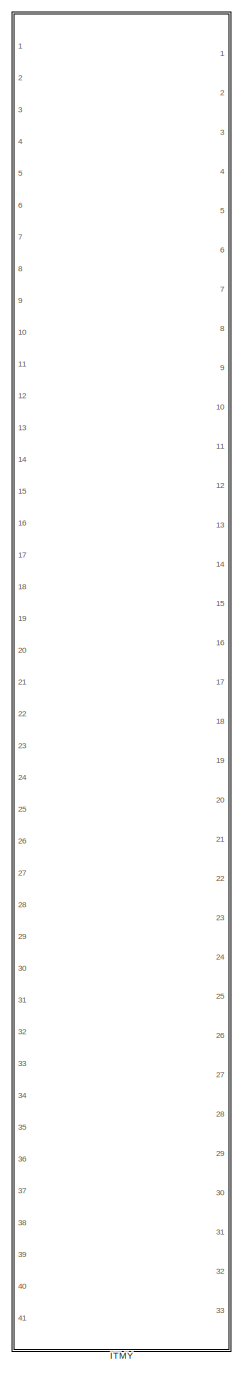
[diagram: root canvas - part 1/2, left side, full height]
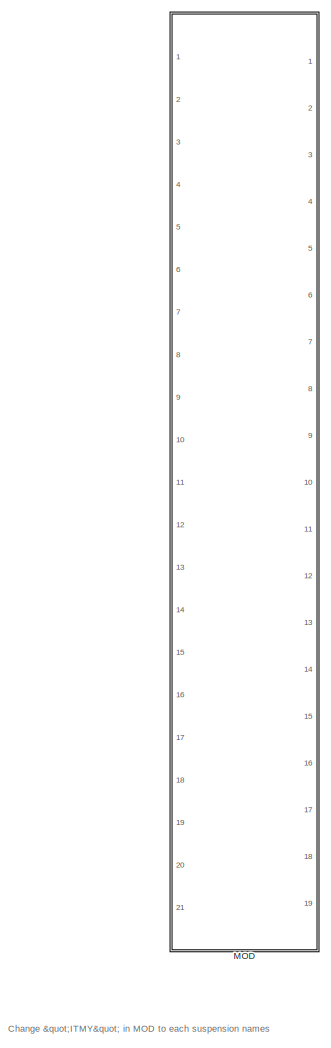
[diagram: root canvas - part 2/2, right side, full height]
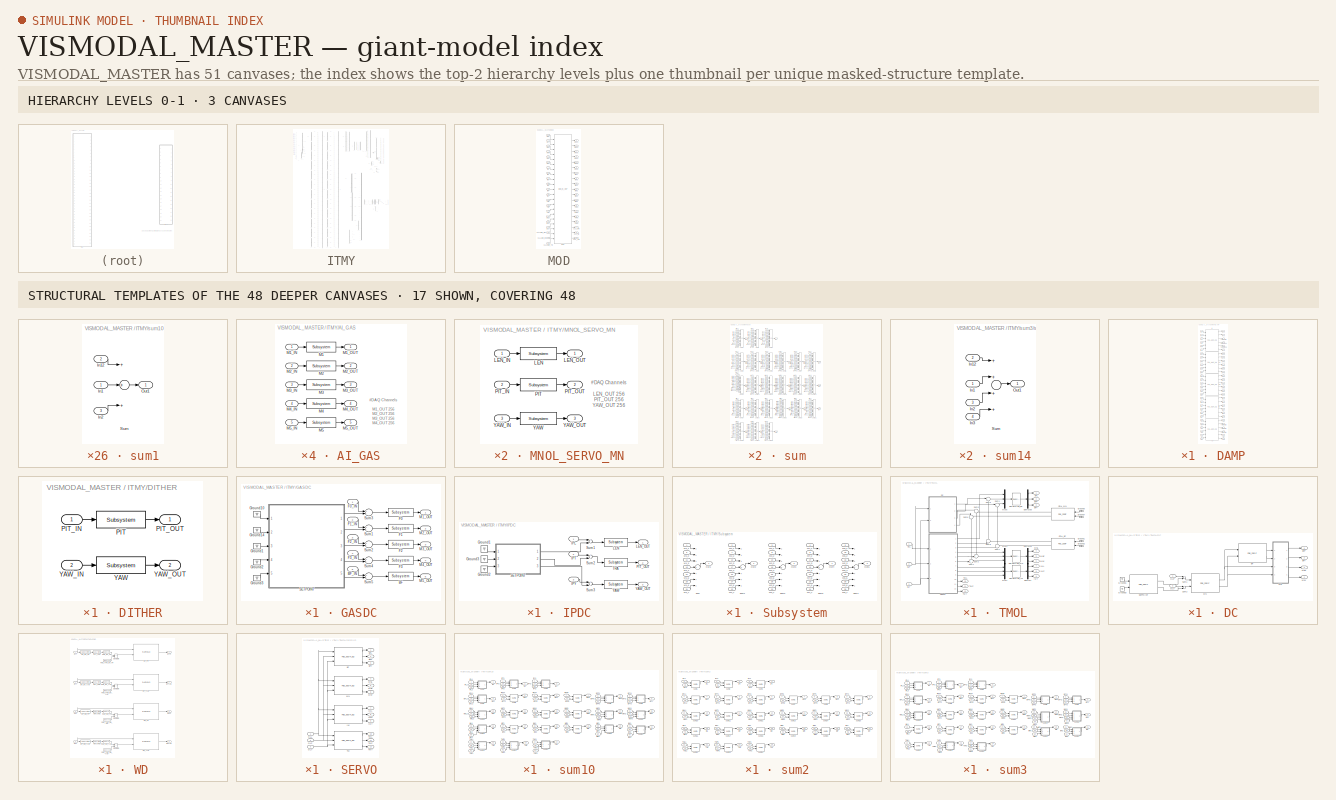
[diagram: thumbnail index - top-2 hierarchy levels (3 canvases) + 17 structural-template representatives of the remaining 48 canvases]
MODEL VISMODAL_MASTER
KIND library
BLOCK [SubSystem] ITMY
  Ports = [41, 33]
  RequestExecContextInheritance = off
  SID = 4130
  Variant = off
BLOCK [SubSystem] ITMY/AI_GAS
  Ports = [5, 5]
  RequestExecContextInheritance = off
  SID = 4170
  Variant = off
BLOCK [Reference] ITMY/AI_GAS/M1  REF=cdsFilt/Subsystem
  AttributesFormatString = %<Tag>
  Description = Purpose:                                                                                                                                                                                                                                  \nStandard CDS IIR filter module.                                                                                                                                     ...<+1302ch>  <repeated x40 — deduplicated; at blocks: M1, M2, M3, M4, M5, BF, F0, F1, F2, F3, PIT, YAW, LEN, TRA, BP_BF_PIT, BP_BF_YAW, +2 more>
  Ports = [1, 1]
  SID = 4176
  SourceBlock = cdsFilt/Subsystem
  SourceType = SubSystem
  Tag = cdsFilt
BLOCK [Inport] ITMY/AI_GAS/M1_IN
  IconDisplay = Port number
  SID = 4171
BLOCK [Outport] ITMY/AI_GAS/M1_OUT
  IconDisplay = Port number
  SID = 4181
BLOCK [Reference] ITMY/AI_GAS/M2  REF=cdsFilt/Subsystem
  AttributesFormatString = %<Tag>
  Ports = [1, 1]
  SID = 4177
  SourceBlock = cdsFilt/Subsystem
  SourceType = SubSystem
  Tag = cdsFilt
BLOCK [Inport] ITMY/AI_GAS/M2_IN
  IconDisplay = Port number
  Port = 2
  SID = 4172
BLOCK [Outport] ITMY/AI_GAS/M2_OUT
  IconDisplay = Port number
  Port = 2
  SID = 4182
BLOCK [Reference] ITMY/AI_GAS/M3  REF=cdsFilt/Subsystem
  AttributesFormatString = %<Tag>
  Ports = [1, 1]
  SID = 4178
  SourceBlock = cdsFilt/Subsystem
  SourceType = SubSystem
  Tag = cdsFilt
BLOCK [Inport] ITMY/AI_GAS/M3_IN
  IconDisplay = Port number
  Port = 3
  SID = 4173
BLOCK [Outport] ITMY/AI_GAS/M3_OUT
  IconDisplay = Port number
  Port = 3
  SID = 4183
BLOCK [Reference] ITMY/AI_GAS/M4  REF=cdsFilt/Subsystem
  AttributesFormatString = %<Tag>
  Ports = [1, 1]
  SID = 4179
  SourceBlock = cdsFilt/Subsystem
  SourceType = SubSystem
  Tag = cdsFilt
BLOCK [Inport] ITMY/AI_GAS/M4_IN
  IconDisplay = Port number
  Port = 4
  SID = 4174
BLOCK [Outport] ITMY/AI_GAS/M4_OUT
  IconDisplay = Port number
  Port = 4
  SID = 4184
BLOCK [Reference] ITMY/AI_GAS/M5  REF=cdsFilt/Subsystem
  AttributesFormatString = %<Tag>
  Ports = [1, 1]
  SID = 4180
  SourceBlock = cdsFilt/Subsystem
  SourceType = SubSystem
  Tag = cdsFilt
BLOCK [Inport] ITMY/AI_GAS/M5_IN
  IconDisplay = Port number
  Port = 5
  SID = 4175
BLOCK [Outport] ITMY/AI_GAS/M5_OUT
  IconDisplay = Port number
  Port = 5
  SID = 4185
BLOCK [Inport] ITMY/BF
  IconDisplay = Port number
  Port = 38
  SID = 4168
BLOCK [Inport] ITMY/BFLVDT_H1
  IconDisplay = Port number
  Port = 24
  SID = 4154
BLOCK [Inport] ITMY/BFLVDT_H2
  IconDisplay = Port number
  Port = 25
  SID = 4155
BLOCK [Inport] ITMY/BFLVDT_H3
  IconDisplay = Port number
  Port = 26
  SID = 4156
BLOCK [Inport] ITMY/BFLVDT_V1
  IconDisplay = Port number
  Port = 21
  SID = 4151
BLOCK [Inport] ITMY/BFLVDT_V2
  IconDisplay = Port number
  Port = 22
  SID = 4152
BLOCK [Inport] ITMY/BFLVDT_V3
  IconDisplay = Port number
  Port = 23
  SID = 4153
BLOCK [Outport] ITMY/BFLo
  IconDisplay = Port number
  Port = 4
  SID = 5616
BLOCK [Outport] ITMY/BFPo
  IconDisplay = Port number
  Port = 8
  SID = 5620
BLOCK [Outport] ITMY/BFRo
  IconDisplay = Port number
  Port = 7
  SID = 5619
BLOCK [Outport] ITMY/BFTo
  IconDisplay = Port number
  Port = 5
  SID = 5617
BLOCK [Outport] ITMY/BFVo
  IconDisplay = Port number
  Port = 6
  SID = 5618
BLOCK [Outport] ITMY/BFYo
  IconDisplay = Port number
  Port = 9
  SID = 5621
BLOCK [Outport] ITMY/BFout
  IconDisplay = Port number
  Port = 29
  SID = 5641
BLOCK [SubSystem] ITMY/COILOUT_GAS
  Ports = [5, 5]
  RequestExecContextInheritance = off
  SID = 4187
  Variant = off
BLOCK [Reference] ITMY/COILOUT_GAS/BF  REF=cdsFilt/Subsystem
  AttributesFormatString = %<Tag>
  Ports = [1, 1]
  SID = 4193
  SourceBlock = cdsFilt/Subsystem
  SourceType = SubSystem
  Tag = cdsFilt
BLOCK [Inport] ITMY/COILOUT_GAS/BF_IN
  IconDisplay = Port number
  Port = 5
  SID = 4192
BLOCK [Outport] ITMY/COILOUT_GAS/BF_OUT
  IconDisplay = Port number
  Port = 5
  SID = 4202
BLOCK [Reference] ITMY/COILOUT_GAS/F0  REF=cdsFilt/Subsystem
  AttributesFormatString = %<Tag>
  Ports = [1, 1]
  SID = 4194
  SourceBlock = cdsFilt/Subsystem
  SourceType = SubSystem
  Tag = cdsFilt
BLOCK [Inport] ITMY/COILOUT_GAS/F0_IN
  IconDisplay = Port number
  SID = 4188
BLOCK [Outport] ITMY/COILOUT_GAS/F0_OUT
  IconDisplay = Port number
  SID = 4198
BLOCK [Reference] ITMY/COILOUT_GAS/F1  REF=cdsFilt/Subsystem
  AttributesFormatString = %<Tag>
  Ports = [1, 1]
  SID = 4195
  SourceBlock = cdsFilt/Subsystem
  SourceType = SubSystem
  Tag = cdsFilt
BLOCK [Inport] ITMY/COILOUT_GAS/F1_IN
  IconDisplay = Port number
  Port = 2
  SID = 4189
BLOCK [Outport] ITMY/COILOUT_GAS/F1_OUT
  IconDisplay = Port number
  Port = 2
  SID = 4199
BLOCK [Reference] ITMY/COILOUT_GAS/F2  REF=cdsFilt/Subsystem
  AttributesFormatString = %<Tag>
  Ports = [1, 1]
  SID = 4196
  SourceBlock = cdsFilt/Subsystem
  SourceType = SubSystem
  Tag = cdsFilt
BLOCK [Inport] ITMY/COILOUT_GAS/F2_IN
  IconDisplay = Port number
  Port = 3
  SID = 4190
BLOCK [Outport] ITMY/COILOUT_GAS/F2_OUT
  IconDisplay = Port number
  Port = 3
  SID = 4200
BLOCK [Reference] ITMY/COILOUT_GAS/F3  REF=cdsFilt/Subsystem
  AttributesFormatString = %<Tag>
  Ports = [1, 1]
  SID = 4197
  SourceBlock = cdsFilt/Subsystem
  SourceType = SubSystem
  Tag = cdsFilt
BLOCK [Inport] ITMY/COILOUT_GAS/F3_IN
  IconDisplay = Port number
  Port = 4
  SID = 4191
BLOCK [Outport] ITMY/COILOUT_GAS/F3_OUT
  IconDisplay = Port number
  Port = 4
  SID = 4201
BLOCK [SubSystem] ITMY/DAMP
  Ports = [30, 24]
  RequestExecContextInheritance = off
  SID = 4204
  Variant = off
BLOCK [Reference] ITMY/DAMP/BF  REF=VIS_LIB/UTILs/FBs_6DOF_DQ
  Ports = [6, 6]
  SID = 4235
  SourceBlock = VIS_LIB/UTILs/FBs_6DOF_DQ
  SourceType = SubSystem
BLOCK [Inport] ITMY/DAMP/BFL
  IconDisplay = Port number
  Port = 7
  SID = 4211
BLOCK [Outport] ITMY/DAMP/BFLo
  IconDisplay = Port number
  Port = 4
  SID = 4249
BLOCK [Inport] ITMY/DAMP/BFP
  IconDisplay = Port number
  Port = 11
  SID = 4215
BLOCK [Outport] ITMY/DAMP/BFPo
  IconDisplay = Port number
  Port = 8
  SID = 4253
BLOCK [Inport] ITMY/DAMP/BFR
  IconDisplay = Port number
  Port = 10
  SID = 4214
BLOCK [Outport] ITMY/DAMP/BFRo
  IconDisplay = Port number
  Port = 7
  SID = 4252
BLOCK [Inport] ITMY/DAMP/BFT
  IconDisplay = Port number
  Port = 8
  SID = 4212
BLOCK [Outport] ITMY/DAMP/BFTo
  IconDisplay = Port number
  Port = 5
  SID = 4250
BLOCK [Inport] ITMY/DAMP/BFV
  IconDisplay = Port number
  Port = 9
  SID = 4213
BLOCK [Outport] ITMY/DAMP/BFVo
  IconDisplay = Port number
  Port = 6
  SID = 4251
BLOCK [Inport] ITMY/DAMP/BFY
  IconDisplay = Port number
  Port = 12
  SID = 4216
BLOCK [Outport] ITMY/DAMP/BFYo
  IconDisplay = Port number
  Port = 9
  SID = 4254
BLOCK [Reference] ITMY/DAMP/IM  REF=VIS_LIB/UTILs/FBs_6DOF_DQ
  Ports = [6, 6]
  SID = 4236
  SourceBlock = VIS_LIB/UTILs/FBs_6DOF_DQ
  SourceType = SubSystem
BLOCK [Inport] ITMY/DAMP/IML
  IconDisplay = Port number
  Port = 19
  SID = 4223
BLOCK [Outport] ITMY/DAMP/IMLo
  IconDisplay = Port number
  Port = 16
  SID = 4261
BLOCK [Inport] ITMY/DAMP/IMP
  IconDisplay = Port number
  Port = 23
  SID = 4227
BLOCK [Outport] ITMY/DAMP/IMPo
  IconDisplay = Port number
  Port = 20
  SID = 4265
BLOCK [Inport] ITMY/DAMP/IMR
  IconDisplay = Port number
  Port = 22
  SID = 4226
BLOCK [Outport] ITMY/DAMP/IMRo
  IconDisplay = Port number
  Port = 19
  SID = 4264
BLOCK [Inport] ITMY/DAMP/IMT
  IconDisplay = Port number
  Port = 20
  SID = 4224
BLOCK [Outport] ITMY/DAMP/IMTo
  IconDisplay = Port number
  Port = 17
  SID = 4262
BLOCK [Inport] ITMY/DAMP/IMV
  IconDisplay = Port number
  Port = 21
  SID = 4225
BLOCK [Outport] ITMY/DAMP/IMVo
  IconDisplay = Port number
  Port = 18
  SID = 4263
BLOCK [Inport] ITMY/DAMP/IMY
  IconDisplay = Port number
  Port = 24
  SID = 4228
BLOCK [Outport] ITMY/DAMP/IMYo
  IconDisplay = Port number
  Port = 21
  SID = 4266
BLOCK [Reference] ITMY/DAMP/IP  REF=VIS_LIB/UTILs/FBs_6DOF_DQ
  Ports = [6, 6]
  SID = 4237
  SourceBlock = VIS_LIB/UTILs/FBs_6DOF_DQ
  SourceType = SubSystem
BLOCK [Inport] ITMY/DAMP/IPL
  IconDisplay = Port number
  SID = 4205
BLOCK [Outport] ITMY/DAMP/IPLo
  IconDisplay = Port number
  SID = 4246
BLOCK [Inport] ITMY/DAMP/IPP
  IconDisplay = Port number
  Port = 5
  SID = 4209
BLOCK [Inport] ITMY/DAMP/IPR
  IconDisplay = Port number
  Port = 4
  SID = 4208
BLOCK [Inport] ITMY/DAMP/IPT
  IconDisplay = Port number
  Port = 2
  SID = 4206
BLOCK [Outport] ITMY/DAMP/IPTo
  IconDisplay = Port number
  Port = 2
  SID = 4247
BLOCK [Inport] ITMY/DAMP/IPV
  IconDisplay = Port number
  Port = 3
  SID = 4207
BLOCK [Inport] ITMY/DAMP/IPY
  IconDisplay = Port number
  Port = 6
  SID = 4210
BLOCK [Outport] ITMY/DAMP/IPYo
  IconDisplay = Port number
  Port = 3
  SID = 4248
BLOCK [Inport] ITMY/DAMP/MLT
  IconDisplay = Port number
  Port = 14
  SID = 4218
BLOCK [Reference] ITMY/DAMP/MN  REF=VIS_LIB/UTILs/FBs_6DOF_DQ
  Ports = [6, 6]
  SID = 4238
  SourceBlock = VIS_LIB/UTILs/FBs_6DOF_DQ
  SourceType = SubSystem
BLOCK [Inport] ITMY/DAMP/MNL
  IconDisplay = Port number
  Port = 13
  SID = 4217
BLOCK [Outport] ITMY/DAMP/MNLo
  IconDisplay = Port number
  Port = 10
  SID = 4255
BLOCK [Inport] ITMY/DAMP/MNP
  IconDisplay = Port number
  Port = 17
  SID = 4221
BLOCK [Outport] ITMY/DAMP/MNPo
  IconDisplay = Port number
  Port = 14
  SID = 4259
BLOCK [Inport] ITMY/DAMP/MNR
  IconDisplay = Port number
  Port = 16
  SID = 4220
BLOCK [Outport] ITMY/DAMP/MNRo
  IconDisplay = Port number
  Port = 13
  SID = 4258
BLOCK [Outport] ITMY/DAMP/MNTo
  IconDisplay = Port number
  Port = 11
  SID = 4256
BLOCK [Inport] ITMY/DAMP/MNV
  IconDisplay = Port number
  Port = 15
  SID = 4219
BLOCK [Outport] ITMY/DAMP/MNVo
  IconDisplay = Port number
  Port = 12
  SID = 4257
BLOCK [Inport] ITMY/DAMP/MNY
  IconDisplay = Port number
  Port = 18
  SID = 4222
BLOCK [Outport] ITMY/DAMP/MNYo
  IconDisplay = Port number
  Port = 15
  SID = 4260
BLOCK [Reference] ITMY/DAMP/TM  REF=VIS_LIB/UTILs/FBs_6DOF_DQ
  Ports = [6, 6]
  SID = 4239
  SourceBlock = VIS_LIB/UTILs/FBs_6DOF_DQ
  SourceType = SubSystem
BLOCK [Inport] ITMY/DAMP/TML
  IconDisplay = Port number
  Port = 25
  SID = 4229
BLOCK [Outport] ITMY/DAMP/TMLo
  IconDisplay = Port number
  Port = 22
  SID = 4267
BLOCK [Inport] ITMY/DAMP/TMP
  IconDisplay = Port number
  Port = 29
  SID = 4233
BLOCK [Outport] ITMY/DAMP/TMPo
  IconDisplay = Port number
  Port = 23
  SID = 4268
BLOCK [Inport] ITMY/DAMP/TMR
  IconDisplay = Port number
  Port = 28
  SID = 4232
BLOCK [Inport] ITMY/DAMP/TMT
  IconDisplay = Port number
  Port = 26
  SID = 4230
BLOCK [Inport] ITMY/DAMP/TMV
  IconDisplay = Port number
  Port = 27
  SID = 4231
BLOCK [Inport] ITMY/DAMP/TMY
  IconDisplay = Port number
  Port = 30
  SID = 4234
BLOCK [Outport] ITMY/DAMP/TMYo
  IconDisplay = Port number
  Port = 24
  SID = 4269
BLOCK [Terminator] ITMY/DAMP/Terminator1
  SID = 4240
BLOCK [Terminator] ITMY/DAMP/Terminator11
  SID = 4241
BLOCK [Terminator] ITMY/DAMP/Terminator15
  SID = 4242
BLOCK [Terminator] ITMY/DAMP/Terminator2
  SID = 4243
BLOCK [Terminator] ITMY/DAMP/Terminator3
  SID = 4244
BLOCK [Terminator] ITMY/DAMP/Terminator6
  SID = 4245
BLOCK [Reference] ITMY/DAMP_GAS  REF=VISMODAL_MASTER/ITMY/AI_GAS
  Ports = [5, 5]
  SID = 5647
  SourceBlock = VISMODAL_MASTER/ITMY/AI_GAS
  SourceType = SubSystem
BLOCK [Reference] ITMY/DIAG  REF=VIS_LIB/MODAL/inputproc
  Ports = [38, 46]
  SID = 4270
  SourceBlock = VIS_LIB/MODAL/inputproc
  SourceType = SubSystem
BLOCK [SubSystem] ITMY/DITHER
  Ports = [2, 2]
  RequestExecContextInheritance = off
  SID = 5799
  Variant = off
BLOCK [Reference] ITMY/DITHER/PIT  REF=cdsFilt/Subsystem
  AttributesFormatString = %<Tag>
  Ports = [1, 1]
  SID = 5842
  SourceBlock = cdsFilt/Subsystem
  SourceType = SubSystem
  Tag = cdsFilt
BLOCK [Inport] ITMY/DITHER/PIT_IN
  IconDisplay = Port number
  SID = 5840
BLOCK [Outport] ITMY/DITHER/PIT_OUT
  IconDisplay = Port number
  SID = 5844
BLOCK [Reference] ITMY/DITHER/YAW  REF=cdsFilt/Subsystem
  AttributesFormatString = %<Tag>
  Ports = [1, 1]
  SID = 5843
  SourceBlock = cdsFilt/Subsystem
  SourceType = SubSystem
  Tag = cdsFilt
BLOCK [Inport] ITMY/DITHER/YAW_IN
  IconDisplay = Port number
  Port = 2
  SID = 5841
BLOCK [Outport] ITMY/DITHER/YAW_OUT
  IconDisplay = Port number
  Port = 2
  SID = 5845
BLOCK [Reference] ITMY/DITHER_SEL_PIT  REF=cdsMuxMatrix/Subsystem
  AttributesFormatString = %<Tag>
  Description = Any size matrix. Inputs and outputs must be connected using Mux and Demux parts.
  Ports = [1, 1]
  SID = 5804
  SourceBlock = cdsMuxMatrix/Subsystem
  SourceType = SubSystem
  Tag = cdsMuxMatrix
BLOCK [Reference] ITMY/DITHER_SEL_YAW  REF=cdsMuxMatrix/Subsystem
  AttributesFormatString = %<Tag>
  Description = Any size matrix. Inputs and outputs must be connected using Mux and Demux parts.
  Ports = [1, 1]
  SID = 5805
  SourceBlock = cdsMuxMatrix/Subsystem
  SourceType = SubSystem
  Tag = cdsMuxMatrix
BLOCK [Reference] ITMY/DRIVEDECPL_GAS  REF=cdsMuxMatrix/Subsystem
  AttributesFormatString = %<Tag>
  Description = Any size matrix. Inputs and outputs must be connected using Mux and Demux parts.
  Ports = [1, 1]
  SID = 4271
  SourceBlock = cdsMuxMatrix/Subsystem
  SourceType = SubSystem
  Tag = cdsMuxMatrix
BLOCK [Demux] ITMY/Demux
  DisplayOption = bar
  Outputs = 30
  Ports = [1, 30]
  SID = 4272
BLOCK [Demux] ITMY/Demux1
  DisplayOption = bar
  Outputs = 24
  Ports = [1, 24]
  SID = 4273
BLOCK [Demux] ITMY/Demux10
  DisplayOption = bar
  Outputs = 30
  Ports = [1, 30]
  SID = 4274
BLOCK [Demux] ITMY/Demux11
  DisplayOption = bar
  Outputs = 30
  Ports = [1, 30]
  SID = 4275
BLOCK [Demux] ITMY/Demux12
  DisplayOption = bar
  Outputs = 30
  Ports = [1, 30]
  SID = 4276
BLOCK [Demux] ITMY/Demux13
  DisplayOption = bar
  Outputs = 30
  Ports = [1, 30]
  SID = 4277
BLOCK [Demux] ITMY/Demux14
  DisplayOption = bar
  Outputs = 30
  Ports = [1, 30]
  SID = 4278
BLOCK [Demux] ITMY/Demux15
  DisplayOption = bar
  Outputs = 30
  Ports = [1, 30]
  SID = 4279
BLOCK [Demux] ITMY/Demux16
  DisplayOption = bar
  Outputs = 30
  Ports = [1, 30]
  SID = 4280
BLOCK [Demux] ITMY/Demux17
  DisplayOption = bar
  Outputs = 30
  Ports = [1, 30]
  SID = 4281
BLOCK [Demux] ITMY/Demux18
  DisplayOption = bar
  Outputs = 30
  Ports = [1, 30]
  SID = 4282
BLOCK [Demux] ITMY/Demux19
  DisplayOption = bar
  Outputs = 30
  Ports = [1, 30]
  SID = 4283
BLOCK [Demux] ITMY/Demux2
  DisplayOption = bar
  Outputs = 30
  Ports = [1, 30]
  SID = 4284
BLOCK [Demux] ITMY/Demux20
  DisplayOption = bar
  Outputs = 30
  Ports = [1, 30]
  SID = 4285
BLOCK [Demux] ITMY/Demux21
  DisplayOption = bar
  Outputs = 30
  Ports = [1, 30]
  SID = 4286
BLOCK [Demux] ITMY/Demux22
  DisplayOption = bar
  Outputs = 30
  Ports = [1, 30]
  SID = 4287
BLOCK [Demux] ITMY/Demux23
  DisplayOption = bar
  Outputs = 30
  Ports = [1, 30]
  SID = 4288
BLOCK [Demux] ITMY/Demux24
  DisplayOption = bar
  Outputs = 30
  Ports = [1, 30]
  SID = 4289
BLOCK [Demux] ITMY/Demux25
  DisplayOption = bar
  Outputs = 24
  Ports = [1, 24]
  SID = 4290
BLOCK [Demux] ITMY/Demux26
  DisplayOption = bar
  Outputs = 24
  Ports = [1, 24]
  SID = 4291
BLOCK [Demux] ITMY/Demux27
  DisplayOption = bar
  Outputs = 30
  Ports = [1, 30]
  SID = 4292
BLOCK [Demux] ITMY/Demux28
  DisplayOption = bar
  Outputs = 7
  Ports = [1, 7]
  SID = 4293
BLOCK [Demux] ITMY/Demux29
  DisplayOption = bar
  Outputs = 24
  Ports = [1, 24]
  SID = 4294
BLOCK [Demux] ITMY/Demux3
  DisplayOption = bar
  Outputs = 30
  Ports = [1, 30]
  SID = 4295
BLOCK [Demux] ITMY/Demux30
  DisplayOption = bar
  Outputs = 7
  Ports = [1, 7]
  SID = 4296
BLOCK [Demux] ITMY/Demux31
  DisplayOption = bar
  Outputs = 7
  Ports = [1, 7]
  SID = 4297
BLOCK [Demux] ITMY/Demux32
  DisplayOption = bar
  Outputs = 7
  Ports = [1, 7]
  SID = 4298
BLOCK [Demux] ITMY/Demux33
  DisplayOption = bar
  Outputs = 7
  Ports = [1, 7]
  SID = 4299
BLOCK [Demux] ITMY/Demux34
  DisplayOption = bar
  Outputs = 5
  Ports = [1, 5]
  SID = 4300
BLOCK [Demux] ITMY/Demux35
  DisplayOption = bar
  Outputs = 5
  Ports = [1, 5]
  SID = 4301
BLOCK [Demux] ITMY/Demux36
  DisplayOption = bar
  Outputs = 5
  Ports = [1, 5]
  SID = 4302
BLOCK [Demux] ITMY/Demux37
  DisplayOption = bar
  Outputs = 5
  Ports = [1, 5]
  SID = 5673
BLOCK [Demux] ITMY/Demux38
  DisplayOption = bar
  Outputs = 5
  Ports = [1, 5]
  SID = 4304
BLOCK [Demux] ITMY/Demux39
  DisplayOption = bar
  Outputs = 24
  Ports = [1, 24]
  SID = 4305
BLOCK [Demux] ITMY/Demux4
  DisplayOption = bar
  Outputs = 30
  Ports = [1, 30]
  SID = 4306
BLOCK [Demux] ITMY/Demux40
  DisplayOption = bar
  Outputs = 29
  Ports = [1, 29]
  SID = 4307
BLOCK [Demux] ITMY/Demux41
  DisplayOption = bar
  Outputs = 7
  Ports = [1, 7]
  SID = 5648
BLOCK [Demux] ITMY/Demux42
  DisplayOption = bar
  Outputs = 6
  Ports = [1, 6]
  SID = 5786
BLOCK [Demux] ITMY/Demux43
  DisplayOption = bar
  Outputs = 3
  Ports = [1, 3]
  SID = 5802
BLOCK [Demux] ITMY/Demux44
  DisplayOption = bar
  Outputs = 3
  Ports = [1, 3]
  SID = 5806
BLOCK [Demux] ITMY/Demux5
  DisplayOption = bar
  Outputs = 30
  Ports = [1, 30]
  SID = 4308
BLOCK [Demux] ITMY/Demux6
  DisplayOption = bar
  Outputs = 30
  Ports = [1, 30]
  SID = 4309
BLOCK [Demux] ITMY/Demux7
  DisplayOption = bar
  Outputs = 30
  Ports = [1, 30]
  SID = 4310
BLOCK [Demux] ITMY/Demux8
  DisplayOption = bar
  Outputs = 30
  Ports = [1, 30]
  SID = 4311
BLOCK [Demux] ITMY/Demux9
  DisplayOption = bar
  Outputs = 30
  Ports = [1, 30]
  SID = 4312
BLOCK [Inport] ITMY/Dither_PIT
  IconDisplay = Port number
  Port = 40
  SID = 5800
BLOCK [Inport] ITMY/Dither_YAW
  IconDisplay = Port number
  Port = 41
  SID = 5801
BLOCK [Reference] ITMY/EUL2COIL_GAS  REF=cdsMuxMatrix/Subsystem
  AttributesFormatString = %<Tag>
  Description = Any size matrix. Inputs and outputs must be connected using Mux and Demux parts.
  Ports = [1, 1]
  SID = 4313
  SourceBlock = cdsMuxMatrix/Subsystem
  SourceType = SubSystem
  Tag = cdsMuxMatrix
BLOCK [Inport] ITMY/F0
  IconDisplay = Port number
  Port = 34
  SID = 4164
BLOCK [Outport] ITMY/F0out
  IconDisplay = Port number
  Port = 25
  SID = 5637
BLOCK [Inport] ITMY/F1
  IconDisplay = Port number
  Port = 35
  SID = 4165
BLOCK [Outport] ITMY/F1out
  IconDisplay = Port number
  Port = 26
  SID = 5638
BLOCK [Inport] ITMY/F2
  IconDisplay = Port number
  Port = 36
  SID = 4166
BLOCK [Outport] ITMY/F2out
  IconDisplay = Port number
  Port = 27
  SID = 5639
BLOCK [Inport] ITMY/F3
  IconDisplay = Port number
  Port = 37
  SID = 4167
BLOCK [Outport] ITMY/F3out
  IconDisplay = Port number
  Port = 28
  SID = 5640
BLOCK [From] ITMY/From1
  GotoTag = Signal
  SID = 4314
BLOCK [From] ITMY/From13
  GotoTag = SUM1
  SID = 4315
BLOCK [From] ITMY/From2
  GotoTag = SUM2
  SID = 4316
BLOCK [From] ITMY/From25
  GotoTag = Signal
  SID = 4317
BLOCK [From] ITMY/From3
  GotoTag = Signal
  SID = 4318
BLOCK [From] ITMY/From4
  GotoTag = Signal_GAS_M
  SID = 4319
BLOCK [From] ITMY/From5
  GotoTag = GASDC
  SID = 5674
BLOCK [From] ITMY/From6
  GotoTag = GASEXC
  SID = 4321
BLOCK [From] ITMY/From7
  GotoTag = Signal_MNOL
  SID = 5787
BLOCK [SubSystem] ITMY/GASDC
  Ports = [5, 5]
  RequestExecContextInheritance = off
  SID = 4322
  Variant = off
BLOCK [Reference] ITMY/GASDC/BF  REF=cdsFilt/Subsystem
  AttributesFormatString = %<Tag>
  Ports = [1, 1]
  SID = 4328
  SourceBlock = cdsFilt/Subsystem
  SourceType = SubSystem
  Tag = cdsFilt
BLOCK [Inport] ITMY/GASDC/BF_IN
  IconDisplay = Port number
  Port = 5
  SID = 4327
BLOCK [Reference] ITMY/GASDC/F0  REF=cdsFilt/Subsystem
  AttributesFormatString = %<Tag>
  Ports = [1, 1]
  SID = 4329
  SourceBlock = cdsFilt/Subsystem
  SourceType = SubSystem
  Tag = cdsFilt
BLOCK [Inport] ITMY/GASDC/F0_IN
  IconDisplay = Port number
  SID = 4323
BLOCK [Reference] ITMY/GASDC/F1  REF=cdsFilt/Subsystem
  AttributesFormatString = %<Tag>
  Ports = [1, 1]
  SID = 4330
  SourceBlock = cdsFilt/Subsystem
  SourceType = SubSystem
  Tag = cdsFilt
BLOCK [Inport] ITMY/GASDC/F1_IN
  IconDisplay = Port number
  Port = 2
  SID = 4324
BLOCK [Reference] ITMY/GASDC/F2  REF=cdsFilt/Subsystem
  AttributesFormatString = %<Tag>
  Ports = [1, 1]
  SID = 4331
  SourceBlock = cdsFilt/Subsystem
  SourceType = SubSystem
  Tag = cdsFilt
BLOCK [Inport] ITMY/GASDC/F2_IN
  IconDisplay = Port number
  Port = 3
  SID = 4325
BLOCK [Reference] ITMY/GASDC/F3  REF=cdsFilt/Subsystem
  AttributesFormatString = %<Tag>
  Ports = [1, 1]
  SID = 4332
  SourceBlock = cdsFilt/Subsystem
  SourceType = SubSystem
  Tag = cdsFilt
BLOCK [Inport] ITMY/GASDC/F3_IN
  IconDisplay = Port number
  Port = 4
  SID = 4326
BLOCK [Ground] ITMY/GASDC/Ground1
  SID = 4333
BLOCK [Ground] ITMY/GASDC/Ground10
  SID = 4334
BLOCK [Ground] ITMY/GASDC/Ground14
  SID = 4335
BLOCK [Ground] ITMY/GASDC/Ground2
  SID = 4336
BLOCK [Ground] ITMY/GASDC/Ground3
  SID = 4337
BLOCK [Outport] ITMY/GASDC/M1_OUT
  IconDisplay = Port number
  SID = 4359
BLOCK [Outport] ITMY/GASDC/M2_OUT
  IconDisplay = Port number
  Port = 2
  SID = 4360
BLOCK [Outport] ITMY/GASDC/M3_OUT
  IconDisplay = Port number
  Port = 3
  SID = 4361
BLOCK [Outport] ITMY/GASDC/M4_OUT
  IconDisplay = Port number
  Port = 4
  SID = 4362
BLOCK [Outport] ITMY/GASDC/M5_OUT
  IconDisplay = Port number
  Port = 5
  SID = 4363
BLOCK [SubSystem] ITMY/GASDC/SETPOINT
  Ports = [5, 5]
  RequestExecContextInheritance = off
  SID = 4338
  Variant = off
BLOCK [Reference] ITMY/GASDC/SETPOINT/BF  REF=cdsFilt/Subsystem
  AttributesFormatString = %<Tag>
  Ports = [1, 1]
  SID = 4344
  SourceBlock = cdsFilt/Subsystem
  SourceType = SubSystem
  Tag = cdsFilt
BLOCK [Reference] ITMY/GASDC/SETPOINT/F0  REF=cdsFilt/Subsystem
  AttributesFormatString = %<Tag>
  Ports = [1, 1]
  SID = 4345
  SourceBlock = cdsFilt/Subsystem
  SourceType = SubSystem
  Tag = cdsFilt
BLOCK [Reference] ITMY/GASDC/SETPOINT/F1  REF=cdsFilt/Subsystem
  AttributesFormatString = %<Tag>
  Ports = [1, 1]
  SID = 4346
  SourceBlock = cdsFilt/Subsystem
  SourceType = SubSystem
  Tag = cdsFilt
BLOCK [Reference] ITMY/GASDC/SETPOINT/F2  REF=cdsFilt/Subsystem
  AttributesFormatString = %<Tag>
  Ports = [1, 1]
  SID = 4347
  SourceBlock = cdsFilt/Subsystem
  SourceType = SubSystem
  Tag = cdsFilt
BLOCK [Reference] ITMY/GASDC/SETPOINT/F3  REF=cdsFilt/Subsystem
  AttributesFormatString = %<Tag>
  Ports = [1, 1]
  SID = 4348
  SourceBlock = cdsFilt/Subsystem
  SourceType = SubSystem
  Tag = cdsFilt
BLOCK [Inport] ITMY/GASDC/SETPOINT/LEN_IN
  IconDisplay = Port number
  SID = 4339
BLOCK [Outport] ITMY/GASDC/SETPOINT/LEN_OUT
  IconDisplay = Port number
  SID = 4349
BLOCK [Inport] ITMY/GASDC/SETPOINT/PIT_IN
  IconDisplay = Port number
  Port = 5
  SID = 4343
BLOCK [Outport] ITMY/GASDC/SETPOINT/PIT_OUT
  IconDisplay = Port number
  Port = 5
  SID = 4353
BLOCK [Inport] ITMY/GASDC/SETPOINT/ROL_IN
  IconDisplay = Port number
  Port = 4
  SID = 4342
BLOCK [Outport] ITMY/GASDC/SETPOINT/ROL_OUT
  IconDisplay = Port number
  Port = 4
  SID = 4352
BLOCK [Inport] ITMY/GASDC/SETPOINT/TRA_IN
  IconDisplay = Port number
  Port = 2
  SID = 4340
BLOCK [Outport] ITMY/GASDC/SETPOINT/TRA_OUT
  IconDisplay = Port number
  Port = 2
  SID = 4350
BLOCK [Inport] ITMY/GASDC/SETPOINT/VER_IN
  IconDisplay = Port number
  Port = 3
  SID = 4341
BLOCK [Outport] ITMY/GASDC/SETPOINT/VER_OUT
  IconDisplay = Port number
  Port = 3
  SID = 4351
BLOCK [Sum] ITMY/GASDC/Sum1
  InputSameDT = off
  Inputs = +-
  OutDataTypeStr = Inherit: Inherit via internal rule
  Ports = [2, 1]
  SID = 4354
  SaturateOnIntegerOverflow = off
BLOCK [Sum] ITMY/GASDC/Sum2
  InputSameDT = off
  Inputs = +-
  OutDataTypeStr = Inherit: Inherit via internal rule
  Ports = [2, 1]
  SID = 4355
  SaturateOnIntegerOverflow = off
BLOCK [Sum] ITMY/GASDC/Sum3
  InputSameDT = off
  Inputs = +-
  OutDataTypeStr = Inherit: Inherit via internal rule
  Ports = [2, 1]
  SID = 4356
  SaturateOnIntegerOverflow = off
BLOCK [Sum] ITMY/GASDC/Sum4
  InputSameDT = off
  Inputs = +-
  OutDataTypeStr = Inherit: Inherit via internal rule
  Ports = [2, 1]
  SID = 4357
  SaturateOnIntegerOverflow = off
BLOCK [Sum] ITMY/GASDC/Sum5
  InputSameDT = off
  Inputs = +-
  OutDataTypeStr = Inherit: Inherit via internal rule
  Ports = [2, 1]
  SID = 4358
  SaturateOnIntegerOverflow = off
BLOCK [Reference] ITMY/GAS_MODE1  REF=VIS_LIB/MODAL/GAS_MODE1
  Ports = [7, 5]
  SID = 4364
  SourceBlock = VIS_LIB/MODAL/GAS_MODE1
  SourceType = SubSystem
BLOCK [Reference] ITMY/GAS_MODE2  REF=VIS_LIB/MODAL/GAS_MODE1
  Ports = [7, 5]
  SID = 4365
  SourceBlock = VIS_LIB/MODAL/GAS_MODE1
  SourceType = SubSystem
BLOCK [Reference] ITMY/GAS_MODE3  REF=VIS_LIB/MODAL/GAS_MODE1
  Ports = [7, 5]
  SID = 4366
  SourceBlock = VIS_LIB/MODAL/GAS_MODE1
  SourceType = SubSystem
BLOCK [Reference] ITMY/GAS_MODE4  REF=VIS_LIB/MODAL/GAS_MODE1
  Ports = [7, 5]
  SID = 4367
  SourceBlock = VIS_LIB/MODAL/GAS_MODE1
  SourceType = SubSystem
BLOCK [Reference] ITMY/GAS_MODE5  REF=VIS_LIB/MODAL/GAS_MODE1
  Ports = [7, 5]
  SID = 4368
  SourceBlock = VIS_LIB/MODAL/GAS_MODE1
  SourceType = SubSystem
BLOCK [Goto] ITMY/Goto1
  GotoTag = SUM2
  SID = 4369
BLOCK [Goto] ITMY/Goto12
  GotoTag = Signal
  SID = 4370
BLOCK [Goto] ITMY/Goto2
  GotoTag = Signal_GAS_M
  SID = 4371
BLOCK [Goto] ITMY/Goto3
  GotoTag = GASDC
  SID = 5676
BLOCK [Goto] ITMY/Goto4
  GotoTag = SUM1
  SID = 4373
BLOCK [Goto] ITMY/Goto5
  GotoTag = GASEXC
  SID = 4374
BLOCK [Goto] ITMY/Goto6
  GotoTag = Signal_MNOL
  SID = 5774
BLOCK [Ground] ITMY/Ground11
  SID = 4376
BLOCK [Ground] ITMY/Ground13
  SID = 4378
BLOCK [Ground] ITMY/Ground15
  SID = 4379
BLOCK [Ground] ITMY/Ground18
  SID = 4382
BLOCK [Ground] ITMY/Ground8
  SID = 4386
BLOCK [Ground] ITMY/Ground9
  SID = 4387
BLOCK [Outport] ITMY/IMLo
  IconDisplay = Port number
  Port = 16
  SID = 5628
BLOCK [Inport] ITMY/IMPS_H1
  IconDisplay = Port number
  Port = 10
  SID = 4140
BLOCK [Inport] ITMY/IMPS_H2
  IconDisplay = Port number
  Port = 11
  SID = 4141
BLOCK [Inport] ITMY/IMPS_H3
  IconDisplay = Port number
  Port = 12
  SID = 4142
BLOCK [Inport] ITMY/IMPS_V1
  IconDisplay = Port number
  Port = 7
  SID = 4137
BLOCK [Inport] ITMY/IMPS_V2
  IconDisplay = Port number
  Port = 8
  SID = 4138
BLOCK [Inport] ITMY/IMPS_V3
  IconDisplay = Port number
  Port = 9
  SID = 4139
BLOCK [Outport] ITMY/IMPo
  IconDisplay = Port number
  Port = 20
  SID = 5632
BLOCK [Outport] ITMY/IMRo
  IconDisplay = Port number
  Port = 19
  SID = 5631
BLOCK [Outport] ITMY/IMTo
  IconDisplay = Port number
  Port = 17
  SID = 5629
BLOCK [Outport] ITMY/IMVo
  IconDisplay = Port number
  Port = 18
  SID = 5630
BLOCK [Outport] ITMY/IMYo
  IconDisplay = Port number
  Port = 21
  SID = 5633
BLOCK [SubSystem] ITMY/IPDC
  Ports = [3, 3]
  RequestExecContextInheritance = off
  SID = 4388
  Variant = off
BLOCK [Ground] ITMY/IPDC/Ground1
  SID = 4392
BLOCK [Ground] ITMY/IPDC/Ground2
  SID = 4393
BLOCK [Ground] ITMY/IPDC/Ground3
  SID = 4394
BLOCK [Inport] ITMY/IPDC/IPL
  IconDisplay = Port number
  SID = 4389
BLOCK [Inport] ITMY/IPDC/IPT
  IconDisplay = Port number
  Port = 2
  SID = 4390
BLOCK [Inport] ITMY/IPDC/IPY
  IconDisplay = Port number
  Port = 3
  SID = 4391
BLOCK [Reference] ITMY/IPDC/LEN  REF=cdsFilt/Subsystem
  AttributesFormatString = %<Tag>
  Ports = [1, 1]
  SID = 4395
  SourceBlock = cdsFilt/Subsystem
  SourceType = SubSystem
  Tag = cdsFilt
BLOCK [Outport] ITMY/IPDC/LEN_OUT
  IconDisplay = Port number
  SID = 4411
BLOCK [Outport] ITMY/IPDC/PIT_OUT
  IconDisplay = Port number
  Port = 2
  SID = 4412
BLOCK [SubSystem] ITMY/IPDC/SETPOINT
  Ports = [3, 3]
  RequestExecContextInheritance = off
  SID = 4396
  Variant = off
BLOCK [Reference] ITMY/IPDC/SETPOINT/LEN  REF=cdsFilt/Subsystem
  AttributesFormatString = %<Tag>
  Ports = [1, 1]
  SID = 4400
  SourceBlock = cdsFilt/Subsystem
  SourceType = SubSystem
  Tag = cdsFilt
BLOCK [Inport] ITMY/IPDC/SETPOINT/LEN_IN
  IconDisplay = Port number
  SID = 4397
BLOCK [Outport] ITMY/IPDC/SETPOINT/LEN_OUT
  IconDisplay = Port number
  SID = 4403
BLOCK [Inport] ITMY/IPDC/SETPOINT/PIT_IN
  IconDisplay = Port number
  Port = 2
  SID = 4398
BLOCK [Outport] ITMY/IPDC/SETPOINT/PIT_OUT
  IconDisplay = Port number
  Port = 2
  SID = 4404
BLOCK [Reference] ITMY/IPDC/SETPOINT/TRA  REF=cdsFilt/Subsystem
  AttributesFormatString = %<Tag>
  Ports = [1, 1]
  SID = 4401
  SourceBlock = cdsFilt/Subsystem
  SourceType = SubSystem
  Tag = cdsFilt
BLOCK [Reference] ITMY/IPDC/SETPOINT/YAW  REF=cdsFilt/Subsystem
  AttributesFormatString = %<Tag>
  Ports = [1, 1]
  SID = 4402
  SourceBlock = cdsFilt/Subsystem
  SourceType = SubSystem
  Tag = cdsFilt
BLOCK [Inport] ITMY/IPDC/SETPOINT/YAW_IN
  IconDisplay = Port number
  Port = 3
  SID = 4399
BLOCK [Outport] ITMY/IPDC/SETPOINT/YAW_OUT
  IconDisplay = Port number
  Port = 3
  SID = 4405
BLOCK [Sum] ITMY/IPDC/Sum1
  InputSameDT = off
  Inputs = +-
  OutDataTypeStr = Inherit: Inherit via internal rule
  Ports = [2, 1]
  SID = 4406
  SaturateOnIntegerOverflow = off
BLOCK [Sum] ITMY/IPDC/Sum2
  InputSameDT = off
  Inputs = +-
  OutDataTypeStr = Inherit: Inherit via internal rule
  Ports = [2, 1]
  SID = 4407
  SaturateOnIntegerOverflow = off
BLOCK [Sum] ITMY/IPDC/Sum3
  InputSameDT = off
  Inputs = +-
  OutDataTypeStr = Inherit: Inherit via internal rule
  Ports = [2, 1]
  SID = 4408
  SaturateOnIntegerOverflow = off
BLOCK [Reference] ITMY/IPDC/TRA  REF=cdsFilt/Subsystem
  AttributesFormatString = %<Tag>
  Ports = [1, 1]
  SID = 4409
  SourceBlock = cdsFilt/Subsystem
  SourceType = SubSystem
  Tag = cdsFilt
BLOCK [Reference] ITMY/IPDC/YAW  REF=cdsFilt/Subsystem
  AttributesFormatString = %<Tag>
  Ports = [1, 1]
  SID = 4410
  SourceBlock = cdsFilt/Subsystem
  SourceType = SubSystem
  Tag = cdsFilt
BLOCK [Outport] ITMY/IPDC/YAW_OUT
  IconDisplay = Port number
  Port = 3
  SID = 4413
BLOCK [Inport] ITMY/IPLVDT_H1
  IconDisplay = Port number
  Port = 27
  SID = 4157
BLOCK [Inport] ITMY/IPLVDT_H2
  IconDisplay = Port number
  Port = 28
  SID = 4158
BLOCK [Inport] ITMY/IPLVDT_H3
  IconDisplay = Port number
  Port = 29
  SID = 4159
BLOCK [Outport] ITMY/IPLo
  IconDisplay = Port number
  SID = 5613
BLOCK [Outport] ITMY/IPTo
  IconDisplay = Port number
  Port = 2
  SID = 5614
BLOCK [Outport] ITMY/IPYo
  IconDisplay = Port number
  Port = 3
  SID = 5615
BLOCK [Inport] ITMY/LEN_SEG1
  IconDisplay = Port number
  Port = 17
  SID = 4147
BLOCK [Inport] ITMY/LEN_SEG2
  IconDisplay = Port number
  Port = 18
  SID = 4148
BLOCK [Inport] ITMY/LEN_SEG3
  IconDisplay = Port number
  Port = 19
  SID = 4149
BLOCK [Inport] ITMY/LEN_SEG4
  IconDisplay = Port number
  Port = 20
  SID = 4150
BLOCK [Inport] ITMY/MCPS_H1
  IconDisplay = Port number
  Port = 4
  SID = 4134
BLOCK [Inport] ITMY/MCPS_H2
  IconDisplay = Port number
  Port = 5
  SID = 4135
BLOCK [Inport] ITMY/MCPS_H3
  IconDisplay = Port number
  Port = 6
  SID = 4136
BLOCK [Inport] ITMY/MCPS_V1
  IconDisplay = Port number
  SID = 4131
BLOCK [Inport] ITMY/MCPS_V2
  IconDisplay = Port number
  Port = 2
  SID = 4132
BLOCK [Inport] ITMY/MCPS_V3
  IconDisplay = Port number
  Port = 3
  SID = 4133
BLOCK [Outport] ITMY/MNLo
  IconDisplay = Port number
  Port = 10
  SID = 5622
BLOCK [SubSystem] ITMY/MNOL_SERVO_MN
  Ports = [3, 3]
  RequestExecContextInheritance = off
  SID = 5773
  Variant = off
BLOCK [Reference] ITMY/MNOL_SERVO_MN/LEN  REF=cdsFilt/Subsystem
  AttributesFormatString = %<Tag>
  Ports = [1, 1]
  SID = 5779
  SourceBlock = cdsFilt/Subsystem
  SourceType = SubSystem
  Tag = cdsFilt
BLOCK [Inport] ITMY/MNOL_SERVO_MN/LEN_IN
  IconDisplay = Port number
  SID = 5776
BLOCK [Outport] ITMY/MNOL_SERVO_MN/LEN_OUT
  IconDisplay = Port number
  SID = 5782
BLOCK [Reference] ITMY/MNOL_SERVO_MN/PIT  REF=cdsFilt/Subsystem
  AttributesFormatString = %<Tag>
  Ports = [1, 1]
  SID = 5780
  SourceBlock = cdsFilt/Subsystem
  SourceType = SubSystem
  Tag = cdsFilt
BLOCK [Inport] ITMY/MNOL_SERVO_MN/PIT_IN
  IconDisplay = Port number
  Port = 2
  SID = 5777
BLOCK [Outport] ITMY/MNOL_SERVO_MN/PIT_OUT
  IconDisplay = Port number
  Port = 2
  SID = 5783
BLOCK [Reference] ITMY/MNOL_SERVO_MN/YAW  REF=cdsFilt/Subsystem
  AttributesFormatString = %<Tag>
  Ports = [1, 1]
  SID = 5781
  SourceBlock = cdsFilt/Subsystem
  SourceType = SubSystem
  Tag = cdsFilt
BLOCK [Inport] ITMY/MNOL_SERVO_MN/YAW_IN
  IconDisplay = Port number
  Port = 3
  SID = 5778
BLOCK [Outport] ITMY/MNOL_SERVO_MN/YAW_OUT
  IconDisplay = Port number
  Port = 3
  SID = 5784
BLOCK [Outport] ITMY/MNPo
  IconDisplay = Port number
  Port = 14
  SID = 5626
BLOCK [Outport] ITMY/MNRo
  IconDisplay = Port number
  Port = 13
  SID = 5625
BLOCK [Inport] ITMY/MNSEG1
  IconDisplay = Port number
  Port = 30
  SID = 4160
BLOCK [Inport] ITMY/MNSEG2
  IconDisplay = Port number
  Port = 31
  SID = 4161
BLOCK [Inport] ITMY/MNSEG3
  IconDisplay = Port number
  Port = 32
  SID = 4162
BLOCK [Inport] ITMY/MNSEG4
  IconDisplay = Port number
  Port = 33
  SID = 4163
BLOCK [Outport] ITMY/MNTo
  IconDisplay = Port number
  Port = 11
  SID = 5623
BLOCK [Outport] ITMY/MNVo
  IconDisplay = Port number
  Port = 12
  SID = 5624
BLOCK [Outport] ITMY/MNYo
  IconDisplay = Port number
  Port = 15
  SID = 5627
BLOCK [Outport] ITMY/MN_oplev_Y
  IconDisplay = Port number
  Port = 33
  SID = 5870
BLOCK [Reference] ITMY/MODE1  REF=VIS_LIB/MODAL/MODE1
  Ports = [30, 24]
  SID = 4414
  SourceBlock = VIS_LIB/MODAL/MODE1
  SourceType = SubSystem
BLOCK [Reference] ITMY/MODE10  REF=VIS_LIB/MODAL/MODE1
  Ports = [30, 24]
  SID = 4415
  SourceBlock = VIS_LIB/MODAL/MODE1
  SourceType = SubSystem
BLOCK [Reference] ITMY/MODE11  REF=VIS_LIB/MODAL/MODE1
  Ports = [30, 24]
  SID = 4416
  SourceBlock = VIS_LIB/MODAL/MODE1
  SourceType = SubSystem
BLOCK [Reference] ITMY/MODE12  REF=VIS_LIB/MODAL/MODE1
  Ports = [30, 24]
  SID = 4417
  SourceBlock = VIS_LIB/MODAL/MODE1
  SourceType = SubSystem
BLOCK [Reference] ITMY/MODE13  REF=VIS_LIB/MODAL/MODE1
  Ports = [30, 24]
  SID = 4418
  SourceBlock = VIS_LIB/MODAL/MODE1
  SourceType = SubSystem
BLOCK [Reference] ITMY/MODE14  REF=VIS_LIB/MODAL/MODE1
  Ports = [30, 24]
  SID = 4419
  SourceBlock = VIS_LIB/MODAL/MODE1
  SourceType = SubSystem
BLOCK [Reference] ITMY/MODE15  REF=VIS_LIB/MODAL/MODE1
  Ports = [30, 24]
  SID = 4420
  SourceBlock = VIS_LIB/MODAL/MODE1
  SourceType = SubSystem
BLOCK [Reference] ITMY/MODE16  REF=VIS_LIB/MODAL/MODE1
  Ports = [30, 24]
  SID = 4421
  SourceBlock = VIS_LIB/MODAL/MODE1
  SourceType = SubSystem
BLOCK [Reference] ITMY/MODE17  REF=VIS_LIB/MODAL/MODE1
  Ports = [30, 24]
  SID = 4422
  SourceBlock = VIS_LIB/MODAL/MODE1
  SourceType = SubSystem
BLOCK [Reference] ITMY/MODE18  REF=VIS_LIB/MODAL/MODE1
  Ports = [30, 24]
  SID = 4423
  SourceBlock = VIS_LIB/MODAL/MODE1
  SourceType = SubSystem
BLOCK [Reference] ITMY/MODE19  REF=VIS_LIB/MODAL/MODE1
  Ports = [30, 24]
  SID = 4424
  SourceBlock = VIS_LIB/MODAL/MODE1
  SourceType = SubSystem
BLOCK [Reference] ITMY/MODE2  REF=VIS_LIB/MODAL/MODE1
  Ports = [30, 24]
  SID = 4425
  SourceBlock = VIS_LIB/MODAL/MODE1
  SourceType = SubSystem
BLOCK [Reference] ITMY/MODE20  REF=VIS_LIB/MODAL/MODE1
  Ports = [30, 24]
  SID = 4426
  SourceBlock = VIS_LIB/MODAL/MODE1
  SourceType = SubSystem
BLOCK [Reference] ITMY/MODE21  REF=VIS_LIB/MODAL/MODE1
  Ports = [30, 24]
  SID = 4427
  SourceBlock = VIS_LIB/MODAL/MODE1
  SourceType = SubSystem
BLOCK [Reference] ITMY/MODE22  REF=VIS_LIB/MODAL/MODE1
  Ports = [30, 24]
  SID = 4428
  SourceBlock = VIS_LIB/MODAL/MODE1
  SourceType = SubSystem
BLOCK [Reference] ITMY/MODE23  REF=VIS_LIB/MODAL/MODE1
  Ports = [30, 24]
  SID = 4429
  SourceBlock = VIS_LIB/MODAL/MODE1
  SourceType = SubSystem
BLOCK [Reference] ITMY/MODE24  REF=VIS_LIB/MODAL/MODE1
  Ports = [30, 24]
  SID = 4430
  SourceBlock = VIS_LIB/MODAL/MODE1
  SourceType = SubSystem
BLOCK [Reference] ITMY/MODE3  REF=VIS_LIB/MODAL/MODE1
  Ports = [30, 24]
  SID = 4431
  SourceBlock = VIS_LIB/MODAL/MODE1
  SourceType = SubSystem
BLOCK [Reference] ITMY/MODE4  REF=VIS_LIB/MODAL/MODE1
  Ports = [30, 24]
  SID = 4432
  SourceBlock = VIS_LIB/MODAL/MODE1
  SourceType = SubSystem
BLOCK [Reference] ITMY/MODE5  REF=VIS_LIB/MODAL/MODE1
  Ports = [30, 24]
  SID = 4433
  SourceBlock = VIS_LIB/MODAL/MODE1
  SourceType = SubSystem
BLOCK [Reference] ITMY/MODE6  REF=VIS_LIB/MODAL/MODE1
  Ports = [30, 24]
  SID = 4434
  SourceBlock = VIS_LIB/MODAL/MODE1
  SourceType = SubSystem
BLOCK [Reference] ITMY/MODE7  REF=VIS_LIB/MODAL/MODE1
  Ports = [30, 24]
  SID = 4435
  SourceBlock = VIS_LIB/MODAL/MODE1
  SourceType = SubSystem
BLOCK [Reference] ITMY/MODE8  REF=VIS_LIB/MODAL/MODE1
  Ports = [30, 24]
  SID = 4436
  SourceBlock = VIS_LIB/MODAL/MODE1
  SourceType = SubSystem
BLOCK [Reference] ITMY/MODE9  REF=VIS_LIB/MODAL/MODE1
  Ports = [30, 24]
  SID = 4437
  SourceBlock = VIS_LIB/MODAL/MODE1
  SourceType = SubSystem
BLOCK [Mux] ITMY/Mux
  DisplayOption = bar
  Inputs = 30
  Ports = [30, 1]
  SID = 4438
BLOCK [Mux] ITMY/Mux1
  DisplayOption = bar
  Inputs = 24
  Ports = [24, 1]
  SID = 4439
BLOCK [Mux] ITMY/Mux10
  DisplayOption = bar
  Inputs = 1
  Ports = [1, 1]
  SID = 4440
BLOCK [Mux] ITMY/Mux11
  DisplayOption = bar
  Inputs = 5
  Ports = [5, 1]
  SID = 4441
BLOCK [Mux] ITMY/Mux12
  DisplayOption = bar
  Inputs = 6
  Ports = [6, 1]
  SID = 5775
BLOCK [Mux] ITMY/Mux13
  DisplayOption = bar
  Inputs = 5
  Ports = [5, 1]
  SID = 4442
BLOCK [Mux] ITMY/Mux14
  DisplayOption = bar
  Inputs = 1
  Ports = [1, 1]
  SID = 5803
BLOCK [Mux] ITMY/Mux15
  DisplayOption = bar
  Inputs = 1
  Ports = [1, 1]
  SID = 5807
BLOCK [Mux] ITMY/Mux2
  DisplayOption = bar
  Inputs = 24
  Ports = [24, 1]
  SID = 4443
BLOCK [Mux] ITMY/Mux3
  DisplayOption = bar
  Inputs = 7
  Ports = [7, 1]
  SID = 4444
BLOCK [Mux] ITMY/Mux4
  DisplayOption = bar
  Inputs = 24
  Ports = [24, 1]
  SID = 4445
BLOCK [Mux] ITMY/Mux5
  DisplayOption = bar
  Inputs = 24
  Ports = [24, 1]
  SID = 4446
BLOCK [Mux] ITMY/Mux6
  DisplayOption = bar
  Inputs = 5
  Ports = [5, 1]
  SID = 4447
BLOCK [Mux] ITMY/Mux7
  DisplayOption = bar
  Inputs = 5
  Ports = [5, 1]
  SID = 4448
BLOCK [Mux] ITMY/Mux8
  DisplayOption = bar
  Inputs = 5
  Ports = [5, 1]
  SID = 5675
BLOCK [Mux] ITMY/Mux9
  DisplayOption = bar
  Inputs = 24
  Ports = [24, 1]
  SID = 4450
BLOCK [Inport] ITMY/QUAEXC
  IconDisplay = Port number
  Port = 39
  SID = 4169
BLOCK [Reference] ITMY/QUAEXC_SEL  REF=cdsMuxMatrix/Subsystem
  AttributesFormatString = %<Tag>
  Description = Any size matrix. Inputs and outputs must be connected using Mux and Demux parts.
  Ports = [1, 1]
  SID = 4476
  SourceBlock = cdsMuxMatrix/Subsystem
  SourceType = SubSystem
  Tag = cdsMuxMatrix
BLOCK [SubSystem] ITMY/SUM_GAS
  Ports = [5, 5]
  RequestExecContextInheritance = off
  SID = 4477
  Variant = off
BLOCK [Reference] ITMY/SUM_GAS/M1  REF=cdsFilt/Subsystem
  AttributesFormatString = %<Tag>
  Ports = [1, 1]
  SID = 4483
  SourceBlock = cdsFilt/Subsystem
  SourceType = SubSystem
  Tag = cdsFilt
BLOCK [Inport] ITMY/SUM_GAS/M1_IN
  IconDisplay = Port number
  SID = 4478
BLOCK [Outport] ITMY/SUM_GAS/M1_OUT
  IconDisplay = Port number
  SID = 4488
BLOCK [Reference] ITMY/SUM_GAS/M2  REF=cdsFilt/Subsystem
  AttributesFormatString = %<Tag>
  Ports = [1, 1]
  SID = 4484
  SourceBlock = cdsFilt/Subsystem
  SourceType = SubSystem
  Tag = cdsFilt
BLOCK [Inport] ITMY/SUM_GAS/M2_IN
  IconDisplay = Port number
  Port = 2
  SID = 4479
BLOCK [Outport] ITMY/SUM_GAS/M2_OUT
  IconDisplay = Port number
  Port = 2
  SID = 4489
BLOCK [Reference] ITMY/SUM_GAS/M3  REF=cdsFilt/Subsystem
  AttributesFormatString = %<Tag>
  Ports = [1, 1]
  SID = 4485
  SourceBlock = cdsFilt/Subsystem
  SourceType = SubSystem
  Tag = cdsFilt
BLOCK [Inport] ITMY/SUM_GAS/M3_IN
  IconDisplay = Port number
  Port = 3
  SID = 4480
BLOCK [Outport] ITMY/SUM_GAS/M3_OUT
  IconDisplay = Port number
  Port = 3
  SID = 4490
BLOCK [Reference] ITMY/SUM_GAS/M4  REF=cdsFilt/Subsystem
  AttributesFormatString = %<Tag>
  Ports = [1, 1]
  SID = 4486
  SourceBlock = cdsFilt/Subsystem
  SourceType = SubSystem
  Tag = cdsFilt
BLOCK [Inport] ITMY/SUM_GAS/M4_IN
  IconDisplay = Port number
  Port = 4
  SID = 4481
BLOCK [Outport] ITMY/SUM_GAS/M4_OUT
  IconDisplay = Port number
  Port = 4
  SID = 4491
BLOCK [Reference] ITMY/SUM_GAS/M5  REF=cdsFilt/Subsystem
  AttributesFormatString = %<Tag>
  Ports = [1, 1]
  SID = 4487
  SourceBlock = cdsFilt/Subsystem
  SourceType = SubSystem
  Tag = cdsFilt
BLOCK [Inport] ITMY/SUM_GAS/M5_IN
  IconDisplay = Port number
  Port = 5
  SID = 4482
BLOCK [Outport] ITMY/SUM_GAS/M5_OUT
  IconDisplay = Port number
  Port = 5
  SID = 4492
BLOCK [SubSystem] ITMY/Subsystem
  Ports = [35, 5]
  RequestExecContextInheritance = off
  SID = 4494
  Variant = off
BLOCK [Inport] ITMY/Subsystem/M1_1
  IconDisplay = Port number
  SID = 4495
BLOCK [Inport] ITMY/Subsystem/M1_2
  IconDisplay = Port number
  Port = 6
  SID = 4500
BLOCK [Inport] ITMY/Subsystem/M1_3
  IconDisplay = Port number
  Port = 11
  SID = 4505
BLOCK [Inport] ITMY/Subsystem/M1_4
  IconDisplay = Port number
  Port = 16
  SID = 4510
BLOCK [Inport] ITMY/Subsystem/M1_5
  IconDisplay = Port number
  Port = 21
  SID = 4515
BLOCK [Inport] ITMY/Subsystem/M1_6
  IconDisplay = Port number
  Port = 26
  SID = 4520
BLOCK [Inport] ITMY/Subsystem/M1_7
  IconDisplay = Port number
  Port = 31
  SID = 5642
BLOCK [Inport] ITMY/Subsystem/M2_1
  IconDisplay = Port number
  Port = 2
  SID = 4496
BLOCK [Inport] ITMY/Subsystem/M2_2
  IconDisplay = Port number
  Port = 7
  SID = 4501
BLOCK [Inport] ITMY/Subsystem/M2_3
  IconDisplay = Port number
  Port = 12
  SID = 4506
BLOCK [Inport] ITMY/Subsystem/M2_4
  IconDisplay = Port number
  Port = 17
  SID = 4511
BLOCK [Inport] ITMY/Subsystem/M2_5
  IconDisplay = Port number
  Port = 22
  SID = 4516
BLOCK [Inport] ITMY/Subsystem/M2_6
  IconDisplay = Port number
  Port = 27
  SID = 4521
BLOCK [Inport] ITMY/Subsystem/M2_7
  IconDisplay = Port number
  Port = 32
  SID = 5643
BLOCK [Inport] ITMY/Subsystem/M3_1
  IconDisplay = Port number
  Port = 3
  SID = 4497
BLOCK [Inport] ITMY/Subsystem/M3_2
  IconDisplay = Port number
  Port = 8
  SID = 4502
BLOCK [Inport] ITMY/Subsystem/M3_3
  IconDisplay = Port number
  Port = 13
  SID = 4507
BLOCK [Inport] ITMY/Subsystem/M3_4
  IconDisplay = Port number
  Port = 18
  SID = 4512
BLOCK [Inport] ITMY/Subsystem/M3_5
  IconDisplay = Port number
  Port = 23
  SID = 4517
BLOCK [Inport] ITMY/Subsystem/M3_6
  IconDisplay = Port number
  Port = 28
  SID = 4522
BLOCK [Inport] ITMY/Subsystem/M3_7
  IconDisplay = Port number
  Port = 33
  SID = 5644
BLOCK [Inport] ITMY/Subsystem/M4_1
  IconDisplay = Port number
  Port = 4
  SID = 4498
BLOCK [Inport] ITMY/Subsystem/M4_2
  IconDisplay = Port number
  Port = 9
  SID = 4503
BLOCK [Inport] ITMY/Subsystem/M4_3
  IconDisplay = Port number
  Port = 14
  SID = 4508
BLOCK [Inport] ITMY/Subsystem/M4_4
  IconDisplay = Port number
  Port = 19
  SID = 4513
BLOCK [Inport] ITMY/Subsystem/M4_5
  IconDisplay = Port number
  Port = 24
  SID = 4518
BLOCK [Inport] ITMY/Subsystem/M4_6
  IconDisplay = Port number
  Port = 29
  SID = 4523
BLOCK [Inport] ITMY/Subsystem/M4_7
  IconDisplay = Port number
  Port = 34
  SID = 5645
BLOCK [Inport] ITMY/Subsystem/M5_1
  IconDisplay = Port number
  Port = 5
  SID = 4499
BLOCK [Inport] ITMY/Subsystem/M5_2
  IconDisplay = Port number
  Port = 10
  SID = 4504
BLOCK [Inport] ITMY/Subsystem/M5_3
  IconDisplay = Port number
  Port = 15
  SID = 4509
BLOCK [Inport] ITMY/Subsystem/M5_4
  IconDisplay = Port number
  Port = 20
  SID = 4514
BLOCK [Inport] ITMY/Subsystem/M5_5
  IconDisplay = Port number
  Port = 25
  SID = 4519
BLOCK [Inport] ITMY/Subsystem/M5_6
  IconDisplay = Port number
  Port = 30
  SID = 4524
BLOCK [Inport] ITMY/Subsystem/M5_7
  IconDisplay = Port number
  Port = 35
  SID = 5646
BLOCK [Outport] ITMY/Subsystem/Out1
  IconDisplay = Port number
  SID = 4530
BLOCK [Outport] ITMY/Subsystem/Out2
  IconDisplay = Port number
  Port = 2
  SID = 4531
BLOCK [Outport] ITMY/Subsystem/Out3
  IconDisplay = Port number
  Port = 3
  SID = 4532
BLOCK [Outport] ITMY/Subsystem/Out4
  IconDisplay = Port number
  Port = 4
  SID = 4533
BLOCK [Outport] ITMY/Subsystem/Out5
  IconDisplay = Port number
  Port = 5
  SID = 4534
BLOCK [Sum] ITMY/Subsystem/Sum
  InputSameDT = off
  Inputs = +++++++
  OutDataTypeStr = Inherit: Inherit via internal rule
  Ports = [7, 1]
  SID = 4525
  SaturateOnIntegerOverflow = off
BLOCK [Sum] ITMY/Subsystem/Sum1
  InputSameDT = off
  Inputs = +++++++
  OutDataTypeStr = Inherit: Inherit via internal rule
  Ports = [7, 1]
  SID = 4526
  SaturateOnIntegerOverflow = off
BLOCK [Sum] ITMY/Subsystem/Sum2
  InputSameDT = off
  Inputs = +++++++
  OutDataTypeStr = Inherit: Inherit via internal rule
  Ports = [7, 1]
  SID = 4527
  SaturateOnIntegerOverflow = off
BLOCK [Sum] ITMY/Subsystem/Sum3
  InputSameDT = off
  Inputs = +++++++
  OutDataTypeStr = Inherit: Inherit via internal rule
  Ports = [7, 1]
  SID = 4528
  SaturateOnIntegerOverflow = off
BLOCK [Sum] ITMY/Subsystem/Sum4
  InputSameDT = off
  Inputs = +++++++
  OutDataTypeStr = Inherit: Inherit via internal rule
  Ports = [7, 1]
  SID = 4529
  SaturateOnIntegerOverflow = off
BLOCK [Sum] ITMY/Sum5
  IconShape = round
  InputSameDT = off
  Inputs = |++
  OutDataTypeStr = Inherit: Inherit via internal rule
  Ports = [2, 1]
  SID = 5651
  SaturateOnIntegerOverflow = off
BLOCK [Sum] ITMY/Sum6
  IconShape = round
  InputSameDT = off
  Inputs = |++
  OutDataTypeStr = Inherit: Inherit via internal rule
  Ports = [2, 1]
  SID = 5652
  SaturateOnIntegerOverflow = off
BLOCK [Sum] ITMY/Sum7
  IconShape = round
  InputSameDT = off
  Inputs = |++
  OutDataTypeStr = Inherit: Inherit via internal rule
  Ports = [2, 1]
  SID = 5653
  SaturateOnIntegerOverflow = off
BLOCK [Sum] ITMY/Sum8
  IconShape = round
  InputSameDT = off
  Inputs = |++
  OutDataTypeStr = Inherit: Inherit via internal rule
  Ports = [2, 1]
  SID = 5654
  SaturateOnIntegerOverflow = off
BLOCK [Sum] ITMY/Sum9
  IconShape = round
  InputSameDT = off
  Inputs = |++
  OutDataTypeStr = Inherit: Inherit via internal rule
  Ports = [2, 1]
  SID = 5655
  SaturateOnIntegerOverflow = off
BLOCK [Inport] ITMY/TILT_SEG1
  IconDisplay = Port number
  Port = 13
  SID = 4143
BLOCK [Inport] ITMY/TILT_SEG2
  IconDisplay = Port number
  Port = 14
  SID = 4144
BLOCK [Inport] ITMY/TILT_SEG3
  IconDisplay = Port number
  Port = 15
  SID = 4145
BLOCK [Inport] ITMY/TILT_SEG4
  IconDisplay = Port number
  Port = 16
  SID = 4146
BLOCK [Outport] ITMY/TMLo
  IconDisplay = Port number
  Port = 22
  SID = 5634
BLOCK [SubSystem] ITMY/TMOL
  Ports = [3, 12]
  RequestExecContextInheritance = off
  SID = 4451
  Variant = off
BLOCK [Outport] ITMY/TMOL/BFL
  IconDisplay = Port number
  SID = 4471
BLOCK [Outport] ITMY/TMOL/BFP
  IconDisplay = Port number
  Port = 2
  SID = 4472
BLOCK [Outport] ITMY/TMOL/BFY
  IconDisplay = Port number
  Port = 3
  SID = 5718
BLOCK [SubSystem] ITMY/TMOL/DC
  Ports = [2, 4]
  RequestExecContextInheritance = off
  SID = 5677
  Variant = off
BLOCK [Reference] ITMY/TMOL/DC/BF  REF=VIS_LIB/UTILs/FBs_2DOF
  Ports = [2, 2]
  SID = 4456
  SourceBlock = VIS_LIB/UTILs/FBs_2DOF
  SourceType = SubSystem
BLOCK [Outport] ITMY/TMOL/DC/BFP
  IconDisplay = Port number
  SID = 5682
BLOCK [Outport] ITMY/TMOL/DC/BFY
  IconDisplay = Port number
  Port = 2
  SID = 5683
BLOCK [Ground] ITMY/TMOL/DC/Ground1
  SID = 4461
BLOCK [Ground] ITMY/TMOL/DC/Ground3
  SID = 4462
BLOCK [Reference] ITMY/TMOL/DC/MN  REF=VIS_LIB/UTILs/FBs_2DOF
  Ports = [2, 2]
  SID = 5877
  SourceBlock = VIS_LIB/UTILs/FBs_2DOF
  SourceType = SubSystem
BLOCK [Outport] ITMY/TMOL/DC/MNP
  IconDisplay = Port number
  Port = 3
  SID = 5684
BLOCK [Outport] ITMY/TMOL/DC/MNY
  IconDisplay = Port number
  Port = 4
  SID = 5685
BLOCK [Inport] ITMY/TMOL/DC/OLP
  IconDisplay = Port number
  SID = 5678
BLOCK [Inport] ITMY/TMOL/DC/OLY
  IconDisplay = Port number
  Port = 2
  SID = 5679
BLOCK [Reference] ITMY/TMOL/DC/SETPOINT  REF=VIS_LIB/UTILs/FBs_2DOF
  Ports = [2, 2]
  SID = 4466
  SourceBlock = VIS_LIB/UTILs/FBs_2DOF
  SourceType = SubSystem
BLOCK [Sum] ITMY/TMOL/DC/Sum1
  InputSameDT = off
  Inputs = +-
  OutDataTypeStr = Inherit: Inherit via internal rule
  Ports = [2, 1]
  SID = 4468
  SaturateOnIntegerOverflow = off
BLOCK [Sum] ITMY/TMOL/DC/Sum2
  InputSameDT = off
  Inputs = +-
  OutDataTypeStr = Inherit: Inherit via internal rule
  Ports = [2, 1]
  SID = 4469
  SaturateOnIntegerOverflow = off
BLOCK [SubSystem] ITMY/TMOL/DC/WD
  Ports = [4, 4]
  RequestExecContextInheritance = off
  SID = 5880
  Variant = off
BLOCK [Inport] ITMY/TMOL/DC/WD/BFP
  IconDisplay = Port number
  SID = 5885
BLOCK [Outport] ITMY/TMOL/DC/WD/BFPIT
  IconDisplay = Port number
  SID = 5948
BLOCK [Reference] ITMY/TMOL/DC/WD/BFP_RMS  REF=cdsRms/Subsystem
  AttributesFormatString = %<Tag>
  Description = Purpose:                                   \nCalculate an RMS based on the input signal.
  Ports = [1, 1]
  SID = 5900
  SourceBlock = cdsRms/Subsystem
  SourceType = SubSystem
  Tag = cdsRms
BLOCK [Inport] ITMY/TMOL/DC/WD/BFY
  IconDisplay = Port number
  Port = 2
  SID = 5886
BLOCK [Outport] ITMY/TMOL/DC/WD/BFYAW
  IconDisplay = Port number
  Port = 2
  SID = 5949
BLOCK [Reference] ITMY/TMOL/DC/WD/BFY_RMS  REF=cdsRms/Subsystem
  AttributesFormatString = %<Tag>
  Description = Purpose:                                   \nCalculate an RMS based on the input signal.
  Ports = [1, 1]
  SID = 5901
  SourceBlock = cdsRms/Subsystem
  SourceType = SubSystem
  Tag = cdsRms
BLOCK [Reference] ITMY/TMOL/DC/WD/BF_PIT  REF=KAGRA_UTIL/RAMPHOLD
  Ports = [2, 1]
  SID = 5903
  SourceBlock = KAGRA_UTIL/RAMPHOLD
  SourceType = SubSystem
BLOCK [Reference] ITMY/TMOL/DC/WD/BF_YAW  REF=KAGRA_UTIL/RAMPHOLD
  Ports = [2, 1]
  SID = 5904
  SourceBlock = KAGRA_UTIL/RAMPHOLD
  SourceType = SubSystem
BLOCK [Reference] ITMY/TMOL/DC/WD/BP_BF_PIT  REF=cdsFilt/Subsystem
  AttributesFormatString = %<Tag>
  Ports = [1, 1]
  SID = 5891
  SourceBlock = cdsFilt/Subsystem
  SourceType = SubSystem
  Tag = cdsFilt
BLOCK [Reference] ITMY/TMOL/DC/WD/BP_BF_YAW  REF=cdsFilt/Subsystem
  AttributesFormatString = %<Tag>
  Ports = [1, 1]
  SID = 5892
  SourceBlock = cdsFilt/Subsystem
  SourceType = SubSystem
  Tag = cdsFilt
BLOCK [Reference] ITMY/TMOL/DC/WD/BP_MN_PIT  REF=cdsFilt/Subsystem
  AttributesFormatString = %<Tag>
  Ports = [1, 1]
  SID = 5894
  SourceBlock = cdsFilt/Subsystem
  SourceType = SubSystem
  Tag = cdsFilt
BLOCK [Reference] ITMY/TMOL/DC/WD/BP_MN_YAW  REF=cdsFilt/Subsystem
  AttributesFormatString = %<Tag>
  Ports = [1, 1]
  SID = 5895
  SourceBlock = cdsFilt/Subsystem
  SourceType = SubSystem
  Tag = cdsFilt
BLOCK [Inport] ITMY/TMOL/DC/WD/MNP
  IconDisplay = Port number
  Port = 3
  SID = 5882
BLOCK [Outport] ITMY/TMOL/DC/WD/MNPIT
  IconDisplay = Port number
  Port = 3
  SID = 5945
BLOCK [Reference] ITMY/TMOL/DC/WD/MNP_RMS  REF=cdsRms/Subsystem
  AttributesFormatString = %<Tag>
  Description = Purpose:                                   \nCalculate an RMS based on the input signal.
  Ports = [1, 1]
  SID = 5906
  SourceBlock = cdsRms/Subsystem
  SourceType = SubSystem
  Tag = cdsRms
BLOCK [Inport] ITMY/TMOL/DC/WD/MNY
  IconDisplay = Port number
  Port = 4
  SID = 5883
BLOCK [Outport] ITMY/TMOL/DC/WD/MNYAW
  IconDisplay = Port number
  Port = 4
  SID = 5946
BLOCK [Reference] ITMY/TMOL/DC/WD/MNY_RMS  REF=cdsRms/Subsystem
  AttributesFormatString = %<Tag>
  Description = Purpose:                                   \nCalculate an RMS based on the input signal.
  Ports = [1, 1]
  SID = 5907
  SourceBlock = cdsRms/Subsystem
  SourceType = SubSystem
  Tag = cdsRms
BLOCK [Reference] ITMY/TMOL/DC/WD/MN_PIT  REF=KAGRA_UTIL/RAMPHOLD
  Ports = [2, 1]
  SID = 5909
  SourceBlock = KAGRA_UTIL/RAMPHOLD
  SourceType = SubSystem
BLOCK [Reference] ITMY/TMOL/DC/WD/MN_YAW  REF=KAGRA_UTIL/RAMPHOLD
  Ports = [2, 1]
  SID = 5910
  SourceBlock = KAGRA_UTIL/RAMPHOLD
  SourceType = SubSystem
BLOCK [RelationalOperator] ITMY/TMOL/DC/WD/Operator2
  InputSameDT = off
  Operator = >
  OutDataTypeStr = boolean
  Ports = [2, 1]
  SID = 5912
BLOCK [RelationalOperator] ITMY/TMOL/DC/WD/Operator3
  InputSameDT = off
  Operator = >
  OutDataTypeStr = boolean
  Ports = [2, 1]
  SID = 5913
BLOCK [RelationalOperator] ITMY/TMOL/DC/WD/Operator5
  InputSameDT = off
  Operator = >
  OutDataTypeStr = boolean
  Ports = [2, 1]
  SID = 5915
BLOCK [RelationalOperator] ITMY/TMOL/DC/WD/Operator6
  InputSameDT = off
  Operator = >
  OutDataTypeStr = boolean
  Ports = [2, 1]
  SID = 5916
BLOCK [Reference] ITMY/TMOL/DC/WD/RMS_BF_PIT  REF=cdsEpicsOut/Subsystem
  AttributesFormatString = %<Tag>
  Description = Purpose:                                          \nOutput a FE signal to an EPICS channel.           \n                                                  \nOperation:                                        \nTakes input value and passes it to EPICS record.  \n                                                  \nUsage:                                            \nName the part with the desired EPICS...<+14ch>  <repeated x4 — deduplicated; at blocks: RMS_BF_PIT, RMS_BF_YAW, RMS_MN_PIT, RMS_MN_YAW>
  Ports = [1, 1]
  SID = 5921
  SourceBlock = cdsEpicsOut/Subsystem
  SourceType = SubSystem
  Tag = cdsEpicsOutput
BLOCK [Reference] ITMY/TMOL/DC/WD/RMS_BF_YAW  REF=cdsEpicsOut/Subsystem
  AttributesFormatString = %<Tag>
  Ports = [1, 1]
  SID = 5922
  SourceBlock = cdsEpicsOut/Subsystem
  SourceType = SubSystem
  Tag = cdsEpicsOutput
BLOCK [Reference] ITMY/TMOL/DC/WD/RMS_MN_PIT  REF=cdsEpicsOut/Subsystem
  AttributesFormatString = %<Tag>
  Ports = [1, 1]
  SID = 5924
  SourceBlock = cdsEpicsOut/Subsystem
  SourceType = SubSystem
  Tag = cdsEpicsOutput
BLOCK [Reference] ITMY/TMOL/DC/WD/RMS_MN_YAW  REF=cdsEpicsOut/Subsystem
  AttributesFormatString = %<Tag>
  Ports = [1, 1]
  SID = 5925
  SourceBlock = cdsEpicsOut/Subsystem
  SourceType = SubSystem
  Tag = cdsEpicsOutput
BLOCK [Reference] ITMY/TMOL/DC/WD/RMS_THR_BF_PIT  REF=cdsEpicsIn/Subsystem
  AttributesFormatString = %<Tag>
  Description = Purpose:                                                                              \nCreate an EPICS input channel connection to the FE realtime controls.                 \n                                                                                      \nOperation:                                                                            \nOutputs value from an EPICS ai record. Value is ...<+266ch>  <repeated x4 — deduplicated; at blocks: RMS_THR_BF_PIT, RMS_THR_BF_YAW, RMS_THR_MN_PIT, RMS_THR_MN_YAW>
  Ports = [0, 1]
  SID = 5927
  SourceBlock = cdsEpicsIn/Subsystem
  SourceType = SubSystem
  Tag = cdsEpicsIn
BLOCK [Reference] ITMY/TMOL/DC/WD/RMS_THR_BF_YAW  REF=cdsEpicsIn/Subsystem
  AttributesFormatString = %<Tag>
  Ports = [0, 1]
  SID = 5928
  SourceBlock = cdsEpicsIn/Subsystem
  SourceType = SubSystem
  Tag = cdsEpicsIn
BLOCK [Reference] ITMY/TMOL/DC/WD/RMS_THR_MN_PIT  REF=cdsEpicsIn/Subsystem
  AttributesFormatString = %<Tag>
  Ports = [0, 1]
  SID = 5930
  SourceBlock = cdsEpicsIn/Subsystem
  SourceType = SubSystem
  Tag = cdsEpicsIn
BLOCK [Reference] ITMY/TMOL/DC/WD/RMS_THR_MN_YAW  REF=cdsEpicsIn/Subsystem
  AttributesFormatString = %<Tag>
  Ports = [0, 1]
  SID = 5931
  SourceBlock = cdsEpicsIn/Subsystem
  SourceType = SubSystem
  Tag = cdsEpicsIn
BLOCK [Reference] ITMY/TMOL/DRIVEALIGN_BF  REF=cdsMuxMatrix/Subsystem
  AttributesFormatString = %<Tag>
  Description = Any size matrix. Inputs and outputs must be connected using Mux and Demux parts.
  Ports = [1, 1]
  SID = 4457
  SourceBlock = cdsMuxMatrix/Subsystem
  SourceType = SubSystem
  Tag = cdsMuxMatrix
BLOCK [Reference] ITMY/TMOL/DRIVEALIGN_IM  REF=cdsMuxMatrix/Subsystem
  AttributesFormatString = %<Tag>
  Description = Any size matrix. Inputs and outputs must be connected using Mux and Demux parts.
  Ports = [1, 1]
  SID = 5720
  SourceBlock = cdsMuxMatrix/Subsystem
  SourceType = SubSystem
  Tag = cdsMuxMatrix
BLOCK [Reference] ITMY/TMOL/DRIVEALIGN_MN  REF=cdsMuxMatrix/Subsystem
  AttributesFormatString = %<Tag>
  Description = Any size matrix. Inputs and outputs must be connected using Mux and Demux parts.
  Ports = [1, 1]
  SID = 4458
  SourceBlock = cdsMuxMatrix/Subsystem
  SourceType = SubSystem
  Tag = cdsMuxMatrix
BLOCK [Demux] ITMY/TMOL/Demux1
  DisplayOption = bar
  Outputs = 3
  Ports = [1, 3]
  SID = 5721
BLOCK [Demux] ITMY/TMOL/Demux26
  DisplayOption = bar
  Outputs = 3
  Ports = [1, 3]
  SID = 4459
BLOCK [Demux] ITMY/TMOL/Demux30
  DisplayOption = bar
  Outputs = 3
  Ports = [1, 3]
  SID = 4460
BLOCK [Ground] ITMY/TMOL/Ground1
  SID = 5794
BLOCK [Ground] ITMY/TMOL/Ground2
  SID = 5795
BLOCK [Ground] ITMY/TMOL/Ground6
  SID = 4384
BLOCK [Ground] ITMY/TMOL/Ground7
  SID = 4385
BLOCK [Outport] ITMY/TMOL/IML
  IconDisplay = Port number
  Port = 7
  SID = 5723
BLOCK [Outport] ITMY/TMOL/IMP
  IconDisplay = Port number
  Port = 8
  SID = 5724
BLOCK [Outport] ITMY/TMOL/IMY
  IconDisplay = Port number
  Port = 9
  SID = 5725
BLOCK [Outport] ITMY/TMOL/MNL
  IconDisplay = Port number
  Port = 4
  SID = 4473
BLOCK [Outport] ITMY/TMOL/MNP
  IconDisplay = Port number
  Port = 5
  SID = 4474
BLOCK [Outport] ITMY/TMOL/MNY
  IconDisplay = Port number
  Port = 6
  SID = 5719
BLOCK [Mux] ITMY/TMOL/Mux1
  DisplayOption = bar
  Inputs = 3
  Ports = [3, 1]
  SID = 5722
BLOCK [Mux] ITMY/TMOL/Mux3
  DisplayOption = bar
  Inputs = 3
  Ports = [3, 1]
  SID = 4464
BLOCK [Mux] ITMY/TMOL/Mux6
  DisplayOption = bar
  Inputs = 3
  Ports = [3, 1]
  SID = 4465
BLOCK [Inport] ITMY/TMOL/OLL
  IconDisplay = Port number
  SID = 5686
BLOCK [Inport] ITMY/TMOL/OLP
  IconDisplay = Port number
  Port = 2
  SID = 4452
BLOCK [Inport] ITMY/TMOL/OLY
  IconDisplay = Port number
  Port = 3
  SID = 4453
BLOCK [Reference] ITMY/TMOL/OPAL_BF  REF=VIS_LIB/UTILs/FBs_2DOF
  Ports = [2, 2]
  SID = 5796
  SourceBlock = VIS_LIB/UTILs/FBs_2DOF
  SourceType = SubSystem
BLOCK [Reference] ITMY/TMOL/OPAL_MN  REF=VIS_LIB/UTILs/FBs_2DOF
  Ports = [2, 2]
  SID = 4475
  SourceBlock = VIS_LIB/UTILs/FBs_2DOF
  SourceType = SubSystem
BLOCK [SubSystem] ITMY/TMOL/SERVO
  Ports = [3, 12]
  RequestExecContextInheritance = off
  SID = 5687
  Variant = off
BLOCK [Reference] ITMY/TMOL/SERVO/BF  REF=VIS_LIB/UTILs/FBs_3DOF_DQ
  Ports = [3, 3]
  SID = 5711
  SourceBlock = VIS_LIB/UTILs/FBs_3DOF_DQ
  SourceType = SubSystem
BLOCK [Outport] ITMY/TMOL/SERVO/BFL
  IconDisplay = Port number
  SID = 5712
BLOCK [Outport] ITMY/TMOL/SERVO/BFP
  IconDisplay = Port number
  Port = 2
  SID = 5713
BLOCK [Outport] ITMY/TMOL/SERVO/BFY
  IconDisplay = Port number
  Port = 3
  SID = 5714
BLOCK [Reference] ITMY/TMOL/SERVO/IM  REF=VIS_LIB/UTILs/FBs_3DOF_DQ
  Ports = [3, 3]
  SID = 5703
  SourceBlock = VIS_LIB/UTILs/FBs_3DOF_DQ
  SourceType = SubSystem
BLOCK [Outport] ITMY/TMOL/SERVO/IML
  IconDisplay = Port number
  Port = 7
  SID = 5705
BLOCK [Outport] ITMY/TMOL/SERVO/IMP
  IconDisplay = Port number
  Port = 8
  SID = 5706
BLOCK [Outport] ITMY/TMOL/SERVO/IMY
  IconDisplay = Port number
  Port = 9
  SID = 5707
BLOCK [Reference] ITMY/TMOL/SERVO/MN  REF=VIS_LIB/UTILs/FBs_3DOF_DQ
  Ports = [3, 3]
  SID = 5704
  SourceBlock = VIS_LIB/UTILs/FBs_3DOF_DQ
  SourceType = SubSystem
BLOCK [Outport] ITMY/TMOL/SERVO/MNL
  IconDisplay = Port number
  Port = 4
  SID = 5697
BLOCK [Outport] ITMY/TMOL/SERVO/MNP
  IconDisplay = Port number
  Port = 5
  SID = 5699
BLOCK [Outport] ITMY/TMOL/SERVO/MNY
  IconDisplay = Port number
  Port = 6
  SID = 5700
BLOCK [Inport] ITMY/TMOL/SERVO/OLL
  IconDisplay = Port number
  SID = 5688
BLOCK [Inport] ITMY/TMOL/SERVO/OLP
  IconDisplay = Port number
  Port = 2
  SID = 5689
BLOCK [Inport] ITMY/TMOL/SERVO/OLY
  IconDisplay = Port number
  Port = 3
  SID = 5702
BLOCK [Reference] ITMY/TMOL/SERVO/TM  REF=VIS_LIB/UTILs/FBs_3DOF_DQ
  Ports = [3, 3]
  SID = 5701
  SourceBlock = VIS_LIB/UTILs/FBs_3DOF_DQ
  SourceType = SubSystem
BLOCK [Outport] ITMY/TMOL/SERVO/TML
  IconDisplay = Port number
  Port = 10
  SID = 5708
BLOCK [Outport] ITMY/TMOL/SERVO/TMP
  IconDisplay = Port number
  Port = 11
  SID = 5709
BLOCK [Outport] ITMY/TMOL/SERVO/TMY
  IconDisplay = Port number
  Port = 12
  SID = 5710
BLOCK [Sum] ITMY/TMOL/Sum1
  IconShape = round
  InputSameDT = off
  Inputs = |++
  OutDataTypeStr = Inherit: Inherit via internal rule
  Ports = [2, 1]
  SID = 5715
  SaturateOnIntegerOverflow = off
BLOCK [Sum] ITMY/TMOL/Sum2
  IconShape = round
  InputSameDT = off
  Inputs = ++|
  OutDataTypeStr = Inherit: Inherit via internal rule
  Ports = [2, 1]
  SID = 5716
  SaturateOnIntegerOverflow = off
BLOCK [Sum] ITMY/TMOL/Sum3
  IconShape = round
  InputSameDT = off
  Inputs = |++
  OutDataTypeStr = Inherit: Inherit via internal rule
  Ports = [2, 1]
  SID = 4470
  SaturateOnIntegerOverflow = off
BLOCK [Sum] ITMY/TMOL/Sum4
  IconShape = round
  InputSameDT = off
  Inputs = ++|
  OutDataTypeStr = Inherit: Inherit via internal rule
  Ports = [2, 1]
  SID = 5717
  SaturateOnIntegerOverflow = off
BLOCK [Sum] ITMY/TMOL/Sum5
  IconShape = round
  InputSameDT = off
  OutDataTypeStr = Inherit: Inherit via internal rule
  Ports = [2, 1]
  SID = 5729
  SaturateOnIntegerOverflow = off
BLOCK [Sum] ITMY/TMOL/Sum6
  IconShape = round
  InputSameDT = off
  OutDataTypeStr = Inherit: Inherit via internal rule
  Ports = [2, 1]
  SID = 5730
  SaturateOnIntegerOverflow = off
BLOCK [Sum] ITMY/TMOL/Sum7
  IconShape = round
  InputSameDT = off
  OutDataTypeStr = Inherit: Inherit via internal rule
  Ports = [2, 1]
  SID = 5797
  SaturateOnIntegerOverflow = off
BLOCK [Sum] ITMY/TMOL/Sum8
  IconShape = round
  InputSameDT = off
  OutDataTypeStr = Inherit: Inherit via internal rule
  Ports = [2, 1]
  SID = 5798
  SaturateOnIntegerOverflow = off
BLOCK [Outport] ITMY/TMOL/TML
  IconDisplay = Port number
  Port = 10
  SID = 5726
BLOCK [Outport] ITMY/TMOL/TMP
  IconDisplay = Port number
  Port = 11
  SID = 5727
BLOCK [Outport] ITMY/TMOL/TMY
  IconDisplay = Port number
  Port = 12
  SID = 5728
BLOCK [Outport] ITMY/TMPo
  IconDisplay = Port number
  Port = 23
  SID = 5635
BLOCK [Outport] ITMY/TMYo
  IconDisplay = Port number
  Port = 24
  SID = 5636
BLOCK [Outport] ITMY/TM_oplev_L
  IconDisplay = Port number
  Port = 30
  SID = 5868
BLOCK [Outport] ITMY/TM_oplev_P
  IconDisplay = Port number
  Port = 31
  SID = 5869
BLOCK [Outport] ITMY/TM_oplev_Y
  IconDisplay = Port number
  Port = 32
  SID = 5953
BLOCK [Terminator] ITMY/Terminator
  SID = 5649
BLOCK [Terminator] ITMY/Terminator1
  SID = 5788
BLOCK [Terminator] ITMY/Terminator2
  SID = 5789
BLOCK [Terminator] ITMY/Terminator3
  SID = 5790
BLOCK [Terminator] ITMY/Terminator4
  SID = 5867
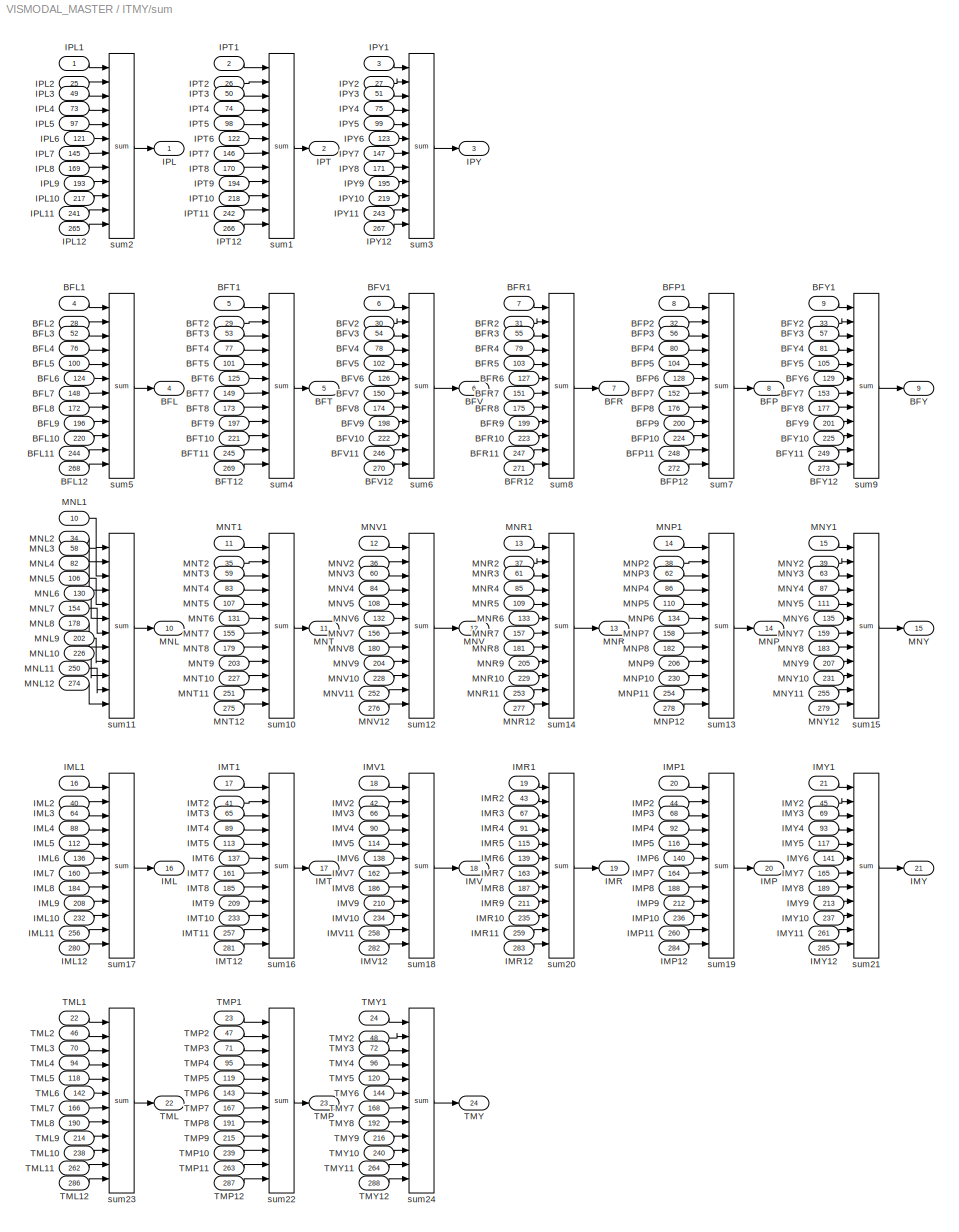
BLOCK [SubSystem] ITMY/sum
  Ports = [288, 24]
  RequestExecContextInheritance = off
  SID = 4540
  Variant = off
BLOCK [Outport] ITMY/sum/BFL
  IconDisplay = Port number
  Port = 4
  SID = 4856
BLOCK [Inport] ITMY/sum/BFL1
  IconDisplay = Port number
  Port = 4
  SID = 4544
BLOCK [Inport] ITMY/sum/BFL10
  IconDisplay = Port number
  Port = 220
  SID = 4760
BLOCK [Inport] ITMY/sum/BFL11
  IconDisplay = Port number
  Port = 244
  SID = 4784
BLOCK [Inport] ITMY/sum/BFL12
  IconDisplay = Port number
  Port = 268
  SID = 4808
BLOCK [Inport] ITMY/sum/BFL2
  IconDisplay = Port number
  Port = 28
  SID = 4568
BLOCK [Inport] ITMY/sum/BFL3
  IconDisplay = Port number
  Port = 52
  SID = 4592
BLOCK [Inport] ITMY/sum/BFL4
  IconDisplay = Port number
  Port = 76
  SID = 4616
BLOCK [Inport] ITMY/sum/BFL5
  IconDisplay = Port number
  Port = 100
  SID = 4640
BLOCK [Inport] ITMY/sum/BFL6
  IconDisplay = Port number
  Port = 124
  SID = 4664
BLOCK [Inport] ITMY/sum/BFL7
  IconDisplay = Port number
  Port = 148
  SID = 4688
BLOCK [Inport] ITMY/sum/BFL8
  IconDisplay = Port number
  Port = 172
  SID = 4712
BLOCK [Inport] ITMY/sum/BFL9
  IconDisplay = Port number
  Port = 196
  SID = 4736
BLOCK [Outport] ITMY/sum/BFP
  IconDisplay = Port number
  Port = 8
  SID = 4860
BLOCK [Inport] ITMY/sum/BFP1
  IconDisplay = Port number
  Port = 8
  SID = 4548
BLOCK [Inport] ITMY/sum/BFP10
  IconDisplay = Port number
  Port = 224
  SID = 4764
BLOCK [Inport] ITMY/sum/BFP11
  IconDisplay = Port number
  Port = 248
  SID = 4788
BLOCK [Inport] ITMY/sum/BFP12
  IconDisplay = Port number
  Port = 272
  SID = 4812
BLOCK [Inport] ITMY/sum/BFP2
  IconDisplay = Port number
  Port = 32
  SID = 4572
BLOCK [Inport] ITMY/sum/BFP3
  IconDisplay = Port number
  Port = 56
  SID = 4596
BLOCK [Inport] ITMY/sum/BFP4
  IconDisplay = Port number
  Port = 80
  SID = 4620
BLOCK [Inport] ITMY/sum/BFP5
  IconDisplay = Port number
  Port = 104
  SID = 4644
BLOCK [Inport] ITMY/sum/BFP6
  IconDisplay = Port number
  Port = 128
  SID = 4668
BLOCK [Inport] ITMY/sum/BFP7
  IconDisplay = Port number
  Port = 152
  SID = 4692
BLOCK [Inport] ITMY/sum/BFP8
  IconDisplay = Port number
  Port = 176
  SID = 4716
BLOCK [Inport] ITMY/sum/BFP9
  IconDisplay = Port number
  Port = 200
  SID = 4740
BLOCK [Outport] ITMY/sum/BFR
  IconDisplay = Port number
  Port = 7
  SID = 4859
BLOCK [Inport] ITMY/sum/BFR1
  IconDisplay = Port number
  Port = 7
  SID = 4547
BLOCK [Inport] ITMY/sum/BFR10
  IconDisplay = Port number
  Port = 223
  SID = 4763
BLOCK [Inport] ITMY/sum/BFR11
  IconDisplay = Port number
  Port = 247
  SID = 4787
BLOCK [Inport] ITMY/sum/BFR12
  IconDisplay = Port number
  Port = 271
  SID = 4811
BLOCK [Inport] ITMY/sum/BFR2
  IconDisplay = Port number
  Port = 31
  SID = 4571
BLOCK [Inport] ITMY/sum/BFR3
  IconDisplay = Port number
  Port = 55
  SID = 4595
BLOCK [Inport] ITMY/sum/BFR4
  IconDisplay = Port number
  Port = 79
  SID = 4619
BLOCK [Inport] ITMY/sum/BFR5
  IconDisplay = Port number
  Port = 103
  SID = 4643
BLOCK [Inport] ITMY/sum/BFR6
  IconDisplay = Port number
  Port = 127
  SID = 4667
BLOCK [Inport] ITMY/sum/BFR7
  IconDisplay = Port number
  Port = 151
  SID = 4691
BLOCK [Inport] ITMY/sum/BFR8
  IconDisplay = Port number
  Port = 175
  SID = 4715
BLOCK [Inport] ITMY/sum/BFR9
  IconDisplay = Port number
  Port = 199
  SID = 4739
BLOCK [Outport] ITMY/sum/BFT
  IconDisplay = Port number
  Port = 5
  SID = 4857
BLOCK [Inport] ITMY/sum/BFT1
  IconDisplay = Port number
  Port = 5
  SID = 4545
BLOCK [Inport] ITMY/sum/BFT10
  IconDisplay = Port number
  Port = 221
  SID = 4761
BLOCK [Inport] ITMY/sum/BFT11
  IconDisplay = Port number
  Port = 245
  SID = 4785
BLOCK [Inport] ITMY/sum/BFT12
  IconDisplay = Port number
  Port = 269
  SID = 4809
BLOCK [Inport] ITMY/sum/BFT2
  IconDisplay = Port number
  Port = 29
  SID = 4569
BLOCK [Inport] ITMY/sum/BFT3
  IconDisplay = Port number
  Port = 53
  SID = 4593
BLOCK [Inport] ITMY/sum/BFT4
  IconDisplay = Port number
  Port = 77
  SID = 4617
BLOCK [Inport] ITMY/sum/BFT5
  IconDisplay = Port number
  Port = 101
  SID = 4641
BLOCK [Inport] ITMY/sum/BFT6
  IconDisplay = Port number
  Port = 125
  SID = 4665
BLOCK [Inport] ITMY/sum/BFT7
  IconDisplay = Port number
  Port = 149
  SID = 4689
BLOCK [Inport] ITMY/sum/BFT8
  IconDisplay = Port number
  Port = 173
  SID = 4713
BLOCK [Inport] ITMY/sum/BFT9
  IconDisplay = Port number
  Port = 197
  SID = 4737
BLOCK [Outport] ITMY/sum/BFV
  IconDisplay = Port number
  Port = 6
  SID = 4858
BLOCK [Inport] ITMY/sum/BFV1
  IconDisplay = Port number
  Port = 6
  SID = 4546
BLOCK [Inport] ITMY/sum/BFV10
  IconDisplay = Port number
  Port = 222
  SID = 4762
BLOCK [Inport] ITMY/sum/BFV11
  IconDisplay = Port number
  Port = 246
  SID = 4786
BLOCK [Inport] ITMY/sum/BFV12
  IconDisplay = Port number
  Port = 270
  SID = 4810
BLOCK [Inport] ITMY/sum/BFV2
  IconDisplay = Port number
  Port = 30
  SID = 4570
BLOCK [Inport] ITMY/sum/BFV3
  IconDisplay = Port number
  Port = 54
  SID = 4594
BLOCK [Inport] ITMY/sum/BFV4
  IconDisplay = Port number
  Port = 78
  SID = 4618
BLOCK [Inport] ITMY/sum/BFV5
  IconDisplay = Port number
  Port = 102
  SID = 4642
BLOCK [Inport] ITMY/sum/BFV6
  IconDisplay = Port number
  Port = 126
  SID = 4666
BLOCK [Inport] ITMY/sum/BFV7
  IconDisplay = Port number
  Port = 150
  SID = 4690
BLOCK [Inport] ITMY/sum/BFV8
  IconDisplay = Port number
  Port = 174
  SID = 4714
BLOCK [Inport] ITMY/sum/BFV9
  IconDisplay = Port number
  Port = 198
  SID = 4738
BLOCK [Outport] ITMY/sum/BFY
  IconDisplay = Port number
  Port = 9
  SID = 4861
BLOCK [Inport] ITMY/sum/BFY1
  IconDisplay = Port number
  Port = 9
  SID = 4549
BLOCK [Inport] ITMY/sum/BFY10
  IconDisplay = Port number
  Port = 225
  SID = 4765
BLOCK [Inport] ITMY/sum/BFY11
  IconDisplay = Port number
  Port = 249
  SID = 4789
BLOCK [Inport] ITMY/sum/BFY12
  IconDisplay = Port number
  Port = 273
  SID = 4813
BLOCK [Inport] ITMY/sum/BFY2
  IconDisplay = Port number
  Port = 33
  SID = 4573
BLOCK [Inport] ITMY/sum/BFY3
  IconDisplay = Port number
  Port = 57
  SID = 4597
BLOCK [Inport] ITMY/sum/BFY4
  IconDisplay = Port number
  Port = 81
  SID = 4621
BLOCK [Inport] ITMY/sum/BFY5
  IconDisplay = Port number
  Port = 105
  SID = 4645
BLOCK [Inport] ITMY/sum/BFY6
  IconDisplay = Port number
  Port = 129
  SID = 4669
BLOCK [Inport] ITMY/sum/BFY7
  IconDisplay = Port number
  Port = 153
  SID = 4693
BLOCK [Inport] ITMY/sum/BFY8
  IconDisplay = Port number
  Port = 177
  SID = 4717
BLOCK [Inport] ITMY/sum/BFY9
  IconDisplay = Port number
  Port = 201
  SID = 4741
BLOCK [Outport] ITMY/sum/IML
  IconDisplay = Port number
  Port = 16
  SID = 4868
BLOCK [Inport] ITMY/sum/IML1
  IconDisplay = Port number
  Port = 16
  SID = 4556
BLOCK [Inport] ITMY/sum/IML10
  IconDisplay = Port number
  Port = 232
  SID = 4772
BLOCK [Inport] ITMY/sum/IML11
  IconDisplay = Port number
  Port = 256
  SID = 4796
BLOCK [Inport] ITMY/sum/IML12
  IconDisplay = Port number
  Port = 280
  SID = 4820
BLOCK [Inport] ITMY/sum/IML2
  IconDisplay = Port number
  Port = 40
  SID = 4580
BLOCK [Inport] ITMY/sum/IML3
  IconDisplay = Port number
  Port = 64
  SID = 4604
BLOCK [Inport] ITMY/sum/IML4
  IconDisplay = Port number
  Port = 88
  SID = 4628
BLOCK [Inport] ITMY/sum/IML5
  IconDisplay = Port number
  Port = 112
  SID = 4652
BLOCK [Inport] ITMY/sum/IML6
  IconDisplay = Port number
  Port = 136
  SID = 4676
BLOCK [Inport] ITMY/sum/IML7
  IconDisplay = Port number
  Port = 160
  SID = 4700
BLOCK [Inport] ITMY/sum/IML8
  IconDisplay = Port number
  Port = 184
  SID = 4724
BLOCK [Inport] ITMY/sum/IML9
  IconDisplay = Port number
  Port = 208
  SID = 4748
BLOCK [Outport] ITMY/sum/IMP
  IconDisplay = Port number
  Port = 20
  SID = 4872
BLOCK [Inport] ITMY/sum/IMP1
  IconDisplay = Port number
  Port = 20
  SID = 4560
BLOCK [Inport] ITMY/sum/IMP10
  IconDisplay = Port number
  Port = 236
  SID = 4776
BLOCK [Inport] ITMY/sum/IMP11
  IconDisplay = Port number
  Port = 260
  SID = 4800
BLOCK [Inport] ITMY/sum/IMP12
  IconDisplay = Port number
  Port = 284
  SID = 4824
BLOCK [Inport] ITMY/sum/IMP2
  IconDisplay = Port number
  Port = 44
  SID = 4584
BLOCK [Inport] ITMY/sum/IMP3
  IconDisplay = Port number
  Port = 68
  SID = 4608
BLOCK [Inport] ITMY/sum/IMP4
  IconDisplay = Port number
  Port = 92
  SID = 4632
BLOCK [Inport] ITMY/sum/IMP5
  IconDisplay = Port number
  Port = 116
  SID = 4656
BLOCK [Inport] ITMY/sum/IMP6
  IconDisplay = Port number
  Port = 140
  SID = 4680
BLOCK [Inport] ITMY/sum/IMP7
  IconDisplay = Port number
  Port = 164
  SID = 4704
BLOCK [Inport] ITMY/sum/IMP8
  IconDisplay = Port number
  Port = 188
  SID = 4728
BLOCK [Inport] ITMY/sum/IMP9
  IconDisplay = Port number
  Port = 212
  SID = 4752
BLOCK [Outport] ITMY/sum/IMR
  IconDisplay = Port number
  Port = 19
  SID = 4871
BLOCK [Inport] ITMY/sum/IMR1
  IconDisplay = Port number
  Port = 19
  SID = 4559
BLOCK [Inport] ITMY/sum/IMR10
  IconDisplay = Port number
  Port = 235
  SID = 4775
BLOCK [Inport] ITMY/sum/IMR11
  IconDisplay = Port number
  Port = 259
  SID = 4799
BLOCK [Inport] ITMY/sum/IMR12
  IconDisplay = Port number
  Port = 283
  SID = 4823
BLOCK [Inport] ITMY/sum/IMR2
  IconDisplay = Port number
  Port = 43
  SID = 4583
BLOCK [Inport] ITMY/sum/IMR3
  IconDisplay = Port number
  Port = 67
  SID = 4607
BLOCK [Inport] ITMY/sum/IMR4
  IconDisplay = Port number
  Port = 91
  SID = 4631
BLOCK [Inport] ITMY/sum/IMR5
  IconDisplay = Port number
  Port = 115
  SID = 4655
BLOCK [Inport] ITMY/sum/IMR6
  IconDisplay = Port number
  Port = 139
  SID = 4679
BLOCK [Inport] ITMY/sum/IMR7
  IconDisplay = Port number
  Port = 163
  SID = 4703
BLOCK [Inport] ITMY/sum/IMR8
  IconDisplay = Port number
  Port = 187
  SID = 4727
BLOCK [Inport] ITMY/sum/IMR9
  IconDisplay = Port number
  Port = 211
  SID = 4751
BLOCK [Outport] ITMY/sum/IMT
  IconDisplay = Port number
  Port = 17
  SID = 4869
BLOCK [Inport] ITMY/sum/IMT1
  IconDisplay = Port number
  Port = 17
  SID = 4557
BLOCK [Inport] ITMY/sum/IMT10
  IconDisplay = Port number
  Port = 233
  SID = 4773
BLOCK [Inport] ITMY/sum/IMT11
  IconDisplay = Port number
  Port = 257
  SID = 4797
BLOCK [Inport] ITMY/sum/IMT12
  IconDisplay = Port number
  Port = 281
  SID = 4821
BLOCK [Inport] ITMY/sum/IMT2
  IconDisplay = Port number
  Port = 41
  SID = 4581
BLOCK [Inport] ITMY/sum/IMT3
  IconDisplay = Port number
  Port = 65
  SID = 4605
BLOCK [Inport] ITMY/sum/IMT4
  IconDisplay = Port number
  Port = 89
  SID = 4629
BLOCK [Inport] ITMY/sum/IMT5
  IconDisplay = Port number
  Port = 113
  SID = 4653
BLOCK [Inport] ITMY/sum/IMT6
  IconDisplay = Port number
  Port = 137
  SID = 4677
BLOCK [Inport] ITMY/sum/IMT7
  IconDisplay = Port number
  Port = 161
  SID = 4701
BLOCK [Inport] ITMY/sum/IMT8
  IconDisplay = Port number
  Port = 185
  SID = 4725
BLOCK [Inport] ITMY/sum/IMT9
  IconDisplay = Port number
  Port = 209
  SID = 4749
BLOCK [Outport] ITMY/sum/IMV
  IconDisplay = Port number
  Port = 18
  SID = 4870
BLOCK [Inport] ITMY/sum/IMV1
  IconDisplay = Port number
  Port = 18
  SID = 4558
BLOCK [Inport] ITMY/sum/IMV10
  IconDisplay = Port number
  Port = 234
  SID = 4774
BLOCK [Inport] ITMY/sum/IMV11
  IconDisplay = Port number
  Port = 258
  SID = 4798
BLOCK [Inport] ITMY/sum/IMV12
  IconDisplay = Port number
  Port = 282
  SID = 4822
BLOCK [Inport] ITMY/sum/IMV2
  IconDisplay = Port number
  Port = 42
  SID = 4582
BLOCK [Inport] ITMY/sum/IMV3
  IconDisplay = Port number
  Port = 66
  SID = 4606
BLOCK [Inport] ITMY/sum/IMV4
  IconDisplay = Port number
  Port = 90
  SID = 4630
BLOCK [Inport] ITMY/sum/IMV5
  IconDisplay = Port number
  Port = 114
  SID = 4654
BLOCK [Inport] ITMY/sum/IMV6
  IconDisplay = Port number
  Port = 138
  SID = 4678
BLOCK [Inport] ITMY/sum/IMV7
  IconDisplay = Port number
  Port = 162
  SID = 4702
BLOCK [Inport] ITMY/sum/IMV8
  IconDisplay = Port number
  Port = 186
  SID = 4726
BLOCK [Inport] ITMY/sum/IMV9
  IconDisplay = Port number
  Port = 210
  SID = 4750
BLOCK [Outport] ITMY/sum/IMY
  IconDisplay = Port number
  Port = 21
  SID = 4873
BLOCK [Inport] ITMY/sum/IMY1
  IconDisplay = Port number
  Port = 21
  SID = 4561
BLOCK [Inport] ITMY/sum/IMY10
  IconDisplay = Port number
  Port = 237
  SID = 4777
BLOCK [Inport] ITMY/sum/IMY11
  IconDisplay = Port number
  Port = 261
  SID = 4801
BLOCK [Inport] ITMY/sum/IMY12
  IconDisplay = Port number
  Port = 285
  SID = 4825
BLOCK [Inport] ITMY/sum/IMY2
  IconDisplay = Port number
  Port = 45
  SID = 4585
BLOCK [Inport] ITMY/sum/IMY3
  IconDisplay = Port number
  Port = 69
  SID = 4609
BLOCK [Inport] ITMY/sum/IMY4
  IconDisplay = Port number
  Port = 93
  SID = 4633
BLOCK [Inport] ITMY/sum/IMY5
  IconDisplay = Port number
  Port = 117
  SID = 4657
BLOCK [Inport] ITMY/sum/IMY6
  IconDisplay = Port number
  Port = 141
  SID = 4681
BLOCK [Inport] ITMY/sum/IMY7
  IconDisplay = Port number
  Port = 165
  SID = 4705
BLOCK [Inport] ITMY/sum/IMY8
  IconDisplay = Port number
  Port = 189
  SID = 4729
BLOCK [Inport] ITMY/sum/IMY9
  IconDisplay = Port number
  Port = 213
  SID = 4753
BLOCK [Outport] ITMY/sum/IPL
  IconDisplay = Port number
  SID = 4853
BLOCK [Inport] ITMY/sum/IPL1
  IconDisplay = Port number
  SID = 4541
BLOCK [Inport] ITMY/sum/IPL10
  IconDisplay = Port number
  Port = 217
  SID = 4757
BLOCK [Inport] ITMY/sum/IPL11
  IconDisplay = Port number
  Port = 241
  SID = 4781
BLOCK [Inport] ITMY/sum/IPL12
  IconDisplay = Port number
  Port = 265
  SID = 4805
BLOCK [Inport] ITMY/sum/IPL2
  IconDisplay = Port number
  Port = 25
  SID = 4565
BLOCK [Inport] ITMY/sum/IPL3
  IconDisplay = Port number
  Port = 49
  SID = 4589
BLOCK [Inport] ITMY/sum/IPL4
  IconDisplay = Port number
  Port = 73
  SID = 4613
BLOCK [Inport] ITMY/sum/IPL5
  IconDisplay = Port number
  Port = 97
  SID = 4637
BLOCK [Inport] ITMY/sum/IPL6
  IconDisplay = Port number
  Port = 121
  SID = 4661
BLOCK [Inport] ITMY/sum/IPL7
  IconDisplay = Port number
  Port = 145
  SID = 4685
BLOCK [Inport] ITMY/sum/IPL8
  IconDisplay = Port number
  Port = 169
  SID = 4709
BLOCK [Inport] ITMY/sum/IPL9
  IconDisplay = Port number
  Port = 193
  SID = 4733
BLOCK [Outport] ITMY/sum/IPT
  IconDisplay = Port number
  Port = 2
  SID = 4854
BLOCK [Inport] ITMY/sum/IPT1
  IconDisplay = Port number
  Port = 2
  SID = 4542
BLOCK [Inport] ITMY/sum/IPT10
  IconDisplay = Port number
  Port = 218
  SID = 4758
BLOCK [Inport] ITMY/sum/IPT11
  IconDisplay = Port number
  Port = 242
  SID = 4782
BLOCK [Inport] ITMY/sum/IPT12
  IconDisplay = Port number
  Port = 266
  SID = 4806
BLOCK [Inport] ITMY/sum/IPT2
  IconDisplay = Port number
  Port = 26
  SID = 4566
BLOCK [Inport] ITMY/sum/IPT3
  IconDisplay = Port number
  Port = 50
  SID = 4590
BLOCK [Inport] ITMY/sum/IPT4
  IconDisplay = Port number
  Port = 74
  SID = 4614
BLOCK [Inport] ITMY/sum/IPT5
  IconDisplay = Port number
  Port = 98
  SID = 4638
BLOCK [Inport] ITMY/sum/IPT6
  IconDisplay = Port number
  Port = 122
  SID = 4662
BLOCK [Inport] ITMY/sum/IPT7
  IconDisplay = Port number
  Port = 146
  SID = 4686
BLOCK [Inport] ITMY/sum/IPT8
  IconDisplay = Port number
  Port = 170
  SID = 4710
BLOCK [Inport] ITMY/sum/IPT9
  IconDisplay = Port number
  Port = 194
  SID = 4734
BLOCK [Outport] ITMY/sum/IPY
  IconDisplay = Port number
  Port = 3
  SID = 4855
BLOCK [Inport] ITMY/sum/IPY1
  IconDisplay = Port number
  Port = 3
  SID = 4543
BLOCK [Inport] ITMY/sum/IPY10
  IconDisplay = Port number
  Port = 219
  SID = 4759
BLOCK [Inport] ITMY/sum/IPY11
  IconDisplay = Port number
  Port = 243
  SID = 4783
BLOCK [Inport] ITMY/sum/IPY12
  IconDisplay = Port number
  Port = 267
  SID = 4807
BLOCK [Inport] ITMY/sum/IPY2
  IconDisplay = Port number
  Port = 27
  SID = 4567
BLOCK [Inport] ITMY/sum/IPY3
  IconDisplay = Port number
  Port = 51
  SID = 4591
BLOCK [Inport] ITMY/sum/IPY4
  IconDisplay = Port number
  Port = 75
  SID = 4615
BLOCK [Inport] ITMY/sum/IPY5
  IconDisplay = Port number
  Port = 99
  SID = 4639
BLOCK [Inport] ITMY/sum/IPY6
  IconDisplay = Port number
  Port = 123
  SID = 4663
BLOCK [Inport] ITMY/sum/IPY7
  IconDisplay = Port number
  Port = 147
  SID = 4687
BLOCK [Inport] ITMY/sum/IPY8
  IconDisplay = Port number
  Port = 171
  SID = 4711
BLOCK [Inport] ITMY/sum/IPY9
  IconDisplay = Port number
  Port = 195
  SID = 4735
BLOCK [Outport] ITMY/sum/MNL
  IconDisplay = Port number
  Port = 10
  SID = 4862
BLOCK [Inport] ITMY/sum/MNL1
  IconDisplay = Port number
  Port = 10
  SID = 4550
BLOCK [Inport] ITMY/sum/MNL10
  IconDisplay = Port number
  Port = 226
  SID = 4766
BLOCK [Inport] ITMY/sum/MNL11
  IconDisplay = Port number
  Port = 250
  SID = 4790
BLOCK [Inport] ITMY/sum/MNL12
  IconDisplay = Port number
  Port = 274
  SID = 4814
BLOCK [Inport] ITMY/sum/MNL2
  IconDisplay = Port number
  Port = 34
  SID = 4574
BLOCK [Inport] ITMY/sum/MNL3
  IconDisplay = Port number
  Port = 58
  SID = 4598
BLOCK [Inport] ITMY/sum/MNL4
  IconDisplay = Port number
  Port = 82
  SID = 4622
BLOCK [Inport] ITMY/sum/MNL5
  IconDisplay = Port number
  Port = 106
  SID = 4646
BLOCK [Inport] ITMY/sum/MNL6
  IconDisplay = Port number
  Port = 130
  SID = 4670
BLOCK [Inport] ITMY/sum/MNL7
  IconDisplay = Port number
  Port = 154
  SID = 4694
BLOCK [Inport] ITMY/sum/MNL8
  IconDisplay = Port number
  Port = 178
  SID = 4718
BLOCK [Inport] ITMY/sum/MNL9
  IconDisplay = Port number
  Port = 202
  SID = 4742
BLOCK [Outport] ITMY/sum/MNP
  IconDisplay = Port number
  Port = 14
  SID = 4866
BLOCK [Inport] ITMY/sum/MNP1
  IconDisplay = Port number
  Port = 14
  SID = 4554
BLOCK [Inport] ITMY/sum/MNP10
  IconDisplay = Port number
  Port = 230
  SID = 4770
BLOCK [Inport] ITMY/sum/MNP11
  IconDisplay = Port number
  Port = 254
  SID = 4794
BLOCK [Inport] ITMY/sum/MNP12
  IconDisplay = Port number
  Port = 278
  SID = 4818
BLOCK [Inport] ITMY/sum/MNP2
  IconDisplay = Port number
  Port = 38
  SID = 4578
BLOCK [Inport] ITMY/sum/MNP3
  IconDisplay = Port number
  Port = 62
  SID = 4602
BLOCK [Inport] ITMY/sum/MNP4
  IconDisplay = Port number
  Port = 86
  SID = 4626
BLOCK [Inport] ITMY/sum/MNP5
  IconDisplay = Port number
  Port = 110
  SID = 4650
BLOCK [Inport] ITMY/sum/MNP6
  IconDisplay = Port number
  Port = 134
  SID = 4674
BLOCK [Inport] ITMY/sum/MNP7
  IconDisplay = Port number
  Port = 158
  SID = 4698
BLOCK [Inport] ITMY/sum/MNP8
  IconDisplay = Port number
  Port = 182
  SID = 4722
BLOCK [Inport] ITMY/sum/MNP9
  IconDisplay = Port number
  Port = 206
  SID = 4746
BLOCK [Outport] ITMY/sum/MNR
  IconDisplay = Port number
  Port = 13
  SID = 4865
BLOCK [Inport] ITMY/sum/MNR1
  IconDisplay = Port number
  Port = 13
  SID = 4553
BLOCK [Inport] ITMY/sum/MNR10
  IconDisplay = Port number
  Port = 229
  SID = 4769
BLOCK [Inport] ITMY/sum/MNR11
  IconDisplay = Port number
  Port = 253
  SID = 4793
BLOCK [Inport] ITMY/sum/MNR12
  IconDisplay = Port number
  Port = 277
  SID = 4817
BLOCK [Inport] ITMY/sum/MNR2
  IconDisplay = Port number
  Port = 37
  SID = 4577
BLOCK [Inport] ITMY/sum/MNR3
  IconDisplay = Port number
  Port = 61
  SID = 4601
BLOCK [Inport] ITMY/sum/MNR4
  IconDisplay = Port number
  Port = 85
  SID = 4625
BLOCK [Inport] ITMY/sum/MNR5
  IconDisplay = Port number
  Port = 109
  SID = 4649
BLOCK [Inport] ITMY/sum/MNR6
  IconDisplay = Port number
  Port = 133
  SID = 4673
BLOCK [Inport] ITMY/sum/MNR7
  IconDisplay = Port number
  Port = 157
  SID = 4697
BLOCK [Inport] ITMY/sum/MNR8
  IconDisplay = Port number
  Port = 181
  SID = 4721
BLOCK [Inport] ITMY/sum/MNR9
  IconDisplay = Port number
  Port = 205
  SID = 4745
BLOCK [Outport] ITMY/sum/MNT
  IconDisplay = Port number
  Port = 11
  SID = 4863
BLOCK [Inport] ITMY/sum/MNT1
  IconDisplay = Port number
  Port = 11
  SID = 4551
BLOCK [Inport] ITMY/sum/MNT10
  IconDisplay = Port number
  Port = 227
  SID = 4767
BLOCK [Inport] ITMY/sum/MNT11
  IconDisplay = Port number
  Port = 251
  SID = 4791
BLOCK [Inport] ITMY/sum/MNT12
  IconDisplay = Port number
  Port = 275
  SID = 4815
BLOCK [Inport] ITMY/sum/MNT2
  IconDisplay = Port number
  Port = 35
  SID = 4575
BLOCK [Inport] ITMY/sum/MNT3
  IconDisplay = Port number
  Port = 59
  SID = 4599
BLOCK [Inport] ITMY/sum/MNT4
  IconDisplay = Port number
  Port = 83
  SID = 4623
BLOCK [Inport] ITMY/sum/MNT5
  IconDisplay = Port number
  Port = 107
  SID = 4647
BLOCK [Inport] ITMY/sum/MNT6
  IconDisplay = Port number
  Port = 131
  SID = 4671
BLOCK [Inport] ITMY/sum/MNT7
  IconDisplay = Port number
  Port = 155
  SID = 4695
BLOCK [Inport] ITMY/sum/MNT8
  IconDisplay = Port number
  Port = 179
  SID = 4719
BLOCK [Inport] ITMY/sum/MNT9
  IconDisplay = Port number
  Port = 203
  SID = 4743
BLOCK [Outport] ITMY/sum/MNV
  IconDisplay = Port number
  Port = 12
  SID = 4864
BLOCK [Inport] ITMY/sum/MNV1
  IconDisplay = Port number
  Port = 12
  SID = 4552
BLOCK [Inport] ITMY/sum/MNV10
  IconDisplay = Port number
  Port = 228
  SID = 4768
BLOCK [Inport] ITMY/sum/MNV11
  IconDisplay = Port number
  Port = 252
  SID = 4792
BLOCK [Inport] ITMY/sum/MNV12
  IconDisplay = Port number
  Port = 276
  SID = 4816
BLOCK [Inport] ITMY/sum/MNV2
  IconDisplay = Port number
  Port = 36
  SID = 4576
BLOCK [Inport] ITMY/sum/MNV3
  IconDisplay = Port number
  Port = 60
  SID = 4600
BLOCK [Inport] ITMY/sum/MNV4
  IconDisplay = Port number
  Port = 84
  SID = 4624
BLOCK [Inport] ITMY/sum/MNV5
  IconDisplay = Port number
  Port = 108
  SID = 4648
BLOCK [Inport] ITMY/sum/MNV6
  IconDisplay = Port number
  Port = 132
  SID = 4672
BLOCK [Inport] ITMY/sum/MNV7
  IconDisplay = Port number
  Port = 156
  SID = 4696
BLOCK [Inport] ITMY/sum/MNV8
  IconDisplay = Port number
  Port = 180
  SID = 4720
BLOCK [Inport] ITMY/sum/MNV9
  IconDisplay = Port number
  Port = 204
  SID = 4744
BLOCK [Outport] ITMY/sum/MNY
  IconDisplay = Port number
  Port = 15
  SID = 4867
BLOCK [Inport] ITMY/sum/MNY1
  IconDisplay = Port number
  Port = 15
  SID = 4555
BLOCK [Inport] ITMY/sum/MNY10
  IconDisplay = Port number
  Port = 231
  SID = 4771
BLOCK [Inport] ITMY/sum/MNY11
  IconDisplay = Port number
  Port = 255
  SID = 4795
BLOCK [Inport] ITMY/sum/MNY12
  IconDisplay = Port number
  Port = 279
  SID = 4819
BLOCK [Inport] ITMY/sum/MNY2
  IconDisplay = Port number
  Port = 39
  SID = 4579
BLOCK [Inport] ITMY/sum/MNY3
  IconDisplay = Port number
  Port = 63
  SID = 4603
BLOCK [Inport] ITMY/sum/MNY4
  IconDisplay = Port number
  Port = 87
  SID = 4627
BLOCK [Inport] ITMY/sum/MNY5
  IconDisplay = Port number
  Port = 111
  SID = 4651
BLOCK [Inport] ITMY/sum/MNY6
  IconDisplay = Port number
  Port = 135
  SID = 4675
BLOCK [Inport] ITMY/sum/MNY7
  IconDisplay = Port number
  Port = 159
  SID = 4699
BLOCK [Inport] ITMY/sum/MNY8
  IconDisplay = Port number
  Port = 183
  SID = 4723
BLOCK [Inport] ITMY/sum/MNY9
  IconDisplay = Port number
  Port = 207
  SID = 4747
BLOCK [Outport] ITMY/sum/TML
  IconDisplay = Port number
  Port = 22
  SID = 4874
BLOCK [Inport] ITMY/sum/TML1
  IconDisplay = Port number
  Port = 22
  SID = 4562
BLOCK [Inport] ITMY/sum/TML10
  IconDisplay = Port number
  Port = 238
  SID = 4778
BLOCK [Inport] ITMY/sum/TML11
  IconDisplay = Port number
  Port = 262
  SID = 4802
BLOCK [Inport] ITMY/sum/TML12
  IconDisplay = Port number
  Port = 286
  SID = 4826
BLOCK [Inport] ITMY/sum/TML2
  IconDisplay = Port number
  Port = 46
  SID = 4586
BLOCK [Inport] ITMY/sum/TML3
  IconDisplay = Port number
  Port = 70
  SID = 4610
BLOCK [Inport] ITMY/sum/TML4
  IconDisplay = Port number
  Port = 94
  SID = 4634
BLOCK [Inport] ITMY/sum/TML5
  IconDisplay = Port number
  Port = 118
  SID = 4658
BLOCK [Inport] ITMY/sum/TML6
  IconDisplay = Port number
  Port = 142
  SID = 4682
BLOCK [Inport] ITMY/sum/TML7
  IconDisplay = Port number
  Port = 166
  SID = 4706
BLOCK [Inport] ITMY/sum/TML8
  IconDisplay = Port number
  Port = 190
  SID = 4730
BLOCK [Inport] ITMY/sum/TML9
  IconDisplay = Port number
  Port = 214
  SID = 4754
BLOCK [Outport] ITMY/sum/TMP
  IconDisplay = Port number
  Port = 23
  SID = 4875
BLOCK [Inport] ITMY/sum/TMP1
  IconDisplay = Port number
  Port = 23
  SID = 4563
BLOCK [Inport] ITMY/sum/TMP10
  IconDisplay = Port number
  Port = 239
  SID = 4779
BLOCK [Inport] ITMY/sum/TMP11
  IconDisplay = Port number
  Port = 263
  SID = 4803
BLOCK [Inport] ITMY/sum/TMP12
  IconDisplay = Port number
  Port = 287
  SID = 4827
BLOCK [Inport] ITMY/sum/TMP2
  IconDisplay = Port number
  Port = 47
  SID = 4587
BLOCK [Inport] ITMY/sum/TMP3
  IconDisplay = Port number
  Port = 71
  SID = 4611
BLOCK [Inport] ITMY/sum/TMP4
  IconDisplay = Port number
  Port = 95
  SID = 4635
BLOCK [Inport] ITMY/sum/TMP5
  IconDisplay = Port number
  Port = 119
  SID = 4659
BLOCK [Inport] ITMY/sum/TMP6
  IconDisplay = Port number
  Port = 143
  SID = 4683
BLOCK [Inport] ITMY/sum/TMP7
  IconDisplay = Port number
  Port = 167
  SID = 4707
BLOCK [Inport] ITMY/sum/TMP8
  IconDisplay = Port number
  Port = 191
  SID = 4731
BLOCK [Inport] ITMY/sum/TMP9
  IconDisplay = Port number
  Port = 215
  SID = 4755
BLOCK [Outport] ITMY/sum/TMY
  IconDisplay = Port number
  Port = 24
  SID = 4876
BLOCK [Inport] ITMY/sum/TMY1
  IconDisplay = Port number
  Port = 24
  SID = 4564
BLOCK [Inport] ITMY/sum/TMY10
  IconDisplay = Port number
  Port = 240
  SID = 4780
BLOCK [Inport] ITMY/sum/TMY11
  IconDisplay = Port number
  Port = 264
  SID = 4804
BLOCK [Inport] ITMY/sum/TMY12
  IconDisplay = Port number
  Port = 288
  SID = 4828
BLOCK [Inport] ITMY/sum/TMY2
  IconDisplay = Port number
  Port = 48
  SID = 4588
BLOCK [Inport] ITMY/sum/TMY3
  IconDisplay = Port number
  Port = 72
  SID = 4612
BLOCK [Inport] ITMY/sum/TMY4
  IconDisplay = Port number
  Port = 96
  SID = 4636
BLOCK [Inport] ITMY/sum/TMY5
  IconDisplay = Port number
  Port = 120
  SID = 4660
BLOCK [Inport] ITMY/sum/TMY6
  IconDisplay = Port number
  Port = 144
  SID = 4684
BLOCK [Inport] ITMY/sum/TMY7
  IconDisplay = Port number
  Port = 168
  SID = 4708
BLOCK [Inport] ITMY/sum/TMY8
  IconDisplay = Port number
  Port = 192
  SID = 4732
BLOCK [Inport] ITMY/sum/TMY9
  IconDisplay = Port number
  Port = 216
  SID = 4756
BLOCK [Reference] ITMY/sum/sum1  REF=VIS_LIB/MODAL/sum
  Ports = [12, 1]
  SID = 4829
  SourceBlock = VIS_LIB/MODAL/sum
  SourceType = SubSystem
BLOCK [Reference] ITMY/sum/sum10  REF=VIS_LIB/MODAL/sum
  Ports = [12, 1]
  SID = 4830
  SourceBlock = VIS_LIB/MODAL/sum
  SourceType = SubSystem
BLOCK [Reference] ITMY/sum/sum11  REF=VIS_LIB/MODAL/sum
  Ports = [12, 1]
  SID = 4831
  SourceBlock = VIS_LIB/MODAL/sum
  SourceType = SubSystem
BLOCK [Reference] ITMY/sum/sum12  REF=VIS_LIB/MODAL/sum
  Ports = [12, 1]
  SID = 4832
  SourceBlock = VIS_LIB/MODAL/sum
  SourceType = SubSystem
BLOCK [Reference] ITMY/sum/sum13  REF=VIS_LIB/MODAL/sum
  Ports = [12, 1]
  SID = 4833
  SourceBlock = VIS_LIB/MODAL/sum
  SourceType = SubSystem
BLOCK [Reference] ITMY/sum/sum14  REF=VIS_LIB/MODAL/sum
  Ports = [12, 1]
  SID = 4834
  SourceBlock = VIS_LIB/MODAL/sum
  SourceType = SubSystem
BLOCK [Reference] ITMY/sum/sum15  REF=VIS_LIB/MODAL/sum
  Ports = [12, 1]
  SID = 4835
  SourceBlock = VIS_LIB/MODAL/sum
  SourceType = SubSystem
BLOCK [Reference] ITMY/sum/sum16  REF=VIS_LIB/MODAL/sum
  Ports = [12, 1]
  SID = 4836
  SourceBlock = VIS_LIB/MODAL/sum
  SourceType = SubSystem
BLOCK [Reference] ITMY/sum/sum17  REF=VIS_LIB/MODAL/sum
  Ports = [12, 1]
  SID = 4837
  SourceBlock = VIS_LIB/MODAL/sum
  SourceType = SubSystem
BLOCK [Reference] ITMY/sum/sum18  REF=VIS_LIB/MODAL/sum
  Ports = [12, 1]
  SID = 4838
  SourceBlock = VIS_LIB/MODAL/sum
  SourceType = SubSystem
BLOCK [Reference] ITMY/sum/sum19  REF=VIS_LIB/MODAL/sum
  Ports = [12, 1]
  SID = 4839
  SourceBlock = VIS_LIB/MODAL/sum
  SourceType = SubSystem
BLOCK [Reference] ITMY/sum/sum2  REF=VIS_LIB/MODAL/sum
  Ports = [12, 1]
  SID = 4840
  SourceBlock = VIS_LIB/MODAL/sum
  SourceType = SubSystem
BLOCK [Reference] ITMY/sum/sum20  REF=VIS_LIB/MODAL/sum
  Ports = [12, 1]
  SID = 4841
  SourceBlock = VIS_LIB/MODAL/sum
  SourceType = SubSystem
BLOCK [Reference] ITMY/sum/sum21  REF=VIS_LIB/MODAL/sum
  Ports = [12, 1]
  SID = 4842
  SourceBlock = VIS_LIB/MODAL/sum
  SourceType = SubSystem
BLOCK [Reference] ITMY/sum/sum22  REF=VIS_LIB/MODAL/sum
  Ports = [12, 1]
  SID = 4843
  SourceBlock = VIS_LIB/MODAL/sum
  SourceType = SubSystem
BLOCK [Reference] ITMY/sum/sum23  REF=VIS_LIB/MODAL/sum
  Ports = [12, 1]
  SID = 4844
  SourceBlock = VIS_LIB/MODAL/sum
  SourceType = SubSystem
BLOCK [Reference] ITMY/sum/sum24  REF=VIS_LIB/MODAL/sum
  Ports = [12, 1]
  SID = 4845
  SourceBlock = VIS_LIB/MODAL/sum
  SourceType = SubSystem
BLOCK [Reference] ITMY/sum/sum3  REF=VIS_LIB/MODAL/sum
  Ports = [12, 1]
  SID = 4846
  SourceBlock = VIS_LIB/MODAL/sum
  SourceType = SubSystem
BLOCK [Reference] ITMY/sum/sum4  REF=VIS_LIB/MODAL/sum
  Ports = [12, 1]
  SID = 4847
  SourceBlock = VIS_LIB/MODAL/sum
  SourceType = SubSystem
BLOCK [Reference] ITMY/sum/sum5  REF=VIS_LIB/MODAL/sum
  Ports = [12, 1]
  SID = 4848
  SourceBlock = VIS_LIB/MODAL/sum
  SourceType = SubSystem
BLOCK [Reference] ITMY/sum/sum6  REF=VIS_LIB/MODAL/sum
  Ports = [12, 1]
  SID = 4849
  SourceBlock = VIS_LIB/MODAL/sum
  SourceType = SubSystem
BLOCK [Reference] ITMY/sum/sum7  REF=VIS_LIB/MODAL/sum
  Ports = [12, 1]
  SID = 4850
  SourceBlock = VIS_LIB/MODAL/sum
  SourceType = SubSystem
BLOCK [Reference] ITMY/sum/sum8  REF=VIS_LIB/MODAL/sum
  Ports = [12, 1]
  SID = 4851
  SourceBlock = VIS_LIB/MODAL/sum
  SourceType = SubSystem
BLOCK [Reference] ITMY/sum/sum9  REF=VIS_LIB/MODAL/sum
  Ports = [12, 1]
  SID = 4852
  SourceBlock = VIS_LIB/MODAL/sum
  SourceType = SubSystem
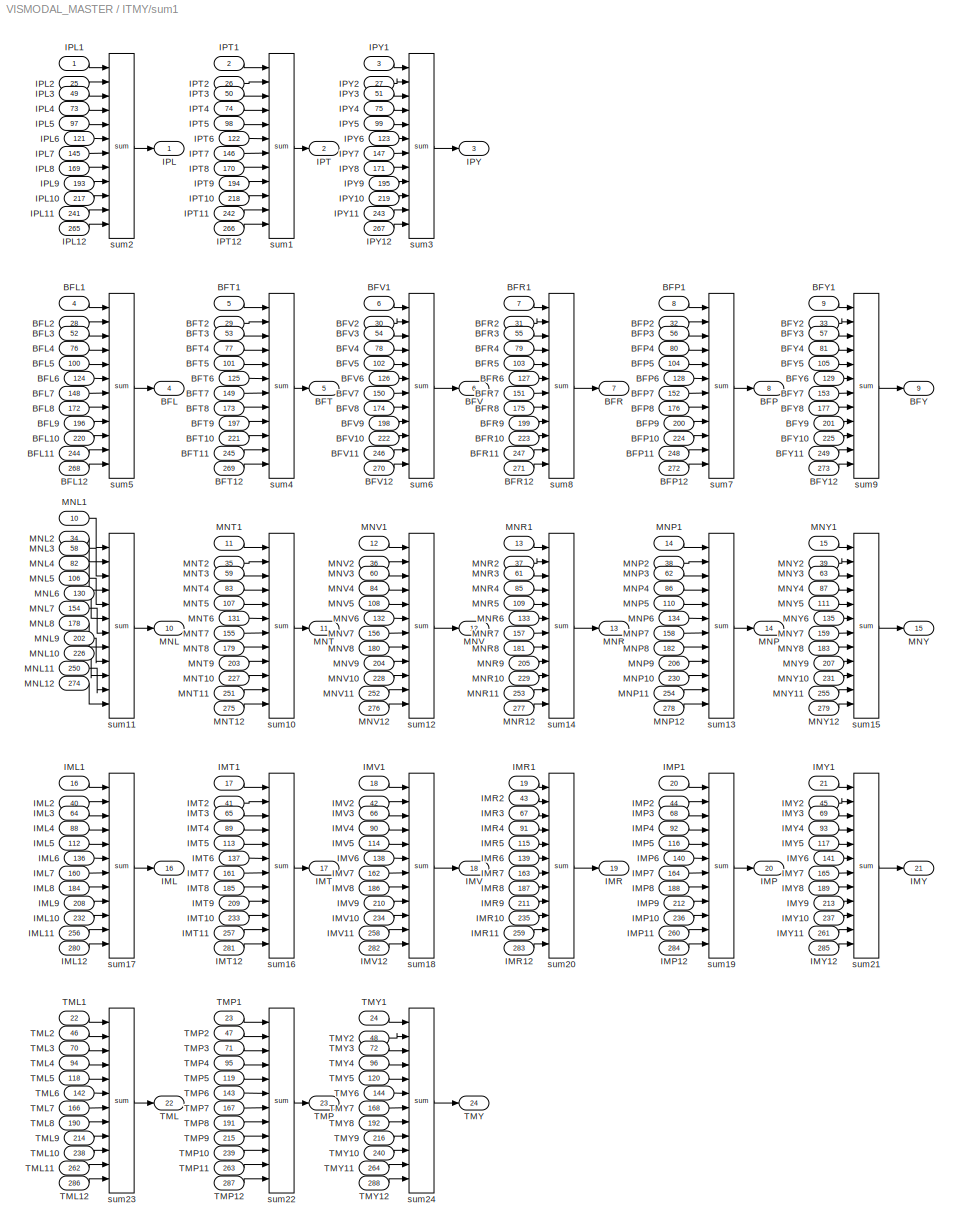
BLOCK [SubSystem] ITMY/sum1
  Ports = [288, 24]
  RequestExecContextInheritance = off
  SID = 4877
  Variant = off
BLOCK [Outport] ITMY/sum1/BFL
  IconDisplay = Port number
  Port = 4
  SID = 5193
BLOCK [Inport] ITMY/sum1/BFL1
  IconDisplay = Port number
  Port = 4
  SID = 4881
BLOCK [Inport] ITMY/sum1/BFL10
  IconDisplay = Port number
  Port = 220
  SID = 5097
BLOCK [Inport] ITMY/sum1/BFL11
  IconDisplay = Port number
  Port = 244
  SID = 5121
BLOCK [Inport] ITMY/sum1/BFL12
  IconDisplay = Port number
  Port = 268
  SID = 5145
BLOCK [Inport] ITMY/sum1/BFL2
  IconDisplay = Port number
  Port = 28
  SID = 4905
BLOCK [Inport] ITMY/sum1/BFL3
  IconDisplay = Port number
  Port = 52
  SID = 4929
BLOCK [Inport] ITMY/sum1/BFL4
  IconDisplay = Port number
  Port = 76
  SID = 4953
BLOCK [Inport] ITMY/sum1/BFL5
  IconDisplay = Port number
  Port = 100
  SID = 4977
BLOCK [Inport] ITMY/sum1/BFL6
  IconDisplay = Port number
  Port = 124
  SID = 5001
BLOCK [Inport] ITMY/sum1/BFL7
  IconDisplay = Port number
  Port = 148
  SID = 5025
BLOCK [Inport] ITMY/sum1/BFL8
  IconDisplay = Port number
  Port = 172
  SID = 5049
BLOCK [Inport] ITMY/sum1/BFL9
  IconDisplay = Port number
  Port = 196
  SID = 5073
BLOCK [Outport] ITMY/sum1/BFP
  IconDisplay = Port number
  Port = 8
  SID = 5197
BLOCK [Inport] ITMY/sum1/BFP1
  IconDisplay = Port number
  Port = 8
  SID = 4885
BLOCK [Inport] ITMY/sum1/BFP10
  IconDisplay = Port number
  Port = 224
  SID = 5101
BLOCK [Inport] ITMY/sum1/BFP11
  IconDisplay = Port number
  Port = 248
  SID = 5125
BLOCK [Inport] ITMY/sum1/BFP12
  IconDisplay = Port number
  Port = 272
  SID = 5149
BLOCK [Inport] ITMY/sum1/BFP2
  IconDisplay = Port number
  Port = 32
  SID = 4909
BLOCK [Inport] ITMY/sum1/BFP3
  IconDisplay = Port number
  Port = 56
  SID = 4933
BLOCK [Inport] ITMY/sum1/BFP4
  IconDisplay = Port number
  Port = 80
  SID = 4957
BLOCK [Inport] ITMY/sum1/BFP5
  IconDisplay = Port number
  Port = 104
  SID = 4981
BLOCK [Inport] ITMY/sum1/BFP6
  IconDisplay = Port number
  Port = 128
  SID = 5005
BLOCK [Inport] ITMY/sum1/BFP7
  IconDisplay = Port number
  Port = 152
  SID = 5029
BLOCK [Inport] ITMY/sum1/BFP8
  IconDisplay = Port number
  Port = 176
  SID = 5053
BLOCK [Inport] ITMY/sum1/BFP9
  IconDisplay = Port number
  Port = 200
  SID = 5077
BLOCK [Outport] ITMY/sum1/BFR
  IconDisplay = Port number
  Port = 7
  SID = 5196
BLOCK [Inport] ITMY/sum1/BFR1
  IconDisplay = Port number
  Port = 7
  SID = 4884
BLOCK [Inport] ITMY/sum1/BFR10
  IconDisplay = Port number
  Port = 223
  SID = 5100
BLOCK [Inport] ITMY/sum1/BFR11
  IconDisplay = Port number
  Port = 247
  SID = 5124
BLOCK [Inport] ITMY/sum1/BFR12
  IconDisplay = Port number
  Port = 271
  SID = 5148
BLOCK [Inport] ITMY/sum1/BFR2
  IconDisplay = Port number
  Port = 31
  SID = 4908
BLOCK [Inport] ITMY/sum1/BFR3
  IconDisplay = Port number
  Port = 55
  SID = 4932
BLOCK [Inport] ITMY/sum1/BFR4
  IconDisplay = Port number
  Port = 79
  SID = 4956
BLOCK [Inport] ITMY/sum1/BFR5
  IconDisplay = Port number
  Port = 103
  SID = 4980
BLOCK [Inport] ITMY/sum1/BFR6
  IconDisplay = Port number
  Port = 127
  SID = 5004
BLOCK [Inport] ITMY/sum1/BFR7
  IconDisplay = Port number
  Port = 151
  SID = 5028
BLOCK [Inport] ITMY/sum1/BFR8
  IconDisplay = Port number
  Port = 175
  SID = 5052
BLOCK [Inport] ITMY/sum1/BFR9
  IconDisplay = Port number
  Port = 199
  SID = 5076
BLOCK [Outport] ITMY/sum1/BFT
  IconDisplay = Port number
  Port = 5
  SID = 5194
BLOCK [Inport] ITMY/sum1/BFT1
  IconDisplay = Port number
  Port = 5
  SID = 4882
BLOCK [Inport] ITMY/sum1/BFT10
  IconDisplay = Port number
  Port = 221
  SID = 5098
BLOCK [Inport] ITMY/sum1/BFT11
  IconDisplay = Port number
  Port = 245
  SID = 5122
BLOCK [Inport] ITMY/sum1/BFT12
  IconDisplay = Port number
  Port = 269
  SID = 5146
BLOCK [Inport] ITMY/sum1/BFT2
  IconDisplay = Port number
  Port = 29
  SID = 4906
BLOCK [Inport] ITMY/sum1/BFT3
  IconDisplay = Port number
  Port = 53
  SID = 4930
BLOCK [Inport] ITMY/sum1/BFT4
  IconDisplay = Port number
  Port = 77
  SID = 4954
BLOCK [Inport] ITMY/sum1/BFT5
  IconDisplay = Port number
  Port = 101
  SID = 4978
BLOCK [Inport] ITMY/sum1/BFT6
  IconDisplay = Port number
  Port = 125
  SID = 5002
BLOCK [Inport] ITMY/sum1/BFT7
  IconDisplay = Port number
  Port = 149
  SID = 5026
BLOCK [Inport] ITMY/sum1/BFT8
  IconDisplay = Port number
  Port = 173
  SID = 5050
BLOCK [Inport] ITMY/sum1/BFT9
  IconDisplay = Port number
  Port = 197
  SID = 5074
BLOCK [Outport] ITMY/sum1/BFV
  IconDisplay = Port number
  Port = 6
  SID = 5195
BLOCK [Inport] ITMY/sum1/BFV1
  IconDisplay = Port number
  Port = 6
  SID = 4883
BLOCK [Inport] ITMY/sum1/BFV10
  IconDisplay = Port number
  Port = 222
  SID = 5099
BLOCK [Inport] ITMY/sum1/BFV11
  IconDisplay = Port number
  Port = 246
  SID = 5123
BLOCK [Inport] ITMY/sum1/BFV12
  IconDisplay = Port number
  Port = 270
  SID = 5147
BLOCK [Inport] ITMY/sum1/BFV2
  IconDisplay = Port number
  Port = 30
  SID = 4907
BLOCK [Inport] ITMY/sum1/BFV3
  IconDisplay = Port number
  Port = 54
  SID = 4931
BLOCK [Inport] ITMY/sum1/BFV4
  IconDisplay = Port number
  Port = 78
  SID = 4955
BLOCK [Inport] ITMY/sum1/BFV5
  IconDisplay = Port number
  Port = 102
  SID = 4979
BLOCK [Inport] ITMY/sum1/BFV6
  IconDisplay = Port number
  Port = 126
  SID = 5003
BLOCK [Inport] ITMY/sum1/BFV7
  IconDisplay = Port number
  Port = 150
  SID = 5027
BLOCK [Inport] ITMY/sum1/BFV8
  IconDisplay = Port number
  Port = 174
  SID = 5051
BLOCK [Inport] ITMY/sum1/BFV9
  IconDisplay = Port number
  Port = 198
  SID = 5075
BLOCK [Outport] ITMY/sum1/BFY
  IconDisplay = Port number
  Port = 9
  SID = 5198
BLOCK [Inport] ITMY/sum1/BFY1
  IconDisplay = Port number
  Port = 9
  SID = 4886
BLOCK [Inport] ITMY/sum1/BFY10
  IconDisplay = Port number
  Port = 225
  SID = 5102
BLOCK [Inport] ITMY/sum1/BFY11
  IconDisplay = Port number
  Port = 249
  SID = 5126
BLOCK [Inport] ITMY/sum1/BFY12
  IconDisplay = Port number
  Port = 273
  SID = 5150
BLOCK [Inport] ITMY/sum1/BFY2
  IconDisplay = Port number
  Port = 33
  SID = 4910
BLOCK [Inport] ITMY/sum1/BFY3
  IconDisplay = Port number
  Port = 57
  SID = 4934
BLOCK [Inport] ITMY/sum1/BFY4
  IconDisplay = Port number
  Port = 81
  SID = 4958
BLOCK [Inport] ITMY/sum1/BFY5
  IconDisplay = Port number
  Port = 105
  SID = 4982
BLOCK [Inport] ITMY/sum1/BFY6
  IconDisplay = Port number
  Port = 129
  SID = 5006
BLOCK [Inport] ITMY/sum1/BFY7
  IconDisplay = Port number
  Port = 153
  SID = 5030
BLOCK [Inport] ITMY/sum1/BFY8
  IconDisplay = Port number
  Port = 177
  SID = 5054
BLOCK [Inport] ITMY/sum1/BFY9
  IconDisplay = Port number
  Port = 201
  SID = 5078
BLOCK [Outport] ITMY/sum1/IML
  IconDisplay = Port number
  Port = 16
  SID = 5205
BLOCK [Inport] ITMY/sum1/IML1
  IconDisplay = Port number
  Port = 16
  SID = 4893
BLOCK [Inport] ITMY/sum1/IML10
  IconDisplay = Port number
  Port = 232
  SID = 5109
BLOCK [Inport] ITMY/sum1/IML11
  IconDisplay = Port number
  Port = 256
  SID = 5133
BLOCK [Inport] ITMY/sum1/IML12
  IconDisplay = Port number
  Port = 280
  SID = 5157
BLOCK [Inport] ITMY/sum1/IML2
  IconDisplay = Port number
  Port = 40
  SID = 4917
BLOCK [Inport] ITMY/sum1/IML3
  IconDisplay = Port number
  Port = 64
  SID = 4941
BLOCK [Inport] ITMY/sum1/IML4
  IconDisplay = Port number
  Port = 88
  SID = 4965
BLOCK [Inport] ITMY/sum1/IML5
  IconDisplay = Port number
  Port = 112
  SID = 4989
BLOCK [Inport] ITMY/sum1/IML6
  IconDisplay = Port number
  Port = 136
  SID = 5013
BLOCK [Inport] ITMY/sum1/IML7
  IconDisplay = Port number
  Port = 160
  SID = 5037
BLOCK [Inport] ITMY/sum1/IML8
  IconDisplay = Port number
  Port = 184
  SID = 5061
BLOCK [Inport] ITMY/sum1/IML9
  IconDisplay = Port number
  Port = 208
  SID = 5085
BLOCK [Outport] ITMY/sum1/IMP
  IconDisplay = Port number
  Port = 20
  SID = 5209
BLOCK [Inport] ITMY/sum1/IMP1
  IconDisplay = Port number
  Port = 20
  SID = 4897
BLOCK [Inport] ITMY/sum1/IMP10
  IconDisplay = Port number
  Port = 236
  SID = 5113
BLOCK [Inport] ITMY/sum1/IMP11
  IconDisplay = Port number
  Port = 260
  SID = 5137
BLOCK [Inport] ITMY/sum1/IMP12
  IconDisplay = Port number
  Port = 284
  SID = 5161
BLOCK [Inport] ITMY/sum1/IMP2
  IconDisplay = Port number
  Port = 44
  SID = 4921
BLOCK [Inport] ITMY/sum1/IMP3
  IconDisplay = Port number
  Port = 68
  SID = 4945
BLOCK [Inport] ITMY/sum1/IMP4
  IconDisplay = Port number
  Port = 92
  SID = 4969
BLOCK [Inport] ITMY/sum1/IMP5
  IconDisplay = Port number
  Port = 116
  SID = 4993
BLOCK [Inport] ITMY/sum1/IMP6
  IconDisplay = Port number
  Port = 140
  SID = 5017
BLOCK [Inport] ITMY/sum1/IMP7
  IconDisplay = Port number
  Port = 164
  SID = 5041
BLOCK [Inport] ITMY/sum1/IMP8
  IconDisplay = Port number
  Port = 188
  SID = 5065
BLOCK [Inport] ITMY/sum1/IMP9
  IconDisplay = Port number
  Port = 212
  SID = 5089
BLOCK [Outport] ITMY/sum1/IMR
  IconDisplay = Port number
  Port = 19
  SID = 5208
BLOCK [Inport] ITMY/sum1/IMR1
  IconDisplay = Port number
  Port = 19
  SID = 4896
BLOCK [Inport] ITMY/sum1/IMR10
  IconDisplay = Port number
  Port = 235
  SID = 5112
BLOCK [Inport] ITMY/sum1/IMR11
  IconDisplay = Port number
  Port = 259
  SID = 5136
BLOCK [Inport] ITMY/sum1/IMR12
  IconDisplay = Port number
  Port = 283
  SID = 5160
BLOCK [Inport] ITMY/sum1/IMR2
  IconDisplay = Port number
  Port = 43
  SID = 4920
BLOCK [Inport] ITMY/sum1/IMR3
  IconDisplay = Port number
  Port = 67
  SID = 4944
BLOCK [Inport] ITMY/sum1/IMR4
  IconDisplay = Port number
  Port = 91
  SID = 4968
BLOCK [Inport] ITMY/sum1/IMR5
  IconDisplay = Port number
  Port = 115
  SID = 4992
BLOCK [Inport] ITMY/sum1/IMR6
  IconDisplay = Port number
  Port = 139
  SID = 5016
BLOCK [Inport] ITMY/sum1/IMR7
  IconDisplay = Port number
  Port = 163
  SID = 5040
BLOCK [Inport] ITMY/sum1/IMR8
  IconDisplay = Port number
  Port = 187
  SID = 5064
BLOCK [Inport] ITMY/sum1/IMR9
  IconDisplay = Port number
  Port = 211
  SID = 5088
BLOCK [Outport] ITMY/sum1/IMT
  IconDisplay = Port number
  Port = 17
  SID = 5206
BLOCK [Inport] ITMY/sum1/IMT1
  IconDisplay = Port number
  Port = 17
  SID = 4894
BLOCK [Inport] ITMY/sum1/IMT10
  IconDisplay = Port number
  Port = 233
  SID = 5110
BLOCK [Inport] ITMY/sum1/IMT11
  IconDisplay = Port number
  Port = 257
  SID = 5134
BLOCK [Inport] ITMY/sum1/IMT12
  IconDisplay = Port number
  Port = 281
  SID = 5158
BLOCK [Inport] ITMY/sum1/IMT2
  IconDisplay = Port number
  Port = 41
  SID = 4918
BLOCK [Inport] ITMY/sum1/IMT3
  IconDisplay = Port number
  Port = 65
  SID = 4942
BLOCK [Inport] ITMY/sum1/IMT4
  IconDisplay = Port number
  Port = 89
  SID = 4966
BLOCK [Inport] ITMY/sum1/IMT5
  IconDisplay = Port number
  Port = 113
  SID = 4990
BLOCK [Inport] ITMY/sum1/IMT6
  IconDisplay = Port number
  Port = 137
  SID = 5014
BLOCK [Inport] ITMY/sum1/IMT7
  IconDisplay = Port number
  Port = 161
  SID = 5038
BLOCK [Inport] ITMY/sum1/IMT8
  IconDisplay = Port number
  Port = 185
  SID = 5062
BLOCK [Inport] ITMY/sum1/IMT9
  IconDisplay = Port number
  Port = 209
  SID = 5086
BLOCK [Outport] ITMY/sum1/IMV
  IconDisplay = Port number
  Port = 18
  SID = 5207
BLOCK [Inport] ITMY/sum1/IMV1
  IconDisplay = Port number
  Port = 18
  SID = 4895
BLOCK [Inport] ITMY/sum1/IMV10
  IconDisplay = Port number
  Port = 234
  SID = 5111
BLOCK [Inport] ITMY/sum1/IMV11
  IconDisplay = Port number
  Port = 258
  SID = 5135
BLOCK [Inport] ITMY/sum1/IMV12
  IconDisplay = Port number
  Port = 282
  SID = 5159
BLOCK [Inport] ITMY/sum1/IMV2
  IconDisplay = Port number
  Port = 42
  SID = 4919
BLOCK [Inport] ITMY/sum1/IMV3
  IconDisplay = Port number
  Port = 66
  SID = 4943
BLOCK [Inport] ITMY/sum1/IMV4
  IconDisplay = Port number
  Port = 90
  SID = 4967
BLOCK [Inport] ITMY/sum1/IMV5
  IconDisplay = Port number
  Port = 114
  SID = 4991
BLOCK [Inport] ITMY/sum1/IMV6
  IconDisplay = Port number
  Port = 138
  SID = 5015
BLOCK [Inport] ITMY/sum1/IMV7
  IconDisplay = Port number
  Port = 162
  SID = 5039
BLOCK [Inport] ITMY/sum1/IMV8
  IconDisplay = Port number
  Port = 186
  SID = 5063
BLOCK [Inport] ITMY/sum1/IMV9
  IconDisplay = Port number
  Port = 210
  SID = 5087
BLOCK [Outport] ITMY/sum1/IMY
  IconDisplay = Port number
  Port = 21
  SID = 5210
BLOCK [Inport] ITMY/sum1/IMY1
  IconDisplay = Port number
  Port = 21
  SID = 4898
BLOCK [Inport] ITMY/sum1/IMY10
  IconDisplay = Port number
  Port = 237
  SID = 5114
BLOCK [Inport] ITMY/sum1/IMY11
  IconDisplay = Port number
  Port = 261
  SID = 5138
BLOCK [Inport] ITMY/sum1/IMY12
  IconDisplay = Port number
  Port = 285
  SID = 5162
BLOCK [Inport] ITMY/sum1/IMY2
  IconDisplay = Port number
  Port = 45
  SID = 4922
BLOCK [Inport] ITMY/sum1/IMY3
  IconDisplay = Port number
  Port = 69
  SID = 4946
BLOCK [Inport] ITMY/sum1/IMY4
  IconDisplay = Port number
  Port = 93
  SID = 4970
BLOCK [Inport] ITMY/sum1/IMY5
  IconDisplay = Port number
  Port = 117
  SID = 4994
BLOCK [Inport] ITMY/sum1/IMY6
  IconDisplay = Port number
  Port = 141
  SID = 5018
BLOCK [Inport] ITMY/sum1/IMY7
  IconDisplay = Port number
  Port = 165
  SID = 5042
BLOCK [Inport] ITMY/sum1/IMY8
  IconDisplay = Port number
  Port = 189
  SID = 5066
BLOCK [Inport] ITMY/sum1/IMY9
  IconDisplay = Port number
  Port = 213
  SID = 5090
BLOCK [Outport] ITMY/sum1/IPL
  IconDisplay = Port number
  SID = 5190
BLOCK [Inport] ITMY/sum1/IPL1
  IconDisplay = Port number
  SID = 4878
BLOCK [Inport] ITMY/sum1/IPL10
  IconDisplay = Port number
  Port = 217
  SID = 5094
BLOCK [Inport] ITMY/sum1/IPL11
  IconDisplay = Port number
  Port = 241
  SID = 5118
BLOCK [Inport] ITMY/sum1/IPL12
  IconDisplay = Port number
  Port = 265
  SID = 5142
BLOCK [Inport] ITMY/sum1/IPL2
  IconDisplay = Port number
  Port = 25
  SID = 4902
BLOCK [Inport] ITMY/sum1/IPL3
  IconDisplay = Port number
  Port = 49
  SID = 4926
BLOCK [Inport] ITMY/sum1/IPL4
  IconDisplay = Port number
  Port = 73
  SID = 4950
BLOCK [Inport] ITMY/sum1/IPL5
  IconDisplay = Port number
  Port = 97
  SID = 4974
BLOCK [Inport] ITMY/sum1/IPL6
  IconDisplay = Port number
  Port = 121
  SID = 4998
BLOCK [Inport] ITMY/sum1/IPL7
  IconDisplay = Port number
  Port = 145
  SID = 5022
BLOCK [Inport] ITMY/sum1/IPL8
  IconDisplay = Port number
  Port = 169
  SID = 5046
BLOCK [Inport] ITMY/sum1/IPL9
  IconDisplay = Port number
  Port = 193
  SID = 5070
BLOCK [Outport] ITMY/sum1/IPT
  IconDisplay = Port number
  Port = 2
  SID = 5191
BLOCK [Inport] ITMY/sum1/IPT1
  IconDisplay = Port number
  Port = 2
  SID = 4879
BLOCK [Inport] ITMY/sum1/IPT10
  IconDisplay = Port number
  Port = 218
  SID = 5095
BLOCK [Inport] ITMY/sum1/IPT11
  IconDisplay = Port number
  Port = 242
  SID = 5119
BLOCK [Inport] ITMY/sum1/IPT12
  IconDisplay = Port number
  Port = 266
  SID = 5143
BLOCK [Inport] ITMY/sum1/IPT2
  IconDisplay = Port number
  Port = 26
  SID = 4903
BLOCK [Inport] ITMY/sum1/IPT3
  IconDisplay = Port number
  Port = 50
  SID = 4927
BLOCK [Inport] ITMY/sum1/IPT4
  IconDisplay = Port number
  Port = 74
  SID = 4951
BLOCK [Inport] ITMY/sum1/IPT5
  IconDisplay = Port number
  Port = 98
  SID = 4975
BLOCK [Inport] ITMY/sum1/IPT6
  IconDisplay = Port number
  Port = 122
  SID = 4999
BLOCK [Inport] ITMY/sum1/IPT7
  IconDisplay = Port number
  Port = 146
  SID = 5023
BLOCK [Inport] ITMY/sum1/IPT8
  IconDisplay = Port number
  Port = 170
  SID = 5047
BLOCK [Inport] ITMY/sum1/IPT9
  IconDisplay = Port number
  Port = 194
  SID = 5071
BLOCK [Outport] ITMY/sum1/IPY
  IconDisplay = Port number
  Port = 3
  SID = 5192
BLOCK [Inport] ITMY/sum1/IPY1
  IconDisplay = Port number
  Port = 3
  SID = 4880
BLOCK [Inport] ITMY/sum1/IPY10
  IconDisplay = Port number
  Port = 219
  SID = 5096
BLOCK [Inport] ITMY/sum1/IPY11
  IconDisplay = Port number
  Port = 243
  SID = 5120
BLOCK [Inport] ITMY/sum1/IPY12
  IconDisplay = Port number
  Port = 267
  SID = 5144
BLOCK [Inport] ITMY/sum1/IPY2
  IconDisplay = Port number
  Port = 27
  SID = 4904
BLOCK [Inport] ITMY/sum1/IPY3
  IconDisplay = Port number
  Port = 51
  SID = 4928
BLOCK [Inport] ITMY/sum1/IPY4
  IconDisplay = Port number
  Port = 75
  SID = 4952
BLOCK [Inport] ITMY/sum1/IPY5
  IconDisplay = Port number
  Port = 99
  SID = 4976
BLOCK [Inport] ITMY/sum1/IPY6
  IconDisplay = Port number
  Port = 123
  SID = 5000
BLOCK [Inport] ITMY/sum1/IPY7
  IconDisplay = Port number
  Port = 147
  SID = 5024
BLOCK [Inport] ITMY/sum1/IPY8
  IconDisplay = Port number
  Port = 171
  SID = 5048
BLOCK [Inport] ITMY/sum1/IPY9
  IconDisplay = Port number
  Port = 195
  SID = 5072
BLOCK [Outport] ITMY/sum1/MNL
  IconDisplay = Port number
  Port = 10
  SID = 5199
BLOCK [Inport] ITMY/sum1/MNL1
  IconDisplay = Port number
  Port = 10
  SID = 4887
BLOCK [Inport] ITMY/sum1/MNL10
  IconDisplay = Port number
  Port = 226
  SID = 5103
BLOCK [Inport] ITMY/sum1/MNL11
  IconDisplay = Port number
  Port = 250
  SID = 5127
BLOCK [Inport] ITMY/sum1/MNL12
  IconDisplay = Port number
  Port = 274
  SID = 5151
BLOCK [Inport] ITMY/sum1/MNL2
  IconDisplay = Port number
  Port = 34
  SID = 4911
BLOCK [Inport] ITMY/sum1/MNL3
  IconDisplay = Port number
  Port = 58
  SID = 4935
BLOCK [Inport] ITMY/sum1/MNL4
  IconDisplay = Port number
  Port = 82
  SID = 4959
BLOCK [Inport] ITMY/sum1/MNL5
  IconDisplay = Port number
  Port = 106
  SID = 4983
BLOCK [Inport] ITMY/sum1/MNL6
  IconDisplay = Port number
  Port = 130
  SID = 5007
BLOCK [Inport] ITMY/sum1/MNL7
  IconDisplay = Port number
  Port = 154
  SID = 5031
BLOCK [Inport] ITMY/sum1/MNL8
  IconDisplay = Port number
  Port = 178
  SID = 5055
BLOCK [Inport] ITMY/sum1/MNL9
  IconDisplay = Port number
  Port = 202
  SID = 5079
BLOCK [Outport] ITMY/sum1/MNP
  IconDisplay = Port number
  Port = 14
  SID = 5203
BLOCK [Inport] ITMY/sum1/MNP1
  IconDisplay = Port number
  Port = 14
  SID = 4891
BLOCK [Inport] ITMY/sum1/MNP10
  IconDisplay = Port number
  Port = 230
  SID = 5107
BLOCK [Inport] ITMY/sum1/MNP11
  IconDisplay = Port number
  Port = 254
  SID = 5131
BLOCK [Inport] ITMY/sum1/MNP12
  IconDisplay = Port number
  Port = 278
  SID = 5155
BLOCK [Inport] ITMY/sum1/MNP2
  IconDisplay = Port number
  Port = 38
  SID = 4915
BLOCK [Inport] ITMY/sum1/MNP3
  IconDisplay = Port number
  Port = 62
  SID = 4939
BLOCK [Inport] ITMY/sum1/MNP4
  IconDisplay = Port number
  Port = 86
  SID = 4963
BLOCK [Inport] ITMY/sum1/MNP5
  IconDisplay = Port number
  Port = 110
  SID = 4987
BLOCK [Inport] ITMY/sum1/MNP6
  IconDisplay = Port number
  Port = 134
  SID = 5011
BLOCK [Inport] ITMY/sum1/MNP7
  IconDisplay = Port number
  Port = 158
  SID = 5035
BLOCK [Inport] ITMY/sum1/MNP8
  IconDisplay = Port number
  Port = 182
  SID = 5059
BLOCK [Inport] ITMY/sum1/MNP9
  IconDisplay = Port number
  Port = 206
  SID = 5083
BLOCK [Outport] ITMY/sum1/MNR
  IconDisplay = Port number
  Port = 13
  SID = 5202
BLOCK [Inport] ITMY/sum1/MNR1
  IconDisplay = Port number
  Port = 13
  SID = 4890
BLOCK [Inport] ITMY/sum1/MNR10
  IconDisplay = Port number
  Port = 229
  SID = 5106
BLOCK [Inport] ITMY/sum1/MNR11
  IconDisplay = Port number
  Port = 253
  SID = 5130
BLOCK [Inport] ITMY/sum1/MNR12
  IconDisplay = Port number
  Port = 277
  SID = 5154
BLOCK [Inport] ITMY/sum1/MNR2
  IconDisplay = Port number
  Port = 37
  SID = 4914
BLOCK [Inport] ITMY/sum1/MNR3
  IconDisplay = Port number
  Port = 61
  SID = 4938
BLOCK [Inport] ITMY/sum1/MNR4
  IconDisplay = Port number
  Port = 85
  SID = 4962
BLOCK [Inport] ITMY/sum1/MNR5
  IconDisplay = Port number
  Port = 109
  SID = 4986
BLOCK [Inport] ITMY/sum1/MNR6
  IconDisplay = Port number
  Port = 133
  SID = 5010
BLOCK [Inport] ITMY/sum1/MNR7
  IconDisplay = Port number
  Port = 157
  SID = 5034
BLOCK [Inport] ITMY/sum1/MNR8
  IconDisplay = Port number
  Port = 181
  SID = 5058
BLOCK [Inport] ITMY/sum1/MNR9
  IconDisplay = Port number
  Port = 205
  SID = 5082
BLOCK [Outport] ITMY/sum1/MNT
  IconDisplay = Port number
  Port = 11
  SID = 5200
BLOCK [Inport] ITMY/sum1/MNT1
  IconDisplay = Port number
  Port = 11
  SID = 4888
BLOCK [Inport] ITMY/sum1/MNT10
  IconDisplay = Port number
  Port = 227
  SID = 5104
BLOCK [Inport] ITMY/sum1/MNT11
  IconDisplay = Port number
  Port = 251
  SID = 5128
BLOCK [Inport] ITMY/sum1/MNT12
  IconDisplay = Port number
  Port = 275
  SID = 5152
BLOCK [Inport] ITMY/sum1/MNT2
  IconDisplay = Port number
  Port = 35
  SID = 4912
BLOCK [Inport] ITMY/sum1/MNT3
  IconDisplay = Port number
  Port = 59
  SID = 4936
BLOCK [Inport] ITMY/sum1/MNT4
  IconDisplay = Port number
  Port = 83
  SID = 4960
BLOCK [Inport] ITMY/sum1/MNT5
  IconDisplay = Port number
  Port = 107
  SID = 4984
BLOCK [Inport] ITMY/sum1/MNT6
  IconDisplay = Port number
  Port = 131
  SID = 5008
BLOCK [Inport] ITMY/sum1/MNT7
  IconDisplay = Port number
  Port = 155
  SID = 5032
BLOCK [Inport] ITMY/sum1/MNT8
  IconDisplay = Port number
  Port = 179
  SID = 5056
BLOCK [Inport] ITMY/sum1/MNT9
  IconDisplay = Port number
  Port = 203
  SID = 5080
BLOCK [Outport] ITMY/sum1/MNV
  IconDisplay = Port number
  Port = 12
  SID = 5201
BLOCK [Inport] ITMY/sum1/MNV1
  IconDisplay = Port number
  Port = 12
  SID = 4889
BLOCK [Inport] ITMY/sum1/MNV10
  IconDisplay = Port number
  Port = 228
  SID = 5105
BLOCK [Inport] ITMY/sum1/MNV11
  IconDisplay = Port number
  Port = 252
  SID = 5129
BLOCK [Inport] ITMY/sum1/MNV12
  IconDisplay = Port number
  Port = 276
  SID = 5153
BLOCK [Inport] ITMY/sum1/MNV2
  IconDisplay = Port number
  Port = 36
  SID = 4913
BLOCK [Inport] ITMY/sum1/MNV3
  IconDisplay = Port number
  Port = 60
  SID = 4937
BLOCK [Inport] ITMY/sum1/MNV4
  IconDisplay = Port number
  Port = 84
  SID = 4961
BLOCK [Inport] ITMY/sum1/MNV5
  IconDisplay = Port number
  Port = 108
  SID = 4985
BLOCK [Inport] ITMY/sum1/MNV6
  IconDisplay = Port number
  Port = 132
  SID = 5009
BLOCK [Inport] ITMY/sum1/MNV7
  IconDisplay = Port number
  Port = 156
  SID = 5033
BLOCK [Inport] ITMY/sum1/MNV8
  IconDisplay = Port number
  Port = 180
  SID = 5057
BLOCK [Inport] ITMY/sum1/MNV9
  IconDisplay = Port number
  Port = 204
  SID = 5081
BLOCK [Outport] ITMY/sum1/MNY
  IconDisplay = Port number
  Port = 15
  SID = 5204
BLOCK [Inport] ITMY/sum1/MNY1
  IconDisplay = Port number
  Port = 15
  SID = 4892
BLOCK [Inport] ITMY/sum1/MNY10
  IconDisplay = Port number
  Port = 231
  SID = 5108
BLOCK [Inport] ITMY/sum1/MNY11
  IconDisplay = Port number
  Port = 255
  SID = 5132
BLOCK [Inport] ITMY/sum1/MNY12
  IconDisplay = Port number
  Port = 279
  SID = 5156
BLOCK [Inport] ITMY/sum1/MNY2
  IconDisplay = Port number
  Port = 39
  SID = 4916
BLOCK [Inport] ITMY/sum1/MNY3
  IconDisplay = Port number
  Port = 63
  SID = 4940
BLOCK [Inport] ITMY/sum1/MNY4
  IconDisplay = Port number
  Port = 87
  SID = 4964
BLOCK [Inport] ITMY/sum1/MNY5
  IconDisplay = Port number
  Port = 111
  SID = 4988
BLOCK [Inport] ITMY/sum1/MNY6
  IconDisplay = Port number
  Port = 135
  SID = 5012
BLOCK [Inport] ITMY/sum1/MNY7
  IconDisplay = Port number
  Port = 159
  SID = 5036
BLOCK [Inport] ITMY/sum1/MNY8
  IconDisplay = Port number
  Port = 183
  SID = 5060
BLOCK [Inport] ITMY/sum1/MNY9
  IconDisplay = Port number
  Port = 207
  SID = 5084
BLOCK [Outport] ITMY/sum1/TML
  IconDisplay = Port number
  Port = 22
  SID = 5211
BLOCK [Inport] ITMY/sum1/TML1
  IconDisplay = Port number
  Port = 22
  SID = 4899
BLOCK [Inport] ITMY/sum1/TML10
  IconDisplay = Port number
  Port = 238
  SID = 5115
BLOCK [Inport] ITMY/sum1/TML11
  IconDisplay = Port number
  Port = 262
  SID = 5139
BLOCK [Inport] ITMY/sum1/TML12
  IconDisplay = Port number
  Port = 286
  SID = 5163
BLOCK [Inport] ITMY/sum1/TML2
  IconDisplay = Port number
  Port = 46
  SID = 4923
BLOCK [Inport] ITMY/sum1/TML3
  IconDisplay = Port number
  Port = 70
  SID = 4947
BLOCK [Inport] ITMY/sum1/TML4
  IconDisplay = Port number
  Port = 94
  SID = 4971
BLOCK [Inport] ITMY/sum1/TML5
  IconDisplay = Port number
  Port = 118
  SID = 4995
BLOCK [Inport] ITMY/sum1/TML6
  IconDisplay = Port number
  Port = 142
  SID = 5019
BLOCK [Inport] ITMY/sum1/TML7
  IconDisplay = Port number
  Port = 166
  SID = 5043
BLOCK [Inport] ITMY/sum1/TML8
  IconDisplay = Port number
  Port = 190
  SID = 5067
BLOCK [Inport] ITMY/sum1/TML9
  IconDisplay = Port number
  Port = 214
  SID = 5091
BLOCK [Outport] ITMY/sum1/TMP
  IconDisplay = Port number
  Port = 23
  SID = 5212
BLOCK [Inport] ITMY/sum1/TMP1
  IconDisplay = Port number
  Port = 23
  SID = 4900
BLOCK [Inport] ITMY/sum1/TMP10
  IconDisplay = Port number
  Port = 239
  SID = 5116
BLOCK [Inport] ITMY/sum1/TMP11
  IconDisplay = Port number
  Port = 263
  SID = 5140
BLOCK [Inport] ITMY/sum1/TMP12
  IconDisplay = Port number
  Port = 287
  SID = 5164
BLOCK [Inport] ITMY/sum1/TMP2
  IconDisplay = Port number
  Port = 47
  SID = 4924
BLOCK [Inport] ITMY/sum1/TMP3
  IconDisplay = Port number
  Port = 71
  SID = 4948
BLOCK [Inport] ITMY/sum1/TMP4
  IconDisplay = Port number
  Port = 95
  SID = 4972
BLOCK [Inport] ITMY/sum1/TMP5
  IconDisplay = Port number
  Port = 119
  SID = 4996
BLOCK [Inport] ITMY/sum1/TMP6
  IconDisplay = Port number
  Port = 143
  SID = 5020
BLOCK [Inport] ITMY/sum1/TMP7
  IconDisplay = Port number
  Port = 167
  SID = 5044
BLOCK [Inport] ITMY/sum1/TMP8
  IconDisplay = Port number
  Port = 191
  SID = 5068
BLOCK [Inport] ITMY/sum1/TMP9
  IconDisplay = Port number
  Port = 215
  SID = 5092
BLOCK [Outport] ITMY/sum1/TMY
  IconDisplay = Port number
  Port = 24
  SID = 5213
BLOCK [Inport] ITMY/sum1/TMY1
  IconDisplay = Port number
  Port = 24
  SID = 4901
BLOCK [Inport] ITMY/sum1/TMY10
  IconDisplay = Port number
  Port = 240
  SID = 5117
BLOCK [Inport] ITMY/sum1/TMY11
  IconDisplay = Port number
  Port = 264
  SID = 5141
BLOCK [Inport] ITMY/sum1/TMY12
  IconDisplay = Port number
  Port = 288
  SID = 5165
BLOCK [Inport] ITMY/sum1/TMY2
  IconDisplay = Port number
  Port = 48
  SID = 4925
BLOCK [Inport] ITMY/sum1/TMY3
  IconDisplay = Port number
  Port = 72
  SID = 4949
BLOCK [Inport] ITMY/sum1/TMY4
  IconDisplay = Port number
  Port = 96
  SID = 4973
BLOCK [Inport] ITMY/sum1/TMY5
  IconDisplay = Port number
  Port = 120
  SID = 4997
BLOCK [Inport] ITMY/sum1/TMY6
  IconDisplay = Port number
  Port = 144
  SID = 5021
BLOCK [Inport] ITMY/sum1/TMY7
  IconDisplay = Port number
  Port = 168
  SID = 5045
BLOCK [Inport] ITMY/sum1/TMY8
  IconDisplay = Port number
  Port = 192
  SID = 5069
BLOCK [Inport] ITMY/sum1/TMY9
  IconDisplay = Port number
  Port = 216
  SID = 5093
BLOCK [Reference] ITMY/sum1/sum1  REF=VIS_LIB/MODAL/sum
  Ports = [12, 1]
  SID = 5166
  SourceBlock = VIS_LIB/MODAL/sum
  SourceType = SubSystem
BLOCK [Reference] ITMY/sum1/sum10  REF=VIS_LIB/MODAL/sum
  Ports = [12, 1]
  SID = 5167
  SourceBlock = VIS_LIB/MODAL/sum
  SourceType = SubSystem
BLOCK [Reference] ITMY/sum1/sum11  REF=VIS_LIB/MODAL/sum
  Ports = [12, 1]
  SID = 5168
  SourceBlock = VIS_LIB/MODAL/sum
  SourceType = SubSystem
BLOCK [Reference] ITMY/sum1/sum12  REF=VIS_LIB/MODAL/sum
  Ports = [12, 1]
  SID = 5169
  SourceBlock = VIS_LIB/MODAL/sum
  SourceType = SubSystem
BLOCK [Reference] ITMY/sum1/sum13  REF=VIS_LIB/MODAL/sum
  Ports = [12, 1]
  SID = 5170
  SourceBlock = VIS_LIB/MODAL/sum
  SourceType = SubSystem
BLOCK [Reference] ITMY/sum1/sum14  REF=VIS_LIB/MODAL/sum
  Ports = [12, 1]
  SID = 5171
  SourceBlock = VIS_LIB/MODAL/sum
  SourceType = SubSystem
BLOCK [Reference] ITMY/sum1/sum15  REF=VIS_LIB/MODAL/sum
  Ports = [12, 1]
  SID = 5172
  SourceBlock = VIS_LIB/MODAL/sum
  SourceType = SubSystem
BLOCK [Reference] ITMY/sum1/sum16  REF=VIS_LIB/MODAL/sum
  Ports = [12, 1]
  SID = 5173
  SourceBlock = VIS_LIB/MODAL/sum
  SourceType = SubSystem
BLOCK [Reference] ITMY/sum1/sum17  REF=VIS_LIB/MODAL/sum
  Ports = [12, 1]
  SID = 5174
  SourceBlock = VIS_LIB/MODAL/sum
  SourceType = SubSystem
BLOCK [Reference] ITMY/sum1/sum18  REF=VIS_LIB/MODAL/sum
  Ports = [12, 1]
  SID = 5175
  SourceBlock = VIS_LIB/MODAL/sum
  SourceType = SubSystem
BLOCK [Reference] ITMY/sum1/sum19  REF=VIS_LIB/MODAL/sum
  Ports = [12, 1]
  SID = 5176
  SourceBlock = VIS_LIB/MODAL/sum
  SourceType = SubSystem
BLOCK [Reference] ITMY/sum1/sum2  REF=VIS_LIB/MODAL/sum
  Ports = [12, 1]
  SID = 5177
  SourceBlock = VIS_LIB/MODAL/sum
  SourceType = SubSystem
BLOCK [Reference] ITMY/sum1/sum20  REF=VIS_LIB/MODAL/sum
  Ports = [12, 1]
  SID = 5178
  SourceBlock = VIS_LIB/MODAL/sum
  SourceType = SubSystem
BLOCK [Reference] ITMY/sum1/sum21  REF=VIS_LIB/MODAL/sum
  Ports = [12, 1]
  SID = 5179
  SourceBlock = VIS_LIB/MODAL/sum
  SourceType = SubSystem
BLOCK [Reference] ITMY/sum1/sum22  REF=VIS_LIB/MODAL/sum
  Ports = [12, 1]
  SID = 5180
  SourceBlock = VIS_LIB/MODAL/sum
  SourceType = SubSystem
BLOCK [Reference] ITMY/sum1/sum23  REF=VIS_LIB/MODAL/sum
  Ports = [12, 1]
  SID = 5181
  SourceBlock = VIS_LIB/MODAL/sum
  SourceType = SubSystem
BLOCK [Reference] ITMY/sum1/sum24  REF=VIS_LIB/MODAL/sum
  Ports = [12, 1]
  SID = 5182
  SourceBlock = VIS_LIB/MODAL/sum
  SourceType = SubSystem
BLOCK [Reference] ITMY/sum1/sum3  REF=VIS_LIB/MODAL/sum
  Ports = [12, 1]
  SID = 5183
  SourceBlock = VIS_LIB/MODAL/sum
  SourceType = SubSystem
BLOCK [Reference] ITMY/sum1/sum4  REF=VIS_LIB/MODAL/sum
  Ports = [12, 1]
  SID = 5184
  SourceBlock = VIS_LIB/MODAL/sum
  SourceType = SubSystem
BLOCK [Reference] ITMY/sum1/sum5  REF=VIS_LIB/MODAL/sum
  Ports = [12, 1]
  SID = 5185
  SourceBlock = VIS_LIB/MODAL/sum
  SourceType = SubSystem
BLOCK [Reference] ITMY/sum1/sum6  REF=VIS_LIB/MODAL/sum
  Ports = [12, 1]
  SID = 5186
  SourceBlock = VIS_LIB/MODAL/sum
  SourceType = SubSystem
BLOCK [Reference] ITMY/sum1/sum7  REF=VIS_LIB/MODAL/sum
  Ports = [12, 1]
  SID = 5187
  SourceBlock = VIS_LIB/MODAL/sum
  SourceType = SubSystem
BLOCK [Reference] ITMY/sum1/sum8  REF=VIS_LIB/MODAL/sum
  Ports = [12, 1]
  SID = 5188
  SourceBlock = VIS_LIB/MODAL/sum
  SourceType = SubSystem
BLOCK [Reference] ITMY/sum1/sum9  REF=VIS_LIB/MODAL/sum
  Ports = [12, 1]
  SID = 5189
  SourceBlock = VIS_LIB/MODAL/sum
  SourceType = SubSystem
BLOCK [SubSystem] ITMY/sum10
  Ports = [63, 24]
  RequestExecContextInheritance = off
  SID = 5214
  Variant = off
BLOCK [Outport] ITMY/sum10/BFL
  IconDisplay = Port number
  Port = 4
  SID = 5344
BLOCK [Inport] ITMY/sum10/BFL1
  IconDisplay = Port number
  Port = 4
  SID = 5218
BLOCK [Inport] ITMY/sum10/BFL2
  IconDisplay = Port number
  Port = 28
  SID = 5242
BLOCK [Inport] ITMY/sum10/BFL3
  IconDisplay = Port number
  Port = 52
  SID = 5263
BLOCK [Outport] ITMY/sum10/BFP
  IconDisplay = Port number
  Port = 8
  SID = 5348
BLOCK [Inport] ITMY/sum10/BFP1
  IconDisplay = Port number
  Port = 8
  SID = 5222
BLOCK [Inport] ITMY/sum10/BFP2
  IconDisplay = Port number
  Port = 32
  SID = 5246
BLOCK [Inport] ITMY/sum10/BFP3
  IconDisplay = Port number
  Port = 53
  SID = 5264
BLOCK [Outport] ITMY/sum10/BFR
  IconDisplay = Port number
  Port = 7
  SID = 5347
BLOCK [Inport] ITMY/sum10/BFR1
  IconDisplay = Port number
  Port = 7
  SID = 5221
BLOCK [Inport] ITMY/sum10/BFR2
  IconDisplay = Port number
  Port = 31
  SID = 5245
BLOCK [Outport] ITMY/sum10/BFT
  IconDisplay = Port number
  Port = 5
  SID = 5345
BLOCK [Inport] ITMY/sum10/BFT1
  IconDisplay = Port number
  Port = 5
  SID = 5219
BLOCK [Inport] ITMY/sum10/BFT2
  IconDisplay = Port number
  Port = 29
  SID = 5243
BLOCK [Outport] ITMY/sum10/BFV
  IconDisplay = Port number
  Port = 6
  SID = 5346
BLOCK [Inport] ITMY/sum10/BFV1
  IconDisplay = Port number
  Port = 6
  SID = 5220
BLOCK [Inport] ITMY/sum10/BFV2
  IconDisplay = Port number
  Port = 30
  SID = 5244
BLOCK [Outport] ITMY/sum10/BFY
  IconDisplay = Port number
  Port = 9
  SID = 5349
BLOCK [Inport] ITMY/sum10/BFY1
  IconDisplay = Port number
  Port = 9
  SID = 5223
BLOCK [Inport] ITMY/sum10/BFY2
  IconDisplay = Port number
  Port = 33
  SID = 5247
BLOCK [Inport] ITMY/sum10/BFY3
  IconDisplay = Port number
  Port = 54
  SID = 5265
BLOCK [Outport] ITMY/sum10/IML
  IconDisplay = Port number
  Port = 16
  SID = 5356
BLOCK [Inport] ITMY/sum10/IML1
  IconDisplay = Port number
  Port = 16
  SID = 5230
BLOCK [Inport] ITMY/sum10/IML2
  IconDisplay = Port number
  Port = 40
  SID = 5254
BLOCK [Inport] ITMY/sum10/IML3
  IconDisplay = Port number
  Port = 58
  SID = 5767
BLOCK [Outport] ITMY/sum10/IMP
  IconDisplay = Port number
  Port = 20
  SID = 5360
BLOCK [Inport] ITMY/sum10/IMP1
  IconDisplay = Port number
  Port = 20
  SID = 5234
BLOCK [Inport] ITMY/sum10/IMP2
  IconDisplay = Port number
  Port = 44
  SID = 5258
BLOCK [Inport] ITMY/sum10/IMP3
  IconDisplay = Port number
  Port = 59
  SID = 5768
BLOCK [Outport] ITMY/sum10/IMR
  IconDisplay = Port number
  Port = 19
  SID = 5359
BLOCK [Inport] ITMY/sum10/IMR1
  IconDisplay = Port number
  Port = 19
  SID = 5233
BLOCK [Inport] ITMY/sum10/IMR2
  IconDisplay = Port number
  Port = 43
  SID = 5257
BLOCK [Outport] ITMY/sum10/IMT
  IconDisplay = Port number
  Port = 17
  SID = 5357
BLOCK [Inport] ITMY/sum10/IMT1
  IconDisplay = Port number
  Port = 17
  SID = 5231
BLOCK [Inport] ITMY/sum10/IMT2
  IconDisplay = Port number
  Port = 41
  SID = 5255
BLOCK [Outport] ITMY/sum10/IMV
  IconDisplay = Port number
  Port = 18
  SID = 5358
BLOCK [Inport] ITMY/sum10/IMV1
  IconDisplay = Port number
  Port = 18
  SID = 5232
BLOCK [Inport] ITMY/sum10/IMV2
  IconDisplay = Port number
  Port = 42
  SID = 5256
BLOCK [Outport] ITMY/sum10/IMY
  IconDisplay = Port number
  Port = 21
  SID = 5361
BLOCK [Inport] ITMY/sum10/IMY1
  IconDisplay = Port number
  Port = 21
  SID = 5235
BLOCK [Inport] ITMY/sum10/IMY2
  IconDisplay = Port number
  Port = 45
  SID = 5259
BLOCK [Inport] ITMY/sum10/IMY3
  IconDisplay = Port number
  Port = 60
  SID = 5769
BLOCK [Outport] ITMY/sum10/IPL
  IconDisplay = Port number
  SID = 5341
BLOCK [Inport] ITMY/sum10/IPL1
  IconDisplay = Port number
  SID = 5215
BLOCK [Inport] ITMY/sum10/IPL2
  IconDisplay = Port number
  Port = 25
  SID = 5239
BLOCK [Inport] ITMY/sum10/IPL3
  IconDisplay = Port number
  Port = 49
  SID = 5269
BLOCK [Outport] ITMY/sum10/IPT
  IconDisplay = Port number
  Port = 2
  SID = 5342
BLOCK [Inport] ITMY/sum10/IPT1
  IconDisplay = Port number
  Port = 2
  SID = 5216
BLOCK [Inport] ITMY/sum10/IPT2
  IconDisplay = Port number
  Port = 26
  SID = 5240
BLOCK [Inport] ITMY/sum10/IPT3
  IconDisplay = Port number
  Port = 50
  SID = 5270
BLOCK [Outport] ITMY/sum10/IPY
  IconDisplay = Port number
  Port = 3
  SID = 5343
BLOCK [Inport] ITMY/sum10/IPY1
  IconDisplay = Port number
  Port = 3
  SID = 5217
BLOCK [Inport] ITMY/sum10/IPY2
  IconDisplay = Port number
  Port = 27
  SID = 5241
BLOCK [Inport] ITMY/sum10/IPY3
  IconDisplay = Port number
  Port = 51
  SID = 5271
BLOCK [Outport] ITMY/sum10/MNL
  IconDisplay = Port number
  Port = 10
  SID = 5350
BLOCK [Inport] ITMY/sum10/MNL1
  IconDisplay = Port number
  Port = 10
  SID = 5224
BLOCK [Inport] ITMY/sum10/MNL2
  IconDisplay = Port number
  Port = 34
  SID = 5248
BLOCK [Inport] ITMY/sum10/MNL3
  IconDisplay = Port number
  Port = 55
  SID = 5266
BLOCK [Outport] ITMY/sum10/MNP
  IconDisplay = Port number
  Port = 14
  SID = 5354
BLOCK [Inport] ITMY/sum10/MNP1
  IconDisplay = Port number
  Port = 14
  SID = 5228
BLOCK [Inport] ITMY/sum10/MNP2
  IconDisplay = Port number
  Port = 38
  SID = 5252
BLOCK [Inport] ITMY/sum10/MNP3
  IconDisplay = Port number
  Port = 56
  SID = 5267
BLOCK [Outport] ITMY/sum10/MNR
  IconDisplay = Port number
  Port = 13
  SID = 5353
BLOCK [Inport] ITMY/sum10/MNR1
  IconDisplay = Port number
  Port = 13
  SID = 5227
BLOCK [Inport] ITMY/sum10/MNR2
  IconDisplay = Port number
  Port = 37
  SID = 5251
BLOCK [Outport] ITMY/sum10/MNT
  IconDisplay = Port number
  Port = 11
  SID = 5351
BLOCK [Inport] ITMY/sum10/MNT1
  IconDisplay = Port number
  Port = 11
  SID = 5225
BLOCK [Inport] ITMY/sum10/MNT2
  IconDisplay = Port number
  Port = 35
  SID = 5249
BLOCK [Outport] ITMY/sum10/MNV
  IconDisplay = Port number
  Port = 12
  SID = 5352
BLOCK [Inport] ITMY/sum10/MNV1
  IconDisplay = Port number
  Port = 12
  SID = 5226
BLOCK [Inport] ITMY/sum10/MNV2
  IconDisplay = Port number
  Port = 36
  SID = 5250
BLOCK [Outport] ITMY/sum10/MNY
  IconDisplay = Port number
  Port = 15
  SID = 5355
BLOCK [Inport] ITMY/sum10/MNY1
  IconDisplay = Port number
  Port = 15
  SID = 5229
BLOCK [Inport] ITMY/sum10/MNY2
  IconDisplay = Port number
  Port = 39
  SID = 5253
BLOCK [Inport] ITMY/sum10/MNY3
  IconDisplay = Port number
  Port = 57
  SID = 5268
BLOCK [Outport] ITMY/sum10/TML
  IconDisplay = Port number
  Port = 22
  SID = 5362
BLOCK [Inport] ITMY/sum10/TML1
  IconDisplay = Port number
  Port = 22
  SID = 5236
BLOCK [Inport] ITMY/sum10/TML2
  IconDisplay = Port number
  Port = 46
  SID = 5260
BLOCK [Inport] ITMY/sum10/TML3
  IconDisplay = Port number
  Port = 61
  SID = 5770
BLOCK [Outport] ITMY/sum10/TMP
  IconDisplay = Port number
  Port = 23
  SID = 5363
BLOCK [Inport] ITMY/sum10/TMP1
  IconDisplay = Port number
  Port = 23
  SID = 5237
BLOCK [Inport] ITMY/sum10/TMP2
  IconDisplay = Port number
  Port = 47
  SID = 5261
BLOCK [Inport] ITMY/sum10/TMP3
  IconDisplay = Port number
  Port = 62
  SID = 5771
BLOCK [Outport] ITMY/sum10/TMY
  IconDisplay = Port number
  Port = 24
  SID = 5364
BLOCK [Inport] ITMY/sum10/TMY1
  IconDisplay = Port number
  Port = 24
  SID = 5238
BLOCK [Inport] ITMY/sum10/TMY2
  IconDisplay = Port number
  Port = 48
  SID = 5262
BLOCK [Inport] ITMY/sum10/TMY3
  IconDisplay = Port number
  Port = 63
  SID = 5772
BLOCK [SubSystem] ITMY/sum10/sum1
  Ports = [3, 1]
  RequestExecContextInheritance = off
  SID = 5272
  Variant = off
BLOCK [Inport] ITMY/sum10/sum1/In1
  IconDisplay = Port number
  SID = 5273
BLOCK [Inport] ITMY/sum10/sum1/In12
  IconDisplay = Port number
  Port = 2
  SID = 5274
BLOCK [Inport] ITMY/sum10/sum1/In2
  IconDisplay = Port number
  Port = 3
  SID = 5275
BLOCK [Outport] ITMY/sum10/sum1/Out1
  IconDisplay = Port number
  SID = 5277
BLOCK [Sum] ITMY/sum10/sum1/Sum
  InputSameDT = off
  Inputs = +++
  OutDataTypeStr = Inherit: Inherit via internal rule
  Ports = [3, 1]
  SID = 5276
  SaturateOnIntegerOverflow = off
BLOCK [SubSystem] ITMY/sum10/sum10
  Ports = [3, 1]
  RequestExecContextInheritance = off
  SID = 5278
  Variant = off
BLOCK [Inport] ITMY/sum10/sum10/In1
  IconDisplay = Port number
  SID = 5279
BLOCK [Inport] ITMY/sum10/sum10/In12
  IconDisplay = Port number
  Port = 2
  SID = 5280
BLOCK [Inport] ITMY/sum10/sum10/In2
  IconDisplay = Port number
  Port = 3
  SID = 5281
BLOCK [Outport] ITMY/sum10/sum10/Out1
  IconDisplay = Port number
  SID = 5283
BLOCK [Sum] ITMY/sum10/sum10/Sum
  InputSameDT = off
  Inputs = +++
  OutDataTypeStr = Inherit: Inherit via internal rule
  Ports = [3, 1]
  SID = 5282
  SaturateOnIntegerOverflow = off
BLOCK [Reference] ITMY/sum10/sum11  REF=VIS_LIB/MODAL/sum1
  Ports = [2, 1]
  SID = 5284
  SourceBlock = VIS_LIB/MODAL/sum1
  SourceType = SubSystem
BLOCK [Reference] ITMY/sum10/sum12  REF=VIS_LIB/MODAL/sum1
  Ports = [2, 1]
  SID = 5285
  SourceBlock = VIS_LIB/MODAL/sum1
  SourceType = SubSystem
BLOCK [Reference] ITMY/sum10/sum13  REF=VIS_LIB/MODAL/sum1
  Ports = [2, 1]
  SID = 5286
  SourceBlock = VIS_LIB/MODAL/sum1
  SourceType = SubSystem
BLOCK [SubSystem] ITMY/sum10/sum14
  Ports = [3, 1]
  RequestExecContextInheritance = off
  SID = 5287
  Variant = off
BLOCK [Inport] ITMY/sum10/sum14/In1
  IconDisplay = Port number
  SID = 5288
BLOCK [Inport] ITMY/sum10/sum14/In12
  IconDisplay = Port number
  Port = 2
  SID = 5289
BLOCK [Inport] ITMY/sum10/sum14/In2
  IconDisplay = Port number
  Port = 3
  SID = 5290
BLOCK [Outport] ITMY/sum10/sum14/Out1
  IconDisplay = Port number
  SID = 5292
BLOCK [Sum] ITMY/sum10/sum14/Sum
  InputSameDT = off
  Inputs = +++
  OutDataTypeStr = Inherit: Inherit via internal rule
  Ports = [3, 1]
  SID = 5291
  SaturateOnIntegerOverflow = off
BLOCK [SubSystem] ITMY/sum10/sum15
  Ports = [3, 1]
  RequestExecContextInheritance = off
  SID = 5293
  Variant = off
BLOCK [Inport] ITMY/sum10/sum15/In1
  IconDisplay = Port number
  SID = 5294
BLOCK [Inport] ITMY/sum10/sum15/In12
  IconDisplay = Port number
  Port = 2
  SID = 5295
BLOCK [Inport] ITMY/sum10/sum15/In2
  IconDisplay = Port number
  Port = 3
  SID = 5296
BLOCK [Outport] ITMY/sum10/sum15/Out1
  IconDisplay = Port number
  SID = 5298
BLOCK [Sum] ITMY/sum10/sum15/Sum
  InputSameDT = off
  Inputs = +++
  OutDataTypeStr = Inherit: Inherit via internal rule
  Ports = [3, 1]
  SID = 5297
  SaturateOnIntegerOverflow = off
BLOCK [SubSystem] ITMY/sum10/sum16
  Ports = [3, 1]
  RequestExecContextInheritance = off
  SID = 5732
  Variant = off
BLOCK [Inport] ITMY/sum10/sum16/In1
  IconDisplay = Port number
  SID = 5734
BLOCK [Inport] ITMY/sum10/sum16/In12
  IconDisplay = Port number
  Port = 2
  SID = 5735
BLOCK [Inport] ITMY/sum10/sum16/In2
  IconDisplay = Port number
  Port = 3
  SID = 5736
BLOCK [Outport] ITMY/sum10/sum16/Out1
  IconDisplay = Port number
  SID = 5738
BLOCK [Sum] ITMY/sum10/sum16/Sum
  InputSameDT = off
  Inputs = +++
  OutDataTypeStr = Inherit: Inherit via internal rule
  Ports = [3, 1]
  SID = 5737
  SaturateOnIntegerOverflow = off
BLOCK [Reference] ITMY/sum10/sum17  REF=VIS_LIB/MODAL/sum1
  Ports = [2, 1]
  SID = 5300
  SourceBlock = VIS_LIB/MODAL/sum1
  SourceType = SubSystem
BLOCK [Reference] ITMY/sum10/sum18  REF=VIS_LIB/MODAL/sum1
  Ports = [2, 1]
  SID = 5301
  SourceBlock = VIS_LIB/MODAL/sum1
  SourceType = SubSystem
BLOCK [Reference] ITMY/sum10/sum19  REF=VIS_LIB/MODAL/sum1
  Ports = [2, 1]
  SID = 5302
  SourceBlock = VIS_LIB/MODAL/sum1
  SourceType = SubSystem
BLOCK [SubSystem] ITMY/sum10/sum2
  Ports = [3, 1]
  RequestExecContextInheritance = off
  SID = 5303
  Variant = off
BLOCK [Inport] ITMY/sum10/sum2/In1
  IconDisplay = Port number
  SID = 5304
BLOCK [Inport] ITMY/sum10/sum2/In12
  IconDisplay = Port number
  Port = 2
  SID = 5305
BLOCK [Inport] ITMY/sum10/sum2/In2
  IconDisplay = Port number
  Port = 3
  SID = 5306
BLOCK [Outport] ITMY/sum10/sum2/Out1
  IconDisplay = Port number
  SID = 5308
BLOCK [Sum] ITMY/sum10/sum2/Sum
  InputSameDT = off
  Inputs = +++
  OutDataTypeStr = Inherit: Inherit via internal rule
  Ports = [3, 1]
  SID = 5307
  SaturateOnIntegerOverflow = off
BLOCK [SubSystem] ITMY/sum10/sum20
  Ports = [3, 1]
  RequestExecContextInheritance = off
  SID = 5309
  Variant = off
BLOCK [Inport] ITMY/sum10/sum20/In1
  IconDisplay = Port number
  SID = 5744
BLOCK [Inport] ITMY/sum10/sum20/In12
  IconDisplay = Port number
  Port = 2
  SID = 5745
BLOCK [Inport] ITMY/sum10/sum20/In2
  IconDisplay = Port number
  Port = 3
  SID = 5748
BLOCK [Outport] ITMY/sum10/sum20/Out1
  IconDisplay = Port number
  SID = 5747
BLOCK [Sum] ITMY/sum10/sum20/Sum
  InputSameDT = off
  Inputs = +++
  OutDataTypeStr = Inherit: Inherit via internal rule
  Ports = [3, 1]
  SID = 5746
  SaturateOnIntegerOverflow = off
BLOCK [SubSystem] ITMY/sum10/sum21
  Ports = [3, 1]
  RequestExecContextInheritance = off
  SID = 5749
  Variant = off
BLOCK [Inport] ITMY/sum10/sum21/In1
  IconDisplay = Port number
  SID = 5750
BLOCK [Inport] ITMY/sum10/sum21/In12
  IconDisplay = Port number
  Port = 2
  SID = 5751
BLOCK [Inport] ITMY/sum10/sum21/In2
  IconDisplay = Port number
  Port = 3
  SID = 5752
BLOCK [Outport] ITMY/sum10/sum21/Out1
  IconDisplay = Port number
  SID = 5754
BLOCK [Sum] ITMY/sum10/sum21/Sum
  InputSameDT = off
  Inputs = +++
  OutDataTypeStr = Inherit: Inherit via internal rule
  Ports = [3, 1]
  SID = 5753
  SaturateOnIntegerOverflow = off
BLOCK [SubSystem] ITMY/sum10/sum22
  Ports = [3, 1]
  RequestExecContextInheritance = off
  SID = 5733
  Variant = off
BLOCK [Inport] ITMY/sum10/sum22/In1
  IconDisplay = Port number
  SID = 5739
BLOCK [Inport] ITMY/sum10/sum22/In12
  IconDisplay = Port number
  Port = 2
  SID = 5740
BLOCK [Inport] ITMY/sum10/sum22/In2
  IconDisplay = Port number
  Port = 3
  SID = 5741
BLOCK [Outport] ITMY/sum10/sum22/Out1
  IconDisplay = Port number
  SID = 5743
BLOCK [Sum] ITMY/sum10/sum22/Sum
  InputSameDT = off
  Inputs = +++
  OutDataTypeStr = Inherit: Inherit via internal rule
  Ports = [3, 1]
  SID = 5742
  SaturateOnIntegerOverflow = off
BLOCK [SubSystem] ITMY/sum10/sum23
  Ports = [3, 1]
  RequestExecContextInheritance = off
  SID = 5755
  Variant = off
BLOCK [Inport] ITMY/sum10/sum23/In1
  IconDisplay = Port number
  SID = 5757
BLOCK [Inport] ITMY/sum10/sum23/In12
  IconDisplay = Port number
  Port = 2
  SID = 5758
BLOCK [Inport] ITMY/sum10/sum23/In2
  IconDisplay = Port number
  Port = 3
  SID = 5759
BLOCK [Outport] ITMY/sum10/sum23/Out1
  IconDisplay = Port number
  SID = 5761
BLOCK [Sum] ITMY/sum10/sum23/Sum
  InputSameDT = off
  Inputs = +++
  OutDataTypeStr = Inherit: Inherit via internal rule
  Ports = [3, 1]
  SID = 5760
  SaturateOnIntegerOverflow = off
BLOCK [SubSystem] ITMY/sum10/sum24
  Ports = [3, 1]
  RequestExecContextInheritance = off
  SID = 5756
  Variant = off
BLOCK [Inport] ITMY/sum10/sum24/In1
  IconDisplay = Port number
  SID = 5762
BLOCK [Inport] ITMY/sum10/sum24/In12
  IconDisplay = Port number
  Port = 2
  SID = 5763
BLOCK [Inport] ITMY/sum10/sum24/In2
  IconDisplay = Port number
  Port = 3
  SID = 5764
BLOCK [Outport] ITMY/sum10/sum24/Out1
  IconDisplay = Port number
  SID = 5766
BLOCK [Sum] ITMY/sum10/sum24/Sum
  InputSameDT = off
  Inputs = +++
  OutDataTypeStr = Inherit: Inherit via internal rule
  Ports = [3, 1]
  SID = 5765
  SaturateOnIntegerOverflow = off
BLOCK [SubSystem] ITMY/sum10/sum3
  Ports = [3, 1]
  RequestExecContextInheritance = off
  SID = 5314
  Variant = off
BLOCK [Inport] ITMY/sum10/sum3/In1
  IconDisplay = Port number
  SID = 5315
BLOCK [Inport] ITMY/sum10/sum3/In12
  IconDisplay = Port number
  Port = 2
  SID = 5316
BLOCK [Inport] ITMY/sum10/sum3/In2
  IconDisplay = Port number
  Port = 3
  SID = 5317
BLOCK [Outport] ITMY/sum10/sum3/Out1
  IconDisplay = Port number
  SID = 5319
BLOCK [Sum] ITMY/sum10/sum3/Sum
  InputSameDT = off
  Inputs = +++
  OutDataTypeStr = Inherit: Inherit via internal rule
  Ports = [3, 1]
  SID = 5318
  SaturateOnIntegerOverflow = off
BLOCK [SubSystem] ITMY/sum10/sum4
  Ports = [3, 1]
  RequestExecContextInheritance = off
  SID = 5320
  Variant = off
BLOCK [Inport] ITMY/sum10/sum4/In1
  IconDisplay = Port number
  SID = 5321
BLOCK [Inport] ITMY/sum10/sum4/In12
  IconDisplay = Port number
  Port = 2
  SID = 5322
BLOCK [Inport] ITMY/sum10/sum4/In2
  IconDisplay = Port number
  Port = 3
  SID = 5323
BLOCK [Outport] ITMY/sum10/sum4/Out1
  IconDisplay = Port number
  SID = 5325
BLOCK [Sum] ITMY/sum10/sum4/Sum
  InputSameDT = off
  Inputs = +++
  OutDataTypeStr = Inherit: Inherit via internal rule
  Ports = [3, 1]
  SID = 5324
  SaturateOnIntegerOverflow = off
BLOCK [Reference] ITMY/sum10/sum5  REF=VIS_LIB/MODAL/sum1
  Ports = [2, 1]
  SID = 5326
  SourceBlock = VIS_LIB/MODAL/sum1
  SourceType = SubSystem
BLOCK [Reference] ITMY/sum10/sum6  REF=VIS_LIB/MODAL/sum1
  Ports = [2, 1]
  SID = 5327
  SourceBlock = VIS_LIB/MODAL/sum1
  SourceType = SubSystem
BLOCK [Reference] ITMY/sum10/sum7  REF=VIS_LIB/MODAL/sum1
  Ports = [2, 1]
  SID = 5328
  SourceBlock = VIS_LIB/MODAL/sum1
  SourceType = SubSystem
BLOCK [SubSystem] ITMY/sum10/sum8
  Ports = [3, 1]
  RequestExecContextInheritance = off
  SID = 5329
  Variant = off
BLOCK [Inport] ITMY/sum10/sum8/In1
  IconDisplay = Port number
  SID = 5330
BLOCK [Inport] ITMY/sum10/sum8/In12
  IconDisplay = Port number
  Port = 2
  SID = 5331
BLOCK [Inport] ITMY/sum10/sum8/In2
  IconDisplay = Port number
  Port = 3
  SID = 5332
BLOCK [Outport] ITMY/sum10/sum8/Out1
  IconDisplay = Port number
  SID = 5334
BLOCK [Sum] ITMY/sum10/sum8/Sum
  InputSameDT = off
  Inputs = +++
  OutDataTypeStr = Inherit: Inherit via internal rule
  Ports = [3, 1]
  SID = 5333
  SaturateOnIntegerOverflow = off
BLOCK [SubSystem] ITMY/sum10/sum9
  Ports = [3, 1]
  RequestExecContextInheritance = off
  SID = 5335
  Variant = off
BLOCK [Inport] ITMY/sum10/sum9/In1
  IconDisplay = Port number
  SID = 5336
BLOCK [Inport] ITMY/sum10/sum9/In12
  IconDisplay = Port number
  Port = 2
  SID = 5337
BLOCK [Inport] ITMY/sum10/sum9/In2
  IconDisplay = Port number
  Port = 3
  SID = 5338
BLOCK [Outport] ITMY/sum10/sum9/Out1
  IconDisplay = Port number
  SID = 5340
BLOCK [Sum] ITMY/sum10/sum9/Sum
  InputSameDT = off
  Inputs = +++
  OutDataTypeStr = Inherit: Inherit via internal rule
  Ports = [3, 1]
  SID = 5339
  SaturateOnIntegerOverflow = off
BLOCK [SubSystem] ITMY/sum2
  Ports = [48, 24]
  RequestExecContextInheritance = off
  SID = 5365
  Variant = off
BLOCK [Outport] ITMY/sum2/BFL
  IconDisplay = Port number
  Port = 4
  SID = 5441
BLOCK [Inport] ITMY/sum2/BFL1
  IconDisplay = Port number
  Port = 4
  SID = 5369
BLOCK [Inport] ITMY/sum2/BFL2
  IconDisplay = Port number
  Port = 28
  SID = 5393
BLOCK [Outport] ITMY/sum2/BFP
  IconDisplay = Port number
  Port = 8
  SID = 5445
BLOCK [Inport] ITMY/sum2/BFP1
  IconDisplay = Port number
  Port = 8
  SID = 5373
BLOCK [Inport] ITMY/sum2/BFP2
  IconDisplay = Port number
  Port = 32
  SID = 5397
BLOCK [Outport] ITMY/sum2/BFR
  IconDisplay = Port number
  Port = 7
  SID = 5444
BLOCK [Inport] ITMY/sum2/BFR1
  IconDisplay = Port number
  Port = 7
  SID = 5372
BLOCK [Inport] ITMY/sum2/BFR2
  IconDisplay = Port number
  Port = 31
  SID = 5396
BLOCK [Outport] ITMY/sum2/BFT
  IconDisplay = Port number
  Port = 5
  SID = 5442
BLOCK [Inport] ITMY/sum2/BFT1
  IconDisplay = Port number
  Port = 5
  SID = 5370
BLOCK [Inport] ITMY/sum2/BFT2
  IconDisplay = Port number
  Port = 29
  SID = 5394
BLOCK [Outport] ITMY/sum2/BFV
  IconDisplay = Port number
  Port = 6
  SID = 5443
BLOCK [Inport] ITMY/sum2/BFV1
  IconDisplay = Port number
  Port = 6
  SID = 5371
BLOCK [Inport] ITMY/sum2/BFV2
  IconDisplay = Port number
  Port = 30
  SID = 5395
BLOCK [Outport] ITMY/sum2/BFY
  IconDisplay = Port number
  Port = 9
  SID = 5446
BLOCK [Inport] ITMY/sum2/BFY1
  IconDisplay = Port number
  Port = 9
  SID = 5374
BLOCK [Inport] ITMY/sum2/BFY2
  IconDisplay = Port number
  Port = 33
  SID = 5398
BLOCK [Outport] ITMY/sum2/IML
  IconDisplay = Port number
  Port = 16
  SID = 5453
BLOCK [Inport] ITMY/sum2/IML1
  IconDisplay = Port number
  Port = 16
  SID = 5381
BLOCK [Inport] ITMY/sum2/IML2
  IconDisplay = Port number
  Port = 40
  SID = 5405
BLOCK [Outport] ITMY/sum2/IMP
  IconDisplay = Port number
  Port = 20
  SID = 5457
BLOCK [Inport] ITMY/sum2/IMP1
  IconDisplay = Port number
  Port = 20
  SID = 5385
BLOCK [Inport] ITMY/sum2/IMP2
  IconDisplay = Port number
  Port = 44
  SID = 5409
BLOCK [Outport] ITMY/sum2/IMR
  IconDisplay = Port number
  Port = 19
  SID = 5456
BLOCK [Inport] ITMY/sum2/IMR1
  IconDisplay = Port number
  Port = 19
  SID = 5384
BLOCK [Inport] ITMY/sum2/IMR2
  IconDisplay = Port number
  Port = 43
  SID = 5408
BLOCK [Outport] ITMY/sum2/IMT
  IconDisplay = Port number
  Port = 17
  SID = 5454
BLOCK [Inport] ITMY/sum2/IMT1
  IconDisplay = Port number
  Port = 17
  SID = 5382
BLOCK [Inport] ITMY/sum2/IMT2
  IconDisplay = Port number
  Port = 41
  SID = 5406
BLOCK [Outport] ITMY/sum2/IMV
  IconDisplay = Port number
  Port = 18
  SID = 5455
BLOCK [Inport] ITMY/sum2/IMV1
  IconDisplay = Port number
  Port = 18
  SID = 5383
BLOCK [Inport] ITMY/sum2/IMV2
  IconDisplay = Port number
  Port = 42
  SID = 5407
BLOCK [Outport] ITMY/sum2/IMY
  IconDisplay = Port number
  Port = 21
  SID = 5458
BLOCK [Inport] ITMY/sum2/IMY1
  IconDisplay = Port number
  Port = 21
  SID = 5386
BLOCK [Inport] ITMY/sum2/IMY2
  IconDisplay = Port number
  Port = 45
  SID = 5410
BLOCK [Outport] ITMY/sum2/IPL
  IconDisplay = Port number
  SID = 5438
BLOCK [Inport] ITMY/sum2/IPL1
  IconDisplay = Port number
  SID = 5366
BLOCK [Inport] ITMY/sum2/IPL2
  IconDisplay = Port number
  Port = 25
  SID = 5390
BLOCK [Outport] ITMY/sum2/IPT
  IconDisplay = Port number
  Port = 2
  SID = 5439
BLOCK [Inport] ITMY/sum2/IPT1
  IconDisplay = Port number
  Port = 2
  SID = 5367
BLOCK [Inport] ITMY/sum2/IPT2
  IconDisplay = Port number
  Port = 26
  SID = 5391
BLOCK [Outport] ITMY/sum2/IPY
  IconDisplay = Port number
  Port = 3
  SID = 5440
BLOCK [Inport] ITMY/sum2/IPY1
  IconDisplay = Port number
  Port = 3
  SID = 5368
BLOCK [Inport] ITMY/sum2/IPY2
  IconDisplay = Port number
  Port = 27
  SID = 5392
BLOCK [Outport] ITMY/sum2/MNL
  IconDisplay = Port number
  Port = 10
  SID = 5447
BLOCK [Inport] ITMY/sum2/MNL1
  IconDisplay = Port number
  Port = 10
  SID = 5375
BLOCK [Inport] ITMY/sum2/MNL2
  IconDisplay = Port number
  Port = 34
  SID = 5399
BLOCK [Outport] ITMY/sum2/MNP
  IconDisplay = Port number
  Port = 14
  SID = 5451
BLOCK [Inport] ITMY/sum2/MNP1
  IconDisplay = Port number
  Port = 14
  SID = 5379
BLOCK [Inport] ITMY/sum2/MNP2
  IconDisplay = Port number
  Port = 38
  SID = 5403
BLOCK [Outport] ITMY/sum2/MNR
  IconDisplay = Port number
  Port = 13
  SID = 5450
BLOCK [Inport] ITMY/sum2/MNR1
  IconDisplay = Port number
  Port = 13
  SID = 5378
BLOCK [Inport] ITMY/sum2/MNR2
  IconDisplay = Port number
  Port = 37
  SID = 5402
BLOCK [Outport] ITMY/sum2/MNT
  IconDisplay = Port number
  Port = 11
  SID = 5448
BLOCK [Inport] ITMY/sum2/MNT1
  IconDisplay = Port number
  Port = 11
  SID = 5376
BLOCK [Inport] ITMY/sum2/MNT2
  IconDisplay = Port number
  Port = 35
  SID = 5400
BLOCK [Outport] ITMY/sum2/MNV
  IconDisplay = Port number
  Port = 12
  SID = 5449
BLOCK [Inport] ITMY/sum2/MNV1
  IconDisplay = Port number
  Port = 12
  SID = 5377
BLOCK [Inport] ITMY/sum2/MNV2
  IconDisplay = Port number
  Port = 36
  SID = 5401
BLOCK [Outport] ITMY/sum2/MNY
  IconDisplay = Port number
  Port = 15
  SID = 5452
BLOCK [Inport] ITMY/sum2/MNY1
  IconDisplay = Port number
  Port = 15
  SID = 5380
BLOCK [Inport] ITMY/sum2/MNY2
  IconDisplay = Port number
  Port = 39
  SID = 5404
BLOCK [Outport] ITMY/sum2/TML
  IconDisplay = Port number
  Port = 22
  SID = 5459
BLOCK [Inport] ITMY/sum2/TML1
  IconDisplay = Port number
  Port = 22
  SID = 5387
BLOCK [Inport] ITMY/sum2/TML2
  IconDisplay = Port number
  Port = 46
  SID = 5411
BLOCK [Outport] ITMY/sum2/TMP
  IconDisplay = Port number
  Port = 23
  SID = 5460
BLOCK [Inport] ITMY/sum2/TMP1
  IconDisplay = Port number
  Port = 23
  SID = 5388
BLOCK [Inport] ITMY/sum2/TMP2
  IconDisplay = Port number
  Port = 47
  SID = 5412
BLOCK [Outport] ITMY/sum2/TMY
  IconDisplay = Port number
  Port = 24
  SID = 5461
BLOCK [Inport] ITMY/sum2/TMY1
  IconDisplay = Port number
  Port = 24
  SID = 5389
BLOCK [Inport] ITMY/sum2/TMY2
  IconDisplay = Port number
  Port = 48
  SID = 5413
BLOCK [Reference] ITMY/sum2/sum1  REF=VIS_LIB/MODAL/sum1
  Ports = [2, 1]
  SID = 5414
  SourceBlock = VIS_LIB/MODAL/sum1
  SourceType = SubSystem
BLOCK [Reference] ITMY/sum2/sum10  REF=VIS_LIB/MODAL/sum1
  Ports = [2, 1]
  SID = 5415
  SourceBlock = VIS_LIB/MODAL/sum1
  SourceType = SubSystem
BLOCK [Reference] ITMY/sum2/sum11  REF=VIS_LIB/MODAL/sum1
  Ports = [2, 1]
  SID = 5416
  SourceBlock = VIS_LIB/MODAL/sum1
  SourceType = SubSystem
BLOCK [Reference] ITMY/sum2/sum12  REF=VIS_LIB/MODAL/sum1
  Ports = [2, 1]
  SID = 5417
  SourceBlock = VIS_LIB/MODAL/sum1
  SourceType = SubSystem
BLOCK [Reference] ITMY/sum2/sum13  REF=VIS_LIB/MODAL/sum1
  Ports = [2, 1]
  SID = 5418
  SourceBlock = VIS_LIB/MODAL/sum1
  SourceType = SubSystem
BLOCK [Reference] ITMY/sum2/sum14  REF=VIS_LIB/MODAL/sum1
  Ports = [2, 1]
  SID = 5419
  SourceBlock = VIS_LIB/MODAL/sum1
  SourceType = SubSystem
BLOCK [Reference] ITMY/sum2/sum15  REF=VIS_LIB/MODAL/sum1
  Ports = [2, 1]
  SID = 5420
  SourceBlock = VIS_LIB/MODAL/sum1
  SourceType = SubSystem
BLOCK [Reference] ITMY/sum2/sum16  REF=VIS_LIB/MODAL/sum1
  Ports = [2, 1]
  SID = 5421
  SourceBlock = VIS_LIB/MODAL/sum1
  SourceType = SubSystem
BLOCK [Reference] ITMY/sum2/sum17  REF=VIS_LIB/MODAL/sum1
  Ports = [2, 1]
  SID = 5422
  SourceBlock = VIS_LIB/MODAL/sum1
  SourceType = SubSystem
BLOCK [Reference] ITMY/sum2/sum18  REF=VIS_LIB/MODAL/sum1
  Ports = [2, 1]
  SID = 5423
  SourceBlock = VIS_LIB/MODAL/sum1
  SourceType = SubSystem
BLOCK [Reference] ITMY/sum2/sum19  REF=VIS_LIB/MODAL/sum1
  Ports = [2, 1]
  SID = 5424
  SourceBlock = VIS_LIB/MODAL/sum1
  SourceType = SubSystem
BLOCK [Reference] ITMY/sum2/sum2  REF=VIS_LIB/MODAL/sum1
  Ports = [2, 1]
  SID = 5425
  SourceBlock = VIS_LIB/MODAL/sum1
  SourceType = SubSystem
BLOCK [Reference] ITMY/sum2/sum20  REF=VIS_LIB/MODAL/sum1
  Ports = [2, 1]
  SID = 5426
  SourceBlock = VIS_LIB/MODAL/sum1
  SourceType = SubSystem
BLOCK [Reference] ITMY/sum2/sum21  REF=VIS_LIB/MODAL/sum1
  Ports = [2, 1]
  SID = 5427
  SourceBlock = VIS_LIB/MODAL/sum1
  SourceType = SubSystem
BLOCK [Reference] ITMY/sum2/sum22  REF=VIS_LIB/MODAL/sum1
  Ports = [2, 1]
  SID = 5428
  SourceBlock = VIS_LIB/MODAL/sum1
  SourceType = SubSystem
BLOCK [Reference] ITMY/sum2/sum23  REF=VIS_LIB/MODAL/sum1
  Ports = [2, 1]
  SID = 5429
  SourceBlock = VIS_LIB/MODAL/sum1
  SourceType = SubSystem
BLOCK [Reference] ITMY/sum2/sum24  REF=VIS_LIB/MODAL/sum1
  Ports = [2, 1]
  SID = 5430
  SourceBlock = VIS_LIB/MODAL/sum1
  SourceType = SubSystem
BLOCK [Reference] ITMY/sum2/sum3  REF=VIS_LIB/MODAL/sum1
  Ports = [2, 1]
  SID = 5431
  SourceBlock = VIS_LIB/MODAL/sum1
  SourceType = SubSystem
BLOCK [Reference] ITMY/sum2/sum4  REF=VIS_LIB/MODAL/sum1
  Ports = [2, 1]
  SID = 5432
  SourceBlock = VIS_LIB/MODAL/sum1
  SourceType = SubSystem
BLOCK [Reference] ITMY/sum2/sum5  REF=VIS_LIB/MODAL/sum1
  Ports = [2, 1]
  SID = 5433
  SourceBlock = VIS_LIB/MODAL/sum1
  SourceType = SubSystem
BLOCK [Reference] ITMY/sum2/sum6  REF=VIS_LIB/MODAL/sum1
  Ports = [2, 1]
  SID = 5434
  SourceBlock = VIS_LIB/MODAL/sum1
  SourceType = SubSystem
BLOCK [Reference] ITMY/sum2/sum7  REF=VIS_LIB/MODAL/sum1
  Ports = [2, 1]
  SID = 5435
  SourceBlock = VIS_LIB/MODAL/sum1
  SourceType = SubSystem
BLOCK [Reference] ITMY/sum2/sum8  REF=VIS_LIB/MODAL/sum1
  Ports = [2, 1]
  SID = 5436
  SourceBlock = VIS_LIB/MODAL/sum1
  SourceType = SubSystem
BLOCK [Reference] ITMY/sum2/sum9  REF=VIS_LIB/MODAL/sum1
  Ports = [2, 1]
  SID = 5437
  SourceBlock = VIS_LIB/MODAL/sum1
  SourceType = SubSystem
BLOCK [SubSystem] ITMY/sum3
  Ports = [63, 24]
  RequestExecContextInheritance = off
  SID = 5462
  Variant = off
BLOCK [Outport] ITMY/sum3/BFL
  IconDisplay = Port number
  Port = 4
  SID = 5592
BLOCK [Inport] ITMY/sum3/BFL1
  IconDisplay = Port number
  Port = 4
  SID = 5466
BLOCK [Inport] ITMY/sum3/BFL2
  IconDisplay = Port number
  Port = 28
  SID = 5490
BLOCK [Inport] ITMY/sum3/BFL3
  IconDisplay = Port number
  Port = 49
  SID = 5511
BLOCK [Outport] ITMY/sum3/BFP
  IconDisplay = Port number
  Port = 8
  SID = 5596
BLOCK [Inport] ITMY/sum3/BFP1
  IconDisplay = Port number
  Port = 8
  SID = 5470
BLOCK [Inport] ITMY/sum3/BFP2
  IconDisplay = Port number
  Port = 32
  SID = 5494
BLOCK [Inport] ITMY/sum3/BFP3
  IconDisplay = Port number
  Port = 50
  SID = 5512
BLOCK [Outport] ITMY/sum3/BFR
  IconDisplay = Port number
  Port = 7
  SID = 5595
BLOCK [Inport] ITMY/sum3/BFR1
  IconDisplay = Port number
  Port = 7
  SID = 5469
BLOCK [Inport] ITMY/sum3/BFR2
  IconDisplay = Port number
  Port = 31
  SID = 5493
BLOCK [Outport] ITMY/sum3/BFT
  IconDisplay = Port number
  Port = 5
  SID = 5593
BLOCK [Inport] ITMY/sum3/BFT1
  IconDisplay = Port number
  Port = 5
  SID = 5467
BLOCK [Inport] ITMY/sum3/BFT2
  IconDisplay = Port number
  Port = 29
  SID = 5491
BLOCK [Outport] ITMY/sum3/BFV
  IconDisplay = Port number
  Port = 6
  SID = 5594
BLOCK [Inport] ITMY/sum3/BFV1
  IconDisplay = Port number
  Port = 6
  SID = 5468
BLOCK [Inport] ITMY/sum3/BFV2
  IconDisplay = Port number
  Port = 30
  SID = 5492
BLOCK [Outport] ITMY/sum3/BFY
  IconDisplay = Port number
  Port = 9
  SID = 5597
BLOCK [Inport] ITMY/sum3/BFY1
  IconDisplay = Port number
  Port = 9
  SID = 5471
BLOCK [Inport] ITMY/sum3/BFY2
  IconDisplay = Port number
  Port = 33
  SID = 5495
BLOCK [Inport] ITMY/sum3/BFY3
  IconDisplay = Port number
  Port = 51
  SID = 5513
BLOCK [Outport] ITMY/sum3/IML
  IconDisplay = Port number
  Port = 16
  SID = 5604
BLOCK [Inport] ITMY/sum3/IML1
  IconDisplay = Port number
  Port = 16
  SID = 5478
BLOCK [Inport] ITMY/sum3/IML2
  IconDisplay = Port number
  Port = 40
  SID = 5502
BLOCK [Outport] ITMY/sum3/IMP
  IconDisplay = Port number
  Port = 20
  SID = 5608
BLOCK [Inport] ITMY/sum3/IMP1
  IconDisplay = Port number
  Port = 20
  SID = 5482
BLOCK [Inport] ITMY/sum3/IMP2
  IconDisplay = Port number
  Port = 44
  SID = 5506
BLOCK [Inport] ITMY/sum3/IMP3
  IconDisplay = Port number
  Port = 59
  SID = 5834
BLOCK [Outport] ITMY/sum3/IMR
  IconDisplay = Port number
  Port = 19
  SID = 5607
BLOCK [Inport] ITMY/sum3/IMR1
  IconDisplay = Port number
  Port = 19
  SID = 5481
BLOCK [Inport] ITMY/sum3/IMR2
  IconDisplay = Port number
  Port = 43
  SID = 5505
BLOCK [Outport] ITMY/sum3/IMT
  IconDisplay = Port number
  Port = 17
  SID = 5605
BLOCK [Inport] ITMY/sum3/IMT1
  IconDisplay = Port number
  Port = 17
  SID = 5479
BLOCK [Inport] ITMY/sum3/IMT2
  IconDisplay = Port number
  Port = 41
  SID = 5503
BLOCK [Outport] ITMY/sum3/IMV
  IconDisplay = Port number
  Port = 18
  SID = 5606
BLOCK [Inport] ITMY/sum3/IMV1
  IconDisplay = Port number
  Port = 18
  SID = 5480
BLOCK [Inport] ITMY/sum3/IMV2
  IconDisplay = Port number
  Port = 42
  SID = 5504
BLOCK [Outport] ITMY/sum3/IMY
  IconDisplay = Port number
  Port = 21
  SID = 5609
BLOCK [Inport] ITMY/sum3/IMY1
  IconDisplay = Port number
  Port = 21
  SID = 5483
BLOCK [Inport] ITMY/sum3/IMY2
  IconDisplay = Port number
  Port = 45
  SID = 5507
BLOCK [Inport] ITMY/sum3/IMY3
  IconDisplay = Port number
  Port = 62
  SID = 5835
BLOCK [Outport] ITMY/sum3/IPL
  IconDisplay = Port number
  SID = 5589
BLOCK [Inport] ITMY/sum3/IPL1
  IconDisplay = Port number
  SID = 5463
BLOCK [Inport] ITMY/sum3/IPL2
  IconDisplay = Port number
  Port = 25
  SID = 5487
BLOCK [Inport] ITMY/sum3/IPL3
  IconDisplay = Port number
  Port = 55
  SID = 5517
BLOCK [Outport] ITMY/sum3/IPT
  IconDisplay = Port number
  Port = 2
  SID = 5590
BLOCK [Inport] ITMY/sum3/IPT1
  IconDisplay = Port number
  Port = 2
  SID = 5464
BLOCK [Inport] ITMY/sum3/IPT2
  IconDisplay = Port number
  Port = 26
  SID = 5488
BLOCK [Inport] ITMY/sum3/IPT3
  IconDisplay = Port number
  Port = 56
  SID = 5518
BLOCK [Outport] ITMY/sum3/IPY
  IconDisplay = Port number
  Port = 3
  SID = 5591
BLOCK [Inport] ITMY/sum3/IPY1
  IconDisplay = Port number
  Port = 3
  SID = 5465
BLOCK [Inport] ITMY/sum3/IPY2
  IconDisplay = Port number
  Port = 27
  SID = 5489
BLOCK [Inport] ITMY/sum3/IPY3
  IconDisplay = Port number
  Port = 57
  SID = 5519
BLOCK [Outport] ITMY/sum3/MNL
  IconDisplay = Port number
  Port = 10
  SID = 5598
BLOCK [Inport] ITMY/sum3/MNL1
  IconDisplay = Port number
  Port = 10
  SID = 5472
BLOCK [Inport] ITMY/sum3/MNL2
  IconDisplay = Port number
  Port = 34
  SID = 5496
BLOCK [Inport] ITMY/sum3/MNL3
  IconDisplay = Port number
  Port = 52
  SID = 5514
BLOCK [Outport] ITMY/sum3/MNP
  IconDisplay = Port number
  Port = 14
  SID = 5602
BLOCK [Inport] ITMY/sum3/MNP1
  IconDisplay = Port number
  Port = 14
  SID = 5476
BLOCK [Inport] ITMY/sum3/MNP2
  IconDisplay = Port number
  Port = 38
  SID = 5500
BLOCK [Inport] ITMY/sum3/MNP3
  IconDisplay = Port number
  Port = 53
  SID = 5515
BLOCK [Inport] ITMY/sum3/MNP4
  IconDisplay = Port number
  Port = 58
  SID = 5838
BLOCK [Outport] ITMY/sum3/MNR
  IconDisplay = Port number
  Port = 13
  SID = 5601
BLOCK [Inport] ITMY/sum3/MNR1
  IconDisplay = Port number
  Port = 13
  SID = 5475
BLOCK [Inport] ITMY/sum3/MNR2
  IconDisplay = Port number
  Port = 37
  SID = 5499
BLOCK [Outport] ITMY/sum3/MNT
  IconDisplay = Port number
  Port = 11
  SID = 5599
BLOCK [Inport] ITMY/sum3/MNT1
  IconDisplay = Port number
  Port = 11
  SID = 5473
BLOCK [Inport] ITMY/sum3/MNT2
  IconDisplay = Port number
  Port = 35
  SID = 5497
BLOCK [Outport] ITMY/sum3/MNV
  IconDisplay = Port number
  Port = 12
  SID = 5600
BLOCK [Inport] ITMY/sum3/MNV1
  IconDisplay = Port number
  Port = 12
  SID = 5474
BLOCK [Inport] ITMY/sum3/MNV2
  IconDisplay = Port number
  Port = 36
  SID = 5498
BLOCK [Outport] ITMY/sum3/MNY
  IconDisplay = Port number
  Port = 15
  SID = 5603
BLOCK [Inport] ITMY/sum3/MNY1
  IconDisplay = Port number
  Port = 15
  SID = 5477
BLOCK [Inport] ITMY/sum3/MNY2
  IconDisplay = Port number
  Port = 39
  SID = 5501
BLOCK [Inport] ITMY/sum3/MNY3
  IconDisplay = Port number
  Port = 54
  SID = 5516
BLOCK [Inport] ITMY/sum3/MNY4
  IconDisplay = Port number
  Port = 61
  SID = 5839
BLOCK [Outport] ITMY/sum3/TML
  IconDisplay = Port number
  Port = 22
  SID = 5610
BLOCK [Inport] ITMY/sum3/TML1
  IconDisplay = Port number
  Port = 22
  SID = 5484
BLOCK [Inport] ITMY/sum3/TML2
  IconDisplay = Port number
  Port = 46
  SID = 5508
BLOCK [Outport] ITMY/sum3/TMP
  IconDisplay = Port number
  Port = 23
  SID = 5611
BLOCK [Inport] ITMY/sum3/TMP1
  IconDisplay = Port number
  Port = 23
  SID = 5485
BLOCK [Inport] ITMY/sum3/TMP2
  IconDisplay = Port number
  Port = 47
  SID = 5509
BLOCK [Inport] ITMY/sum3/TMP3
  IconDisplay = Port number
  Port = 60
  SID = 5836
BLOCK [Outport] ITMY/sum3/TMY
  IconDisplay = Port number
  Port = 24
  SID = 5612
BLOCK [Inport] ITMY/sum3/TMY1
  IconDisplay = Port number
  Port = 24
  SID = 5486
BLOCK [Inport] ITMY/sum3/TMY2
  IconDisplay = Port number
  Port = 48
  SID = 5510
BLOCK [Inport] ITMY/sum3/TMY3
  IconDisplay = Port number
  Port = 63
  SID = 5837
BLOCK [SubSystem] ITMY/sum3/sum1
  Ports = [3, 1]
  RequestExecContextInheritance = off
  SID = 5520
  Variant = off
BLOCK [Inport] ITMY/sum3/sum1/In1
  IconDisplay = Port number
  SID = 5521
BLOCK [Inport] ITMY/sum3/sum1/In12
  IconDisplay = Port number
  Port = 2
  SID = 5522
BLOCK [Inport] ITMY/sum3/sum1/In2
  IconDisplay = Port number
  Port = 3
  SID = 5523
BLOCK [Outport] ITMY/sum3/sum1/Out1
  IconDisplay = Port number
  SID = 5525
BLOCK [Sum] ITMY/sum3/sum1/Sum
  InputSameDT = off
  Inputs = +++
  OutDataTypeStr = Inherit: Inherit via internal rule
  Ports = [3, 1]
  SID = 5524
  SaturateOnIntegerOverflow = off
BLOCK [SubSystem] ITMY/sum3/sum10
  Ports = [3, 1]
  RequestExecContextInheritance = off
  SID = 5526
  Variant = off
BLOCK [Inport] ITMY/sum3/sum10/In1
  IconDisplay = Port number
  SID = 5527
BLOCK [Inport] ITMY/sum3/sum10/In12
  IconDisplay = Port number
  Port = 2
  SID = 5528
BLOCK [Inport] ITMY/sum3/sum10/In2
  IconDisplay = Port number
  Port = 3
  SID = 5529
BLOCK [Outport] ITMY/sum3/sum10/Out1
  IconDisplay = Port number
  SID = 5531
BLOCK [Sum] ITMY/sum3/sum10/Sum
  InputSameDT = off
  Inputs = +++
  OutDataTypeStr = Inherit: Inherit via internal rule
  Ports = [3, 1]
  SID = 5530
  SaturateOnIntegerOverflow = off
BLOCK [Reference] ITMY/sum3/sum11  REF=VIS_LIB/MODAL/sum1
  Ports = [2, 1]
  SID = 5532
  SourceBlock = VIS_LIB/MODAL/sum1
  SourceType = SubSystem
BLOCK [Reference] ITMY/sum3/sum12  REF=VIS_LIB/MODAL/sum1
  Ports = [2, 1]
  SID = 5533
  SourceBlock = VIS_LIB/MODAL/sum1
  SourceType = SubSystem
BLOCK [Reference] ITMY/sum3/sum13  REF=VIS_LIB/MODAL/sum1
  Ports = [2, 1]
  SID = 5534
  SourceBlock = VIS_LIB/MODAL/sum1
  SourceType = SubSystem
BLOCK [SubSystem] ITMY/sum3/sum14
  Ports = [4, 1]
  RequestExecContextInheritance = off
  SID = 5823
  Variant = off
BLOCK [Inport] ITMY/sum3/sum14/In1
  IconDisplay = Port number
  SID = 5824
BLOCK [Inport] ITMY/sum3/sum14/In12
  IconDisplay = Port number
  Port = 2
  SID = 5825
BLOCK [Inport] ITMY/sum3/sum14/In2
  IconDisplay = Port number
  Port = 3
  SID = 5826
BLOCK [Inport] ITMY/sum3/sum14/In3
  IconDisplay = Port number
  Port = 4
  SID = 5829
BLOCK [Outport] ITMY/sum3/sum14/Out1
  IconDisplay = Port number
  SID = 5828
BLOCK [Sum] ITMY/sum3/sum14/Sum
  InputSameDT = off
  Inputs = ++++
  OutDataTypeStr = Inherit: Inherit via internal rule
  Ports = [4, 1]
  SID = 5827
  SaturateOnIntegerOverflow = off
BLOCK [SubSystem] ITMY/sum3/sum15
  Ports = [4, 1]
  RequestExecContextInheritance = off
  SID = 5830
  Variant = off
BLOCK [Inport] ITMY/sum3/sum15/In1
  IconDisplay = Port number
  SID = 5851
BLOCK [Inport] ITMY/sum3/sum15/In12
  IconDisplay = Port number
  Port = 2
  SID = 5852
BLOCK [Inport] ITMY/sum3/sum15/In2
  IconDisplay = Port number
  Port = 3
  SID = 5853
BLOCK [Inport] ITMY/sum3/sum15/In3
  IconDisplay = Port number
  Port = 4
  SID = 5854
BLOCK [Outport] ITMY/sum3/sum15/Out1
  IconDisplay = Port number
  SID = 5856
BLOCK [Sum] ITMY/sum3/sum15/Sum
  InputSameDT = off
  Inputs = ++++
  OutDataTypeStr = Inherit: Inherit via internal rule
  Ports = [4, 1]
  SID = 5855
  SaturateOnIntegerOverflow = off
BLOCK [Reference] ITMY/sum3/sum16  REF=VIS_LIB/MODAL/sum1
  Ports = [2, 1]
  SID = 5547
  SourceBlock = VIS_LIB/MODAL/sum1
  SourceType = SubSystem
BLOCK [Reference] ITMY/sum3/sum17  REF=VIS_LIB/MODAL/sum1
  Ports = [2, 1]
  SID = 5548
  SourceBlock = VIS_LIB/MODAL/sum1
  SourceType = SubSystem
BLOCK [Reference] ITMY/sum3/sum18  REF=VIS_LIB/MODAL/sum1
  Ports = [2, 1]
  SID = 5549
  SourceBlock = VIS_LIB/MODAL/sum1
  SourceType = SubSystem
BLOCK [Reference] ITMY/sum3/sum19  REF=VIS_LIB/MODAL/sum1
  Ports = [2, 1]
  SID = 5550
  SourceBlock = VIS_LIB/MODAL/sum1
  SourceType = SubSystem
BLOCK [SubSystem] ITMY/sum3/sum2
  Ports = [3, 1]
  RequestExecContextInheritance = off
  SID = 5551
  Variant = off
BLOCK [Inport] ITMY/sum3/sum2/In1
  IconDisplay = Port number
  SID = 5552
BLOCK [Inport] ITMY/sum3/sum2/In12
  IconDisplay = Port number
  Port = 2
  SID = 5553
BLOCK [Inport] ITMY/sum3/sum2/In2
  IconDisplay = Port number
  Port = 3
  SID = 5554
BLOCK [Outport] ITMY/sum3/sum2/Out1
  IconDisplay = Port number
  SID = 5556
BLOCK [Sum] ITMY/sum3/sum2/Sum
  InputSameDT = off
  Inputs = +++
  OutDataTypeStr = Inherit: Inherit via internal rule
  Ports = [3, 1]
  SID = 5555
  SaturateOnIntegerOverflow = off
BLOCK [SubSystem] ITMY/sum3/sum20
  Ports = [3, 1]
  RequestExecContextInheritance = off
  SID = 5831
  Variant = off
BLOCK [Inport] ITMY/sum3/sum20/In1
  IconDisplay = Port number
  SID = 5846
BLOCK [Inport] ITMY/sum3/sum20/In12
  IconDisplay = Port number
  Port = 2
  SID = 5847
BLOCK [Inport] ITMY/sum3/sum20/In2
  IconDisplay = Port number
  Port = 3
  SID = 5848
BLOCK [Outport] ITMY/sum3/sum20/Out1
  IconDisplay = Port number
  SID = 5850
BLOCK [Sum] ITMY/sum3/sum20/Sum
  InputSameDT = off
  Inputs = +++
  OutDataTypeStr = Inherit: Inherit via internal rule
  Ports = [3, 1]
  SID = 5849
  SaturateOnIntegerOverflow = off
BLOCK [SubSystem] ITMY/sum3/sum21
  Ports = [3, 1]
  RequestExecContextInheritance = off
  SID = 5832
  Variant = off
BLOCK [Inport] ITMY/sum3/sum21/In1
  IconDisplay = Port number
  SID = 5862
BLOCK [Inport] ITMY/sum3/sum21/In12
  IconDisplay = Port number
  Port = 2
  SID = 5863
BLOCK [Inport] ITMY/sum3/sum21/In2
  IconDisplay = Port number
  Port = 3
  SID = 5864
BLOCK [Outport] ITMY/sum3/sum21/Out1
  IconDisplay = Port number
  SID = 5866
BLOCK [Sum] ITMY/sum3/sum21/Sum
  InputSameDT = off
  Inputs = +++
  OutDataTypeStr = Inherit: Inherit via internal rule
  Ports = [3, 1]
  SID = 5865
  SaturateOnIntegerOverflow = off
BLOCK [Reference] ITMY/sum3/sum22  REF=VIS_LIB/MODAL/sum1
  Ports = [2, 1]
  SID = 5559
  SourceBlock = VIS_LIB/MODAL/sum1
  SourceType = SubSystem
BLOCK [SubSystem] ITMY/sum3/sum23
  Ports = [3, 1]
  RequestExecContextInheritance = off
  SID = 5560
  Variant = off
BLOCK [Inport] ITMY/sum3/sum23/In1
  IconDisplay = Port number
  SID = 5818
BLOCK [Inport] ITMY/sum3/sum23/In12
  IconDisplay = Port number
  Port = 2
  SID = 5819
BLOCK [Inport] ITMY/sum3/sum23/In2
  IconDisplay = Port number
  Port = 3
  SID = 5822
BLOCK [Outport] ITMY/sum3/sum23/Out1
  IconDisplay = Port number
  SID = 5821
BLOCK [Sum] ITMY/sum3/sum23/Sum
  InputSameDT = off
  Inputs = +++
  OutDataTypeStr = Inherit: Inherit via internal rule
  Ports = [3, 1]
  SID = 5820
  SaturateOnIntegerOverflow = off
BLOCK [SubSystem] ITMY/sum3/sum24
  Ports = [3, 1]
  RequestExecContextInheritance = off
  SID = 5833
  Variant = off
BLOCK [Inport] ITMY/sum3/sum24/In1
  IconDisplay = Port number
  SID = 5857
BLOCK [Inport] ITMY/sum3/sum24/In12
  IconDisplay = Port number
  Port = 2
  SID = 5858
BLOCK [Inport] ITMY/sum3/sum24/In2
  IconDisplay = Port number
  Port = 3
  SID = 5859
BLOCK [Outport] ITMY/sum3/sum24/Out1
  IconDisplay = Port number
  SID = 5861
BLOCK [Sum] ITMY/sum3/sum24/Sum
  InputSameDT = off
  Inputs = +++
  OutDataTypeStr = Inherit: Inherit via internal rule
  Ports = [3, 1]
  SID = 5860
  SaturateOnIntegerOverflow = off
BLOCK [SubSystem] ITMY/sum3/sum3
  Ports = [3, 1]
  RequestExecContextInheritance = off
  SID = 5562
  Variant = off
BLOCK [Inport] ITMY/sum3/sum3/In1
  IconDisplay = Port number
  SID = 5563
BLOCK [Inport] ITMY/sum3/sum3/In12
  IconDisplay = Port number
  Port = 2
  SID = 5564
BLOCK [Inport] ITMY/sum3/sum3/In2
  IconDisplay = Port number
  Port = 3
  SID = 5565
BLOCK [Outport] ITMY/sum3/sum3/Out1
  IconDisplay = Port number
  SID = 5567
BLOCK [Sum] ITMY/sum3/sum3/Sum
  InputSameDT = off
  Inputs = +++
  OutDataTypeStr = Inherit: Inherit via internal rule
  Ports = [3, 1]
  SID = 5566
  SaturateOnIntegerOverflow = off
BLOCK [SubSystem] ITMY/sum3/sum4
  Ports = [3, 1]
  RequestExecContextInheritance = off
  SID = 5568
  Variant = off
BLOCK [Inport] ITMY/sum3/sum4/In1
  IconDisplay = Port number
  SID = 5569
BLOCK [Inport] ITMY/sum3/sum4/In12
  IconDisplay = Port number
  Port = 2
  SID = 5570
BLOCK [Inport] ITMY/sum3/sum4/In2
  IconDisplay = Port number
  Port = 3
  SID = 5571
BLOCK [Outport] ITMY/sum3/sum4/Out1
  IconDisplay = Port number
  SID = 5573
BLOCK [Sum] ITMY/sum3/sum4/Sum
  InputSameDT = off
  Inputs = +++
  OutDataTypeStr = Inherit: Inherit via internal rule
  Ports = [3, 1]
  SID = 5572
  SaturateOnIntegerOverflow = off
BLOCK [Reference] ITMY/sum3/sum5  REF=VIS_LIB/MODAL/sum1
  Ports = [2, 1]
  SID = 5574
  SourceBlock = VIS_LIB/MODAL/sum1
  SourceType = SubSystem
BLOCK [Reference] ITMY/sum3/sum6  REF=VIS_LIB/MODAL/sum1
  Ports = [2, 1]
  SID = 5575
  SourceBlock = VIS_LIB/MODAL/sum1
  SourceType = SubSystem
BLOCK [Reference] ITMY/sum3/sum7  REF=VIS_LIB/MODAL/sum1
  Ports = [2, 1]
  SID = 5576
  SourceBlock = VIS_LIB/MODAL/sum1
  SourceType = SubSystem
BLOCK [SubSystem] ITMY/sum3/sum8
  Ports = [3, 1]
  RequestExecContextInheritance = off
  SID = 5577
  Variant = off
BLOCK [Inport] ITMY/sum3/sum8/In1
  IconDisplay = Port number
  SID = 5578
BLOCK [Inport] ITMY/sum3/sum8/In12
  IconDisplay = Port number
  Port = 2
  SID = 5579
BLOCK [Inport] ITMY/sum3/sum8/In2
  IconDisplay = Port number
  Port = 3
  SID = 5580
BLOCK [Outport] ITMY/sum3/sum8/Out1
  IconDisplay = Port number
  SID = 5582
BLOCK [Sum] ITMY/sum3/sum8/Sum
  InputSameDT = off
  Inputs = +++
  OutDataTypeStr = Inherit: Inherit via internal rule
  Ports = [3, 1]
  SID = 5581
  SaturateOnIntegerOverflow = off
BLOCK [SubSystem] ITMY/sum3/sum9
  Ports = [3, 1]
  RequestExecContextInheritance = off
  SID = 5583
  Variant = off
BLOCK [Inport] ITMY/sum3/sum9/In1
  IconDisplay = Port number
  SID = 5584
BLOCK [Inport] ITMY/sum3/sum9/In12
  IconDisplay = Port number
  Port = 2
  SID = 5585
BLOCK [Inport] ITMY/sum3/sum9/In2
  IconDisplay = Port number
  Port = 3
  SID = 5586
BLOCK [Outport] ITMY/sum3/sum9/Out1
  IconDisplay = Port number
  SID = 5588
BLOCK [Sum] ITMY/sum3/sum9/Sum
  InputSameDT = off
  Inputs = +++
  OutDataTypeStr = Inherit: Inherit via internal rule
  Ports = [3, 1]
  SID = 5587
  SaturateOnIntegerOverflow = off
BLOCK [SubSystem] MOD
  Ports = [21, 19]
  RequestExecContextInheritance = off
  SID = 3577
  Tag = top_names
  Variant = off
BLOCK [Inport] MOD/CALLINE_IM
  IconDisplay = Port number
  Port = 20
  SID = 3597
BLOCK [Inport] MOD/CALLINE_MN
  IconDisplay = Port number
  Port = 19
  SID = 3596
BLOCK [Inport] MOD/CALLINE_TM
  IconDisplay = Port number
  Port = 21
  SID = 3598
BLOCK [Outport] MOD/CAL_IM
  IconDisplay = Port number
  Port = 18
  SID = 3617
BLOCK [Outport] MOD/CAL_MN
  IconDisplay = Port number
  Port = 17
  SID = 3616
BLOCK [Outport] MOD/CAL_TM
  IconDisplay = Port number
  Port = 19
  SID = 3618
BLOCK [Outport] MOD/IMH1
  IconDisplay = Port number
  Port = 10
  SID = 3609
BLOCK [Outport] MOD/IMH2
  IconDisplay = Port number
  Port = 11
  SID = 3610
BLOCK [Outport] MOD/IMH3
  IconDisplay = Port number
  Port = 12
  SID = 3611
BLOCK [Inport] MOD/IML
  IconDisplay = Port number
  Port = 7
  SID = 3584
BLOCK [Inport] MOD/IMP
  IconDisplay = Port number
  Port = 11
  SID = 3588
BLOCK [Inport] MOD/IMR
  IconDisplay = Port number
  Port = 10
  SID = 3587
BLOCK [Inport] MOD/IMT
  IconDisplay = Port number
  Port = 8
  SID = 3585
BLOCK [Inport] MOD/IMV
  IconDisplay = Port number
  Port = 9
  SID = 3586
BLOCK [Outport] MOD/IMV1
  IconDisplay = Port number
  Port = 7
  SID = 3606
BLOCK [Outport] MOD/IMV2
  IconDisplay = Port number
  Port = 8
  SID = 3607
BLOCK [Outport] MOD/IMV3
  IconDisplay = Port number
  Port = 9
  SID = 3608
BLOCK [Inport] MOD/IMY
  IconDisplay = Port number
  Port = 12
  SID = 3589
BLOCK [Inport] MOD/ISCL
  IconDisplay = Port number
  Port = 16
  SID = 3593
BLOCK [Inport] MOD/ISCP
  IconDisplay = Port number
  Port = 17
  SID = 3594
BLOCK [Inport] MOD/ISCY
  IconDisplay = Port number
  Port = 18
  SID = 3595
BLOCK [Reference] MOD/ITMY  REF=VIS_LIB/MODAL/MOD_in_VISP
  Ports = [21, 19]
  SID = 3599
  SourceBlock = VIS_LIB/MODAL/MOD_in_VISP
  SourceType = SubSystem
  Tag = top_names
BLOCK [Inport] MOD/MLT
  IconDisplay = Port number
  Port = 2
  SID = 3579
BLOCK [Outport] MOD/MNH1
  IconDisplay = Port number
  Port = 4
  SID = 3603
BLOCK [Outport] MOD/MNH2
  IconDisplay = Port number
  Port = 5
  SID = 3604
BLOCK [Outport] MOD/MNH3
  IconDisplay = Port number
  Port = 6
  SID = 3605
BLOCK [Inport] MOD/MNL
  IconDisplay = Port number
  SID = 3578
BLOCK [Inport] MOD/MNP
  IconDisplay = Port number
  Port = 5
  SID = 3582
BLOCK [Inport] MOD/MNR
  IconDisplay = Port number
  Port = 4
  SID = 3581
BLOCK [Inport] MOD/MNV
  IconDisplay = Port number
  Port = 3
  SID = 3580
BLOCK [Outport] MOD/MNV1
  IconDisplay = Port number
  SID = 3600
BLOCK [Outport] MOD/MNV2
  IconDisplay = Port number
  Port = 2
  SID = 3601
BLOCK [Outport] MOD/MNV3
  IconDisplay = Port number
  Port = 3
  SID = 3602
BLOCK [Inport] MOD/MNY
  IconDisplay = Port number
  Port = 6
  SID = 3583
BLOCK [Outport] MOD/TMH1
  IconDisplay = Port number
  Port = 13
  SID = 3612
BLOCK [Outport] MOD/TMH2
  IconDisplay = Port number
  Port = 14
  SID = 3613
BLOCK [Outport] MOD/TMH3
  IconDisplay = Port number
  Port = 15
  SID = 3614
BLOCK [Outport] MOD/TMH4
  IconDisplay = Port number
  Port = 16
  SID = 3615
BLOCK [Inport] MOD/TML
  IconDisplay = Port number
  Port = 13
  SID = 3590
BLOCK [Inport] MOD/TMP
  IconDisplay = Port number
  Port = 14
  SID = 3591
BLOCK [Inport] MOD/TMY
  IconDisplay = Port number
  Port = 15
  SID = 3592
ANNOTATION (root): \n \n Change "ITMY" in MOD to each suspension names
ANNOTATION ITMY/AI_GAS: #DAQ Channels\n\nM1_OUT 256\nM2_OUT 256\nM3_OUT 256\nM4_OUT 256\nM5_OUT 256
ANNOTATION ITMY/COILOUT_GAS: #DAQ Channels\n\nF0_OUT 256\nF1_OUT 256\nF2_OUT 256\nF3_OUT 256\nBF_OUT 256
ANNOTATION ITMY/MNOL_SERVO_MN: #DAQ Channels\n\nLEN_OUT 256\nPIT_OUT 256\nYAW_OUT 256
ANNOTATION ITMY/SUM_GAS: #DAQ Channels\n\nM1_OUT 256\nM2_OUT 256\nM3_OUT 256\nM4_OUT 256\nM5_OUT 256
LINE ITMY/AI_GAS/M1:1 -> ITMY/AI_GAS/M1_OUT:1
LINE ITMY/AI_GAS/M1_IN:1 -> ITMY/AI_GAS/M1:1
LINE ITMY/AI_GAS/M2:1 -> ITMY/AI_GAS/M2_OUT:1
LINE ITMY/AI_GAS/M2_IN:1 -> ITMY/AI_GAS/M2:1
LINE ITMY/AI_GAS/M3:1 -> ITMY/AI_GAS/M3_OUT:1
LINE ITMY/AI_GAS/M3_IN:1 -> ITMY/AI_GAS/M3:1
LINE ITMY/AI_GAS/M4:1 -> ITMY/AI_GAS/M4_OUT:1
LINE ITMY/AI_GAS/M4_IN:1 -> ITMY/AI_GAS/M4:1
LINE ITMY/AI_GAS/M5:1 -> ITMY/AI_GAS/M5_OUT:1
LINE ITMY/AI_GAS/M5_IN:1 -> ITMY/AI_GAS/M5:1
LINE ITMY/AI_GAS:1 -> ITMY/SUM_GAS:1
LINE ITMY/AI_GAS:2 -> ITMY/SUM_GAS:2
LINE ITMY/AI_GAS:3 -> ITMY/SUM_GAS:3
LINE ITMY/AI_GAS:4 -> ITMY/SUM_GAS:4
LINE ITMY/AI_GAS:5 -> ITMY/SUM_GAS:5
LINE ITMY/BF:1 -> ITMY/DIAG:38
LINE ITMY/BFLVDT_H1:1 -> ITMY/DIAG:7
LINE ITMY/BFLVDT_H2:1 -> ITMY/DIAG:8
LINE ITMY/BFLVDT_H3:1 -> ITMY/DIAG:9
LINE ITMY/BFLVDT_V1:1 -> ITMY/DIAG:4
LINE ITMY/BFLVDT_V2:1 -> ITMY/DIAG:5
LINE ITMY/BFLVDT_V3:1 -> ITMY/DIAG:6
LINE ITMY/COILOUT_GAS/BF:1 -> ITMY/COILOUT_GAS/BF_OUT:1
LINE ITMY/COILOUT_GAS/BF_IN:1 -> ITMY/COILOUT_GAS/BF:1
LINE ITMY/COILOUT_GAS/F0:1 -> ITMY/COILOUT_GAS/F0_OUT:1
LINE ITMY/COILOUT_GAS/F0_IN:1 -> ITMY/COILOUT_GAS/F0:1
LINE ITMY/COILOUT_GAS/F1:1 -> ITMY/COILOUT_GAS/F1_OUT:1
LINE ITMY/COILOUT_GAS/F1_IN:1 -> ITMY/COILOUT_GAS/F1:1
LINE ITMY/COILOUT_GAS/F2:1 -> ITMY/COILOUT_GAS/F2_OUT:1
LINE ITMY/COILOUT_GAS/F2_IN:1 -> ITMY/COILOUT_GAS/F2:1
LINE ITMY/COILOUT_GAS/F3:1 -> ITMY/COILOUT_GAS/F3_OUT:1
LINE ITMY/COILOUT_GAS/F3_IN:1 -> ITMY/COILOUT_GAS/F3:1
LINE ITMY/COILOUT_GAS:1 -> ITMY/F0out:1
LINE ITMY/COILOUT_GAS:2 -> ITMY/F1out:1
LINE ITMY/COILOUT_GAS:3 -> ITMY/F2out:1
LINE ITMY/COILOUT_GAS:4 -> ITMY/F3out:1
LINE ITMY/COILOUT_GAS:5 -> ITMY/BFout:1
LINE ITMY/DAMP/BF:1 -> ITMY/DAMP/BFLo:1
LINE ITMY/DAMP/BF:2 -> ITMY/DAMP/BFTo:1
LINE ITMY/DAMP/BF:3 -> ITMY/DAMP/BFVo:1
LINE ITMY/DAMP/BF:4 -> ITMY/DAMP/BFRo:1
LINE ITMY/DAMP/BF:5 -> ITMY/DAMP/BFPo:1
LINE ITMY/DAMP/BF:6 -> ITMY/DAMP/BFYo:1
LINE ITMY/DAMP/BFL:1 -> ITMY/DAMP/BF:1
LINE ITMY/DAMP/BFP:1 -> ITMY/DAMP/BF:5
LINE ITMY/DAMP/BFR:1 -> ITMY/DAMP/BF:4
LINE ITMY/DAMP/BFT:1 -> ITMY/DAMP/BF:2
LINE ITMY/DAMP/BFV:1 -> ITMY/DAMP/BF:3
LINE ITMY/DAMP/BFY:1 -> ITMY/DAMP/BF:6
LINE ITMY/DAMP/IM:1 -> ITMY/DAMP/IMLo:1
LINE ITMY/DAMP/IM:2 -> ITMY/DAMP/IMTo:1
LINE ITMY/DAMP/IM:3 -> ITMY/DAMP/IMVo:1
LINE ITMY/DAMP/IM:4 -> ITMY/DAMP/IMRo:1
LINE ITMY/DAMP/IM:5 -> ITMY/DAMP/IMPo:1
LINE ITMY/DAMP/IM:6 -> ITMY/DAMP/IMYo:1
LINE ITMY/DAMP/IML:1 -> ITMY/DAMP/IM:1
LINE ITMY/DAMP/IMP:1 -> ITMY/DAMP/IM:5
LINE ITMY/DAMP/IMR:1 -> ITMY/DAMP/IM:4
LINE ITMY/DAMP/IMT:1 -> ITMY/DAMP/IM:2
LINE ITMY/DAMP/IMV:1 -> ITMY/DAMP/IM:3
LINE ITMY/DAMP/IMY:1 -> ITMY/DAMP/IM:6
LINE ITMY/DAMP/IP:1 -> ITMY/DAMP/IPLo:1
LINE ITMY/DAMP/IP:2 -> ITMY/DAMP/IPTo:1
LINE ITMY/DAMP/IP:3 -> ITMY/DAMP/Terminator6:1
LINE ITMY/DAMP/IP:4 -> ITMY/DAMP/Terminator11:1
LINE ITMY/DAMP/IP:5 -> ITMY/DAMP/Terminator15:1
LINE ITMY/DAMP/IP:6 -> ITMY/DAMP/IPYo:1
LINE ITMY/DAMP/IPL:1 -> ITMY/DAMP/IP:1
LINE ITMY/DAMP/IPP:1 -> ITMY/DAMP/IP:5
LINE ITMY/DAMP/IPR:1 -> ITMY/DAMP/IP:4
LINE ITMY/DAMP/IPT:1 -> ITMY/DAMP/IP:2
LINE ITMY/DAMP/IPV:1 -> ITMY/DAMP/IP:3
LINE ITMY/DAMP/IPY:1 -> ITMY/DAMP/IP:6
LINE ITMY/DAMP/MLT:1 -> ITMY/DAMP/MN:2
LINE ITMY/DAMP/MN:1 -> ITMY/DAMP/MNLo:1
LINE ITMY/DAMP/MN:2 -> ITMY/DAMP/MNTo:1
LINE ITMY/DAMP/MN:3 -> ITMY/DAMP/MNVo:1
LINE ITMY/DAMP/MN:4 -> ITMY/DAMP/MNRo:1
LINE ITMY/DAMP/MN:5 -> ITMY/DAMP/MNPo:1
LINE ITMY/DAMP/MN:6 -> ITMY/DAMP/MNYo:1
LINE ITMY/DAMP/MNL:1 -> ITMY/DAMP/MN:1
LINE ITMY/DAMP/MNP:1 -> ITMY/DAMP/MN:5
LINE ITMY/DAMP/MNR:1 -> ITMY/DAMP/MN:4
LINE ITMY/DAMP/MNV:1 -> ITMY/DAMP/MN:3
LINE ITMY/DAMP/MNY:1 -> ITMY/DAMP/MN:6
LINE ITMY/DAMP/TM:1 -> ITMY/DAMP/TMLo:1
LINE ITMY/DAMP/TM:2 -> ITMY/DAMP/Terminator3:1
LINE ITMY/DAMP/TM:3 -> ITMY/DAMP/Terminator1:1
LINE ITMY/DAMP/TM:4 -> ITMY/DAMP/Terminator2:1
LINE ITMY/DAMP/TM:5 -> ITMY/DAMP/TMPo:1
LINE ITMY/DAMP/TM:6 -> ITMY/DAMP/TMYo:1
LINE ITMY/DAMP/TML:1 -> ITMY/DAMP/TM:1
LINE ITMY/DAMP/TMP:1 -> ITMY/DAMP/TM:5
LINE ITMY/DAMP/TMR:1 -> ITMY/DAMP/TM:4
LINE ITMY/DAMP/TMT:1 -> ITMY/DAMP/TM:2
LINE ITMY/DAMP/TMV:1 -> ITMY/DAMP/TM:3
LINE ITMY/DAMP/TMY:1 -> ITMY/DAMP/TM:6
LINE ITMY/DAMP:1 -> ITMY/Mux4:1
LINE ITMY/DAMP:10 -> ITMY/Mux4:10
LINE ITMY/DAMP:11 -> ITMY/Mux4:11
LINE ITMY/DAMP:12 -> ITMY/Mux4:12
LINE ITMY/DAMP:13 -> ITMY/Mux4:13
LINE ITMY/DAMP:14 -> ITMY/Mux4:14
LINE ITMY/DAMP:15 -> ITMY/Mux4:15
LINE ITMY/DAMP:16 -> ITMY/Mux4:16
LINE ITMY/DAMP:17 -> ITMY/Mux4:17
LINE ITMY/DAMP:18 -> ITMY/Mux4:18
LINE ITMY/DAMP:19 -> ITMY/Mux4:19
LINE ITMY/DAMP:2 -> ITMY/Mux4:2
LINE ITMY/DAMP:20 -> ITMY/Mux4:20
LINE ITMY/DAMP:21 -> ITMY/Mux4:21
LINE ITMY/DAMP:22 -> ITMY/Mux4:22
LINE ITMY/DAMP:23 -> ITMY/Mux4:23
LINE ITMY/DAMP:24 -> ITMY/Mux4:24
LINE ITMY/DAMP:3 -> ITMY/Mux4:3
LINE ITMY/DAMP:4 -> ITMY/Mux4:4
LINE ITMY/DAMP:5 -> ITMY/Mux4:5
LINE ITMY/DAMP:6 -> ITMY/Mux4:6
LINE ITMY/DAMP:7 -> ITMY/Mux4:7
LINE ITMY/DAMP:8 -> ITMY/Mux4:8
LINE ITMY/DAMP:9 -> ITMY/Mux4:9
LINE ITMY/DAMP_GAS:1 -> ITMY/Subsystem:31
LINE ITMY/DAMP_GAS:2 -> ITMY/Subsystem:32
LINE ITMY/DAMP_GAS:3 -> ITMY/Subsystem:33
LINE ITMY/DAMP_GAS:4 -> ITMY/Subsystem:34
LINE ITMY/DAMP_GAS:5 -> ITMY/Subsystem:35
LINE ITMY/DIAG:1 -> ITMY/Mux:1
LINE ITMY/DIAG:10 -> ITMY/Mux:10
LINE ITMY/DIAG:11 -> ITMY/Mux:11
LINE ITMY/DIAG:12 -> ITMY/Mux:12
LINE ITMY/DIAG:13 -> ITMY/Mux:13
LINE ITMY/DIAG:14 -> ITMY/Mux:14
LINE ITMY/DIAG:15 -> ITMY/Mux:15
LINE ITMY/DIAG:16 -> ITMY/Mux:16
LINE ITMY/DIAG:17 -> ITMY/Mux:17
LINE ITMY/DIAG:18 -> ITMY/Mux:18
LINE ITMY/DIAG:19 -> ITMY/Mux:19
LINE ITMY/DIAG:2 -> ITMY/Mux:2
LINE ITMY/DIAG:20 -> ITMY/Mux:20
LINE ITMY/DIAG:21 -> ITMY/Mux:21
LINE ITMY/DIAG:22 -> ITMY/Mux:22
LINE ITMY/DIAG:23 -> ITMY/Mux:23
LINE ITMY/DIAG:24 -> ITMY/Mux:24
NET ITMY/DIAG:25 -> ITMY/Mux:25, ITMY/TM_oplev_L:1
LINE ITMY/DIAG:26 -> ITMY/Mux:26
LINE ITMY/DIAG:27 -> ITMY/Mux:27
LINE ITMY/DIAG:28 -> ITMY/Mux:28
NET ITMY/DIAG:29 -> ITMY/Mux3:6, ITMY/Mux:29, ITMY/TM_oplev_P:1
LINE ITMY/DIAG:3 -> ITMY/Mux:3
NET ITMY/DIAG:30 -> ITMY/Mux3:7, ITMY/Mux:30, ITMY/TM_oplev_Y:1
LINE ITMY/DIAG:31 -> ITMY/Mux3:1
LINE ITMY/DIAG:32 -> ITMY/Mux3:2
LINE ITMY/DIAG:33 -> ITMY/Mux3:3
LINE ITMY/DIAG:34 -> ITMY/Mux3:4
LINE ITMY/DIAG:35 -> ITMY/Mux3:5
LINE ITMY/DIAG:36 -> ITMY/Mux8:1
LINE ITMY/DIAG:37 -> ITMY/Mux8:2
LINE ITMY/DIAG:38 -> ITMY/Mux8:3
LINE ITMY/DIAG:39 -> ITMY/Mux8:4
LINE ITMY/DIAG:4 -> ITMY/Mux:4
LINE ITMY/DIAG:40 -> ITMY/Mux8:5
LINE ITMY/DIAG:41 -> ITMY/Mux12:1
LINE ITMY/DIAG:42 -> ITMY/Mux12:2
LINE ITMY/DIAG:43 -> ITMY/Mux12:3
LINE ITMY/DIAG:44 -> ITMY/Mux12:4
LINE ITMY/DIAG:45 -> ITMY/Mux12:5
NET ITMY/DIAG:46 -> ITMY/MN_oplev_Y:1, ITMY/Mux12:6
LINE ITMY/DIAG:5 -> ITMY/Mux:5
LINE ITMY/DIAG:6 -> ITMY/Mux:6
LINE ITMY/DIAG:7 -> ITMY/Mux:7
LINE ITMY/DIAG:8 -> ITMY/Mux:8
LINE ITMY/DIAG:9 -> ITMY/Mux:9
LINE ITMY/DITHER/PIT:1 -> ITMY/DITHER/PIT_OUT:1
LINE ITMY/DITHER/PIT_IN:1 -> ITMY/DITHER/PIT:1
LINE ITMY/DITHER/YAW:1 -> ITMY/DITHER/YAW_OUT:1
LINE ITMY/DITHER/YAW_IN:1 -> ITMY/DITHER/YAW:1
LINE ITMY/DITHER:1 -> ITMY/Mux14:1
LINE ITMY/DITHER:2 -> ITMY/Mux15:1
LINE ITMY/DITHER_SEL_PIT:1 -> ITMY/Demux43:1
LINE ITMY/DITHER_SEL_YAW:1 -> ITMY/Demux44:1
LINE ITMY/DRIVEDECPL_GAS:1 -> ITMY/Demux34:1
LINE ITMY/Demux10:1 -> ITMY/MODE10:1
LINE ITMY/Demux10:10 -> ITMY/MODE10:10
LINE ITMY/Demux10:11 -> ITMY/MODE10:11
LINE ITMY/Demux10:12 -> ITMY/MODE10:12
LINE ITMY/Demux10:13 -> ITMY/MODE10:13
LINE ITMY/Demux10:14 -> ITMY/MODE10:14
LINE ITMY/Demux10:15 -> ITMY/MODE10:15
LINE ITMY/Demux10:16 -> ITMY/MODE10:16
LINE ITMY/Demux10:17 -> ITMY/MODE10:17
LINE ITMY/Demux10:18 -> ITMY/MODE10:18
LINE ITMY/Demux10:19 -> ITMY/MODE10:19
LINE ITMY/Demux10:2 -> ITMY/MODE10:2
LINE ITMY/Demux10:20 -> ITMY/MODE10:20
LINE ITMY/Demux10:21 -> ITMY/MODE10:21
LINE ITMY/Demux10:22 -> ITMY/MODE10:22
LINE ITMY/Demux10:23 -> ITMY/MODE10:23
LINE ITMY/Demux10:24 -> ITMY/MODE10:24
LINE ITMY/Demux10:25 -> ITMY/MODE10:25
LINE ITMY/Demux10:26 -> ITMY/MODE10:26
LINE ITMY/Demux10:27 -> ITMY/MODE10:27
LINE ITMY/Demux10:28 -> ITMY/MODE10:28
LINE ITMY/Demux10:29 -> ITMY/MODE10:29
LINE ITMY/Demux10:3 -> ITMY/MODE10:3
LINE ITMY/Demux10:30 -> ITMY/MODE10:30
LINE ITMY/Demux10:4 -> ITMY/MODE10:4
LINE ITMY/Demux10:5 -> ITMY/MODE10:5
LINE ITMY/Demux10:6 -> ITMY/MODE10:6
LINE ITMY/Demux10:7 -> ITMY/MODE10:7
LINE ITMY/Demux10:8 -> ITMY/MODE10:8
LINE ITMY/Demux10:9 -> ITMY/MODE10:9
LINE ITMY/Demux11:1 -> ITMY/MODE11:1
LINE ITMY/Demux11:10 -> ITMY/MODE11:10
LINE ITMY/Demux11:11 -> ITMY/MODE11:11
LINE ITMY/Demux11:12 -> ITMY/MODE11:12
LINE ITMY/Demux11:13 -> ITMY/MODE11:13
LINE ITMY/Demux11:14 -> ITMY/MODE11:14
LINE ITMY/Demux11:15 -> ITMY/MODE11:15
LINE ITMY/Demux11:16 -> ITMY/MODE11:16
LINE ITMY/Demux11:17 -> ITMY/MODE11:17
LINE ITMY/Demux11:18 -> ITMY/MODE11:18
LINE ITMY/Demux11:19 -> ITMY/MODE11:19
LINE ITMY/Demux11:2 -> ITMY/MODE11:2
LINE ITMY/Demux11:20 -> ITMY/MODE11:20
LINE ITMY/Demux11:21 -> ITMY/MODE11:21
LINE ITMY/Demux11:22 -> ITMY/MODE11:22
LINE ITMY/Demux11:23 -> ITMY/MODE11:23
LINE ITMY/Demux11:24 -> ITMY/MODE11:24
LINE ITMY/Demux11:25 -> ITMY/MODE11:25
LINE ITMY/Demux11:26 -> ITMY/MODE11:26
LINE ITMY/Demux11:27 -> ITMY/MODE11:27
LINE ITMY/Demux11:28 -> ITMY/MODE11:28
LINE ITMY/Demux11:29 -> ITMY/MODE11:29
LINE ITMY/Demux11:3 -> ITMY/MODE11:3
LINE ITMY/Demux11:30 -> ITMY/MODE11:30
LINE ITMY/Demux11:4 -> ITMY/MODE11:4
LINE ITMY/Demux11:5 -> ITMY/MODE11:5
LINE ITMY/Demux11:6 -> ITMY/MODE11:6
LINE ITMY/Demux11:7 -> ITMY/MODE11:7
LINE ITMY/Demux11:8 -> ITMY/MODE11:8
LINE ITMY/Demux11:9 -> ITMY/MODE11:9
LINE ITMY/Demux12:1 -> ITMY/MODE12:1
LINE ITMY/Demux12:10 -> ITMY/MODE12:10
LINE ITMY/Demux12:11 -> ITMY/MODE12:11
LINE ITMY/Demux12:12 -> ITMY/MODE12:12
LINE ITMY/Demux12:13 -> ITMY/MODE12:13
LINE ITMY/Demux12:14 -> ITMY/MODE12:14
LINE ITMY/Demux12:15 -> ITMY/MODE12:15
LINE ITMY/Demux12:16 -> ITMY/MODE12:16
LINE ITMY/Demux12:17 -> ITMY/MODE12:17
LINE ITMY/Demux12:18 -> ITMY/MODE12:18
LINE ITMY/Demux12:19 -> ITMY/MODE12:19
LINE ITMY/Demux12:2 -> ITMY/MODE12:2
LINE ITMY/Demux12:20 -> ITMY/MODE12:20
LINE ITMY/Demux12:21 -> ITMY/MODE12:21
LINE ITMY/Demux12:22 -> ITMY/MODE12:22
LINE ITMY/Demux12:23 -> ITMY/MODE12:23
LINE ITMY/Demux12:24 -> ITMY/MODE12:24
LINE ITMY/Demux12:25 -> ITMY/MODE12:25
LINE ITMY/Demux12:26 -> ITMY/MODE12:26
LINE ITMY/Demux12:27 -> ITMY/MODE12:27
LINE ITMY/Demux12:28 -> ITMY/MODE12:28
LINE ITMY/Demux12:29 -> ITMY/MODE12:29
LINE ITMY/Demux12:3 -> ITMY/MODE12:3
LINE ITMY/Demux12:30 -> ITMY/MODE12:30
LINE ITMY/Demux12:4 -> ITMY/MODE12:4
LINE ITMY/Demux12:5 -> ITMY/MODE12:5
LINE ITMY/Demux12:6 -> ITMY/MODE12:6
LINE ITMY/Demux12:7 -> ITMY/MODE12:7
LINE ITMY/Demux12:8 -> ITMY/MODE12:8
LINE ITMY/Demux12:9 -> ITMY/MODE12:9
LINE ITMY/Demux13:1 -> ITMY/MODE13:1
LINE ITMY/Demux13:10 -> ITMY/MODE13:10
LINE ITMY/Demux13:11 -> ITMY/MODE13:11
LINE ITMY/Demux13:12 -> ITMY/MODE13:12
LINE ITMY/Demux13:13 -> ITMY/MODE13:13
LINE ITMY/Demux13:14 -> ITMY/MODE13:14
LINE ITMY/Demux13:15 -> ITMY/MODE13:15
LINE ITMY/Demux13:16 -> ITMY/MODE13:16
LINE ITMY/Demux13:17 -> ITMY/MODE13:17
LINE ITMY/Demux13:18 -> ITMY/MODE13:18
LINE ITMY/Demux13:19 -> ITMY/MODE13:19
LINE ITMY/Demux13:2 -> ITMY/MODE13:2
LINE ITMY/Demux13:20 -> ITMY/MODE13:20
LINE ITMY/Demux13:21 -> ITMY/MODE13:21
LINE ITMY/Demux13:22 -> ITMY/MODE13:22
LINE ITMY/Demux13:23 -> ITMY/MODE13:23
LINE ITMY/Demux13:24 -> ITMY/MODE13:24
LINE ITMY/Demux13:25 -> ITMY/MODE13:25
LINE ITMY/Demux13:26 -> ITMY/MODE13:26
LINE ITMY/Demux13:27 -> ITMY/MODE13:27
LINE ITMY/Demux13:28 -> ITMY/MODE13:28
LINE ITMY/Demux13:29 -> ITMY/MODE13:29
LINE ITMY/Demux13:3 -> ITMY/MODE13:3
LINE ITMY/Demux13:30 -> ITMY/MODE13:30
LINE ITMY/Demux13:4 -> ITMY/MODE13:4
LINE ITMY/Demux13:5 -> ITMY/MODE13:5
LINE ITMY/Demux13:6 -> ITMY/MODE13:6
LINE ITMY/Demux13:7 -> ITMY/MODE13:7
LINE ITMY/Demux13:8 -> ITMY/MODE13:8
LINE ITMY/Demux13:9 -> ITMY/MODE13:9
LINE ITMY/Demux14:1 -> ITMY/MODE14:1
LINE ITMY/Demux14:10 -> ITMY/MODE14:10
LINE ITMY/Demux14:11 -> ITMY/MODE14:11
LINE ITMY/Demux14:12 -> ITMY/MODE14:12
LINE ITMY/Demux14:13 -> ITMY/MODE14:13
LINE ITMY/Demux14:14 -> ITMY/MODE14:14
LINE ITMY/Demux14:15 -> ITMY/MODE14:15
LINE ITMY/Demux14:16 -> ITMY/MODE14:16
LINE ITMY/Demux14:17 -> ITMY/MODE14:17
LINE ITMY/Demux14:18 -> ITMY/MODE14:18
LINE ITMY/Demux14:19 -> ITMY/MODE14:19
LINE ITMY/Demux14:2 -> ITMY/MODE14:2
LINE ITMY/Demux14:20 -> ITMY/MODE14:20
LINE ITMY/Demux14:21 -> ITMY/MODE14:21
LINE ITMY/Demux14:22 -> ITMY/MODE14:22
LINE ITMY/Demux14:23 -> ITMY/MODE14:23
LINE ITMY/Demux14:24 -> ITMY/MODE14:24
LINE ITMY/Demux14:25 -> ITMY/MODE14:25
LINE ITMY/Demux14:26 -> ITMY/MODE14:26
LINE ITMY/Demux14:27 -> ITMY/MODE14:27
LINE ITMY/Demux14:28 -> ITMY/MODE14:28
LINE ITMY/Demux14:29 -> ITMY/MODE14:29
LINE ITMY/Demux14:3 -> ITMY/MODE14:3
LINE ITMY/Demux14:30 -> ITMY/MODE14:30
LINE ITMY/Demux14:4 -> ITMY/MODE14:4
LINE ITMY/Demux14:5 -> ITMY/MODE14:5
LINE ITMY/Demux14:6 -> ITMY/MODE14:6
LINE ITMY/Demux14:7 -> ITMY/MODE14:7
LINE ITMY/Demux14:8 -> ITMY/MODE14:8
LINE ITMY/Demux14:9 -> ITMY/MODE14:9
LINE ITMY/Demux15:1 -> ITMY/MODE15:1
LINE ITMY/Demux15:10 -> ITMY/MODE15:10
LINE ITMY/Demux15:11 -> ITMY/MODE15:11
LINE ITMY/Demux15:12 -> ITMY/MODE15:12
LINE ITMY/Demux15:13 -> ITMY/MODE15:13
LINE ITMY/Demux15:14 -> ITMY/MODE15:14
LINE ITMY/Demux15:15 -> ITMY/MODE15:15
LINE ITMY/Demux15:16 -> ITMY/MODE15:16
LINE ITMY/Demux15:17 -> ITMY/MODE15:17
LINE ITMY/Demux15:18 -> ITMY/MODE15:18
LINE ITMY/Demux15:19 -> ITMY/MODE15:19
LINE ITMY/Demux15:2 -> ITMY/MODE15:2
LINE ITMY/Demux15:20 -> ITMY/MODE15:20
LINE ITMY/Demux15:21 -> ITMY/MODE15:21
LINE ITMY/Demux15:22 -> ITMY/MODE15:22
LINE ITMY/Demux15:23 -> ITMY/MODE15:23
LINE ITMY/Demux15:24 -> ITMY/MODE15:24
LINE ITMY/Demux15:25 -> ITMY/MODE15:25
LINE ITMY/Demux15:26 -> ITMY/MODE15:26
LINE ITMY/Demux15:27 -> ITMY/MODE15:27
LINE ITMY/Demux15:28 -> ITMY/MODE15:28
LINE ITMY/Demux15:29 -> ITMY/MODE15:29
LINE ITMY/Demux15:3 -> ITMY/MODE15:3
LINE ITMY/Demux15:30 -> ITMY/MODE15:30
LINE ITMY/Demux15:4 -> ITMY/MODE15:4
LINE ITMY/Demux15:5 -> ITMY/MODE15:5
LINE ITMY/Demux15:6 -> ITMY/MODE15:6
LINE ITMY/Demux15:7 -> ITMY/MODE15:7
LINE ITMY/Demux15:8 -> ITMY/MODE15:8
LINE ITMY/Demux15:9 -> ITMY/MODE15:9
LINE ITMY/Demux16:1 -> ITMY/MODE16:1
LINE ITMY/Demux16:10 -> ITMY/MODE16:10
LINE ITMY/Demux16:11 -> ITMY/MODE16:11
LINE ITMY/Demux16:12 -> ITMY/MODE16:12
LINE ITMY/Demux16:13 -> ITMY/MODE16:13
LINE ITMY/Demux16:14 -> ITMY/MODE16:14
LINE ITMY/Demux16:15 -> ITMY/MODE16:15
LINE ITMY/Demux16:16 -> ITMY/MODE16:16
LINE ITMY/Demux16:17 -> ITMY/MODE16:17
LINE ITMY/Demux16:18 -> ITMY/MODE16:18
LINE ITMY/Demux16:19 -> ITMY/MODE16:19
LINE ITMY/Demux16:2 -> ITMY/MODE16:2
LINE ITMY/Demux16:20 -> ITMY/MODE16:20
LINE ITMY/Demux16:21 -> ITMY/MODE16:21
LINE ITMY/Demux16:22 -> ITMY/MODE16:22
LINE ITMY/Demux16:23 -> ITMY/MODE16:23
LINE ITMY/Demux16:24 -> ITMY/MODE16:24
LINE ITMY/Demux16:25 -> ITMY/MODE16:25
LINE ITMY/Demux16:26 -> ITMY/MODE16:26
LINE ITMY/Demux16:27 -> ITMY/MODE16:27
LINE ITMY/Demux16:28 -> ITMY/MODE16:28
LINE ITMY/Demux16:29 -> ITMY/MODE16:29
LINE ITMY/Demux16:3 -> ITMY/MODE16:3
LINE ITMY/Demux16:30 -> ITMY/MODE16:30
LINE ITMY/Demux16:4 -> ITMY/MODE16:4
LINE ITMY/Demux16:5 -> ITMY/MODE16:5
LINE ITMY/Demux16:6 -> ITMY/MODE16:6
LINE ITMY/Demux16:7 -> ITMY/MODE16:7
LINE ITMY/Demux16:8 -> ITMY/MODE16:8
LINE ITMY/Demux16:9 -> ITMY/MODE16:9
LINE ITMY/Demux17:1 -> ITMY/MODE17:1
LINE ITMY/Demux17:10 -> ITMY/MODE17:10
LINE ITMY/Demux17:11 -> ITMY/MODE17:11
LINE ITMY/Demux17:12 -> ITMY/MODE17:12
LINE ITMY/Demux17:13 -> ITMY/MODE17:13
LINE ITMY/Demux17:14 -> ITMY/MODE17:14
LINE ITMY/Demux17:15 -> ITMY/MODE17:15
LINE ITMY/Demux17:16 -> ITMY/MODE17:16
LINE ITMY/Demux17:17 -> ITMY/MODE17:17
LINE ITMY/Demux17:18 -> ITMY/MODE17:18
LINE ITMY/Demux17:19 -> ITMY/MODE17:19
LINE ITMY/Demux17:2 -> ITMY/MODE17:2
LINE ITMY/Demux17:20 -> ITMY/MODE17:20
LINE ITMY/Demux17:21 -> ITMY/MODE17:21
LINE ITMY/Demux17:22 -> ITMY/MODE17:22
LINE ITMY/Demux17:23 -> ITMY/MODE17:23
LINE ITMY/Demux17:24 -> ITMY/MODE17:24
LINE ITMY/Demux17:25 -> ITMY/MODE17:25
LINE ITMY/Demux17:26 -> ITMY/MODE17:26
LINE ITMY/Demux17:27 -> ITMY/MODE17:27
LINE ITMY/Demux17:28 -> ITMY/MODE17:28
LINE ITMY/Demux17:29 -> ITMY/MODE17:29
LINE ITMY/Demux17:3 -> ITMY/MODE17:3
LINE ITMY/Demux17:30 -> ITMY/MODE17:30
LINE ITMY/Demux17:4 -> ITMY/MODE17:4
LINE ITMY/Demux17:5 -> ITMY/MODE17:5
LINE ITMY/Demux17:6 -> ITMY/MODE17:6
LINE ITMY/Demux17:7 -> ITMY/MODE17:7
LINE ITMY/Demux17:8 -> ITMY/MODE17:8
LINE ITMY/Demux17:9 -> ITMY/MODE17:9
LINE ITMY/Demux18:1 -> ITMY/MODE18:1
LINE ITMY/Demux18:10 -> ITMY/MODE18:10
LINE ITMY/Demux18:11 -> ITMY/MODE18:11
LINE ITMY/Demux18:12 -> ITMY/MODE18:12
LINE ITMY/Demux18:13 -> ITMY/MODE18:13
LINE ITMY/Demux18:14 -> ITMY/MODE18:14
LINE ITMY/Demux18:15 -> ITMY/MODE18:15
LINE ITMY/Demux18:16 -> ITMY/MODE18:16
LINE ITMY/Demux18:17 -> ITMY/MODE18:17
LINE ITMY/Demux18:18 -> ITMY/MODE18:18
LINE ITMY/Demux18:19 -> ITMY/MODE18:19
LINE ITMY/Demux18:2 -> ITMY/MODE18:2
LINE ITMY/Demux18:20 -> ITMY/MODE18:20
LINE ITMY/Demux18:21 -> ITMY/MODE18:21
LINE ITMY/Demux18:22 -> ITMY/MODE18:22
LINE ITMY/Demux18:23 -> ITMY/MODE18:23
LINE ITMY/Demux18:24 -> ITMY/MODE18:24
LINE ITMY/Demux18:25 -> ITMY/MODE18:25
LINE ITMY/Demux18:26 -> ITMY/MODE18:26
LINE ITMY/Demux18:27 -> ITMY/MODE18:27
LINE ITMY/Demux18:28 -> ITMY/MODE18:28
LINE ITMY/Demux18:29 -> ITMY/MODE18:29
LINE ITMY/Demux18:3 -> ITMY/MODE18:3
LINE ITMY/Demux18:30 -> ITMY/MODE18:30
LINE ITMY/Demux18:4 -> ITMY/MODE18:4
LINE ITMY/Demux18:5 -> ITMY/MODE18:5
LINE ITMY/Demux18:6 -> ITMY/MODE18:6
LINE ITMY/Demux18:7 -> ITMY/MODE18:7
LINE ITMY/Demux18:8 -> ITMY/MODE18:8
LINE ITMY/Demux18:9 -> ITMY/MODE18:9
LINE ITMY/Demux19:1 -> ITMY/MODE19:1
LINE ITMY/Demux19:10 -> ITMY/MODE19:10
LINE ITMY/Demux19:11 -> ITMY/MODE19:11
LINE ITMY/Demux19:12 -> ITMY/MODE19:12
LINE ITMY/Demux19:13 -> ITMY/MODE19:13
LINE ITMY/Demux19:14 -> ITMY/MODE19:14
LINE ITMY/Demux19:15 -> ITMY/MODE19:15
LINE ITMY/Demux19:16 -> ITMY/MODE19:16
LINE ITMY/Demux19:17 -> ITMY/MODE19:17
LINE ITMY/Demux19:18 -> ITMY/MODE19:18
LINE ITMY/Demux19:19 -> ITMY/MODE19:19
LINE ITMY/Demux19:2 -> ITMY/MODE19:2
LINE ITMY/Demux19:20 -> ITMY/MODE19:20
LINE ITMY/Demux19:21 -> ITMY/MODE19:21
LINE ITMY/Demux19:22 -> ITMY/MODE19:22
LINE ITMY/Demux19:23 -> ITMY/MODE19:23
LINE ITMY/Demux19:24 -> ITMY/MODE19:24
LINE ITMY/Demux19:25 -> ITMY/MODE19:25
LINE ITMY/Demux19:26 -> ITMY/MODE19:26
LINE ITMY/Demux19:27 -> ITMY/MODE19:27
LINE ITMY/Demux19:28 -> ITMY/MODE19:28
LINE ITMY/Demux19:29 -> ITMY/MODE19:29
LINE ITMY/Demux19:3 -> ITMY/MODE19:3
LINE ITMY/Demux19:30 -> ITMY/MODE19:30
LINE ITMY/Demux19:4 -> ITMY/MODE19:4
LINE ITMY/Demux19:5 -> ITMY/MODE19:5
LINE ITMY/Demux19:6 -> ITMY/MODE19:6
LINE ITMY/Demux19:7 -> ITMY/MODE19:7
LINE ITMY/Demux19:8 -> ITMY/MODE19:8
LINE ITMY/Demux19:9 -> ITMY/MODE19:9
LINE ITMY/Demux1:1 -> ITMY/sum2:1
LINE ITMY/Demux1:10 -> ITMY/sum2:10
LINE ITMY/Demux1:11 -> ITMY/sum2:11
LINE ITMY/Demux1:12 -> ITMY/sum2:12
LINE ITMY/Demux1:13 -> ITMY/sum2:13
LINE ITMY/Demux1:14 -> ITMY/sum2:14
LINE ITMY/Demux1:15 -> ITMY/sum2:15
LINE ITMY/Demux1:16 -> ITMY/sum2:16
LINE ITMY/Demux1:17 -> ITMY/sum2:17
LINE ITMY/Demux1:18 -> ITMY/sum2:18
LINE ITMY/Demux1:19 -> ITMY/sum2:19
LINE ITMY/Demux1:2 -> ITMY/sum2:2
LINE ITMY/Demux1:20 -> ITMY/sum2:20
LINE ITMY/Demux1:21 -> ITMY/sum2:21
LINE ITMY/Demux1:22 -> ITMY/sum2:22
LINE ITMY/Demux1:23 -> ITMY/sum2:23
LINE ITMY/Demux1:24 -> ITMY/sum2:24
LINE ITMY/Demux1:3 -> ITMY/sum2:3
LINE ITMY/Demux1:4 -> ITMY/sum2:4
LINE ITMY/Demux1:5 -> ITMY/sum2:5
LINE ITMY/Demux1:6 -> ITMY/sum2:6
LINE ITMY/Demux1:7 -> ITMY/sum2:7
LINE ITMY/Demux1:8 -> ITMY/sum2:8
LINE ITMY/Demux1:9 -> ITMY/sum2:9
LINE ITMY/Demux20:1 -> ITMY/MODE20:1
LINE ITMY/Demux20:10 -> ITMY/MODE20:10
LINE ITMY/Demux20:11 -> ITMY/MODE20:11
LINE ITMY/Demux20:12 -> ITMY/MODE20:12
LINE ITMY/Demux20:13 -> ITMY/MODE20:13
LINE ITMY/Demux20:14 -> ITMY/MODE20:14
LINE ITMY/Demux20:15 -> ITMY/MODE20:15
LINE ITMY/Demux20:16 -> ITMY/MODE20:16
LINE ITMY/Demux20:17 -> ITMY/MODE20:17
LINE ITMY/Demux20:18 -> ITMY/MODE20:18
LINE ITMY/Demux20:19 -> ITMY/MODE20:19
LINE ITMY/Demux20:2 -> ITMY/MODE20:2
LINE ITMY/Demux20:20 -> ITMY/MODE20:20
LINE ITMY/Demux20:21 -> ITMY/MODE20:21
LINE ITMY/Demux20:22 -> ITMY/MODE20:22
LINE ITMY/Demux20:23 -> ITMY/MODE20:23
LINE ITMY/Demux20:24 -> ITMY/MODE20:24
LINE ITMY/Demux20:25 -> ITMY/MODE20:25
LINE ITMY/Demux20:26 -> ITMY/MODE20:26
LINE ITMY/Demux20:27 -> ITMY/MODE20:27
LINE ITMY/Demux20:28 -> ITMY/MODE20:28
LINE ITMY/Demux20:29 -> ITMY/MODE20:29
LINE ITMY/Demux20:3 -> ITMY/MODE20:3
LINE ITMY/Demux20:30 -> ITMY/MODE20:30
LINE ITMY/Demux20:4 -> ITMY/MODE20:4
LINE ITMY/Demux20:5 -> ITMY/MODE20:5
LINE ITMY/Demux20:6 -> ITMY/MODE20:6
LINE ITMY/Demux20:7 -> ITMY/MODE20:7
LINE ITMY/Demux20:8 -> ITMY/MODE20:8
LINE ITMY/Demux20:9 -> ITMY/MODE20:9
LINE ITMY/Demux21:1 -> ITMY/MODE21:1
LINE ITMY/Demux21:10 -> ITMY/MODE21:10
LINE ITMY/Demux21:11 -> ITMY/MODE21:11
LINE ITMY/Demux21:12 -> ITMY/MODE21:12
LINE ITMY/Demux21:13 -> ITMY/MODE21:13
LINE ITMY/Demux21:14 -> ITMY/MODE21:14
LINE ITMY/Demux21:15 -> ITMY/MODE21:15
LINE ITMY/Demux21:16 -> ITMY/MODE21:16
LINE ITMY/Demux21:17 -> ITMY/MODE21:17
LINE ITMY/Demux21:18 -> ITMY/MODE21:18
LINE ITMY/Demux21:19 -> ITMY/MODE21:19
LINE ITMY/Demux21:2 -> ITMY/MODE21:2
LINE ITMY/Demux21:20 -> ITMY/MODE21:20
LINE ITMY/Demux21:21 -> ITMY/MODE21:21
LINE ITMY/Demux21:22 -> ITMY/MODE21:22
LINE ITMY/Demux21:23 -> ITMY/MODE21:23
LINE ITMY/Demux21:24 -> ITMY/MODE21:24
LINE ITMY/Demux21:25 -> ITMY/MODE21:25
LINE ITMY/Demux21:26 -> ITMY/MODE21:26
LINE ITMY/Demux21:27 -> ITMY/MODE21:27
LINE ITMY/Demux21:28 -> ITMY/MODE21:28
LINE ITMY/Demux21:29 -> ITMY/MODE21:29
LINE ITMY/Demux21:3 -> ITMY/MODE21:3
LINE ITMY/Demux21:30 -> ITMY/MODE21:30
LINE ITMY/Demux21:4 -> ITMY/MODE21:4
LINE ITMY/Demux21:5 -> ITMY/MODE21:5
LINE ITMY/Demux21:6 -> ITMY/MODE21:6
LINE ITMY/Demux21:7 -> ITMY/MODE21:7
LINE ITMY/Demux21:8 -> ITMY/MODE21:8
LINE ITMY/Demux21:9 -> ITMY/MODE21:9
LINE ITMY/Demux22:1 -> ITMY/MODE22:1
LINE ITMY/Demux22:10 -> ITMY/MODE22:10
LINE ITMY/Demux22:11 -> ITMY/MODE22:11
LINE ITMY/Demux22:12 -> ITMY/MODE22:12
LINE ITMY/Demux22:13 -> ITMY/MODE22:13
LINE ITMY/Demux22:14 -> ITMY/MODE22:14
LINE ITMY/Demux22:15 -> ITMY/MODE22:15
LINE ITMY/Demux22:16 -> ITMY/MODE22:16
LINE ITMY/Demux22:17 -> ITMY/MODE22:17
LINE ITMY/Demux22:18 -> ITMY/MODE22:18
LINE ITMY/Demux22:19 -> ITMY/MODE22:19
LINE ITMY/Demux22:2 -> ITMY/MODE22:2
LINE ITMY/Demux22:20 -> ITMY/MODE22:20
LINE ITMY/Demux22:21 -> ITMY/MODE22:21
LINE ITMY/Demux22:22 -> ITMY/MODE22:22
LINE ITMY/Demux22:23 -> ITMY/MODE22:23
LINE ITMY/Demux22:24 -> ITMY/MODE22:24
LINE ITMY/Demux22:25 -> ITMY/MODE22:25
LINE ITMY/Demux22:26 -> ITMY/MODE22:26
LINE ITMY/Demux22:27 -> ITMY/MODE22:27
LINE ITMY/Demux22:28 -> ITMY/MODE22:28
LINE ITMY/Demux22:29 -> ITMY/MODE22:29
LINE ITMY/Demux22:3 -> ITMY/MODE22:3
LINE ITMY/Demux22:30 -> ITMY/MODE22:30
LINE ITMY/Demux22:4 -> ITMY/MODE22:4
LINE ITMY/Demux22:5 -> ITMY/MODE22:5
LINE ITMY/Demux22:6 -> ITMY/MODE22:6
LINE ITMY/Demux22:7 -> ITMY/MODE22:7
LINE ITMY/Demux22:8 -> ITMY/MODE22:8
LINE ITMY/Demux22:9 -> ITMY/MODE22:9
LINE ITMY/Demux23:1 -> ITMY/MODE23:1
LINE ITMY/Demux23:10 -> ITMY/MODE23:10
LINE ITMY/Demux23:11 -> ITMY/MODE23:11
LINE ITMY/Demux23:12 -> ITMY/MODE23:12
LINE ITMY/Demux23:13 -> ITMY/MODE23:13
LINE ITMY/Demux23:14 -> ITMY/MODE23:14
LINE ITMY/Demux23:15 -> ITMY/MODE23:15
LINE ITMY/Demux23:16 -> ITMY/MODE23:16
LINE ITMY/Demux23:17 -> ITMY/MODE23:17
LINE ITMY/Demux23:18 -> ITMY/MODE23:18
LINE ITMY/Demux23:19 -> ITMY/MODE23:19
LINE ITMY/Demux23:2 -> ITMY/MODE23:2
LINE ITMY/Demux23:20 -> ITMY/MODE23:20
LINE ITMY/Demux23:21 -> ITMY/MODE23:21
LINE ITMY/Demux23:22 -> ITMY/MODE23:22
LINE ITMY/Demux23:23 -> ITMY/MODE23:23
LINE ITMY/Demux23:24 -> ITMY/MODE23:24
LINE ITMY/Demux23:25 -> ITMY/MODE23:25
LINE ITMY/Demux23:26 -> ITMY/MODE23:26
LINE ITMY/Demux23:27 -> ITMY/MODE23:27
LINE ITMY/Demux23:28 -> ITMY/MODE23:28
LINE ITMY/Demux23:29 -> ITMY/MODE23:29
LINE ITMY/Demux23:3 -> ITMY/MODE23:3
LINE ITMY/Demux23:30 -> ITMY/MODE23:30
LINE ITMY/Demux23:4 -> ITMY/MODE23:4
LINE ITMY/Demux23:5 -> ITMY/MODE23:5
LINE ITMY/Demux23:6 -> ITMY/MODE23:6
LINE ITMY/Demux23:7 -> ITMY/MODE23:7
LINE ITMY/Demux23:8 -> ITMY/MODE23:8
LINE ITMY/Demux23:9 -> ITMY/MODE23:9
LINE ITMY/Demux24:1 -> ITMY/MODE24:1
LINE ITMY/Demux24:10 -> ITMY/MODE24:10
LINE ITMY/Demux24:11 -> ITMY/MODE24:11
LINE ITMY/Demux24:12 -> ITMY/MODE24:12
LINE ITMY/Demux24:13 -> ITMY/MODE24:13
LINE ITMY/Demux24:14 -> ITMY/MODE24:14
LINE ITMY/Demux24:15 -> ITMY/MODE24:15
LINE ITMY/Demux24:16 -> ITMY/MODE24:16
LINE ITMY/Demux24:17 -> ITMY/MODE24:17
LINE ITMY/Demux24:18 -> ITMY/MODE24:18
LINE ITMY/Demux24:19 -> ITMY/MODE24:19
LINE ITMY/Demux24:2 -> ITMY/MODE24:2
LINE ITMY/Demux24:20 -> ITMY/MODE24:20
LINE ITMY/Demux24:21 -> ITMY/MODE24:21
LINE ITMY/Demux24:22 -> ITMY/MODE24:22
LINE ITMY/Demux24:23 -> ITMY/MODE24:23
LINE ITMY/Demux24:24 -> ITMY/MODE24:24
LINE ITMY/Demux24:25 -> ITMY/MODE24:25
LINE ITMY/Demux24:26 -> ITMY/MODE24:26
LINE ITMY/Demux24:27 -> ITMY/MODE24:27
LINE ITMY/Demux24:28 -> ITMY/MODE24:28
LINE ITMY/Demux24:29 -> ITMY/MODE24:29
LINE ITMY/Demux24:3 -> ITMY/MODE24:3
LINE ITMY/Demux24:30 -> ITMY/MODE24:30
LINE ITMY/Demux24:4 -> ITMY/MODE24:4
LINE ITMY/Demux24:5 -> ITMY/MODE24:5
LINE ITMY/Demux24:6 -> ITMY/MODE24:6
LINE ITMY/Demux24:7 -> ITMY/MODE24:7
LINE ITMY/Demux24:8 -> ITMY/MODE24:8
LINE ITMY/Demux24:9 -> ITMY/MODE24:9
LINE ITMY/Demux25:1 -> ITMY/sum2:25
LINE ITMY/Demux25:10 -> ITMY/sum2:34
LINE ITMY/Demux25:11 -> ITMY/sum2:35
LINE ITMY/Demux25:12 -> ITMY/sum2:36
LINE ITMY/Demux25:13 -> ITMY/sum2:37
LINE ITMY/Demux25:14 -> ITMY/sum2:38
LINE ITMY/Demux25:15 -> ITMY/sum2:39
LINE ITMY/Demux25:16 -> ITMY/sum2:40
LINE ITMY/Demux25:17 -> ITMY/sum2:41
LINE ITMY/Demux25:18 -> ITMY/sum2:42
LINE ITMY/Demux25:19 -> ITMY/sum2:43
LINE ITMY/Demux25:2 -> ITMY/sum2:26
LINE ITMY/Demux25:20 -> ITMY/sum2:44
LINE ITMY/Demux25:21 -> ITMY/sum2:45
LINE ITMY/Demux25:22 -> ITMY/sum2:46
LINE ITMY/Demux25:23 -> ITMY/sum2:47
LINE ITMY/Demux25:24 -> ITMY/sum2:48
LINE ITMY/Demux25:3 -> ITMY/sum2:27
LINE ITMY/Demux25:4 -> ITMY/sum2:28
LINE ITMY/Demux25:5 -> ITMY/sum2:29
LINE ITMY/Demux25:6 -> ITMY/sum2:30
LINE ITMY/Demux25:7 -> ITMY/sum2:31
LINE ITMY/Demux25:8 -> ITMY/sum2:32
LINE ITMY/Demux25:9 -> ITMY/sum2:33
LINE ITMY/Demux26:1 -> ITMY/sum10:1
LINE ITMY/Demux26:10 -> ITMY/sum10:10
LINE ITMY/Demux26:11 -> ITMY/sum10:11
LINE ITMY/Demux26:12 -> ITMY/sum10:12
LINE ITMY/Demux26:13 -> ITMY/sum10:13
LINE ITMY/Demux26:14 -> ITMY/sum10:14
LINE ITMY/Demux26:15 -> ITMY/sum10:15
LINE ITMY/Demux26:16 -> ITMY/sum10:16
LINE ITMY/Demux26:17 -> ITMY/sum10:17
LINE ITMY/Demux26:18 -> ITMY/sum10:18
LINE ITMY/Demux26:19 -> ITMY/sum10:19
LINE ITMY/Demux26:2 -> ITMY/sum10:2
LINE ITMY/Demux26:20 -> ITMY/sum10:20
LINE ITMY/Demux26:21 -> ITMY/sum10:21
LINE ITMY/Demux26:22 -> ITMY/sum10:22
LINE ITMY/Demux26:23 -> ITMY/sum10:23
LINE ITMY/Demux26:24 -> ITMY/sum10:24
LINE ITMY/Demux26:3 -> ITMY/sum10:3
LINE ITMY/Demux26:4 -> ITMY/sum10:4
LINE ITMY/Demux26:5 -> ITMY/sum10:5
LINE ITMY/Demux26:6 -> ITMY/sum10:6
LINE ITMY/Demux26:7 -> ITMY/sum10:7
LINE ITMY/Demux26:8 -> ITMY/sum10:8
LINE ITMY/Demux26:9 -> ITMY/sum10:9
NET ITMY/Demux27:1 -> ITMY/DAMP:1, ITMY/IPDC:1
LINE ITMY/Demux27:10 -> ITMY/DAMP:10
LINE ITMY/Demux27:11 -> ITMY/DAMP:11
LINE ITMY/Demux27:12 -> ITMY/DAMP:12
LINE ITMY/Demux27:13 -> ITMY/DAMP:13
LINE ITMY/Demux27:14 -> ITMY/DAMP:14
LINE ITMY/Demux27:15 -> ITMY/DAMP:15
LINE ITMY/Demux27:16 -> ITMY/DAMP:16
LINE ITMY/Demux27:17 -> ITMY/DAMP:17
LINE ITMY/Demux27:18 -> ITMY/DAMP:18
LINE ITMY/Demux27:19 -> ITMY/DAMP:19
NET ITMY/Demux27:2 -> ITMY/DAMP:2, ITMY/IPDC:2
LINE ITMY/Demux27:20 -> ITMY/DAMP:20
LINE ITMY/Demux27:21 -> ITMY/DAMP:21
LINE ITMY/Demux27:22 -> ITMY/DAMP:22
LINE ITMY/Demux27:23 -> ITMY/DAMP:23
LINE ITMY/Demux27:24 -> ITMY/DAMP:24
NET ITMY/Demux27:25 -> ITMY/DAMP:25, ITMY/TMOL:1
LINE ITMY/Demux27:26 -> ITMY/DAMP:26
LINE ITMY/Demux27:27 -> ITMY/DAMP:27
LINE ITMY/Demux27:28 -> ITMY/DAMP:28
NET ITMY/Demux27:29 -> ITMY/DAMP:29, ITMY/TMOL:2
LINE ITMY/Demux27:3 -> ITMY/DAMP:3
NET ITMY/Demux27:30 -> ITMY/DAMP:30, ITMY/TMOL:3
LINE ITMY/Demux27:4 -> ITMY/DAMP:4
LINE ITMY/Demux27:5 -> ITMY/DAMP:5
NET ITMY/Demux27:6 -> ITMY/DAMP:6, ITMY/IPDC:3
LINE ITMY/Demux27:7 -> ITMY/DAMP:7
LINE ITMY/Demux27:8 -> ITMY/DAMP:8
LINE ITMY/Demux27:9 -> ITMY/DAMP:9
LINE ITMY/Demux28:1 -> ITMY/GAS_MODE1:1
LINE ITMY/Demux28:2 -> ITMY/GAS_MODE1:2
LINE ITMY/Demux28:3 -> ITMY/GAS_MODE1:3
LINE ITMY/Demux28:4 -> ITMY/GAS_MODE1:4
LINE ITMY/Demux28:5 -> ITMY/GAS_MODE1:5
LINE ITMY/Demux28:6 -> ITMY/GAS_MODE1:6
LINE ITMY/Demux28:7 -> ITMY/GAS_MODE1:7
LINE ITMY/Demux29:1 -> ITMY/sum10:25
LINE ITMY/Demux29:10 -> ITMY/sum10:34
LINE ITMY/Demux29:11 -> ITMY/sum10:35
LINE ITMY/Demux29:12 -> ITMY/sum10:36
LINE ITMY/Demux29:13 -> ITMY/sum10:37
LINE ITMY/Demux29:14 -> ITMY/sum10:38
LINE ITMY/Demux29:15 -> ITMY/sum10:39
LINE ITMY/Demux29:16 -> ITMY/sum10:40
LINE ITMY/Demux29:17 -> ITMY/sum10:41
LINE ITMY/Demux29:18 -> ITMY/sum10:42
LINE ITMY/Demux29:19 -> ITMY/sum10:43
LINE ITMY/Demux29:2 -> ITMY/sum10:26
LINE ITMY/Demux29:20 -> ITMY/sum10:44
LINE ITMY/Demux29:21 -> ITMY/sum10:45
LINE ITMY/Demux29:22 -> ITMY/sum10:46
LINE ITMY/Demux29:23 -> ITMY/sum10:47
LINE ITMY/Demux29:24 -> ITMY/sum10:48
LINE ITMY/Demux29:3 -> ITMY/sum10:27
LINE ITMY/Demux29:4 -> ITMY/sum10:28
LINE ITMY/Demux29:5 -> ITMY/sum10:29
LINE ITMY/Demux29:6 -> ITMY/sum10:30
LINE ITMY/Demux29:7 -> ITMY/sum10:31
LINE ITMY/Demux29:8 -> ITMY/sum10:32
LINE ITMY/Demux29:9 -> ITMY/sum10:33
LINE ITMY/Demux2:1 -> ITMY/MODE2:1
LINE ITMY/Demux2:10 -> ITMY/MODE2:10
LINE ITMY/Demux2:11 -> ITMY/MODE2:11
LINE ITMY/Demux2:12 -> ITMY/MODE2:12
LINE ITMY/Demux2:13 -> ITMY/MODE2:13
LINE ITMY/Demux2:14 -> ITMY/MODE2:14
LINE ITMY/Demux2:15 -> ITMY/MODE2:15
LINE ITMY/Demux2:16 -> ITMY/MODE2:16
LINE ITMY/Demux2:17 -> ITMY/MODE2:17
LINE ITMY/Demux2:18 -> ITMY/MODE2:18
LINE ITMY/Demux2:19 -> ITMY/MODE2:19
LINE ITMY/Demux2:2 -> ITMY/MODE2:2
LINE ITMY/Demux2:20 -> ITMY/MODE2:20
LINE ITMY/Demux2:21 -> ITMY/MODE2:21
LINE ITMY/Demux2:22 -> ITMY/MODE2:22
LINE ITMY/Demux2:23 -> ITMY/MODE2:23
LINE ITMY/Demux2:24 -> ITMY/MODE2:24
LINE ITMY/Demux2:25 -> ITMY/MODE2:25
LINE ITMY/Demux2:26 -> ITMY/MODE2:26
LINE ITMY/Demux2:27 -> ITMY/MODE2:27
LINE ITMY/Demux2:28 -> ITMY/MODE2:28
LINE ITMY/Demux2:29 -> ITMY/MODE2:29
LINE ITMY/Demux2:3 -> ITMY/MODE2:3
LINE ITMY/Demux2:30 -> ITMY/MODE2:30
LINE ITMY/Demux2:4 -> ITMY/MODE2:4
LINE ITMY/Demux2:5 -> ITMY/MODE2:5
LINE ITMY/Demux2:6 -> ITMY/MODE2:6
LINE ITMY/Demux2:7 -> ITMY/MODE2:7
LINE ITMY/Demux2:8 -> ITMY/MODE2:8
LINE ITMY/Demux2:9 -> ITMY/MODE2:9
LINE ITMY/Demux30:1 -> ITMY/GAS_MODE2:1
LINE ITMY/Demux30:2 -> ITMY/GAS_MODE2:2
LINE ITMY/Demux30:3 -> ITMY/GAS_MODE2:3
LINE ITMY/Demux30:4 -> ITMY/GAS_MODE2:4
LINE ITMY/Demux30:5 -> ITMY/GAS_MODE2:5
LINE ITMY/Demux30:6 -> ITMY/GAS_MODE2:6
LINE ITMY/Demux30:7 -> ITMY/GAS_MODE2:7
LINE ITMY/Demux31:1 -> ITMY/GAS_MODE3:1
LINE ITMY/Demux31:2 -> ITMY/GAS_MODE3:2
LINE ITMY/Demux31:3 -> ITMY/GAS_MODE3:3
LINE ITMY/Demux31:4 -> ITMY/GAS_MODE3:4
LINE ITMY/Demux31:5 -> ITMY/GAS_MODE3:5
LINE ITMY/Demux31:6 -> ITMY/GAS_MODE3:6
LINE ITMY/Demux31:7 -> ITMY/GAS_MODE3:7
LINE ITMY/Demux32:1 -> ITMY/GAS_MODE4:1
LINE ITMY/Demux32:2 -> ITMY/GAS_MODE4:2
LINE ITMY/Demux32:3 -> ITMY/GAS_MODE4:3
LINE ITMY/Demux32:4 -> ITMY/GAS_MODE4:4
LINE ITMY/Demux32:5 -> ITMY/GAS_MODE4:5
LINE ITMY/Demux32:6 -> ITMY/GAS_MODE4:6
LINE ITMY/Demux32:7 -> ITMY/GAS_MODE4:7
LINE ITMY/Demux33:1 -> ITMY/GAS_MODE5:1
LINE ITMY/Demux33:2 -> ITMY/GAS_MODE5:2
LINE ITMY/Demux33:3 -> ITMY/GAS_MODE5:3
LINE ITMY/Demux33:4 -> ITMY/GAS_MODE5:4
LINE ITMY/Demux33:5 -> ITMY/GAS_MODE5:5
LINE ITMY/Demux33:6 -> ITMY/GAS_MODE5:6
LINE ITMY/Demux33:7 -> ITMY/GAS_MODE5:7
LINE ITMY/Demux34:1 -> ITMY/Mux11:1
LINE ITMY/Demux34:2 -> ITMY/Mux11:2
LINE ITMY/Demux34:3 -> ITMY/Mux11:3
LINE ITMY/Demux34:4 -> ITMY/Mux11:4
LINE ITMY/Demux34:5 -> ITMY/Mux11:5
LINE ITMY/Demux35:1 -> ITMY/Sum5:1
LINE ITMY/Demux35:2 -> ITMY/Sum6:1
LINE ITMY/Demux35:3 -> ITMY/Sum7:1
LINE ITMY/Demux35:4 -> ITMY/Sum8:1
LINE ITMY/Demux35:5 -> ITMY/Sum9:1
LINE ITMY/Demux36:1 -> ITMY/AI_GAS:1
LINE ITMY/Demux36:2 -> ITMY/AI_GAS:2
LINE ITMY/Demux36:3 -> ITMY/AI_GAS:3
LINE ITMY/Demux36:4 -> ITMY/AI_GAS:4
LINE ITMY/Demux36:5 -> ITMY/AI_GAS:5
LINE ITMY/Demux37:1 -> ITMY/GASDC:1
LINE ITMY/Demux37:2 -> ITMY/GASDC:2
LINE ITMY/Demux37:3 -> ITMY/GASDC:3
LINE ITMY/Demux37:4 -> ITMY/GASDC:4
LINE ITMY/Demux37:5 -> ITMY/GASDC:5
LINE ITMY/Demux38:1 -> ITMY/Subsystem:26
LINE ITMY/Demux38:2 -> ITMY/Subsystem:27
LINE ITMY/Demux38:3 -> ITMY/Subsystem:28
LINE ITMY/Demux38:4 -> ITMY/Subsystem:29
LINE ITMY/Demux38:5 -> ITMY/Subsystem:30
LINE ITMY/Demux39:1 -> ITMY/sum3:1
LINE ITMY/Demux39:10 -> ITMY/sum3:10
LINE ITMY/Demux39:11 -> ITMY/sum3:11
LINE ITMY/Demux39:12 -> ITMY/sum3:12
LINE ITMY/Demux39:13 -> ITMY/sum3:13
LINE ITMY/Demux39:14 -> ITMY/sum3:14
LINE ITMY/Demux39:15 -> ITMY/sum3:15
LINE ITMY/Demux39:16 -> ITMY/sum3:16
LINE ITMY/Demux39:17 -> ITMY/sum3:17
LINE ITMY/Demux39:18 -> ITMY/sum3:18
LINE ITMY/Demux39:19 -> ITMY/sum3:19
LINE ITMY/Demux39:2 -> ITMY/sum3:2
LINE ITMY/Demux39:20 -> ITMY/sum3:20
LINE ITMY/Demux39:21 -> ITMY/sum3:21
LINE ITMY/Demux39:22 -> ITMY/sum3:22
LINE ITMY/Demux39:23 -> ITMY/sum3:23
LINE ITMY/Demux39:24 -> ITMY/sum3:24
LINE ITMY/Demux39:3 -> ITMY/sum3:3
LINE ITMY/Demux39:4 -> ITMY/sum3:4
LINE ITMY/Demux39:5 -> ITMY/sum3:5
LINE ITMY/Demux39:6 -> ITMY/sum3:6
LINE ITMY/Demux39:7 -> ITMY/sum3:7
LINE ITMY/Demux39:8 -> ITMY/sum3:8
LINE ITMY/Demux39:9 -> ITMY/sum3:9
LINE ITMY/Demux3:1 -> ITMY/MODE3:1
LINE ITMY/Demux3:10 -> ITMY/MODE3:10
LINE ITMY/Demux3:11 -> ITMY/MODE3:11
LINE ITMY/Demux3:12 -> ITMY/MODE3:12
LINE ITMY/Demux3:13 -> ITMY/MODE3:13
LINE ITMY/Demux3:14 -> ITMY/MODE3:14
LINE ITMY/Demux3:15 -> ITMY/MODE3:15
LINE ITMY/Demux3:16 -> ITMY/MODE3:16
LINE ITMY/Demux3:17 -> ITMY/MODE3:17
LINE ITMY/Demux3:18 -> ITMY/MODE3:18
LINE ITMY/Demux3:19 -> ITMY/MODE3:19
LINE ITMY/Demux3:2 -> ITMY/MODE3:2
LINE ITMY/Demux3:20 -> ITMY/MODE3:20
LINE ITMY/Demux3:21 -> ITMY/MODE3:21
LINE ITMY/Demux3:22 -> ITMY/MODE3:22
LINE ITMY/Demux3:23 -> ITMY/MODE3:23
LINE ITMY/Demux3:24 -> ITMY/MODE3:24
LINE ITMY/Demux3:25 -> ITMY/MODE3:25
LINE ITMY/Demux3:26 -> ITMY/MODE3:26
LINE ITMY/Demux3:27 -> ITMY/MODE3:27
LINE ITMY/Demux3:28 -> ITMY/MODE3:28
LINE ITMY/Demux3:29 -> ITMY/MODE3:29
LINE ITMY/Demux3:3 -> ITMY/MODE3:3
LINE ITMY/Demux3:30 -> ITMY/MODE3:30
LINE ITMY/Demux3:4 -> ITMY/MODE3:4
LINE ITMY/Demux3:5 -> ITMY/MODE3:5
LINE ITMY/Demux3:6 -> ITMY/MODE3:6
LINE ITMY/Demux3:7 -> ITMY/MODE3:7
LINE ITMY/Demux3:8 -> ITMY/MODE3:8
LINE ITMY/Demux3:9 -> ITMY/MODE3:9
LINE ITMY/Demux40:1 -> ITMY/sum3:25
LINE ITMY/Demux40:10 -> ITMY/sum3:34
LINE ITMY/Demux40:11 -> ITMY/sum3:35
LINE ITMY/Demux40:12 -> ITMY/sum3:36
LINE ITMY/Demux40:13 -> ITMY/sum3:37
LINE ITMY/Demux40:14 -> ITMY/sum3:38
LINE ITMY/Demux40:15 -> ITMY/sum3:39
LINE ITMY/Demux40:16 -> ITMY/sum3:40
LINE ITMY/Demux40:17 -> ITMY/sum3:41
LINE ITMY/Demux40:18 -> ITMY/sum3:42
LINE ITMY/Demux40:19 -> ITMY/sum3:43
LINE ITMY/Demux40:2 -> ITMY/sum3:26
LINE ITMY/Demux40:20 -> ITMY/sum3:44
LINE ITMY/Demux40:21 -> ITMY/sum3:45
LINE ITMY/Demux40:22 -> ITMY/sum3:46
LINE ITMY/Demux40:23 -> ITMY/sum3:47
LINE ITMY/Demux40:24 -> ITMY/sum3:48
LINE ITMY/Demux40:25 -> ITMY/Mux13:1
LINE ITMY/Demux40:26 -> ITMY/Mux13:2
LINE ITMY/Demux40:27 -> ITMY/Mux13:3
LINE ITMY/Demux40:28 -> ITMY/Mux13:4
LINE ITMY/Demux40:29 -> ITMY/Mux13:5
LINE ITMY/Demux40:3 -> ITMY/sum3:27
LINE ITMY/Demux40:4 -> ITMY/sum3:28
LINE ITMY/Demux40:5 -> ITMY/sum3:29
LINE ITMY/Demux40:6 -> ITMY/sum3:30
LINE ITMY/Demux40:7 -> ITMY/sum3:31
LINE ITMY/Demux40:8 -> ITMY/sum3:32
LINE ITMY/Demux40:9 -> ITMY/sum3:33
LINE ITMY/Demux41:1 -> ITMY/DAMP_GAS:1
LINE ITMY/Demux41:2 -> ITMY/DAMP_GAS:2
LINE ITMY/Demux41:3 -> ITMY/DAMP_GAS:3
LINE ITMY/Demux41:4 -> ITMY/DAMP_GAS:4
LINE ITMY/Demux41:5 -> ITMY/DAMP_GAS:5
LINE ITMY/Demux41:6 -> ITMY/Terminator:1
LINE ITMY/Demux41:7 -> ITMY/Terminator4:1
LINE ITMY/Demux42:1 -> ITMY/MNOL_SERVO_MN:1
LINE ITMY/Demux42:2 -> ITMY/Terminator1:1
LINE ITMY/Demux42:3 -> ITMY/Terminator2:1
LINE ITMY/Demux42:4 -> ITMY/Terminator3:1
LINE ITMY/Demux42:5 -> ITMY/MNOL_SERVO_MN:2
LINE ITMY/Demux42:6 -> ITMY/MNOL_SERVO_MN:3
LINE ITMY/Demux43:1 -> ITMY/sum3:58
LINE ITMY/Demux43:2 -> ITMY/sum3:59
LINE ITMY/Demux43:3 -> ITMY/sum3:60
LINE ITMY/Demux44:1 -> ITMY/sum3:61
LINE ITMY/Demux44:2 -> ITMY/sum3:62
LINE ITMY/Demux44:3 -> ITMY/sum3:63
LINE ITMY/Demux4:1 -> ITMY/MODE4:1
LINE ITMY/Demux4:10 -> ITMY/MODE4:10
LINE ITMY/Demux4:11 -> ITMY/MODE4:11
LINE ITMY/Demux4:12 -> ITMY/MODE4:12
LINE ITMY/Demux4:13 -> ITMY/MODE4:13
LINE ITMY/Demux4:14 -> ITMY/MODE4:14
LINE ITMY/Demux4:15 -> ITMY/MODE4:15
LINE ITMY/Demux4:16 -> ITMY/MODE4:16
LINE ITMY/Demux4:17 -> ITMY/MODE4:17
LINE ITMY/Demux4:18 -> ITMY/MODE4:18
LINE ITMY/Demux4:19 -> ITMY/MODE4:19
LINE ITMY/Demux4:2 -> ITMY/MODE4:2
LINE ITMY/Demux4:20 -> ITMY/MODE4:20
LINE ITMY/Demux4:21 -> ITMY/MODE4:21
LINE ITMY/Demux4:22 -> ITMY/MODE4:22
LINE ITMY/Demux4:23 -> ITMY/MODE4:23
LINE ITMY/Demux4:24 -> ITMY/MODE4:24
LINE ITMY/Demux4:25 -> ITMY/MODE4:25
LINE ITMY/Demux4:26 -> ITMY/MODE4:26
LINE ITMY/Demux4:27 -> ITMY/MODE4:27
LINE ITMY/Demux4:28 -> ITMY/MODE4:28
LINE ITMY/Demux4:29 -> ITMY/MODE4:29
LINE ITMY/Demux4:3 -> ITMY/MODE4:3
LINE ITMY/Demux4:30 -> ITMY/MODE4:30
LINE ITMY/Demux4:4 -> ITMY/MODE4:4
LINE ITMY/Demux4:5 -> ITMY/MODE4:5
LINE ITMY/Demux4:6 -> ITMY/MODE4:6
LINE ITMY/Demux4:7 -> ITMY/MODE4:7
LINE ITMY/Demux4:8 -> ITMY/MODE4:8
LINE ITMY/Demux4:9 -> ITMY/MODE4:9
LINE ITMY/Demux5:1 -> ITMY/MODE5:1
LINE ITMY/Demux5:10 -> ITMY/MODE5:10
LINE ITMY/Demux5:11 -> ITMY/MODE5:11
LINE ITMY/Demux5:12 -> ITMY/MODE5:12
LINE ITMY/Demux5:13 -> ITMY/MODE5:13
LINE ITMY/Demux5:14 -> ITMY/MODE5:14
LINE ITMY/Demux5:15 -> ITMY/MODE5:15
LINE ITMY/Demux5:16 -> ITMY/MODE5:16
LINE ITMY/Demux5:17 -> ITMY/MODE5:17
LINE ITMY/Demux5:18 -> ITMY/MODE5:18
LINE ITMY/Demux5:19 -> ITMY/MODE5:19
LINE ITMY/Demux5:2 -> ITMY/MODE5:2
LINE ITMY/Demux5:20 -> ITMY/MODE5:20
LINE ITMY/Demux5:21 -> ITMY/MODE5:21
LINE ITMY/Demux5:22 -> ITMY/MODE5:22
LINE ITMY/Demux5:23 -> ITMY/MODE5:23
LINE ITMY/Demux5:24 -> ITMY/MODE5:24
LINE ITMY/Demux5:25 -> ITMY/MODE5:25
LINE ITMY/Demux5:26 -> ITMY/MODE5:26
LINE ITMY/Demux5:27 -> ITMY/MODE5:27
LINE ITMY/Demux5:28 -> ITMY/MODE5:28
LINE ITMY/Demux5:29 -> ITMY/MODE5:29
LINE ITMY/Demux5:3 -> ITMY/MODE5:3
LINE ITMY/Demux5:30 -> ITMY/MODE5:30
LINE ITMY/Demux5:4 -> ITMY/MODE5:4
LINE ITMY/Demux5:5 -> ITMY/MODE5:5
LINE ITMY/Demux5:6 -> ITMY/MODE5:6
LINE ITMY/Demux5:7 -> ITMY/MODE5:7
LINE ITMY/Demux5:8 -> ITMY/MODE5:8
LINE ITMY/Demux5:9 -> ITMY/MODE5:9
LINE ITMY/Demux6:1 -> ITMY/MODE6:1
LINE ITMY/Demux6:10 -> ITMY/MODE6:10
LINE ITMY/Demux6:11 -> ITMY/MODE6:11
LINE ITMY/Demux6:12 -> ITMY/MODE6:12
LINE ITMY/Demux6:13 -> ITMY/MODE6:13
LINE ITMY/Demux6:14 -> ITMY/MODE6:14
LINE ITMY/Demux6:15 -> ITMY/MODE6:15
LINE ITMY/Demux6:16 -> ITMY/MODE6:16
LINE ITMY/Demux6:17 -> ITMY/MODE6:17
LINE ITMY/Demux6:18 -> ITMY/MODE6:18
LINE ITMY/Demux6:19 -> ITMY/MODE6:19
LINE ITMY/Demux6:2 -> ITMY/MODE6:2
LINE ITMY/Demux6:20 -> ITMY/MODE6:20
LINE ITMY/Demux6:21 -> ITMY/MODE6:21
LINE ITMY/Demux6:22 -> ITMY/MODE6:22
LINE ITMY/Demux6:23 -> ITMY/MODE6:23
LINE ITMY/Demux6:24 -> ITMY/MODE6:24
LINE ITMY/Demux6:25 -> ITMY/MODE6:25
LINE ITMY/Demux6:26 -> ITMY/MODE6:26
LINE ITMY/Demux6:27 -> ITMY/MODE6:27
LINE ITMY/Demux6:28 -> ITMY/MODE6:28
LINE ITMY/Demux6:29 -> ITMY/MODE6:29
LINE ITMY/Demux6:3 -> ITMY/MODE6:3
LINE ITMY/Demux6:30 -> ITMY/MODE6:30
LINE ITMY/Demux6:4 -> ITMY/MODE6:4
LINE ITMY/Demux6:5 -> ITMY/MODE6:5
LINE ITMY/Demux6:6 -> ITMY/MODE6:6
LINE ITMY/Demux6:7 -> ITMY/MODE6:7
LINE ITMY/Demux6:8 -> ITMY/MODE6:8
LINE ITMY/Demux6:9 -> ITMY/MODE6:9
LINE ITMY/Demux7:1 -> ITMY/MODE7:1
LINE ITMY/Demux7:10 -> ITMY/MODE7:10
LINE ITMY/Demux7:11 -> ITMY/MODE7:11
LINE ITMY/Demux7:12 -> ITMY/MODE7:12
LINE ITMY/Demux7:13 -> ITMY/MODE7:13
LINE ITMY/Demux7:14 -> ITMY/MODE7:14
LINE ITMY/Demux7:15 -> ITMY/MODE7:15
LINE ITMY/Demux7:16 -> ITMY/MODE7:16
LINE ITMY/Demux7:17 -> ITMY/MODE7:17
LINE ITMY/Demux7:18 -> ITMY/MODE7:18
LINE ITMY/Demux7:19 -> ITMY/MODE7:19
LINE ITMY/Demux7:2 -> ITMY/MODE7:2
LINE ITMY/Demux7:20 -> ITMY/MODE7:20
LINE ITMY/Demux7:21 -> ITMY/MODE7:21
LINE ITMY/Demux7:22 -> ITMY/MODE7:22
LINE ITMY/Demux7:23 -> ITMY/MODE7:23
LINE ITMY/Demux7:24 -> ITMY/MODE7:24
LINE ITMY/Demux7:25 -> ITMY/MODE7:25
LINE ITMY/Demux7:26 -> ITMY/MODE7:26
LINE ITMY/Demux7:27 -> ITMY/MODE7:27
LINE ITMY/Demux7:28 -> ITMY/MODE7:28
LINE ITMY/Demux7:29 -> ITMY/MODE7:29
LINE ITMY/Demux7:3 -> ITMY/MODE7:3
LINE ITMY/Demux7:30 -> ITMY/MODE7:30
LINE ITMY/Demux7:4 -> ITMY/MODE7:4
LINE ITMY/Demux7:5 -> ITMY/MODE7:5
LINE ITMY/Demux7:6 -> ITMY/MODE7:6
LINE ITMY/Demux7:7 -> ITMY/MODE7:7
LINE ITMY/Demux7:8 -> ITMY/MODE7:8
LINE ITMY/Demux7:9 -> ITMY/MODE7:9
LINE ITMY/Demux8:1 -> ITMY/MODE8:1
LINE ITMY/Demux8:10 -> ITMY/MODE8:10
LINE ITMY/Demux8:11 -> ITMY/MODE8:11
LINE ITMY/Demux8:12 -> ITMY/MODE8:12
LINE ITMY/Demux8:13 -> ITMY/MODE8:13
LINE ITMY/Demux8:14 -> ITMY/MODE8:14
LINE ITMY/Demux8:15 -> ITMY/MODE8:15
LINE ITMY/Demux8:16 -> ITMY/MODE8:16
LINE ITMY/Demux8:17 -> ITMY/MODE8:17
LINE ITMY/Demux8:18 -> ITMY/MODE8:18
LINE ITMY/Demux8:19 -> ITMY/MODE8:19
LINE ITMY/Demux8:2 -> ITMY/MODE8:2
LINE ITMY/Demux8:20 -> ITMY/MODE8:20
LINE ITMY/Demux8:21 -> ITMY/MODE8:21
LINE ITMY/Demux8:22 -> ITMY/MODE8:22
LINE ITMY/Demux8:23 -> ITMY/MODE8:23
LINE ITMY/Demux8:24 -> ITMY/MODE8:24
LINE ITMY/Demux8:25 -> ITMY/MODE8:25
LINE ITMY/Demux8:26 -> ITMY/MODE8:26
LINE ITMY/Demux8:27 -> ITMY/MODE8:27
LINE ITMY/Demux8:28 -> ITMY/MODE8:28
LINE ITMY/Demux8:29 -> ITMY/MODE8:29
LINE ITMY/Demux8:3 -> ITMY/MODE8:3
LINE ITMY/Demux8:30 -> ITMY/MODE8:30
LINE ITMY/Demux8:4 -> ITMY/MODE8:4
LINE ITMY/Demux8:5 -> ITMY/MODE8:5
LINE ITMY/Demux8:6 -> ITMY/MODE8:6
LINE ITMY/Demux8:7 -> ITMY/MODE8:7
LINE ITMY/Demux8:8 -> ITMY/MODE8:8
LINE ITMY/Demux8:9 -> ITMY/MODE8:9
LINE ITMY/Demux9:1 -> ITMY/MODE9:1
LINE ITMY/Demux9:10 -> ITMY/MODE9:10
LINE ITMY/Demux9:11 -> ITMY/MODE9:11
LINE ITMY/Demux9:12 -> ITMY/MODE9:12
LINE ITMY/Demux9:13 -> ITMY/MODE9:13
LINE ITMY/Demux9:14 -> ITMY/MODE9:14
LINE ITMY/Demux9:15 -> ITMY/MODE9:15
LINE ITMY/Demux9:16 -> ITMY/MODE9:16
LINE ITMY/Demux9:17 -> ITMY/MODE9:17
LINE ITMY/Demux9:18 -> ITMY/MODE9:18
LINE ITMY/Demux9:19 -> ITMY/MODE9:19
LINE ITMY/Demux9:2 -> ITMY/MODE9:2
LINE ITMY/Demux9:20 -> ITMY/MODE9:20
LINE ITMY/Demux9:21 -> ITMY/MODE9:21
LINE ITMY/Demux9:22 -> ITMY/MODE9:22
LINE ITMY/Demux9:23 -> ITMY/MODE9:23
LINE ITMY/Demux9:24 -> ITMY/MODE9:24
LINE ITMY/Demux9:25 -> ITMY/MODE9:25
LINE ITMY/Demux9:26 -> ITMY/MODE9:26
LINE ITMY/Demux9:27 -> ITMY/MODE9:27
LINE ITMY/Demux9:28 -> ITMY/MODE9:28
LINE ITMY/Demux9:29 -> ITMY/MODE9:29
LINE ITMY/Demux9:3 -> ITMY/MODE9:3
LINE ITMY/Demux9:30 -> ITMY/MODE9:30
LINE ITMY/Demux9:4 -> ITMY/MODE9:4
LINE ITMY/Demux9:5 -> ITMY/MODE9:5
LINE ITMY/Demux9:6 -> ITMY/MODE9:6
LINE ITMY/Demux9:7 -> ITMY/MODE9:7
LINE ITMY/Demux9:8 -> ITMY/MODE9:8
LINE ITMY/Demux9:9 -> ITMY/MODE9:9
LINE ITMY/Demux:1 -> ITMY/MODE1:1
LINE ITMY/Demux:10 -> ITMY/MODE1:10
LINE ITMY/Demux:11 -> ITMY/MODE1:11
LINE ITMY/Demux:12 -> ITMY/MODE1:12
LINE ITMY/Demux:13 -> ITMY/MODE1:13
LINE ITMY/Demux:14 -> ITMY/MODE1:14
LINE ITMY/Demux:15 -> ITMY/MODE1:15
LINE ITMY/Demux:16 -> ITMY/MODE1:16
LINE ITMY/Demux:17 -> ITMY/MODE1:17
LINE ITMY/Demux:18 -> ITMY/MODE1:18
LINE ITMY/Demux:19 -> ITMY/MODE1:19
LINE ITMY/Demux:2 -> ITMY/MODE1:2
LINE ITMY/Demux:20 -> ITMY/MODE1:20
LINE ITMY/Demux:21 -> ITMY/MODE1:21
LINE ITMY/Demux:22 -> ITMY/MODE1:22
LINE ITMY/Demux:23 -> ITMY/MODE1:23
LINE ITMY/Demux:24 -> ITMY/MODE1:24
LINE ITMY/Demux:25 -> ITMY/MODE1:25
LINE ITMY/Demux:26 -> ITMY/MODE1:26
LINE ITMY/Demux:27 -> ITMY/MODE1:27
LINE ITMY/Demux:28 -> ITMY/MODE1:28
LINE ITMY/Demux:29 -> ITMY/MODE1:29
LINE ITMY/Demux:3 -> ITMY/MODE1:3
LINE ITMY/Demux:30 -> ITMY/MODE1:30
LINE ITMY/Demux:4 -> ITMY/MODE1:4
LINE ITMY/Demux:5 -> ITMY/MODE1:5
LINE ITMY/Demux:6 -> ITMY/MODE1:6
LINE ITMY/Demux:7 -> ITMY/MODE1:7
LINE ITMY/Demux:8 -> ITMY/MODE1:8
LINE ITMY/Demux:9 -> ITMY/MODE1:9
LINE ITMY/Dither_PIT:1 -> ITMY/DITHER:1
LINE ITMY/Dither_YAW:1 -> ITMY/DITHER:2
LINE ITMY/EUL2COIL_GAS:1 -> ITMY/Demux35:1
LINE ITMY/F0:1 -> ITMY/DIAG:34
LINE ITMY/F1:1 -> ITMY/DIAG:35
LINE ITMY/F2:1 -> ITMY/DIAG:36
LINE ITMY/F3:1 -> ITMY/DIAG:37
LINE ITMY/From13:1 -> ITMY/Demux1:1
NET ITMY/From1:1 -> ITMY/Demux13:1, ITMY/Demux14:1, ITMY/Demux15:1, ITMY/Demux16:1, ITMY/Demux17:1, ITMY/Demux18:1, ITMY/Demux19:1, ITMY/Demux20:1, ITMY/Demux21:1, ITMY/Demux22:1, ITMY/Demux23:1, ITMY/Demux24:1
NET ITMY/From25:1 -> ITMY/Demux10:1, ITMY/Demux11:1, ITMY/Demux12:1, ITMY/Demux2:1, ITMY/Demux3:1, ITMY/Demux4:1, ITMY/Demux5:1, ITMY/Demux6:1, ITMY/Demux7:1, ITMY/Demux8:1, ITMY/Demux9:1, ITMY/Demux:1
LINE ITMY/From2:1 -> ITMY/Demux25:1
LINE ITMY/From3:1 -> ITMY/Demux27:1
NET ITMY/From4:1 -> ITMY/Demux28:1, ITMY/Demux30:1, ITMY/Demux31:1, ITMY/Demux32:1, ITMY/Demux33:1, ITMY/Demux41:1
LINE ITMY/From5:1 -> ITMY/Demux37:1
LINE ITMY/From6:1 -> ITMY/Demux38:1
LINE ITMY/From7:1 -> ITMY/Demux42:1
LINE ITMY/GASDC/BF:1 -> ITMY/GASDC/M5_OUT:1
LINE ITMY/GASDC/BF_IN:1 -> ITMY/GASDC/Sum5:1
LINE ITMY/GASDC/F0:1 -> ITMY/GASDC/M1_OUT:1
LINE ITMY/GASDC/F0_IN:1 -> ITMY/GASDC/Sum3:1
LINE ITMY/GASDC/F1:1 -> ITMY/GASDC/M2_OUT:1
LINE ITMY/GASDC/F1_IN:1 -> ITMY/GASDC/Sum1:1
LINE ITMY/GASDC/F2:1 -> ITMY/GASDC/M3_OUT:1
LINE ITMY/GASDC/F2_IN:1 -> ITMY/GASDC/Sum2:1
LINE ITMY/GASDC/F3:1 -> ITMY/GASDC/M4_OUT:1
LINE ITMY/GASDC/F3_IN:1 -> ITMY/GASDC/Sum4:1
LINE ITMY/GASDC/Ground10:1 -> ITMY/GASDC/SETPOINT:1
LINE ITMY/GASDC/Ground14:1 -> ITMY/GASDC/SETPOINT:2
LINE ITMY/GASDC/Ground1:1 -> ITMY/GASDC/SETPOINT:3
LINE ITMY/GASDC/Ground2:1 -> ITMY/GASDC/SETPOINT:4
LINE ITMY/GASDC/Ground3:1 -> ITMY/GASDC/SETPOINT:5
LINE ITMY/GASDC/SETPOINT/BF:1 -> ITMY/GASDC/SETPOINT/PIT_OUT:1
LINE ITMY/GASDC/SETPOINT/F0:1 -> ITMY/GASDC/SETPOINT/LEN_OUT:1
LINE ITMY/GASDC/SETPOINT/F1:1 -> ITMY/GASDC/SETPOINT/TRA_OUT:1
LINE ITMY/GASDC/SETPOINT/F2:1 -> ITMY/GASDC/SETPOINT/VER_OUT:1
LINE ITMY/GASDC/SETPOINT/F3:1 -> ITMY/GASDC/SETPOINT/ROL_OUT:1
LINE ITMY/GASDC/SETPOINT/LEN_IN:1 -> ITMY/GASDC/SETPOINT/F0:1
LINE ITMY/GASDC/SETPOINT/PIT_IN:1 -> ITMY/GASDC/SETPOINT/BF:1
LINE ITMY/GASDC/SETPOINT/ROL_IN:1 -> ITMY/GASDC/SETPOINT/F3:1
LINE ITMY/GASDC/SETPOINT/TRA_IN:1 -> ITMY/GASDC/SETPOINT/F1:1
LINE ITMY/GASDC/SETPOINT/VER_IN:1 -> ITMY/GASDC/SETPOINT/F2:1
LINE ITMY/GASDC/SETPOINT:1 -> ITMY/GASDC/Sum3:2
LINE ITMY/GASDC/SETPOINT:2 -> ITMY/GASDC/Sum1:2
LINE ITMY/GASDC/SETPOINT:3 -> ITMY/GASDC/Sum2:2
LINE ITMY/GASDC/SETPOINT:4 -> ITMY/GASDC/Sum4:2
LINE ITMY/GASDC/SETPOINT:5 -> ITMY/GASDC/Sum5:2
LINE ITMY/GASDC/Sum1:1 -> ITMY/GASDC/F1:1
LINE ITMY/GASDC/Sum2:1 -> ITMY/GASDC/F2:1
LINE ITMY/GASDC/Sum3:1 -> ITMY/GASDC/F0:1
LINE ITMY/GASDC/Sum4:1 -> ITMY/GASDC/F3:1
LINE ITMY/GASDC/Sum5:1 -> ITMY/GASDC/BF:1
LINE ITMY/GASDC:1 -> ITMY/Sum5:2
LINE ITMY/GASDC:2 -> ITMY/Sum6:2
LINE ITMY/GASDC:3 -> ITMY/Sum7:2
LINE ITMY/GASDC:4 -> ITMY/Sum8:2
LINE ITMY/GASDC:5 -> ITMY/Sum9:2
LINE ITMY/GAS_MODE1:1 -> ITMY/Subsystem:1
LINE ITMY/GAS_MODE1:2 -> ITMY/Subsystem:2
LINE ITMY/GAS_MODE1:3 -> ITMY/Subsystem:3
LINE ITMY/GAS_MODE1:4 -> ITMY/Subsystem:4
LINE ITMY/GAS_MODE1:5 -> ITMY/Subsystem:5
LINE ITMY/GAS_MODE2:1 -> ITMY/Subsystem:6
LINE ITMY/GAS_MODE2:2 -> ITMY/Subsystem:7
LINE ITMY/GAS_MODE2:3 -> ITMY/Subsystem:8
LINE ITMY/GAS_MODE2:4 -> ITMY/Subsystem:9
LINE ITMY/GAS_MODE2:5 -> ITMY/Subsystem:10
LINE ITMY/GAS_MODE3:1 -> ITMY/Subsystem:11
LINE ITMY/GAS_MODE3:2 -> ITMY/Subsystem:12
LINE ITMY/GAS_MODE3:3 -> ITMY/Subsystem:13
LINE ITMY/GAS_MODE3:4 -> ITMY/Subsystem:14
LINE ITMY/GAS_MODE3:5 -> ITMY/Subsystem:15
LINE ITMY/GAS_MODE4:1 -> ITMY/Subsystem:16
LINE ITMY/GAS_MODE4:2 -> ITMY/Subsystem:17
LINE ITMY/GAS_MODE4:3 -> ITMY/Subsystem:18
LINE ITMY/GAS_MODE4:4 -> ITMY/Subsystem:19
LINE ITMY/GAS_MODE4:5 -> ITMY/Subsystem:20
LINE ITMY/GAS_MODE5:1 -> ITMY/Subsystem:21
LINE ITMY/GAS_MODE5:2 -> ITMY/Subsystem:22
LINE ITMY/GAS_MODE5:3 -> ITMY/Subsystem:23
LINE ITMY/GAS_MODE5:4 -> ITMY/Subsystem:24
LINE ITMY/GAS_MODE5:5 -> ITMY/Subsystem:25
LINE ITMY/Ground11:1 -> ITMY/sum3:51
LINE ITMY/Ground13:1 -> ITMY/sum3:55
LINE ITMY/Ground15:1 -> ITMY/sum3:56
LINE ITMY/Ground18:1 -> ITMY/sum3:57
LINE ITMY/Ground8:1 -> ITMY/sum3:49
LINE ITMY/Ground9:1 -> ITMY/sum3:50
LINE ITMY/IMPS_H1:1 -> ITMY/DIAG:19
LINE ITMY/IMPS_H2:1 -> ITMY/DIAG:20
LINE ITMY/IMPS_H3:1 -> ITMY/DIAG:21
LINE ITMY/IMPS_V1:1 -> ITMY/DIAG:16
LINE ITMY/IMPS_V2:1 -> ITMY/DIAG:17
LINE ITMY/IMPS_V3:1 -> ITMY/DIAG:18
LINE ITMY/IPDC/Ground1:1 -> ITMY/IPDC/SETPOINT:1
LINE ITMY/IPDC/Ground2:1 -> ITMY/IPDC/SETPOINT:3
LINE ITMY/IPDC/Ground3:1 -> ITMY/IPDC/SETPOINT:2
LINE ITMY/IPDC/IPL:1 -> ITMY/IPDC/Sum1:1
LINE ITMY/IPDC/IPT:1 -> ITMY/IPDC/Sum2:1
LINE ITMY/IPDC/IPY:1 -> ITMY/IPDC/Sum3:1
LINE ITMY/IPDC/LEN:1 -> ITMY/IPDC/LEN_OUT:1
LINE ITMY/IPDC/SETPOINT/LEN:1 -> ITMY/IPDC/SETPOINT/LEN_OUT:1
LINE ITMY/IPDC/SETPOINT/LEN_IN:1 -> ITMY/IPDC/SETPOINT/LEN:1
LINE ITMY/IPDC/SETPOINT/PIT_IN:1 -> ITMY/IPDC/SETPOINT/TRA:1
LINE ITMY/IPDC/SETPOINT/TRA:1 -> ITMY/IPDC/SETPOINT/PIT_OUT:1
LINE ITMY/IPDC/SETPOINT/YAW:1 -> ITMY/IPDC/SETPOINT/YAW_OUT:1
LINE ITMY/IPDC/SETPOINT/YAW_IN:1 -> ITMY/IPDC/SETPOINT/YAW:1
LINE ITMY/IPDC/SETPOINT:1 -> ITMY/IPDC/Sum1:2
LINE ITMY/IPDC/SETPOINT:2 -> ITMY/IPDC/Sum2:2
LINE ITMY/IPDC/SETPOINT:3 -> ITMY/IPDC/Sum3:2
LINE ITMY/IPDC/Sum1:1 -> ITMY/IPDC/LEN:1
LINE ITMY/IPDC/Sum2:1 -> ITMY/IPDC/TRA:1
LINE ITMY/IPDC/Sum3:1 -> ITMY/IPDC/YAW:1
LINE ITMY/IPDC/TRA:1 -> ITMY/IPDC/PIT_OUT:1
LINE ITMY/IPDC/YAW:1 -> ITMY/IPDC/YAW_OUT:1
LINE ITMY/IPDC:1 -> ITMY/sum10:49
LINE ITMY/IPDC:2 -> ITMY/sum10:50
LINE ITMY/IPDC:3 -> ITMY/sum10:51
LINE ITMY/IPLVDT_H1:1 -> ITMY/DIAG:1
LINE ITMY/IPLVDT_H2:1 -> ITMY/DIAG:2
LINE ITMY/IPLVDT_H3:1 -> ITMY/DIAG:3
LINE ITMY/LEN_SEG1:1 -> ITMY/DIAG:26
LINE ITMY/LEN_SEG2:1 -> ITMY/DIAG:27
LINE ITMY/LEN_SEG3:1 -> ITMY/DIAG:28
LINE ITMY/LEN_SEG4:1 -> ITMY/DIAG:29
LINE ITMY/MCPS_H1:1 -> ITMY/DIAG:13
LINE ITMY/MCPS_H2:1 -> ITMY/DIAG:14
LINE ITMY/MCPS_H3:1 -> ITMY/DIAG:15
LINE ITMY/MCPS_V1:1 -> ITMY/DIAG:10
LINE ITMY/MCPS_V2:1 -> ITMY/DIAG:11
LINE ITMY/MCPS_V3:1 -> ITMY/DIAG:12
LINE ITMY/MNOL_SERVO_MN/LEN:1 -> ITMY/MNOL_SERVO_MN/LEN_OUT:1
LINE ITMY/MNOL_SERVO_MN/LEN_IN:1 -> ITMY/MNOL_SERVO_MN/LEN:1
LINE ITMY/MNOL_SERVO_MN/PIT:1 -> ITMY/MNOL_SERVO_MN/PIT_OUT:1
LINE ITMY/MNOL_SERVO_MN/PIT_IN:1 -> ITMY/MNOL_SERVO_MN/PIT:1
LINE ITMY/MNOL_SERVO_MN/YAW:1 -> ITMY/MNOL_SERVO_MN/YAW_OUT:1
LINE ITMY/MNOL_SERVO_MN/YAW_IN:1 -> ITMY/MNOL_SERVO_MN/YAW:1
LINE ITMY/MNOL_SERVO_MN:1 -> ITMY/sum3:52
LINE ITMY/MNOL_SERVO_MN:2 -> ITMY/sum3:53
LINE ITMY/MNOL_SERVO_MN:3 -> ITMY/sum3:54
LINE ITMY/MNSEG1:1 -> ITMY/DIAG:30
LINE ITMY/MNSEG2:1 -> ITMY/DIAG:31
LINE ITMY/MNSEG3:1 -> ITMY/DIAG:32
LINE ITMY/MNSEG4:1 -> ITMY/DIAG:33
LINE ITMY/MODE10:1 -> ITMY/sum:217
LINE ITMY/MODE10:10 -> ITMY/sum:226
LINE ITMY/MODE10:11 -> ITMY/sum:227
LINE ITMY/MODE10:12 -> ITMY/sum:228
LINE ITMY/MODE10:13 -> ITMY/sum:229
LINE ITMY/MODE10:14 -> ITMY/sum:230
LINE ITMY/MODE10:15 -> ITMY/sum:231
LINE ITMY/MODE10:16 -> ITMY/sum:232
LINE ITMY/MODE10:17 -> ITMY/sum:233
LINE ITMY/MODE10:18 -> ITMY/sum:234
LINE ITMY/MODE10:19 -> ITMY/sum:235
LINE ITMY/MODE10:2 -> ITMY/sum:218
LINE ITMY/MODE10:20 -> ITMY/sum:236
LINE ITMY/MODE10:21 -> ITMY/sum:237
LINE ITMY/MODE10:22 -> ITMY/sum:238
LINE ITMY/MODE10:23 -> ITMY/sum:239
LINE ITMY/MODE10:24 -> ITMY/sum:240
LINE ITMY/MODE10:3 -> ITMY/sum:219
LINE ITMY/MODE10:4 -> ITMY/sum:220
LINE ITMY/MODE10:5 -> ITMY/sum:221
LINE ITMY/MODE10:6 -> ITMY/sum:222
LINE ITMY/MODE10:7 -> ITMY/sum:223
LINE ITMY/MODE10:8 -> ITMY/sum:224
LINE ITMY/MODE10:9 -> ITMY/sum:225
LINE ITMY/MODE11:1 -> ITMY/sum:241
LINE ITMY/MODE11:10 -> ITMY/sum:250
LINE ITMY/MODE11:11 -> ITMY/sum:251
LINE ITMY/MODE11:12 -> ITMY/sum:252
LINE ITMY/MODE11:13 -> ITMY/sum:253
LINE ITMY/MODE11:14 -> ITMY/sum:254
LINE ITMY/MODE11:15 -> ITMY/sum:255
LINE ITMY/MODE11:16 -> ITMY/sum:256
LINE ITMY/MODE11:17 -> ITMY/sum:257
LINE ITMY/MODE11:18 -> ITMY/sum:258
LINE ITMY/MODE11:19 -> ITMY/sum:259
LINE ITMY/MODE11:2 -> ITMY/sum:242
LINE ITMY/MODE11:20 -> ITMY/sum:260
LINE ITMY/MODE11:21 -> ITMY/sum:261
LINE ITMY/MODE11:22 -> ITMY/sum:262
LINE ITMY/MODE11:23 -> ITMY/sum:263
LINE ITMY/MODE11:24 -> ITMY/sum:264
LINE ITMY/MODE11:3 -> ITMY/sum:243
LINE ITMY/MODE11:4 -> ITMY/sum:244
LINE ITMY/MODE11:5 -> ITMY/sum:245
LINE ITMY/MODE11:6 -> ITMY/sum:246
LINE ITMY/MODE11:7 -> ITMY/sum:247
LINE ITMY/MODE11:8 -> ITMY/sum:248
LINE ITMY/MODE11:9 -> ITMY/sum:249
LINE ITMY/MODE12:1 -> ITMY/sum:265
LINE ITMY/MODE12:10 -> ITMY/sum:274
LINE ITMY/MODE12:11 -> ITMY/sum:275
LINE ITMY/MODE12:12 -> ITMY/sum:276
LINE ITMY/MODE12:13 -> ITMY/sum:277
LINE ITMY/MODE12:14 -> ITMY/sum:278
LINE ITMY/MODE12:15 -> ITMY/sum:279
LINE ITMY/MODE12:16 -> ITMY/sum:280
LINE ITMY/MODE12:17 -> ITMY/sum:281
LINE ITMY/MODE12:18 -> ITMY/sum:282
LINE ITMY/MODE12:19 -> ITMY/sum:283
LINE ITMY/MODE12:2 -> ITMY/sum:266
LINE ITMY/MODE12:20 -> ITMY/sum:284
LINE ITMY/MODE12:21 -> ITMY/sum:285
LINE ITMY/MODE12:22 -> ITMY/sum:286
LINE ITMY/MODE12:23 -> ITMY/sum:287
LINE ITMY/MODE12:24 -> ITMY/sum:288
LINE ITMY/MODE12:3 -> ITMY/sum:267
LINE ITMY/MODE12:4 -> ITMY/sum:268
LINE ITMY/MODE12:5 -> ITMY/sum:269
LINE ITMY/MODE12:6 -> ITMY/sum:270
LINE ITMY/MODE12:7 -> ITMY/sum:271
LINE ITMY/MODE12:8 -> ITMY/sum:272
LINE ITMY/MODE12:9 -> ITMY/sum:273
LINE ITMY/MODE13:1 -> ITMY/sum1:1
LINE ITMY/MODE13:10 -> ITMY/sum1:10
LINE ITMY/MODE13:11 -> ITMY/sum1:11
LINE ITMY/MODE13:12 -> ITMY/sum1:12
LINE ITMY/MODE13:13 -> ITMY/sum1:13
LINE ITMY/MODE13:14 -> ITMY/sum1:14
LINE ITMY/MODE13:15 -> ITMY/sum1:15
LINE ITMY/MODE13:16 -> ITMY/sum1:16
LINE ITMY/MODE13:17 -> ITMY/sum1:17
LINE ITMY/MODE13:18 -> ITMY/sum1:18
LINE ITMY/MODE13:19 -> ITMY/sum1:19
LINE ITMY/MODE13:2 -> ITMY/sum1:2
LINE ITMY/MODE13:20 -> ITMY/sum1:20
LINE ITMY/MODE13:21 -> ITMY/sum1:21
LINE ITMY/MODE13:22 -> ITMY/sum1:22
LINE ITMY/MODE13:23 -> ITMY/sum1:23
LINE ITMY/MODE13:24 -> ITMY/sum1:24
LINE ITMY/MODE13:3 -> ITMY/sum1:3
LINE ITMY/MODE13:4 -> ITMY/sum1:4
LINE ITMY/MODE13:5 -> ITMY/sum1:5
LINE ITMY/MODE13:6 -> ITMY/sum1:6
LINE ITMY/MODE13:7 -> ITMY/sum1:7
LINE ITMY/MODE13:8 -> ITMY/sum1:8
LINE ITMY/MODE13:9 -> ITMY/sum1:9
LINE ITMY/MODE14:1 -> ITMY/sum1:217
LINE ITMY/MODE14:10 -> ITMY/sum1:226
LINE ITMY/MODE14:11 -> ITMY/sum1:227
LINE ITMY/MODE14:12 -> ITMY/sum1:228
LINE ITMY/MODE14:13 -> ITMY/sum1:229
LINE ITMY/MODE14:14 -> ITMY/sum1:230
LINE ITMY/MODE14:15 -> ITMY/sum1:231
LINE ITMY/MODE14:16 -> ITMY/sum1:232
LINE ITMY/MODE14:17 -> ITMY/sum1:233
LINE ITMY/MODE14:18 -> ITMY/sum1:234
LINE ITMY/MODE14:19 -> ITMY/sum1:235
LINE ITMY/MODE14:2 -> ITMY/sum1:218
LINE ITMY/MODE14:20 -> ITMY/sum1:236
LINE ITMY/MODE14:21 -> ITMY/sum1:237
LINE ITMY/MODE14:22 -> ITMY/sum1:238
LINE ITMY/MODE14:23 -> ITMY/sum1:239
LINE ITMY/MODE14:24 -> ITMY/sum1:240
LINE ITMY/MODE14:3 -> ITMY/sum1:219
LINE ITMY/MODE14:4 -> ITMY/sum1:220
LINE ITMY/MODE14:5 -> ITMY/sum1:221
LINE ITMY/MODE14:6 -> ITMY/sum1:222
LINE ITMY/MODE14:7 -> ITMY/sum1:223
LINE ITMY/MODE14:8 -> ITMY/sum1:224
LINE ITMY/MODE14:9 -> ITMY/sum1:225
LINE ITMY/MODE15:1 -> ITMY/sum1:241
LINE ITMY/MODE15:10 -> ITMY/sum1:250
LINE ITMY/MODE15:11 -> ITMY/sum1:251
LINE ITMY/MODE15:12 -> ITMY/sum1:252
LINE ITMY/MODE15:13 -> ITMY/sum1:253
LINE ITMY/MODE15:14 -> ITMY/sum1:254
LINE ITMY/MODE15:15 -> ITMY/sum1:255
LINE ITMY/MODE15:16 -> ITMY/sum1:256
LINE ITMY/MODE15:17 -> ITMY/sum1:257
LINE ITMY/MODE15:18 -> ITMY/sum1:258
LINE ITMY/MODE15:19 -> ITMY/sum1:259
LINE ITMY/MODE15:2 -> ITMY/sum1:242
LINE ITMY/MODE15:20 -> ITMY/sum1:260
LINE ITMY/MODE15:21 -> ITMY/sum1:261
LINE ITMY/MODE15:22 -> ITMY/sum1:262
LINE ITMY/MODE15:23 -> ITMY/sum1:263
LINE ITMY/MODE15:24 -> ITMY/sum1:264
LINE ITMY/MODE15:3 -> ITMY/sum1:243
LINE ITMY/MODE15:4 -> ITMY/sum1:244
LINE ITMY/MODE15:5 -> ITMY/sum1:245
LINE ITMY/MODE15:6 -> ITMY/sum1:246
LINE ITMY/MODE15:7 -> ITMY/sum1:247
LINE ITMY/MODE15:8 -> ITMY/sum1:248
LINE ITMY/MODE15:9 -> ITMY/sum1:249
LINE ITMY/MODE16:1 -> ITMY/sum1:265
LINE ITMY/MODE16:10 -> ITMY/sum1:274
LINE ITMY/MODE16:11 -> ITMY/sum1:275
LINE ITMY/MODE16:12 -> ITMY/sum1:276
LINE ITMY/MODE16:13 -> ITMY/sum1:277
LINE ITMY/MODE16:14 -> ITMY/sum1:278
LINE ITMY/MODE16:15 -> ITMY/sum1:279
LINE ITMY/MODE16:16 -> ITMY/sum1:280
LINE ITMY/MODE16:17 -> ITMY/sum1:281
LINE ITMY/MODE16:18 -> ITMY/sum1:282
LINE ITMY/MODE16:19 -> ITMY/sum1:283
LINE ITMY/MODE16:2 -> ITMY/sum1:266
LINE ITMY/MODE16:20 -> ITMY/sum1:284
LINE ITMY/MODE16:21 -> ITMY/sum1:285
LINE ITMY/MODE16:22 -> ITMY/sum1:286
LINE ITMY/MODE16:23 -> ITMY/sum1:287
LINE ITMY/MODE16:24 -> ITMY/sum1:288
LINE ITMY/MODE16:3 -> ITMY/sum1:267
LINE ITMY/MODE16:4 -> ITMY/sum1:268
LINE ITMY/MODE16:5 -> ITMY/sum1:269
LINE ITMY/MODE16:6 -> ITMY/sum1:270
LINE ITMY/MODE16:7 -> ITMY/sum1:271
LINE ITMY/MODE16:8 -> ITMY/sum1:272
LINE ITMY/MODE16:9 -> ITMY/sum1:273
LINE ITMY/MODE17:1 -> ITMY/sum1:25
LINE ITMY/MODE17:10 -> ITMY/sum1:34
LINE ITMY/MODE17:11 -> ITMY/sum1:35
LINE ITMY/MODE17:12 -> ITMY/sum1:36
LINE ITMY/MODE17:13 -> ITMY/sum1:37
LINE ITMY/MODE17:14 -> ITMY/sum1:38
LINE ITMY/MODE17:15 -> ITMY/sum1:39
LINE ITMY/MODE17:16 -> ITMY/sum1:40
LINE ITMY/MODE17:17 -> ITMY/sum1:41
LINE ITMY/MODE17:18 -> ITMY/sum1:42
LINE ITMY/MODE17:19 -> ITMY/sum1:43
LINE ITMY/MODE17:2 -> ITMY/sum1:26
LINE ITMY/MODE17:20 -> ITMY/sum1:44
LINE ITMY/MODE17:21 -> ITMY/sum1:45
LINE ITMY/MODE17:22 -> ITMY/sum1:46
LINE ITMY/MODE17:23 -> ITMY/sum1:47
LINE ITMY/MODE17:24 -> ITMY/sum1:48
LINE ITMY/MODE17:3 -> ITMY/sum1:27
LINE ITMY/MODE17:4 -> ITMY/sum1:28
LINE ITMY/MODE17:5 -> ITMY/sum1:29
LINE ITMY/MODE17:6 -> ITMY/sum1:30
LINE ITMY/MODE17:7 -> ITMY/sum1:31
LINE ITMY/MODE17:8 -> ITMY/sum1:32
LINE ITMY/MODE17:9 -> ITMY/sum1:33
LINE ITMY/MODE18:1 -> ITMY/sum1:49
LINE ITMY/MODE18:10 -> ITMY/sum1:58
LINE ITMY/MODE18:11 -> ITMY/sum1:59
LINE ITMY/MODE18:12 -> ITMY/sum1:60
LINE ITMY/MODE18:13 -> ITMY/sum1:61
LINE ITMY/MODE18:14 -> ITMY/sum1:62
LINE ITMY/MODE18:15 -> ITMY/sum1:63
LINE ITMY/MODE18:16 -> ITMY/sum1:64
LINE ITMY/MODE18:17 -> ITMY/sum1:65
LINE ITMY/MODE18:18 -> ITMY/sum1:66
LINE ITMY/MODE18:19 -> ITMY/sum1:67
LINE ITMY/MODE18:2 -> ITMY/sum1:50
LINE ITMY/MODE18:20 -> ITMY/sum1:68
LINE ITMY/MODE18:21 -> ITMY/sum1:69
LINE ITMY/MODE18:22 -> ITMY/sum1:70
LINE ITMY/MODE18:23 -> ITMY/sum1:71
LINE ITMY/MODE18:24 -> ITMY/sum1:72
LINE ITMY/MODE18:3 -> ITMY/sum1:51
LINE ITMY/MODE18:4 -> ITMY/sum1:52
LINE ITMY/MODE18:5 -> ITMY/sum1:53
LINE ITMY/MODE18:6 -> ITMY/sum1:54
LINE ITMY/MODE18:7 -> ITMY/sum1:55
LINE ITMY/MODE18:8 -> ITMY/sum1:56
LINE ITMY/MODE18:9 -> ITMY/sum1:57
LINE ITMY/MODE19:1 -> ITMY/sum1:73
LINE ITMY/MODE19:10 -> ITMY/sum1:82
LINE ITMY/MODE19:11 -> ITMY/sum1:83
LINE ITMY/MODE19:12 -> ITMY/sum1:84
LINE ITMY/MODE19:13 -> ITMY/sum1:85
LINE ITMY/MODE19:14 -> ITMY/sum1:86
LINE ITMY/MODE19:15 -> ITMY/sum1:87
LINE ITMY/MODE19:16 -> ITMY/sum1:88
LINE ITMY/MODE19:17 -> ITMY/sum1:89
LINE ITMY/MODE19:18 -> ITMY/sum1:90
LINE ITMY/MODE19:19 -> ITMY/sum1:91
LINE ITMY/MODE19:2 -> ITMY/sum1:74
LINE ITMY/MODE19:20 -> ITMY/sum1:92
LINE ITMY/MODE19:21 -> ITMY/sum1:93
LINE ITMY/MODE19:22 -> ITMY/sum1:94
LINE ITMY/MODE19:23 -> ITMY/sum1:95
LINE ITMY/MODE19:24 -> ITMY/sum1:96
LINE ITMY/MODE19:3 -> ITMY/sum1:75
LINE ITMY/MODE19:4 -> ITMY/sum1:76
LINE ITMY/MODE19:5 -> ITMY/sum1:77
LINE ITMY/MODE19:6 -> ITMY/sum1:78
LINE ITMY/MODE19:7 -> ITMY/sum1:79
LINE ITMY/MODE19:8 -> ITMY/sum1:80
LINE ITMY/MODE19:9 -> ITMY/sum1:81
LINE ITMY/MODE1:1 -> ITMY/sum:1
LINE ITMY/MODE1:10 -> ITMY/sum:10
LINE ITMY/MODE1:11 -> ITMY/sum:11
LINE ITMY/MODE1:12 -> ITMY/sum:12
LINE ITMY/MODE1:13 -> ITMY/sum:13
LINE ITMY/MODE1:14 -> ITMY/sum:14
LINE ITMY/MODE1:15 -> ITMY/sum:15
LINE ITMY/MODE1:16 -> ITMY/sum:16
LINE ITMY/MODE1:17 -> ITMY/sum:17
LINE ITMY/MODE1:18 -> ITMY/sum:18
LINE ITMY/MODE1:19 -> ITMY/sum:19
LINE ITMY/MODE1:2 -> ITMY/sum:2
LINE ITMY/MODE1:20 -> ITMY/sum:20
LINE ITMY/MODE1:21 -> ITMY/sum:21
LINE ITMY/MODE1:22 -> ITMY/sum:22
LINE ITMY/MODE1:23 -> ITMY/sum:23
LINE ITMY/MODE1:24 -> ITMY/sum:24
LINE ITMY/MODE1:3 -> ITMY/sum:3
LINE ITMY/MODE1:4 -> ITMY/sum:4
LINE ITMY/MODE1:5 -> ITMY/sum:5
LINE ITMY/MODE1:6 -> ITMY/sum:6
LINE ITMY/MODE1:7 -> ITMY/sum:7
LINE ITMY/MODE1:8 -> ITMY/sum:8
LINE ITMY/MODE1:9 -> ITMY/sum:9
LINE ITMY/MODE20:1 -> ITMY/sum1:97
LINE ITMY/MODE20:10 -> ITMY/sum1:106
LINE ITMY/MODE20:11 -> ITMY/sum1:107
LINE ITMY/MODE20:12 -> ITMY/sum1:108
LINE ITMY/MODE20:13 -> ITMY/sum1:109
LINE ITMY/MODE20:14 -> ITMY/sum1:110
LINE ITMY/MODE20:15 -> ITMY/sum1:111
LINE ITMY/MODE20:16 -> ITMY/sum1:112
LINE ITMY/MODE20:17 -> ITMY/sum1:113
LINE ITMY/MODE20:18 -> ITMY/sum1:114
LINE ITMY/MODE20:19 -> ITMY/sum1:115
LINE ITMY/MODE20:2 -> ITMY/sum1:98
LINE ITMY/MODE20:20 -> ITMY/sum1:116
LINE ITMY/MODE20:21 -> ITMY/sum1:117
LINE ITMY/MODE20:22 -> ITMY/sum1:118
LINE ITMY/MODE20:23 -> ITMY/sum1:119
LINE ITMY/MODE20:24 -> ITMY/sum1:120
LINE ITMY/MODE20:3 -> ITMY/sum1:99
LINE ITMY/MODE20:4 -> ITMY/sum1:100
LINE ITMY/MODE20:5 -> ITMY/sum1:101
LINE ITMY/MODE20:6 -> ITMY/sum1:102
LINE ITMY/MODE20:7 -> ITMY/sum1:103
LINE ITMY/MODE20:8 -> ITMY/sum1:104
LINE ITMY/MODE20:9 -> ITMY/sum1:105
LINE ITMY/MODE21:1 -> ITMY/sum1:121
LINE ITMY/MODE21:10 -> ITMY/sum1:130
LINE ITMY/MODE21:11 -> ITMY/sum1:131
LINE ITMY/MODE21:12 -> ITMY/sum1:132
LINE ITMY/MODE21:13 -> ITMY/sum1:133
LINE ITMY/MODE21:14 -> ITMY/sum1:134
LINE ITMY/MODE21:15 -> ITMY/sum1:135
LINE ITMY/MODE21:16 -> ITMY/sum1:136
LINE ITMY/MODE21:17 -> ITMY/sum1:137
LINE ITMY/MODE21:18 -> ITMY/sum1:138
LINE ITMY/MODE21:19 -> ITMY/sum1:139
LINE ITMY/MODE21:2 -> ITMY/sum1:122
LINE ITMY/MODE21:20 -> ITMY/sum1:140
LINE ITMY/MODE21:21 -> ITMY/sum1:141
LINE ITMY/MODE21:22 -> ITMY/sum1:142
LINE ITMY/MODE21:23 -> ITMY/sum1:143
LINE ITMY/MODE21:24 -> ITMY/sum1:144
LINE ITMY/MODE21:3 -> ITMY/sum1:123
LINE ITMY/MODE21:4 -> ITMY/sum1:124
LINE ITMY/MODE21:5 -> ITMY/sum1:125
LINE ITMY/MODE21:6 -> ITMY/sum1:126
LINE ITMY/MODE21:7 -> ITMY/sum1:127
LINE ITMY/MODE21:8 -> ITMY/sum1:128
LINE ITMY/MODE21:9 -> ITMY/sum1:129
LINE ITMY/MODE22:1 -> ITMY/sum1:145
LINE ITMY/MODE22:10 -> ITMY/sum1:154
LINE ITMY/MODE22:11 -> ITMY/sum1:155
LINE ITMY/MODE22:12 -> ITMY/sum1:156
LINE ITMY/MODE22:13 -> ITMY/sum1:157
LINE ITMY/MODE22:14 -> ITMY/sum1:158
LINE ITMY/MODE22:15 -> ITMY/sum1:159
LINE ITMY/MODE22:16 -> ITMY/sum1:160
LINE ITMY/MODE22:17 -> ITMY/sum1:161
LINE ITMY/MODE22:18 -> ITMY/sum1:162
LINE ITMY/MODE22:19 -> ITMY/sum1:163
LINE ITMY/MODE22:2 -> ITMY/sum1:146
LINE ITMY/MODE22:20 -> ITMY/sum1:164
LINE ITMY/MODE22:21 -> ITMY/sum1:165
LINE ITMY/MODE22:22 -> ITMY/sum1:166
LINE ITMY/MODE22:23 -> ITMY/sum1:167
LINE ITMY/MODE22:24 -> ITMY/sum1:168
LINE ITMY/MODE22:3 -> ITMY/sum1:147
LINE ITMY/MODE22:4 -> ITMY/sum1:148
LINE ITMY/MODE22:5 -> ITMY/sum1:149
LINE ITMY/MODE22:6 -> ITMY/sum1:150
LINE ITMY/MODE22:7 -> ITMY/sum1:151
LINE ITMY/MODE22:8 -> ITMY/sum1:152
LINE ITMY/MODE22:9 -> ITMY/sum1:153
LINE ITMY/MODE23:1 -> ITMY/sum1:169
LINE ITMY/MODE23:10 -> ITMY/sum1:178
LINE ITMY/MODE23:11 -> ITMY/sum1:179
LINE ITMY/MODE23:12 -> ITMY/sum1:180
LINE ITMY/MODE23:13 -> ITMY/sum1:181
LINE ITMY/MODE23:14 -> ITMY/sum1:182
LINE ITMY/MODE23:15 -> ITMY/sum1:183
LINE ITMY/MODE23:16 -> ITMY/sum1:184
LINE ITMY/MODE23:17 -> ITMY/sum1:185
LINE ITMY/MODE23:18 -> ITMY/sum1:186
LINE ITMY/MODE23:19 -> ITMY/sum1:187
LINE ITMY/MODE23:2 -> ITMY/sum1:170
LINE ITMY/MODE23:20 -> ITMY/sum1:188
LINE ITMY/MODE23:21 -> ITMY/sum1:189
LINE ITMY/MODE23:22 -> ITMY/sum1:190
LINE ITMY/MODE23:23 -> ITMY/sum1:191
LINE ITMY/MODE23:24 -> ITMY/sum1:192
LINE ITMY/MODE23:3 -> ITMY/sum1:171
LINE ITMY/MODE23:4 -> ITMY/sum1:172
LINE ITMY/MODE23:5 -> ITMY/sum1:173
LINE ITMY/MODE23:6 -> ITMY/sum1:174
LINE ITMY/MODE23:7 -> ITMY/sum1:175
LINE ITMY/MODE23:8 -> ITMY/sum1:176
LINE ITMY/MODE23:9 -> ITMY/sum1:177
LINE ITMY/MODE24:1 -> ITMY/sum1:193
LINE ITMY/MODE24:10 -> ITMY/sum1:202
LINE ITMY/MODE24:11 -> ITMY/sum1:203
LINE ITMY/MODE24:12 -> ITMY/sum1:204
LINE ITMY/MODE24:13 -> ITMY/sum1:205
LINE ITMY/MODE24:14 -> ITMY/sum1:206
LINE ITMY/MODE24:15 -> ITMY/sum1:207
LINE ITMY/MODE24:16 -> ITMY/sum1:208
LINE ITMY/MODE24:17 -> ITMY/sum1:209
LINE ITMY/MODE24:18 -> ITMY/sum1:210
LINE ITMY/MODE24:19 -> ITMY/sum1:211
LINE ITMY/MODE24:2 -> ITMY/sum1:194
LINE ITMY/MODE24:20 -> ITMY/sum1:212
LINE ITMY/MODE24:21 -> ITMY/sum1:213
LINE ITMY/MODE24:22 -> ITMY/sum1:214
LINE ITMY/MODE24:23 -> ITMY/sum1:215
LINE ITMY/MODE24:24 -> ITMY/sum1:216
LINE ITMY/MODE24:3 -> ITMY/sum1:195
LINE ITMY/MODE24:4 -> ITMY/sum1:196
LINE ITMY/MODE24:5 -> ITMY/sum1:197
LINE ITMY/MODE24:6 -> ITMY/sum1:198
LINE ITMY/MODE24:7 -> ITMY/sum1:199
LINE ITMY/MODE24:8 -> ITMY/sum1:200
LINE ITMY/MODE24:9 -> ITMY/sum1:201
LINE ITMY/MODE2:1 -> ITMY/sum:25
LINE ITMY/MODE2:10 -> ITMY/sum:34
LINE ITMY/MODE2:11 -> ITMY/sum:35
LINE ITMY/MODE2:12 -> ITMY/sum:36
LINE ITMY/MODE2:13 -> ITMY/sum:37
LINE ITMY/MODE2:14 -> ITMY/sum:38
LINE ITMY/MODE2:15 -> ITMY/sum:39
LINE ITMY/MODE2:16 -> ITMY/sum:40
LINE ITMY/MODE2:17 -> ITMY/sum:41
LINE ITMY/MODE2:18 -> ITMY/sum:42
LINE ITMY/MODE2:19 -> ITMY/sum:43
LINE ITMY/MODE2:2 -> ITMY/sum:26
LINE ITMY/MODE2:20 -> ITMY/sum:44
LINE ITMY/MODE2:21 -> ITMY/sum:45
LINE ITMY/MODE2:22 -> ITMY/sum:46
LINE ITMY/MODE2:23 -> ITMY/sum:47
LINE ITMY/MODE2:24 -> ITMY/sum:48
LINE ITMY/MODE2:3 -> ITMY/sum:27
LINE ITMY/MODE2:4 -> ITMY/sum:28
LINE ITMY/MODE2:5 -> ITMY/sum:29
LINE ITMY/MODE2:6 -> ITMY/sum:30
LINE ITMY/MODE2:7 -> ITMY/sum:31
LINE ITMY/MODE2:8 -> ITMY/sum:32
LINE ITMY/MODE2:9 -> ITMY/sum:33
LINE ITMY/MODE3:1 -> ITMY/sum:49
LINE ITMY/MODE3:10 -> ITMY/sum:58
LINE ITMY/MODE3:11 -> ITMY/sum:59
LINE ITMY/MODE3:12 -> ITMY/sum:60
LINE ITMY/MODE3:13 -> ITMY/sum:61
LINE ITMY/MODE3:14 -> ITMY/sum:62
LINE ITMY/MODE3:15 -> ITMY/sum:63
LINE ITMY/MODE3:16 -> ITMY/sum:64
LINE ITMY/MODE3:17 -> ITMY/sum:65
LINE ITMY/MODE3:18 -> ITMY/sum:66
LINE ITMY/MODE3:19 -> ITMY/sum:67
LINE ITMY/MODE3:2 -> ITMY/sum:50
LINE ITMY/MODE3:20 -> ITMY/sum:68
LINE ITMY/MODE3:21 -> ITMY/sum:69
LINE ITMY/MODE3:22 -> ITMY/sum:70
LINE ITMY/MODE3:23 -> ITMY/sum:71
LINE ITMY/MODE3:24 -> ITMY/sum:72
LINE ITMY/MODE3:3 -> ITMY/sum:51
LINE ITMY/MODE3:4 -> ITMY/sum:52
LINE ITMY/MODE3:5 -> ITMY/sum:53
LINE ITMY/MODE3:6 -> ITMY/sum:54
LINE ITMY/MODE3:7 -> ITMY/sum:55
LINE ITMY/MODE3:8 -> ITMY/sum:56
LINE ITMY/MODE3:9 -> ITMY/sum:57
LINE ITMY/MODE4:1 -> ITMY/sum:73
LINE ITMY/MODE4:10 -> ITMY/sum:82
LINE ITMY/MODE4:11 -> ITMY/sum:83
LINE ITMY/MODE4:12 -> ITMY/sum:84
LINE ITMY/MODE4:13 -> ITMY/sum:85
LINE ITMY/MODE4:14 -> ITMY/sum:86
LINE ITMY/MODE4:15 -> ITMY/sum:87
LINE ITMY/MODE4:16 -> ITMY/sum:88
LINE ITMY/MODE4:17 -> ITMY/sum:89
LINE ITMY/MODE4:18 -> ITMY/sum:90
LINE ITMY/MODE4:19 -> ITMY/sum:91
LINE ITMY/MODE4:2 -> ITMY/sum:74
LINE ITMY/MODE4:20 -> ITMY/sum:92
LINE ITMY/MODE4:21 -> ITMY/sum:93
LINE ITMY/MODE4:22 -> ITMY/sum:94
LINE ITMY/MODE4:23 -> ITMY/sum:95
LINE ITMY/MODE4:24 -> ITMY/sum:96
LINE ITMY/MODE4:3 -> ITMY/sum:75
LINE ITMY/MODE4:4 -> ITMY/sum:76
LINE ITMY/MODE4:5 -> ITMY/sum:77
LINE ITMY/MODE4:6 -> ITMY/sum:78
LINE ITMY/MODE4:7 -> ITMY/sum:79
LINE ITMY/MODE4:8 -> ITMY/sum:80
LINE ITMY/MODE4:9 -> ITMY/sum:81
LINE ITMY/MODE5:1 -> ITMY/sum:97
LINE ITMY/MODE5:10 -> ITMY/sum:106
LINE ITMY/MODE5:11 -> ITMY/sum:107
LINE ITMY/MODE5:12 -> ITMY/sum:108
LINE ITMY/MODE5:13 -> ITMY/sum:109
LINE ITMY/MODE5:14 -> ITMY/sum:110
LINE ITMY/MODE5:15 -> ITMY/sum:111
LINE ITMY/MODE5:16 -> ITMY/sum:112
LINE ITMY/MODE5:17 -> ITMY/sum:113
LINE ITMY/MODE5:18 -> ITMY/sum:114
LINE ITMY/MODE5:19 -> ITMY/sum:115
LINE ITMY/MODE5:2 -> ITMY/sum:98
LINE ITMY/MODE5:20 -> ITMY/sum:116
LINE ITMY/MODE5:21 -> ITMY/sum:117
LINE ITMY/MODE5:22 -> ITMY/sum:118
LINE ITMY/MODE5:23 -> ITMY/sum:119
LINE ITMY/MODE5:24 -> ITMY/sum:120
LINE ITMY/MODE5:3 -> ITMY/sum:99
LINE ITMY/MODE5:4 -> ITMY/sum:100
LINE ITMY/MODE5:5 -> ITMY/sum:101
LINE ITMY/MODE5:6 -> ITMY/sum:102
LINE ITMY/MODE5:7 -> ITMY/sum:103
LINE ITMY/MODE5:8 -> ITMY/sum:104
LINE ITMY/MODE5:9 -> ITMY/sum:105
LINE ITMY/MODE6:1 -> ITMY/sum:121
LINE ITMY/MODE6:10 -> ITMY/sum:130
LINE ITMY/MODE6:11 -> ITMY/sum:131
LINE ITMY/MODE6:12 -> ITMY/sum:132
LINE ITMY/MODE6:13 -> ITMY/sum:133
LINE ITMY/MODE6:14 -> ITMY/sum:134
LINE ITMY/MODE6:15 -> ITMY/sum:135
LINE ITMY/MODE6:16 -> ITMY/sum:136
LINE ITMY/MODE6:17 -> ITMY/sum:137
LINE ITMY/MODE6:18 -> ITMY/sum:138
LINE ITMY/MODE6:19 -> ITMY/sum:139
LINE ITMY/MODE6:2 -> ITMY/sum:122
LINE ITMY/MODE6:20 -> ITMY/sum:140
LINE ITMY/MODE6:21 -> ITMY/sum:141
LINE ITMY/MODE6:22 -> ITMY/sum:142
LINE ITMY/MODE6:23 -> ITMY/sum:143
LINE ITMY/MODE6:24 -> ITMY/sum:144
LINE ITMY/MODE6:3 -> ITMY/sum:123
LINE ITMY/MODE6:4 -> ITMY/sum:124
LINE ITMY/MODE6:5 -> ITMY/sum:125
LINE ITMY/MODE6:6 -> ITMY/sum:126
LINE ITMY/MODE6:7 -> ITMY/sum:127
LINE ITMY/MODE6:8 -> ITMY/sum:128
LINE ITMY/MODE6:9 -> ITMY/sum:129
LINE ITMY/MODE7:1 -> ITMY/sum:145
LINE ITMY/MODE7:10 -> ITMY/sum:154
LINE ITMY/MODE7:11 -> ITMY/sum:155
LINE ITMY/MODE7:12 -> ITMY/sum:156
LINE ITMY/MODE7:13 -> ITMY/sum:157
LINE ITMY/MODE7:14 -> ITMY/sum:158
LINE ITMY/MODE7:15 -> ITMY/sum:159
LINE ITMY/MODE7:16 -> ITMY/sum:160
LINE ITMY/MODE7:17 -> ITMY/sum:161
LINE ITMY/MODE7:18 -> ITMY/sum:162
LINE ITMY/MODE7:19 -> ITMY/sum:163
LINE ITMY/MODE7:2 -> ITMY/sum:146
LINE ITMY/MODE7:20 -> ITMY/sum:164
LINE ITMY/MODE7:21 -> ITMY/sum:165
LINE ITMY/MODE7:22 -> ITMY/sum:166
LINE ITMY/MODE7:23 -> ITMY/sum:167
LINE ITMY/MODE7:24 -> ITMY/sum:168
LINE ITMY/MODE7:3 -> ITMY/sum:147
LINE ITMY/MODE7:4 -> ITMY/sum:148
LINE ITMY/MODE7:5 -> ITMY/sum:149
LINE ITMY/MODE7:6 -> ITMY/sum:150
LINE ITMY/MODE7:7 -> ITMY/sum:151
LINE ITMY/MODE7:8 -> ITMY/sum:152
LINE ITMY/MODE7:9 -> ITMY/sum:153
LINE ITMY/MODE8:1 -> ITMY/sum:169
LINE ITMY/MODE8:10 -> ITMY/sum:178
LINE ITMY/MODE8:11 -> ITMY/sum:179
LINE ITMY/MODE8:12 -> ITMY/sum:180
LINE ITMY/MODE8:13 -> ITMY/sum:181
LINE ITMY/MODE8:14 -> ITMY/sum:182
LINE ITMY/MODE8:15 -> ITMY/sum:183
LINE ITMY/MODE8:16 -> ITMY/sum:184
LINE ITMY/MODE8:17 -> ITMY/sum:185
LINE ITMY/MODE8:18 -> ITMY/sum:186
LINE ITMY/MODE8:19 -> ITMY/sum:187
LINE ITMY/MODE8:2 -> ITMY/sum:170
LINE ITMY/MODE8:20 -> ITMY/sum:188
LINE ITMY/MODE8:21 -> ITMY/sum:189
LINE ITMY/MODE8:22 -> ITMY/sum:190
LINE ITMY/MODE8:23 -> ITMY/sum:191
LINE ITMY/MODE8:24 -> ITMY/sum:192
LINE ITMY/MODE8:3 -> ITMY/sum:171
LINE ITMY/MODE8:4 -> ITMY/sum:172
LINE ITMY/MODE8:5 -> ITMY/sum:173
LINE ITMY/MODE8:6 -> ITMY/sum:174
LINE ITMY/MODE8:7 -> ITMY/sum:175
LINE ITMY/MODE8:8 -> ITMY/sum:176
LINE ITMY/MODE8:9 -> ITMY/sum:177
LINE ITMY/MODE9:1 -> ITMY/sum:193
LINE ITMY/MODE9:10 -> ITMY/sum:202
LINE ITMY/MODE9:11 -> ITMY/sum:203
LINE ITMY/MODE9:12 -> ITMY/sum:204
LINE ITMY/MODE9:13 -> ITMY/sum:205
LINE ITMY/MODE9:14 -> ITMY/sum:206
LINE ITMY/MODE9:15 -> ITMY/sum:207
LINE ITMY/MODE9:16 -> ITMY/sum:208
LINE ITMY/MODE9:17 -> ITMY/sum:209
LINE ITMY/MODE9:18 -> ITMY/sum:210
LINE ITMY/MODE9:19 -> ITMY/sum:211
LINE ITMY/MODE9:2 -> ITMY/sum:194
LINE ITMY/MODE9:20 -> ITMY/sum:212
LINE ITMY/MODE9:21 -> ITMY/sum:213
LINE ITMY/MODE9:22 -> ITMY/sum:214
LINE ITMY/MODE9:23 -> ITMY/sum:215
LINE ITMY/MODE9:24 -> ITMY/sum:216
LINE ITMY/MODE9:3 -> ITMY/sum:195
LINE ITMY/MODE9:4 -> ITMY/sum:196
LINE ITMY/MODE9:5 -> ITMY/sum:197
LINE ITMY/MODE9:6 -> ITMY/sum:198
LINE ITMY/MODE9:7 -> ITMY/sum:199
LINE ITMY/MODE9:8 -> ITMY/sum:200
LINE ITMY/MODE9:9 -> ITMY/sum:201
LINE ITMY/Mux10:1 -> ITMY/QUAEXC_SEL:1
LINE ITMY/Mux11:1 -> ITMY/EUL2COIL_GAS:1
LINE ITMY/Mux12:1 -> ITMY/Goto6:1
LINE ITMY/Mux13:1 -> ITMY/Goto5:1
LINE ITMY/Mux14:1 -> ITMY/DITHER_SEL_PIT:1
LINE ITMY/Mux15:1 -> ITMY/DITHER_SEL_YAW:1
LINE ITMY/Mux1:1 -> ITMY/Goto4:1
LINE ITMY/Mux2:1 -> ITMY/Goto1:1
LINE ITMY/Mux3:1 -> ITMY/Goto2:1
LINE ITMY/Mux4:1 -> ITMY/Demux29:1
LINE ITMY/Mux5:1 -> ITMY/Demux26:1
LINE ITMY/Mux6:1 -> ITMY/DRIVEDECPL_GAS:1
LINE ITMY/Mux7:1 -> ITMY/Demux36:1
LINE ITMY/Mux8:1 -> ITMY/Goto3:1
LINE ITMY/Mux9:1 -> ITMY/Demux39:1
LINE ITMY/Mux:1 -> ITMY/Goto12:1
LINE ITMY/QUAEXC:1 -> ITMY/Mux10:1
LINE ITMY/QUAEXC_SEL:1 -> ITMY/Demux40:1
LINE ITMY/SUM_GAS/M1:1 -> ITMY/SUM_GAS/M1_OUT:1
LINE ITMY/SUM_GAS/M1_IN:1 -> ITMY/SUM_GAS/M1:1
LINE ITMY/SUM_GAS/M2:1 -> ITMY/SUM_GAS/M2_OUT:1
LINE ITMY/SUM_GAS/M2_IN:1 -> ITMY/SUM_GAS/M2:1
LINE ITMY/SUM_GAS/M3:1 -> ITMY/SUM_GAS/M3_OUT:1
LINE ITMY/SUM_GAS/M3_IN:1 -> ITMY/SUM_GAS/M3:1
LINE ITMY/SUM_GAS/M4:1 -> ITMY/SUM_GAS/M4_OUT:1
LINE ITMY/SUM_GAS/M4_IN:1 -> ITMY/SUM_GAS/M4:1
LINE ITMY/SUM_GAS/M5:1 -> ITMY/SUM_GAS/M5_OUT:1
LINE ITMY/SUM_GAS/M5_IN:1 -> ITMY/SUM_GAS/M5:1
LINE ITMY/SUM_GAS:1 -> ITMY/Mux6:1
LINE ITMY/SUM_GAS:2 -> ITMY/Mux6:2
LINE ITMY/SUM_GAS:3 -> ITMY/Mux6:3
LINE ITMY/SUM_GAS:4 -> ITMY/Mux6:4
LINE ITMY/SUM_GAS:5 -> ITMY/Mux6:5
LINE ITMY/Subsystem/M1_1:1 -> ITMY/Subsystem/Sum:1
LINE ITMY/Subsystem/M1_2:1 -> ITMY/Subsystem/Sum:2
LINE ITMY/Subsystem/M1_3:1 -> ITMY/Subsystem/Sum:3
LINE ITMY/Subsystem/M1_4:1 -> ITMY/Subsystem/Sum:4
LINE ITMY/Subsystem/M1_5:1 -> ITMY/Subsystem/Sum:5
LINE ITMY/Subsystem/M1_6:1 -> ITMY/Subsystem/Sum:6
LINE ITMY/Subsystem/M1_7:1 -> ITMY/Subsystem/Sum:7
LINE ITMY/Subsystem/M2_1:1 -> ITMY/Subsystem/Sum1:1
LINE ITMY/Subsystem/M2_2:1 -> ITMY/Subsystem/Sum1:2
LINE ITMY/Subsystem/M2_3:1 -> ITMY/Subsystem/Sum1:3
LINE ITMY/Subsystem/M2_4:1 -> ITMY/Subsystem/Sum1:4
LINE ITMY/Subsystem/M2_5:1 -> ITMY/Subsystem/Sum1:5
LINE ITMY/Subsystem/M2_6:1 -> ITMY/Subsystem/Sum1:6
LINE ITMY/Subsystem/M2_7:1 -> ITMY/Subsystem/Sum1:7
LINE ITMY/Subsystem/M3_1:1 -> ITMY/Subsystem/Sum2:1
LINE ITMY/Subsystem/M3_2:1 -> ITMY/Subsystem/Sum2:2
LINE ITMY/Subsystem/M3_3:1 -> ITMY/Subsystem/Sum2:3
LINE ITMY/Subsystem/M3_4:1 -> ITMY/Subsystem/Sum2:4
LINE ITMY/Subsystem/M3_5:1 -> ITMY/Subsystem/Sum2:5
LINE ITMY/Subsystem/M3_6:1 -> ITMY/Subsystem/Sum2:6
LINE ITMY/Subsystem/M3_7:1 -> ITMY/Subsystem/Sum2:7
LINE ITMY/Subsystem/M4_1:1 -> ITMY/Subsystem/Sum3:1
LINE ITMY/Subsystem/M4_2:1 -> ITMY/Subsystem/Sum3:2
LINE ITMY/Subsystem/M4_3:1 -> ITMY/Subsystem/Sum3:3
LINE ITMY/Subsystem/M4_4:1 -> ITMY/Subsystem/Sum3:4
LINE ITMY/Subsystem/M4_5:1 -> ITMY/Subsystem/Sum3:5
LINE ITMY/Subsystem/M4_6:1 -> ITMY/Subsystem/Sum3:6
LINE ITMY/Subsystem/M4_7:1 -> ITMY/Subsystem/Sum3:7
LINE ITMY/Subsystem/M5_1:1 -> ITMY/Subsystem/Sum4:1
LINE ITMY/Subsystem/M5_2:1 -> ITMY/Subsystem/Sum4:2
LINE ITMY/Subsystem/M5_3:1 -> ITMY/Subsystem/Sum4:3
LINE ITMY/Subsystem/M5_4:1 -> ITMY/Subsystem/Sum4:4
LINE ITMY/Subsystem/M5_5:1 -> ITMY/Subsystem/Sum4:5
LINE ITMY/Subsystem/M5_6:1 -> ITMY/Subsystem/Sum4:6
LINE ITMY/Subsystem/M5_7:1 -> ITMY/Subsystem/Sum4:7
LINE ITMY/Subsystem/Sum1:1 -> ITMY/Subsystem/Out2:1
LINE ITMY/Subsystem/Sum2:1 -> ITMY/Subsystem/Out3:1
LINE ITMY/Subsystem/Sum3:1 -> ITMY/Subsystem/Out4:1
LINE ITMY/Subsystem/Sum4:1 -> ITMY/Subsystem/Out5:1
LINE ITMY/Subsystem/Sum:1 -> ITMY/Subsystem/Out1:1
LINE ITMY/Subsystem:1 -> ITMY/Mux7:1
LINE ITMY/Subsystem:2 -> ITMY/Mux7:2
LINE ITMY/Subsystem:3 -> ITMY/Mux7:3
LINE ITMY/Subsystem:4 -> ITMY/Mux7:4
LINE ITMY/Subsystem:5 -> ITMY/Mux7:5
LINE ITMY/Sum5:1 -> ITMY/COILOUT_GAS:1
LINE ITMY/Sum6:1 -> ITMY/COILOUT_GAS:2
LINE ITMY/Sum7:1 -> ITMY/COILOUT_GAS:3
LINE ITMY/Sum8:1 -> ITMY/COILOUT_GAS:4
LINE ITMY/Sum9:1 -> ITMY/COILOUT_GAS:5
LINE ITMY/TILT_SEG1:1 -> ITMY/DIAG:22
LINE ITMY/TILT_SEG2:1 -> ITMY/DIAG:23
LINE ITMY/TILT_SEG3:1 -> ITMY/DIAG:24
LINE ITMY/TILT_SEG4:1 -> ITMY/DIAG:25
LINE ITMY/TMOL/DC/BF:1 -> ITMY/TMOL/DC/WD:1
LINE ITMY/TMOL/DC/BF:2 -> ITMY/TMOL/DC/WD:2
LINE ITMY/TMOL/DC/Ground1:1 -> ITMY/TMOL/DC/SETPOINT:1
LINE ITMY/TMOL/DC/Ground3:1 -> ITMY/TMOL/DC/SETPOINT:2
NET ITMY/TMOL/DC/MN:1 -> ITMY/TMOL/DC/BF:1, ITMY/TMOL/DC/WD:3
NET ITMY/TMOL/DC/MN:2 -> ITMY/TMOL/DC/BF:2, ITMY/TMOL/DC/WD:4
LINE ITMY/TMOL/DC/OLP:1 -> ITMY/TMOL/DC/Sum1:1
LINE ITMY/TMOL/DC/OLY:1 -> ITMY/TMOL/DC/Sum2:1
LINE ITMY/TMOL/DC/SETPOINT:1 -> ITMY/TMOL/DC/Sum1:2
LINE ITMY/TMOL/DC/SETPOINT:2 -> ITMY/TMOL/DC/Sum2:2
LINE ITMY/TMOL/DC/Sum1:1 -> ITMY/TMOL/DC/MN:1
LINE ITMY/TMOL/DC/Sum2:1 -> ITMY/TMOL/DC/MN:2
NET ITMY/TMOL/DC/WD/BFP:1 -> ITMY/TMOL/DC/WD/BF_PIT:1, ITMY/TMOL/DC/WD/BP_BF_PIT:1
LINE ITMY/TMOL/DC/WD/BFP_RMS:1 -> ITMY/TMOL/DC/WD/RMS_BF_PIT:1
NET ITMY/TMOL/DC/WD/BFY:1 -> ITMY/TMOL/DC/WD/BF_YAW:1, ITMY/TMOL/DC/WD/BP_BF_YAW:1
LINE ITMY/TMOL/DC/WD/BFY_RMS:1 -> ITMY/TMOL/DC/WD/RMS_BF_YAW:1
LINE ITMY/TMOL/DC/WD/BF_PIT:1 -> ITMY/TMOL/DC/WD/BFPIT:1
LINE ITMY/TMOL/DC/WD/BF_YAW:1 -> ITMY/TMOL/DC/WD/BFYAW:1
LINE ITMY/TMOL/DC/WD/BP_BF_PIT:1 -> ITMY/TMOL/DC/WD/BFP_RMS:1
LINE ITMY/TMOL/DC/WD/BP_BF_YAW:1 -> ITMY/TMOL/DC/WD/BFY_RMS:1
LINE ITMY/TMOL/DC/WD/BP_MN_PIT:1 -> ITMY/TMOL/DC/WD/MNP_RMS:1
LINE ITMY/TMOL/DC/WD/BP_MN_YAW:1 -> ITMY/TMOL/DC/WD/MNY_RMS:1
NET ITMY/TMOL/DC/WD/MNP:1 -> ITMY/TMOL/DC/WD/BP_MN_PIT:1, ITMY/TMOL/DC/WD/MN_PIT:1
LINE ITMY/TMOL/DC/WD/MNP_RMS:1 -> ITMY/TMOL/DC/WD/RMS_MN_PIT:1
NET ITMY/TMOL/DC/WD/MNY:1 -> ITMY/TMOL/DC/WD/BP_MN_YAW:1, ITMY/TMOL/DC/WD/MN_YAW:1
LINE ITMY/TMOL/DC/WD/MNY_RMS:1 -> ITMY/TMOL/DC/WD/RMS_MN_YAW:1
LINE ITMY/TMOL/DC/WD/MN_PIT:1 -> ITMY/TMOL/DC/WD/MNPIT:1
LINE ITMY/TMOL/DC/WD/MN_YAW:1 -> ITMY/TMOL/DC/WD/MNYAW:1
LINE ITMY/TMOL/DC/WD/Operator2:1 -> ITMY/TMOL/DC/WD/MN_PIT:2
LINE ITMY/TMOL/DC/WD/Operator3:1 -> ITMY/TMOL/DC/WD/MN_YAW:2
LINE ITMY/TMOL/DC/WD/Operator5:1 -> ITMY/TMOL/DC/WD/BF_PIT:2
LINE ITMY/TMOL/DC/WD/Operator6:1 -> ITMY/TMOL/DC/WD/BF_YAW:2
LINE ITMY/TMOL/DC/WD/RMS_BF_PIT:1 -> ITMY/TMOL/DC/WD/Operator5:1
LINE ITMY/TMOL/DC/WD/RMS_BF_YAW:1 -> ITMY/TMOL/DC/WD/Operator6:1
LINE ITMY/TMOL/DC/WD/RMS_MN_PIT:1 -> ITMY/TMOL/DC/WD/Operator2:1
LINE ITMY/TMOL/DC/WD/RMS_MN_YAW:1 -> ITMY/TMOL/DC/WD/Operator3:1
LINE ITMY/TMOL/DC/WD/RMS_THR_BF_PIT:1 -> ITMY/TMOL/DC/WD/Operator5:2
LINE ITMY/TMOL/DC/WD/RMS_THR_BF_YAW:1 -> ITMY/TMOL/DC/WD/Operator6:2
LINE ITMY/TMOL/DC/WD/RMS_THR_MN_PIT:1 -> ITMY/TMOL/DC/WD/Operator2:2
LINE ITMY/TMOL/DC/WD/RMS_THR_MN_YAW:1 -> ITMY/TMOL/DC/WD/Operator3:2
LINE ITMY/TMOL/DC/WD:1 -> ITMY/TMOL/DC/BFP:1
LINE ITMY/TMOL/DC/WD:2 -> ITMY/TMOL/DC/BFY:1
LINE ITMY/TMOL/DC/WD:3 -> ITMY/TMOL/DC/MNP:1
LINE ITMY/TMOL/DC/WD:4 -> ITMY/TMOL/DC/MNY:1
LINE ITMY/TMOL/DC:1 -> ITMY/TMOL/Sum3:1
LINE ITMY/TMOL/DC:2 -> ITMY/TMOL/Sum1:1
LINE ITMY/TMOL/DC:3 -> ITMY/TMOL/Sum5:1
LINE ITMY/TMOL/DC:4 -> ITMY/TMOL/Sum6:1
LINE ITMY/TMOL/DRIVEALIGN_BF:1 -> ITMY/TMOL/Demux30:1
LINE ITMY/TMOL/DRIVEALIGN_IM:1 -> ITMY/TMOL/Demux1:1
LINE ITMY/TMOL/DRIVEALIGN_MN:1 -> ITMY/TMOL/Demux26:1
LINE ITMY/TMOL/Demux1:1 -> ITMY/TMOL/IML:1
LINE ITMY/TMOL/Demux1:2 -> ITMY/TMOL/IMP:1
LINE ITMY/TMOL/Demux1:3 -> ITMY/TMOL/IMY:1
LINE ITMY/TMOL/Demux26:1 -> ITMY/TMOL/MNL:1
LINE ITMY/TMOL/Demux26:2 -> ITMY/TMOL/MNP:1
LINE ITMY/TMOL/Demux26:3 -> ITMY/TMOL/MNY:1
LINE ITMY/TMOL/Demux30:1 -> ITMY/TMOL/BFL:1
LINE ITMY/TMOL/Demux30:2 -> ITMY/TMOL/BFP:1
LINE ITMY/TMOL/Demux30:3 -> ITMY/TMOL/BFY:1
LINE ITMY/TMOL/Ground1:1 -> ITMY/TMOL/OPAL_BF:1
LINE ITMY/TMOL/Ground2:1 -> ITMY/TMOL/OPAL_BF:2
LINE ITMY/TMOL/Ground6:1 -> ITMY/TMOL/OPAL_MN:1
LINE ITMY/TMOL/Ground7:1 -> ITMY/TMOL/OPAL_MN:2
LINE ITMY/TMOL/Mux1:1 -> ITMY/TMOL/DRIVEALIGN_IM:1
LINE ITMY/TMOL/Mux3:1 -> ITMY/TMOL/DRIVEALIGN_MN:1
LINE ITMY/TMOL/Mux6:1 -> ITMY/TMOL/DRIVEALIGN_BF:1
LINE ITMY/TMOL/OLL:1 -> ITMY/TMOL/SERVO:1
NET ITMY/TMOL/OLP:1 -> ITMY/TMOL/DC:1, ITMY/TMOL/SERVO:2
NET ITMY/TMOL/OLY:1 -> ITMY/TMOL/DC:2, ITMY/TMOL/SERVO:3
LINE ITMY/TMOL/OPAL_BF:1 -> ITMY/TMOL/Sum8:2
LINE ITMY/TMOL/OPAL_BF:2 -> ITMY/TMOL/Sum7:2
LINE ITMY/TMOL/OPAL_MN:1 -> ITMY/TMOL/Sum5:2
LINE ITMY/TMOL/OPAL_MN:2 -> ITMY/TMOL/Sum6:2
LINE ITMY/TMOL/SERVO/BF:1 -> ITMY/TMOL/SERVO/BFL:1
LINE ITMY/TMOL/SERVO/BF:2 -> ITMY/TMOL/SERVO/BFP:1
LINE ITMY/TMOL/SERVO/BF:3 -> ITMY/TMOL/SERVO/BFY:1
LINE ITMY/TMOL/SERVO/IM:1 -> ITMY/TMOL/SERVO/IML:1
LINE ITMY/TMOL/SERVO/IM:2 -> ITMY/TMOL/SERVO/IMP:1
LINE ITMY/TMOL/SERVO/IM:3 -> ITMY/TMOL/SERVO/IMY:1
LINE ITMY/TMOL/SERVO/MN:1 -> ITMY/TMOL/SERVO/MNL:1
LINE ITMY/TMOL/SERVO/MN:2 -> ITMY/TMOL/SERVO/MNP:1
LINE ITMY/TMOL/SERVO/MN:3 -> ITMY/TMOL/SERVO/MNY:1
NET ITMY/TMOL/SERVO/OLL:1 -> ITMY/TMOL/SERVO/BF:1, ITMY/TMOL/SERVO/IM:1, ITMY/TMOL/SERVO/MN:1, ITMY/TMOL/SERVO/TM:1
NET ITMY/TMOL/SERVO/OLP:1 -> ITMY/TMOL/SERVO/BF:2, ITMY/TMOL/SERVO/IM:2, ITMY/TMOL/SERVO/MN:2, ITMY/TMOL/SERVO/TM:2
NET ITMY/TMOL/SERVO/OLY:1 -> ITMY/TMOL/SERVO/BF:3, ITMY/TMOL/SERVO/IM:3, ITMY/TMOL/SERVO/MN:3, ITMY/TMOL/SERVO/TM:3
LINE ITMY/TMOL/SERVO/TM:1 -> ITMY/TMOL/SERVO/TML:1
LINE ITMY/TMOL/SERVO/TM:2 -> ITMY/TMOL/SERVO/TMP:1
LINE ITMY/TMOL/SERVO/TM:3 -> ITMY/TMOL/SERVO/TMY:1
LINE ITMY/TMOL/SERVO:1 -> ITMY/TMOL/Mux6:1
LINE ITMY/TMOL/SERVO:10 -> ITMY/TMOL/TML:1
LINE ITMY/TMOL/SERVO:11 -> ITMY/TMOL/TMP:1
LINE ITMY/TMOL/SERVO:12 -> ITMY/TMOL/TMY:1
LINE ITMY/TMOL/SERVO:2 -> ITMY/TMOL/Sum8:1
LINE ITMY/TMOL/SERVO:3 -> ITMY/TMOL/Sum7:1
LINE ITMY/TMOL/SERVO:4 -> ITMY/TMOL/Mux3:1
LINE ITMY/TMOL/SERVO:5 -> ITMY/TMOL/Sum2:2
LINE ITMY/TMOL/SERVO:6 -> ITMY/TMOL/Sum4:2
LINE ITMY/TMOL/SERVO:7 -> ITMY/TMOL/Mux1:1
LINE ITMY/TMOL/SERVO:8 -> ITMY/TMOL/Mux1:2
LINE ITMY/TMOL/SERVO:9 -> ITMY/TMOL/Mux1:3
LINE ITMY/TMOL/Sum1:1 -> ITMY/TMOL/Mux6:3
LINE ITMY/TMOL/Sum2:1 -> ITMY/TMOL/Mux3:2
LINE ITMY/TMOL/Sum3:1 -> ITMY/TMOL/Mux6:2
LINE ITMY/TMOL/Sum4:1 -> ITMY/TMOL/Mux3:3
LINE ITMY/TMOL/Sum5:1 -> ITMY/TMOL/Sum2:1
LINE ITMY/TMOL/Sum6:1 -> ITMY/TMOL/Sum4:1
LINE ITMY/TMOL/Sum7:1 -> ITMY/TMOL/Sum1:2
LINE ITMY/TMOL/Sum8:1 -> ITMY/TMOL/Sum3:2
LINE ITMY/TMOL:1 -> ITMY/sum10:52
LINE ITMY/TMOL:10 -> ITMY/sum10:61
LINE ITMY/TMOL:11 -> ITMY/sum10:62
LINE ITMY/TMOL:12 -> ITMY/sum10:63
LINE ITMY/TMOL:2 -> ITMY/sum10:53
LINE ITMY/TMOL:3 -> ITMY/sum10:54
LINE ITMY/TMOL:4 -> ITMY/sum10:55
LINE ITMY/TMOL:5 -> ITMY/sum10:56
LINE ITMY/TMOL:6 -> ITMY/sum10:57
LINE ITMY/TMOL:7 -> ITMY/sum10:58
LINE ITMY/TMOL:8 -> ITMY/sum10:59
LINE ITMY/TMOL:9 -> ITMY/sum10:60
LINE ITMY/sum/BFL10:1 -> ITMY/sum/sum5:10
LINE ITMY/sum/BFL11:1 -> ITMY/sum/sum5:11
LINE ITMY/sum/BFL12:1 -> ITMY/sum/sum5:12
LINE ITMY/sum/BFL1:1 -> ITMY/sum/sum5:1
LINE ITMY/sum/BFL2:1 -> ITMY/sum/sum5:2
LINE ITMY/sum/BFL3:1 -> ITMY/sum/sum5:3
LINE ITMY/sum/BFL4:1 -> ITMY/sum/sum5:4
LINE ITMY/sum/BFL5:1 -> ITMY/sum/sum5:5
LINE ITMY/sum/BFL6:1 -> ITMY/sum/sum5:6
LINE ITMY/sum/BFL7:1 -> ITMY/sum/sum5:7
LINE ITMY/sum/BFL8:1 -> ITMY/sum/sum5:8
LINE ITMY/sum/BFL9:1 -> ITMY/sum/sum5:9
LINE ITMY/sum/BFP10:1 -> ITMY/sum/sum7:10
LINE ITMY/sum/BFP11:1 -> ITMY/sum/sum7:11
LINE ITMY/sum/BFP12:1 -> ITMY/sum/sum7:12
LINE ITMY/sum/BFP1:1 -> ITMY/sum/sum7:1
LINE ITMY/sum/BFP2:1 -> ITMY/sum/sum7:2
LINE ITMY/sum/BFP3:1 -> ITMY/sum/sum7:3
LINE ITMY/sum/BFP4:1 -> ITMY/sum/sum7:4
LINE ITMY/sum/BFP5:1 -> ITMY/sum/sum7:5
LINE ITMY/sum/BFP6:1 -> ITMY/sum/sum7:6
LINE ITMY/sum/BFP7:1 -> ITMY/sum/sum7:7
LINE ITMY/sum/BFP8:1 -> ITMY/sum/sum7:8
LINE ITMY/sum/BFP9:1 -> ITMY/sum/sum7:9
LINE ITMY/sum/BFR10:1 -> ITMY/sum/sum8:10
LINE ITMY/sum/BFR11:1 -> ITMY/sum/sum8:11
LINE ITMY/sum/BFR12:1 -> ITMY/sum/sum8:12
LINE ITMY/sum/BFR1:1 -> ITMY/sum/sum8:1
LINE ITMY/sum/BFR2:1 -> ITMY/sum/sum8:2
LINE ITMY/sum/BFR3:1 -> ITMY/sum/sum8:3
LINE ITMY/sum/BFR4:1 -> ITMY/sum/sum8:4
LINE ITMY/sum/BFR5:1 -> ITMY/sum/sum8:5
LINE ITMY/sum/BFR6:1 -> ITMY/sum/sum8:6
LINE ITMY/sum/BFR7:1 -> ITMY/sum/sum8:7
LINE ITMY/sum/BFR8:1 -> ITMY/sum/sum8:8
LINE ITMY/sum/BFR9:1 -> ITMY/sum/sum8:9
LINE ITMY/sum/BFT10:1 -> ITMY/sum/sum4:10
LINE ITMY/sum/BFT11:1 -> ITMY/sum/sum4:11
LINE ITMY/sum/BFT12:1 -> ITMY/sum/sum4:12
LINE ITMY/sum/BFT1:1 -> ITMY/sum/sum4:1
LINE ITMY/sum/BFT2:1 -> ITMY/sum/sum4:2
LINE ITMY/sum/BFT3:1 -> ITMY/sum/sum4:3
LINE ITMY/sum/BFT4:1 -> ITMY/sum/sum4:4
LINE ITMY/sum/BFT5:1 -> ITMY/sum/sum4:5
LINE ITMY/sum/BFT6:1 -> ITMY/sum/sum4:6
LINE ITMY/sum/BFT7:1 -> ITMY/sum/sum4:7
LINE ITMY/sum/BFT8:1 -> ITMY/sum/sum4:8
LINE ITMY/sum/BFT9:1 -> ITMY/sum/sum4:9
LINE ITMY/sum/BFV10:1 -> ITMY/sum/sum6:10
LINE ITMY/sum/BFV11:1 -> ITMY/sum/sum6:11
LINE ITMY/sum/BFV12:1 -> ITMY/sum/sum6:12
LINE ITMY/sum/BFV1:1 -> ITMY/sum/sum6:1
LINE ITMY/sum/BFV2:1 -> ITMY/sum/sum6:2
LINE ITMY/sum/BFV3:1 -> ITMY/sum/sum6:3
LINE ITMY/sum/BFV4:1 -> ITMY/sum/sum6:4
LINE ITMY/sum/BFV5:1 -> ITMY/sum/sum6:5
LINE ITMY/sum/BFV6:1 -> ITMY/sum/sum6:6
LINE ITMY/sum/BFV7:1 -> ITMY/sum/sum6:7
LINE ITMY/sum/BFV8:1 -> ITMY/sum/sum6:8
LINE ITMY/sum/BFV9:1 -> ITMY/sum/sum6:9
LINE ITMY/sum/BFY10:1 -> ITMY/sum/sum9:10
LINE ITMY/sum/BFY11:1 -> ITMY/sum/sum9:11
LINE ITMY/sum/BFY12:1 -> ITMY/sum/sum9:12
LINE ITMY/sum/BFY1:1 -> ITMY/sum/sum9:1
LINE ITMY/sum/BFY2:1 -> ITMY/sum/sum9:2
LINE ITMY/sum/BFY3:1 -> ITMY/sum/sum9:3
LINE ITMY/sum/BFY4:1 -> ITMY/sum/sum9:4
LINE ITMY/sum/BFY5:1 -> ITMY/sum/sum9:5
LINE ITMY/sum/BFY6:1 -> ITMY/sum/sum9:6
LINE ITMY/sum/BFY7:1 -> ITMY/sum/sum9:7
LINE ITMY/sum/BFY8:1 -> ITMY/sum/sum9:8
LINE ITMY/sum/BFY9:1 -> ITMY/sum/sum9:9
LINE ITMY/sum/IML10:1 -> ITMY/sum/sum17:10
LINE ITMY/sum/IML11:1 -> ITMY/sum/sum17:11
LINE ITMY/sum/IML12:1 -> ITMY/sum/sum17:12
LINE ITMY/sum/IML1:1 -> ITMY/sum/sum17:1
LINE ITMY/sum/IML2:1 -> ITMY/sum/sum17:2
LINE ITMY/sum/IML3:1 -> ITMY/sum/sum17:3
LINE ITMY/sum/IML4:1 -> ITMY/sum/sum17:4
LINE ITMY/sum/IML5:1 -> ITMY/sum/sum17:5
LINE ITMY/sum/IML6:1 -> ITMY/sum/sum17:6
LINE ITMY/sum/IML7:1 -> ITMY/sum/sum17:7
LINE ITMY/sum/IML8:1 -> ITMY/sum/sum17:8
LINE ITMY/sum/IML9:1 -> ITMY/sum/sum17:9
LINE ITMY/sum/IMP10:1 -> ITMY/sum/sum19:10
LINE ITMY/sum/IMP11:1 -> ITMY/sum/sum19:11
LINE ITMY/sum/IMP12:1 -> ITMY/sum/sum19:12
LINE ITMY/sum/IMP1:1 -> ITMY/sum/sum19:1
LINE ITMY/sum/IMP2:1 -> ITMY/sum/sum19:2
LINE ITMY/sum/IMP3:1 -> ITMY/sum/sum19:3
LINE ITMY/sum/IMP4:1 -> ITMY/sum/sum19:4
LINE ITMY/sum/IMP5:1 -> ITMY/sum/sum19:5
LINE ITMY/sum/IMP6:1 -> ITMY/sum/sum19:6
LINE ITMY/sum/IMP7:1 -> ITMY/sum/sum19:7
LINE ITMY/sum/IMP8:1 -> ITMY/sum/sum19:8
LINE ITMY/sum/IMP9:1 -> ITMY/sum/sum19:9
LINE ITMY/sum/IMR10:1 -> ITMY/sum/sum20:10
LINE ITMY/sum/IMR11:1 -> ITMY/sum/sum20:11
LINE ITMY/sum/IMR12:1 -> ITMY/sum/sum20:12
LINE ITMY/sum/IMR1:1 -> ITMY/sum/sum20:1
LINE ITMY/sum/IMR2:1 -> ITMY/sum/sum20:2
LINE ITMY/sum/IMR3:1 -> ITMY/sum/sum20:3
LINE ITMY/sum/IMR4:1 -> ITMY/sum/sum20:4
LINE ITMY/sum/IMR5:1 -> ITMY/sum/sum20:5
LINE ITMY/sum/IMR6:1 -> ITMY/sum/sum20:6
LINE ITMY/sum/IMR7:1 -> ITMY/sum/sum20:7
LINE ITMY/sum/IMR8:1 -> ITMY/sum/sum20:8
LINE ITMY/sum/IMR9:1 -> ITMY/sum/sum20:9
LINE ITMY/sum/IMT10:1 -> ITMY/sum/sum16:10
LINE ITMY/sum/IMT11:1 -> ITMY/sum/sum16:11
LINE ITMY/sum/IMT12:1 -> ITMY/sum/sum16:12
LINE ITMY/sum/IMT1:1 -> ITMY/sum/sum16:1
LINE ITMY/sum/IMT2:1 -> ITMY/sum/sum16:2
LINE ITMY/sum/IMT3:1 -> ITMY/sum/sum16:3
LINE ITMY/sum/IMT4:1 -> ITMY/sum/sum16:4
LINE ITMY/sum/IMT5:1 -> ITMY/sum/sum16:5
LINE ITMY/sum/IMT6:1 -> ITMY/sum/sum16:6
LINE ITMY/sum/IMT7:1 -> ITMY/sum/sum16:7
LINE ITMY/sum/IMT8:1 -> ITMY/sum/sum16:8
LINE ITMY/sum/IMT9:1 -> ITMY/sum/sum16:9
LINE ITMY/sum/IMV10:1 -> ITMY/sum/sum18:10
LINE ITMY/sum/IMV11:1 -> ITMY/sum/sum18:11
LINE ITMY/sum/IMV12:1 -> ITMY/sum/sum18:12
LINE ITMY/sum/IMV1:1 -> ITMY/sum/sum18:1
LINE ITMY/sum/IMV2:1 -> ITMY/sum/sum18:2
LINE ITMY/sum/IMV3:1 -> ITMY/sum/sum18:3
LINE ITMY/sum/IMV4:1 -> ITMY/sum/sum18:4
LINE ITMY/sum/IMV5:1 -> ITMY/sum/sum18:5
LINE ITMY/sum/IMV6:1 -> ITMY/sum/sum18:6
LINE ITMY/sum/IMV7:1 -> ITMY/sum/sum18:7
LINE ITMY/sum/IMV8:1 -> ITMY/sum/sum18:8
LINE ITMY/sum/IMV9:1 -> ITMY/sum/sum18:9
LINE ITMY/sum/IMY10:1 -> ITMY/sum/sum21:10
LINE ITMY/sum/IMY11:1 -> ITMY/sum/sum21:11
LINE ITMY/sum/IMY12:1 -> ITMY/sum/sum21:12
LINE ITMY/sum/IMY1:1 -> ITMY/sum/sum21:1
LINE ITMY/sum/IMY2:1 -> ITMY/sum/sum21:2
LINE ITMY/sum/IMY3:1 -> ITMY/sum/sum21:3
LINE ITMY/sum/IMY4:1 -> ITMY/sum/sum21:4
LINE ITMY/sum/IMY5:1 -> ITMY/sum/sum21:5
LINE ITMY/sum/IMY6:1 -> ITMY/sum/sum21:6
LINE ITMY/sum/IMY7:1 -> ITMY/sum/sum21:7
LINE ITMY/sum/IMY8:1 -> ITMY/sum/sum21:8
LINE ITMY/sum/IMY9:1 -> ITMY/sum/sum21:9
LINE ITMY/sum/IPL10:1 -> ITMY/sum/sum2:10
LINE ITMY/sum/IPL11:1 -> ITMY/sum/sum2:11
LINE ITMY/sum/IPL12:1 -> ITMY/sum/sum2:12
LINE ITMY/sum/IPL1:1 -> ITMY/sum/sum2:1
LINE ITMY/sum/IPL2:1 -> ITMY/sum/sum2:2
LINE ITMY/sum/IPL3:1 -> ITMY/sum/sum2:3
LINE ITMY/sum/IPL4:1 -> ITMY/sum/sum2:4
LINE ITMY/sum/IPL5:1 -> ITMY/sum/sum2:5
LINE ITMY/sum/IPL6:1 -> ITMY/sum/sum2:6
LINE ITMY/sum/IPL7:1 -> ITMY/sum/sum2:7
LINE ITMY/sum/IPL8:1 -> ITMY/sum/sum2:8
LINE ITMY/sum/IPL9:1 -> ITMY/sum/sum2:9
LINE ITMY/sum/IPT10:1 -> ITMY/sum/sum1:10
LINE ITMY/sum/IPT11:1 -> ITMY/sum/sum1:11
LINE ITMY/sum/IPT12:1 -> ITMY/sum/sum1:12
LINE ITMY/sum/IPT1:1 -> ITMY/sum/sum1:1
LINE ITMY/sum/IPT2:1 -> ITMY/sum/sum1:2
LINE ITMY/sum/IPT3:1 -> ITMY/sum/sum1:3
LINE ITMY/sum/IPT4:1 -> ITMY/sum/sum1:4
LINE ITMY/sum/IPT5:1 -> ITMY/sum/sum1:5
LINE ITMY/sum/IPT6:1 -> ITMY/sum/sum1:6
LINE ITMY/sum/IPT7:1 -> ITMY/sum/sum1:7
LINE ITMY/sum/IPT8:1 -> ITMY/sum/sum1:8
LINE ITMY/sum/IPT9:1 -> ITMY/sum/sum1:9
LINE ITMY/sum/IPY10:1 -> ITMY/sum/sum3:10
LINE ITMY/sum/IPY11:1 -> ITMY/sum/sum3:11
LINE ITMY/sum/IPY12:1 -> ITMY/sum/sum3:12
LINE ITMY/sum/IPY1:1 -> ITMY/sum/sum3:1
LINE ITMY/sum/IPY2:1 -> ITMY/sum/sum3:2
LINE ITMY/sum/IPY3:1 -> ITMY/sum/sum3:3
LINE ITMY/sum/IPY4:1 -> ITMY/sum/sum3:4
LINE ITMY/sum/IPY5:1 -> ITMY/sum/sum3:5
LINE ITMY/sum/IPY6:1 -> ITMY/sum/sum3:6
LINE ITMY/sum/IPY7:1 -> ITMY/sum/sum3:7
LINE ITMY/sum/IPY8:1 -> ITMY/sum/sum3:8
LINE ITMY/sum/IPY9:1 -> ITMY/sum/sum3:9
LINE ITMY/sum/MNL10:1 -> ITMY/sum/sum11:10
LINE ITMY/sum/MNL11:1 -> ITMY/sum/sum11:11
LINE ITMY/sum/MNL12:1 -> ITMY/sum/sum11:12
LINE ITMY/sum/MNL1:1 -> ITMY/sum/sum11:1
LINE ITMY/sum/MNL2:1 -> ITMY/sum/sum11:2
LINE ITMY/sum/MNL3:1 -> ITMY/sum/sum11:3
LINE ITMY/sum/MNL4:1 -> ITMY/sum/sum11:4
LINE ITMY/sum/MNL5:1 -> ITMY/sum/sum11:5
LINE ITMY/sum/MNL6:1 -> ITMY/sum/sum11:6
LINE ITMY/sum/MNL7:1 -> ITMY/sum/sum11:7
LINE ITMY/sum/MNL8:1 -> ITMY/sum/sum11:8
LINE ITMY/sum/MNL9:1 -> ITMY/sum/sum11:9
LINE ITMY/sum/MNP10:1 -> ITMY/sum/sum13:10
LINE ITMY/sum/MNP11:1 -> ITMY/sum/sum13:11
LINE ITMY/sum/MNP12:1 -> ITMY/sum/sum13:12
LINE ITMY/sum/MNP1:1 -> ITMY/sum/sum13:1
LINE ITMY/sum/MNP2:1 -> ITMY/sum/sum13:2
LINE ITMY/sum/MNP3:1 -> ITMY/sum/sum13:3
LINE ITMY/sum/MNP4:1 -> ITMY/sum/sum13:4
LINE ITMY/sum/MNP5:1 -> ITMY/sum/sum13:5
LINE ITMY/sum/MNP6:1 -> ITMY/sum/sum13:6
LINE ITMY/sum/MNP7:1 -> ITMY/sum/sum13:7
LINE ITMY/sum/MNP8:1 -> ITMY/sum/sum13:8
LINE ITMY/sum/MNP9:1 -> ITMY/sum/sum13:9
LINE ITMY/sum/MNR10:1 -> ITMY/sum/sum14:10
LINE ITMY/sum/MNR11:1 -> ITMY/sum/sum14:11
LINE ITMY/sum/MNR12:1 -> ITMY/sum/sum14:12
LINE ITMY/sum/MNR1:1 -> ITMY/sum/sum14:1
LINE ITMY/sum/MNR2:1 -> ITMY/sum/sum14:2
LINE ITMY/sum/MNR3:1 -> ITMY/sum/sum14:3
LINE ITMY/sum/MNR4:1 -> ITMY/sum/sum14:4
LINE ITMY/sum/MNR5:1 -> ITMY/sum/sum14:5
LINE ITMY/sum/MNR6:1 -> ITMY/sum/sum14:6
LINE ITMY/sum/MNR7:1 -> ITMY/sum/sum14:7
LINE ITMY/sum/MNR8:1 -> ITMY/sum/sum14:8
LINE ITMY/sum/MNR9:1 -> ITMY/sum/sum14:9
LINE ITMY/sum/MNT10:1 -> ITMY/sum/sum10:10
LINE ITMY/sum/MNT11:1 -> ITMY/sum/sum10:11
LINE ITMY/sum/MNT12:1 -> ITMY/sum/sum10:12
LINE ITMY/sum/MNT1:1 -> ITMY/sum/sum10:1
LINE ITMY/sum/MNT2:1 -> ITMY/sum/sum10:2
LINE ITMY/sum/MNT3:1 -> ITMY/sum/sum10:3
LINE ITMY/sum/MNT4:1 -> ITMY/sum/sum10:4
LINE ITMY/sum/MNT5:1 -> ITMY/sum/sum10:5
LINE ITMY/sum/MNT6:1 -> ITMY/sum/sum10:6
LINE ITMY/sum/MNT7:1 -> ITMY/sum/sum10:7
LINE ITMY/sum/MNT8:1 -> ITMY/sum/sum10:8
LINE ITMY/sum/MNT9:1 -> ITMY/sum/sum10:9
LINE ITMY/sum/MNV10:1 -> ITMY/sum/sum12:10
LINE ITMY/sum/MNV11:1 -> ITMY/sum/sum12:11
LINE ITMY/sum/MNV12:1 -> ITMY/sum/sum12:12
LINE ITMY/sum/MNV1:1 -> ITMY/sum/sum12:1
LINE ITMY/sum/MNV2:1 -> ITMY/sum/sum12:2
LINE ITMY/sum/MNV3:1 -> ITMY/sum/sum12:3
LINE ITMY/sum/MNV4:1 -> ITMY/sum/sum12:4
LINE ITMY/sum/MNV5:1 -> ITMY/sum/sum12:5
LINE ITMY/sum/MNV6:1 -> ITMY/sum/sum12:6
LINE ITMY/sum/MNV7:1 -> ITMY/sum/sum12:7
LINE ITMY/sum/MNV8:1 -> ITMY/sum/sum12:8
LINE ITMY/sum/MNV9:1 -> ITMY/sum/sum12:9
LINE ITMY/sum/MNY10:1 -> ITMY/sum/sum15:10
LINE ITMY/sum/MNY11:1 -> ITMY/sum/sum15:11
LINE ITMY/sum/MNY12:1 -> ITMY/sum/sum15:12
LINE ITMY/sum/MNY1:1 -> ITMY/sum/sum15:1
LINE ITMY/sum/MNY2:1 -> ITMY/sum/sum15:2
LINE ITMY/sum/MNY3:1 -> ITMY/sum/sum15:3
LINE ITMY/sum/MNY4:1 -> ITMY/sum/sum15:4
LINE ITMY/sum/MNY5:1 -> ITMY/sum/sum15:5
LINE ITMY/sum/MNY6:1 -> ITMY/sum/sum15:6
LINE ITMY/sum/MNY7:1 -> ITMY/sum/sum15:7
LINE ITMY/sum/MNY8:1 -> ITMY/sum/sum15:8
LINE ITMY/sum/MNY9:1 -> ITMY/sum/sum15:9
LINE ITMY/sum/TML10:1 -> ITMY/sum/sum23:10
LINE ITMY/sum/TML11:1 -> ITMY/sum/sum23:11
LINE ITMY/sum/TML12:1 -> ITMY/sum/sum23:12
LINE ITMY/sum/TML1:1 -> ITMY/sum/sum23:1
LINE ITMY/sum/TML2:1 -> ITMY/sum/sum23:2
LINE ITMY/sum/TML3:1 -> ITMY/sum/sum23:3
LINE ITMY/sum/TML4:1 -> ITMY/sum/sum23:4
LINE ITMY/sum/TML5:1 -> ITMY/sum/sum23:5
LINE ITMY/sum/TML6:1 -> ITMY/sum/sum23:6
LINE ITMY/sum/TML7:1 -> ITMY/sum/sum23:7
LINE ITMY/sum/TML8:1 -> ITMY/sum/sum23:8
LINE ITMY/sum/TML9:1 -> ITMY/sum/sum23:9
LINE ITMY/sum/TMP10:1 -> ITMY/sum/sum22:10
LINE ITMY/sum/TMP11:1 -> ITMY/sum/sum22:11
LINE ITMY/sum/TMP12:1 -> ITMY/sum/sum22:12
LINE ITMY/sum/TMP1:1 -> ITMY/sum/sum22:1
LINE ITMY/sum/TMP2:1 -> ITMY/sum/sum22:2
LINE ITMY/sum/TMP3:1 -> ITMY/sum/sum22:3
LINE ITMY/sum/TMP4:1 -> ITMY/sum/sum22:4
LINE ITMY/sum/TMP5:1 -> ITMY/sum/sum22:5
LINE ITMY/sum/TMP6:1 -> ITMY/sum/sum22:6
LINE ITMY/sum/TMP7:1 -> ITMY/sum/sum22:7
LINE ITMY/sum/TMP8:1 -> ITMY/sum/sum22:8
LINE ITMY/sum/TMP9:1 -> ITMY/sum/sum22:9
LINE ITMY/sum/TMY10:1 -> ITMY/sum/sum24:10
LINE ITMY/sum/TMY11:1 -> ITMY/sum/sum24:11
LINE ITMY/sum/TMY12:1 -> ITMY/sum/sum24:12
LINE ITMY/sum/TMY1:1 -> ITMY/sum/sum24:1
LINE ITMY/sum/TMY2:1 -> ITMY/sum/sum24:2
LINE ITMY/sum/TMY3:1 -> ITMY/sum/sum24:3
LINE ITMY/sum/TMY4:1 -> ITMY/sum/sum24:4
LINE ITMY/sum/TMY5:1 -> ITMY/sum/sum24:5
LINE ITMY/sum/TMY6:1 -> ITMY/sum/sum24:6
LINE ITMY/sum/TMY7:1 -> ITMY/sum/sum24:7
LINE ITMY/sum/TMY8:1 -> ITMY/sum/sum24:8
LINE ITMY/sum/TMY9:1 -> ITMY/sum/sum24:9
LINE ITMY/sum/sum10:1 -> ITMY/sum/MNT:1
LINE ITMY/sum/sum11:1 -> ITMY/sum/MNL:1
LINE ITMY/sum/sum12:1 -> ITMY/sum/MNV:1
LINE ITMY/sum/sum13:1 -> ITMY/sum/MNP:1
LINE ITMY/sum/sum14:1 -> ITMY/sum/MNR:1
LINE ITMY/sum/sum15:1 -> ITMY/sum/MNY:1
LINE ITMY/sum/sum16:1 -> ITMY/sum/IMT:1
LINE ITMY/sum/sum17:1 -> ITMY/sum/IML:1
LINE ITMY/sum/sum18:1 -> ITMY/sum/IMV:1
LINE ITMY/sum/sum19:1 -> ITMY/sum/IMP:1
LINE ITMY/sum/sum1:1 -> ITMY/sum/IPT:1
LINE ITMY/sum/sum20:1 -> ITMY/sum/IMR:1
LINE ITMY/sum/sum21:1 -> ITMY/sum/IMY:1
LINE ITMY/sum/sum22:1 -> ITMY/sum/TMP:1
LINE ITMY/sum/sum23:1 -> ITMY/sum/TML:1
LINE ITMY/sum/sum24:1 -> ITMY/sum/TMY:1
LINE ITMY/sum/sum2:1 -> ITMY/sum/IPL:1
LINE ITMY/sum/sum3:1 -> ITMY/sum/IPY:1
LINE ITMY/sum/sum4:1 -> ITMY/sum/BFT:1
LINE ITMY/sum/sum5:1 -> ITMY/sum/BFL:1
LINE ITMY/sum/sum6:1 -> ITMY/sum/BFV:1
LINE ITMY/sum/sum7:1 -> ITMY/sum/BFP:1
LINE ITMY/sum/sum8:1 -> ITMY/sum/BFR:1
LINE ITMY/sum/sum9:1 -> ITMY/sum/BFY:1
LINE ITMY/sum1/BFL10:1 -> ITMY/sum1/sum5:10
LINE ITMY/sum1/BFL11:1 -> ITMY/sum1/sum5:11
LINE ITMY/sum1/BFL12:1 -> ITMY/sum1/sum5:12
LINE ITMY/sum1/BFL1:1 -> ITMY/sum1/sum5:1
LINE ITMY/sum1/BFL2:1 -> ITMY/sum1/sum5:2
LINE ITMY/sum1/BFL3:1 -> ITMY/sum1/sum5:3
LINE ITMY/sum1/BFL4:1 -> ITMY/sum1/sum5:4
LINE ITMY/sum1/BFL5:1 -> ITMY/sum1/sum5:5
LINE ITMY/sum1/BFL6:1 -> ITMY/sum1/sum5:6
LINE ITMY/sum1/BFL7:1 -> ITMY/sum1/sum5:7
LINE ITMY/sum1/BFL8:1 -> ITMY/sum1/sum5:8
LINE ITMY/sum1/BFL9:1 -> ITMY/sum1/sum5:9
LINE ITMY/sum1/BFP10:1 -> ITMY/sum1/sum7:10
LINE ITMY/sum1/BFP11:1 -> ITMY/sum1/sum7:11
LINE ITMY/sum1/BFP12:1 -> ITMY/sum1/sum7:12
LINE ITMY/sum1/BFP1:1 -> ITMY/sum1/sum7:1
LINE ITMY/sum1/BFP2:1 -> ITMY/sum1/sum7:2
LINE ITMY/sum1/BFP3:1 -> ITMY/sum1/sum7:3
LINE ITMY/sum1/BFP4:1 -> ITMY/sum1/sum7:4
LINE ITMY/sum1/BFP5:1 -> ITMY/sum1/sum7:5
LINE ITMY/sum1/BFP6:1 -> ITMY/sum1/sum7:6
LINE ITMY/sum1/BFP7:1 -> ITMY/sum1/sum7:7
LINE ITMY/sum1/BFP8:1 -> ITMY/sum1/sum7:8
LINE ITMY/sum1/BFP9:1 -> ITMY/sum1/sum7:9
LINE ITMY/sum1/BFR10:1 -> ITMY/sum1/sum8:10
LINE ITMY/sum1/BFR11:1 -> ITMY/sum1/sum8:11
LINE ITMY/sum1/BFR12:1 -> ITMY/sum1/sum8:12
LINE ITMY/sum1/BFR1:1 -> ITMY/sum1/sum8:1
LINE ITMY/sum1/BFR2:1 -> ITMY/sum1/sum8:2
LINE ITMY/sum1/BFR3:1 -> ITMY/sum1/sum8:3
LINE ITMY/sum1/BFR4:1 -> ITMY/sum1/sum8:4
LINE ITMY/sum1/BFR5:1 -> ITMY/sum1/sum8:5
LINE ITMY/sum1/BFR6:1 -> ITMY/sum1/sum8:6
LINE ITMY/sum1/BFR7:1 -> ITMY/sum1/sum8:7
LINE ITMY/sum1/BFR8:1 -> ITMY/sum1/sum8:8
LINE ITMY/sum1/BFR9:1 -> ITMY/sum1/sum8:9
LINE ITMY/sum1/BFT10:1 -> ITMY/sum1/sum4:10
LINE ITMY/sum1/BFT11:1 -> ITMY/sum1/sum4:11
LINE ITMY/sum1/BFT12:1 -> ITMY/sum1/sum4:12
LINE ITMY/sum1/BFT1:1 -> ITMY/sum1/sum4:1
LINE ITMY/sum1/BFT2:1 -> ITMY/sum1/sum4:2
LINE ITMY/sum1/BFT3:1 -> ITMY/sum1/sum4:3
LINE ITMY/sum1/BFT4:1 -> ITMY/sum1/sum4:4
LINE ITMY/sum1/BFT5:1 -> ITMY/sum1/sum4:5
LINE ITMY/sum1/BFT6:1 -> ITMY/sum1/sum4:6
LINE ITMY/sum1/BFT7:1 -> ITMY/sum1/sum4:7
LINE ITMY/sum1/BFT8:1 -> ITMY/sum1/sum4:8
LINE ITMY/sum1/BFT9:1 -> ITMY/sum1/sum4:9
LINE ITMY/sum1/BFV10:1 -> ITMY/sum1/sum6:10
LINE ITMY/sum1/BFV11:1 -> ITMY/sum1/sum6:11
LINE ITMY/sum1/BFV12:1 -> ITMY/sum1/sum6:12
LINE ITMY/sum1/BFV1:1 -> ITMY/sum1/sum6:1
LINE ITMY/sum1/BFV2:1 -> ITMY/sum1/sum6:2
LINE ITMY/sum1/BFV3:1 -> ITMY/sum1/sum6:3
LINE ITMY/sum1/BFV4:1 -> ITMY/sum1/sum6:4
LINE ITMY/sum1/BFV5:1 -> ITMY/sum1/sum6:5
LINE ITMY/sum1/BFV6:1 -> ITMY/sum1/sum6:6
LINE ITMY/sum1/BFV7:1 -> ITMY/sum1/sum6:7
LINE ITMY/sum1/BFV8:1 -> ITMY/sum1/sum6:8
LINE ITMY/sum1/BFV9:1 -> ITMY/sum1/sum6:9
LINE ITMY/sum1/BFY10:1 -> ITMY/sum1/sum9:10
LINE ITMY/sum1/BFY11:1 -> ITMY/sum1/sum9:11
LINE ITMY/sum1/BFY12:1 -> ITMY/sum1/sum9:12
LINE ITMY/sum1/BFY1:1 -> ITMY/sum1/sum9:1
LINE ITMY/sum1/BFY2:1 -> ITMY/sum1/sum9:2
LINE ITMY/sum1/BFY3:1 -> ITMY/sum1/sum9:3
LINE ITMY/sum1/BFY4:1 -> ITMY/sum1/sum9:4
LINE ITMY/sum1/BFY5:1 -> ITMY/sum1/sum9:5
LINE ITMY/sum1/BFY6:1 -> ITMY/sum1/sum9:6
LINE ITMY/sum1/BFY7:1 -> ITMY/sum1/sum9:7
LINE ITMY/sum1/BFY8:1 -> ITMY/sum1/sum9:8
LINE ITMY/sum1/BFY9:1 -> ITMY/sum1/sum9:9
LINE ITMY/sum1/IML10:1 -> ITMY/sum1/sum17:10
LINE ITMY/sum1/IML11:1 -> ITMY/sum1/sum17:11
LINE ITMY/sum1/IML12:1 -> ITMY/sum1/sum17:12
LINE ITMY/sum1/IML1:1 -> ITMY/sum1/sum17:1
LINE ITMY/sum1/IML2:1 -> ITMY/sum1/sum17:2
LINE ITMY/sum1/IML3:1 -> ITMY/sum1/sum17:3
LINE ITMY/sum1/IML4:1 -> ITMY/sum1/sum17:4
LINE ITMY/sum1/IML5:1 -> ITMY/sum1/sum17:5
LINE ITMY/sum1/IML6:1 -> ITMY/sum1/sum17:6
LINE ITMY/sum1/IML7:1 -> ITMY/sum1/sum17:7
LINE ITMY/sum1/IML8:1 -> ITMY/sum1/sum17:8
LINE ITMY/sum1/IML9:1 -> ITMY/sum1/sum17:9
LINE ITMY/sum1/IMP10:1 -> ITMY/sum1/sum19:10
LINE ITMY/sum1/IMP11:1 -> ITMY/sum1/sum19:11
LINE ITMY/sum1/IMP12:1 -> ITMY/sum1/sum19:12
LINE ITMY/sum1/IMP1:1 -> ITMY/sum1/sum19:1
LINE ITMY/sum1/IMP2:1 -> ITMY/sum1/sum19:2
LINE ITMY/sum1/IMP3:1 -> ITMY/sum1/sum19:3
LINE ITMY/sum1/IMP4:1 -> ITMY/sum1/sum19:4
LINE ITMY/sum1/IMP5:1 -> ITMY/sum1/sum19:5
LINE ITMY/sum1/IMP6:1 -> ITMY/sum1/sum19:6
LINE ITMY/sum1/IMP7:1 -> ITMY/sum1/sum19:7
LINE ITMY/sum1/IMP8:1 -> ITMY/sum1/sum19:8
LINE ITMY/sum1/IMP9:1 -> ITMY/sum1/sum19:9
LINE ITMY/sum1/IMR10:1 -> ITMY/sum1/sum20:10
LINE ITMY/sum1/IMR11:1 -> ITMY/sum1/sum20:11
LINE ITMY/sum1/IMR12:1 -> ITMY/sum1/sum20:12
LINE ITMY/sum1/IMR1:1 -> ITMY/sum1/sum20:1
LINE ITMY/sum1/IMR2:1 -> ITMY/sum1/sum20:2
LINE ITMY/sum1/IMR3:1 -> ITMY/sum1/sum20:3
LINE ITMY/sum1/IMR4:1 -> ITMY/sum1/sum20:4
LINE ITMY/sum1/IMR5:1 -> ITMY/sum1/sum20:5
LINE ITMY/sum1/IMR6:1 -> ITMY/sum1/sum20:6
LINE ITMY/sum1/IMR7:1 -> ITMY/sum1/sum20:7
LINE ITMY/sum1/IMR8:1 -> ITMY/sum1/sum20:8
LINE ITMY/sum1/IMR9:1 -> ITMY/sum1/sum20:9
LINE ITMY/sum1/IMT10:1 -> ITMY/sum1/sum16:10
LINE ITMY/sum1/IMT11:1 -> ITMY/sum1/sum16:11
LINE ITMY/sum1/IMT12:1 -> ITMY/sum1/sum16:12
LINE ITMY/sum1/IMT1:1 -> ITMY/sum1/sum16:1
LINE ITMY/sum1/IMT2:1 -> ITMY/sum1/sum16:2
LINE ITMY/sum1/IMT3:1 -> ITMY/sum1/sum16:3
LINE ITMY/sum1/IMT4:1 -> ITMY/sum1/sum16:4
LINE ITMY/sum1/IMT5:1 -> ITMY/sum1/sum16:5
LINE ITMY/sum1/IMT6:1 -> ITMY/sum1/sum16:6
LINE ITMY/sum1/IMT7:1 -> ITMY/sum1/sum16:7
LINE ITMY/sum1/IMT8:1 -> ITMY/sum1/sum16:8
LINE ITMY/sum1/IMT9:1 -> ITMY/sum1/sum16:9
LINE ITMY/sum1/IMV10:1 -> ITMY/sum1/sum18:10
LINE ITMY/sum1/IMV11:1 -> ITMY/sum1/sum18:11
LINE ITMY/sum1/IMV12:1 -> ITMY/sum1/sum18:12
LINE ITMY/sum1/IMV1:1 -> ITMY/sum1/sum18:1
LINE ITMY/sum1/IMV2:1 -> ITMY/sum1/sum18:2
LINE ITMY/sum1/IMV3:1 -> ITMY/sum1/sum18:3
LINE ITMY/sum1/IMV4:1 -> ITMY/sum1/sum18:4
LINE ITMY/sum1/IMV5:1 -> ITMY/sum1/sum18:5
LINE ITMY/sum1/IMV6:1 -> ITMY/sum1/sum18:6
LINE ITMY/sum1/IMV7:1 -> ITMY/sum1/sum18:7
LINE ITMY/sum1/IMV8:1 -> ITMY/sum1/sum18:8
LINE ITMY/sum1/IMV9:1 -> ITMY/sum1/sum18:9
LINE ITMY/sum1/IMY10:1 -> ITMY/sum1/sum21:10
LINE ITMY/sum1/IMY11:1 -> ITMY/sum1/sum21:11
LINE ITMY/sum1/IMY12:1 -> ITMY/sum1/sum21:12
LINE ITMY/sum1/IMY1:1 -> ITMY/sum1/sum21:1
LINE ITMY/sum1/IMY2:1 -> ITMY/sum1/sum21:2
LINE ITMY/sum1/IMY3:1 -> ITMY/sum1/sum21:3
LINE ITMY/sum1/IMY4:1 -> ITMY/sum1/sum21:4
LINE ITMY/sum1/IMY5:1 -> ITMY/sum1/sum21:5
LINE ITMY/sum1/IMY6:1 -> ITMY/sum1/sum21:6
LINE ITMY/sum1/IMY7:1 -> ITMY/sum1/sum21:7
LINE ITMY/sum1/IMY8:1 -> ITMY/sum1/sum21:8
LINE ITMY/sum1/IMY9:1 -> ITMY/sum1/sum21:9
LINE ITMY/sum1/IPL10:1 -> ITMY/sum1/sum2:10
LINE ITMY/sum1/IPL11:1 -> ITMY/sum1/sum2:11
LINE ITMY/sum1/IPL12:1 -> ITMY/sum1/sum2:12
LINE ITMY/sum1/IPL1:1 -> ITMY/sum1/sum2:1
LINE ITMY/sum1/IPL2:1 -> ITMY/sum1/sum2:2
LINE ITMY/sum1/IPL3:1 -> ITMY/sum1/sum2:3
LINE ITMY/sum1/IPL4:1 -> ITMY/sum1/sum2:4
LINE ITMY/sum1/IPL5:1 -> ITMY/sum1/sum2:5
LINE ITMY/sum1/IPL6:1 -> ITMY/sum1/sum2:6
LINE ITMY/sum1/IPL7:1 -> ITMY/sum1/sum2:7
LINE ITMY/sum1/IPL8:1 -> ITMY/sum1/sum2:8
LINE ITMY/sum1/IPL9:1 -> ITMY/sum1/sum2:9
LINE ITMY/sum1/IPT10:1 -> ITMY/sum1/sum1:10
LINE ITMY/sum1/IPT11:1 -> ITMY/sum1/sum1:11
LINE ITMY/sum1/IPT12:1 -> ITMY/sum1/sum1:12
LINE ITMY/sum1/IPT1:1 -> ITMY/sum1/sum1:1
LINE ITMY/sum1/IPT2:1 -> ITMY/sum1/sum1:2
LINE ITMY/sum1/IPT3:1 -> ITMY/sum1/sum1:3
LINE ITMY/sum1/IPT4:1 -> ITMY/sum1/sum1:4
LINE ITMY/sum1/IPT5:1 -> ITMY/sum1/sum1:5
LINE ITMY/sum1/IPT6:1 -> ITMY/sum1/sum1:6
LINE ITMY/sum1/IPT7:1 -> ITMY/sum1/sum1:7
LINE ITMY/sum1/IPT8:1 -> ITMY/sum1/sum1:8
LINE ITMY/sum1/IPT9:1 -> ITMY/sum1/sum1:9
LINE ITMY/sum1/IPY10:1 -> ITMY/sum1/sum3:10
LINE ITMY/sum1/IPY11:1 -> ITMY/sum1/sum3:11
LINE ITMY/sum1/IPY12:1 -> ITMY/sum1/sum3:12
LINE ITMY/sum1/IPY1:1 -> ITMY/sum1/sum3:1
LINE ITMY/sum1/IPY2:1 -> ITMY/sum1/sum3:2
LINE ITMY/sum1/IPY3:1 -> ITMY/sum1/sum3:3
LINE ITMY/sum1/IPY4:1 -> ITMY/sum1/sum3:4
LINE ITMY/sum1/IPY5:1 -> ITMY/sum1/sum3:5
LINE ITMY/sum1/IPY6:1 -> ITMY/sum1/sum3:6
LINE ITMY/sum1/IPY7:1 -> ITMY/sum1/sum3:7
LINE ITMY/sum1/IPY8:1 -> ITMY/sum1/sum3:8
LINE ITMY/sum1/IPY9:1 -> ITMY/sum1/sum3:9
LINE ITMY/sum1/MNL10:1 -> ITMY/sum1/sum11:10
LINE ITMY/sum1/MNL11:1 -> ITMY/sum1/sum11:11
LINE ITMY/sum1/MNL12:1 -> ITMY/sum1/sum11:12
LINE ITMY/sum1/MNL1:1 -> ITMY/sum1/sum11:1
LINE ITMY/sum1/MNL2:1 -> ITMY/sum1/sum11:2
LINE ITMY/sum1/MNL3:1 -> ITMY/sum1/sum11:3
LINE ITMY/sum1/MNL4:1 -> ITMY/sum1/sum11:4
LINE ITMY/sum1/MNL5:1 -> ITMY/sum1/sum11:5
LINE ITMY/sum1/MNL6:1 -> ITMY/sum1/sum11:6
LINE ITMY/sum1/MNL7:1 -> ITMY/sum1/sum11:7
LINE ITMY/sum1/MNL8:1 -> ITMY/sum1/sum11:8
LINE ITMY/sum1/MNL9:1 -> ITMY/sum1/sum11:9
LINE ITMY/sum1/MNP10:1 -> ITMY/sum1/sum13:10
LINE ITMY/sum1/MNP11:1 -> ITMY/sum1/sum13:11
LINE ITMY/sum1/MNP12:1 -> ITMY/sum1/sum13:12
LINE ITMY/sum1/MNP1:1 -> ITMY/sum1/sum13:1
LINE ITMY/sum1/MNP2:1 -> ITMY/sum1/sum13:2
LINE ITMY/sum1/MNP3:1 -> ITMY/sum1/sum13:3
LINE ITMY/sum1/MNP4:1 -> ITMY/sum1/sum13:4
LINE ITMY/sum1/MNP5:1 -> ITMY/sum1/sum13:5
LINE ITMY/sum1/MNP6:1 -> ITMY/sum1/sum13:6
LINE ITMY/sum1/MNP7:1 -> ITMY/sum1/sum13:7
LINE ITMY/sum1/MNP8:1 -> ITMY/sum1/sum13:8
LINE ITMY/sum1/MNP9:1 -> ITMY/sum1/sum13:9
LINE ITMY/sum1/MNR10:1 -> ITMY/sum1/sum14:10
LINE ITMY/sum1/MNR11:1 -> ITMY/sum1/sum14:11
LINE ITMY/sum1/MNR12:1 -> ITMY/sum1/sum14:12
LINE ITMY/sum1/MNR1:1 -> ITMY/sum1/sum14:1
LINE ITMY/sum1/MNR2:1 -> ITMY/sum1/sum14:2
LINE ITMY/sum1/MNR3:1 -> ITMY/sum1/sum14:3
LINE ITMY/sum1/MNR4:1 -> ITMY/sum1/sum14:4
LINE ITMY/sum1/MNR5:1 -> ITMY/sum1/sum14:5
LINE ITMY/sum1/MNR6:1 -> ITMY/sum1/sum14:6
LINE ITMY/sum1/MNR7:1 -> ITMY/sum1/sum14:7
LINE ITMY/sum1/MNR8:1 -> ITMY/sum1/sum14:8
LINE ITMY/sum1/MNR9:1 -> ITMY/sum1/sum14:9
LINE ITMY/sum1/MNT10:1 -> ITMY/sum1/sum10:10
LINE ITMY/sum1/MNT11:1 -> ITMY/sum1/sum10:11
LINE ITMY/sum1/MNT12:1 -> ITMY/sum1/sum10:12
LINE ITMY/sum1/MNT1:1 -> ITMY/sum1/sum10:1
LINE ITMY/sum1/MNT2:1 -> ITMY/sum1/sum10:2
LINE ITMY/sum1/MNT3:1 -> ITMY/sum1/sum10:3
LINE ITMY/sum1/MNT4:1 -> ITMY/sum1/sum10:4
LINE ITMY/sum1/MNT5:1 -> ITMY/sum1/sum10:5
LINE ITMY/sum1/MNT6:1 -> ITMY/sum1/sum10:6
LINE ITMY/sum1/MNT7:1 -> ITMY/sum1/sum10:7
LINE ITMY/sum1/MNT8:1 -> ITMY/sum1/sum10:8
LINE ITMY/sum1/MNT9:1 -> ITMY/sum1/sum10:9
LINE ITMY/sum1/MNV10:1 -> ITMY/sum1/sum12:10
LINE ITMY/sum1/MNV11:1 -> ITMY/sum1/sum12:11
LINE ITMY/sum1/MNV12:1 -> ITMY/sum1/sum12:12
LINE ITMY/sum1/MNV1:1 -> ITMY/sum1/sum12:1
LINE ITMY/sum1/MNV2:1 -> ITMY/sum1/sum12:2
LINE ITMY/sum1/MNV3:1 -> ITMY/sum1/sum12:3
LINE ITMY/sum1/MNV4:1 -> ITMY/sum1/sum12:4
LINE ITMY/sum1/MNV5:1 -> ITMY/sum1/sum12:5
LINE ITMY/sum1/MNV6:1 -> ITMY/sum1/sum12:6
LINE ITMY/sum1/MNV7:1 -> ITMY/sum1/sum12:7
LINE ITMY/sum1/MNV8:1 -> ITMY/sum1/sum12:8
LINE ITMY/sum1/MNV9:1 -> ITMY/sum1/sum12:9
LINE ITMY/sum1/MNY10:1 -> ITMY/sum1/sum15:10
LINE ITMY/sum1/MNY11:1 -> ITMY/sum1/sum15:11
LINE ITMY/sum1/MNY12:1 -> ITMY/sum1/sum15:12
LINE ITMY/sum1/MNY1:1 -> ITMY/sum1/sum15:1
LINE ITMY/sum1/MNY2:1 -> ITMY/sum1/sum15:2
LINE ITMY/sum1/MNY3:1 -> ITMY/sum1/sum15:3
LINE ITMY/sum1/MNY4:1 -> ITMY/sum1/sum15:4
LINE ITMY/sum1/MNY5:1 -> ITMY/sum1/sum15:5
LINE ITMY/sum1/MNY6:1 -> ITMY/sum1/sum15:6
LINE ITMY/sum1/MNY7:1 -> ITMY/sum1/sum15:7
LINE ITMY/sum1/MNY8:1 -> ITMY/sum1/sum15:8
LINE ITMY/sum1/MNY9:1 -> ITMY/sum1/sum15:9
LINE ITMY/sum1/TML10:1 -> ITMY/sum1/sum23:10
LINE ITMY/sum1/TML11:1 -> ITMY/sum1/sum23:11
LINE ITMY/sum1/TML12:1 -> ITMY/sum1/sum23:12
LINE ITMY/sum1/TML1:1 -> ITMY/sum1/sum23:1
LINE ITMY/sum1/TML2:1 -> ITMY/sum1/sum23:2
LINE ITMY/sum1/TML3:1 -> ITMY/sum1/sum23:3
LINE ITMY/sum1/TML4:1 -> ITMY/sum1/sum23:4
LINE ITMY/sum1/TML5:1 -> ITMY/sum1/sum23:5
LINE ITMY/sum1/TML6:1 -> ITMY/sum1/sum23:6
LINE ITMY/sum1/TML7:1 -> ITMY/sum1/sum23:7
LINE ITMY/sum1/TML8:1 -> ITMY/sum1/sum23:8
LINE ITMY/sum1/TML9:1 -> ITMY/sum1/sum23:9
LINE ITMY/sum1/TMP10:1 -> ITMY/sum1/sum22:10
LINE ITMY/sum1/TMP11:1 -> ITMY/sum1/sum22:11
LINE ITMY/sum1/TMP12:1 -> ITMY/sum1/sum22:12
LINE ITMY/sum1/TMP1:1 -> ITMY/sum1/sum22:1
LINE ITMY/sum1/TMP2:1 -> ITMY/sum1/sum22:2
LINE ITMY/sum1/TMP3:1 -> ITMY/sum1/sum22:3
LINE ITMY/sum1/TMP4:1 -> ITMY/sum1/sum22:4
LINE ITMY/sum1/TMP5:1 -> ITMY/sum1/sum22:5
LINE ITMY/sum1/TMP6:1 -> ITMY/sum1/sum22:6
LINE ITMY/sum1/TMP7:1 -> ITMY/sum1/sum22:7
LINE ITMY/sum1/TMP8:1 -> ITMY/sum1/sum22:8
LINE ITMY/sum1/TMP9:1 -> ITMY/sum1/sum22:9
LINE ITMY/sum1/TMY10:1 -> ITMY/sum1/sum24:10
LINE ITMY/sum1/TMY11:1 -> ITMY/sum1/sum24:11
LINE ITMY/sum1/TMY12:1 -> ITMY/sum1/sum24:12
LINE ITMY/sum1/TMY1:1 -> ITMY/sum1/sum24:1
LINE ITMY/sum1/TMY2:1 -> ITMY/sum1/sum24:2
LINE ITMY/sum1/TMY3:1 -> ITMY/sum1/sum24:3
LINE ITMY/sum1/TMY4:1 -> ITMY/sum1/sum24:4
LINE ITMY/sum1/TMY5:1 -> ITMY/sum1/sum24:5
LINE ITMY/sum1/TMY6:1 -> ITMY/sum1/sum24:6
LINE ITMY/sum1/TMY7:1 -> ITMY/sum1/sum24:7
LINE ITMY/sum1/TMY8:1 -> ITMY/sum1/sum24:8
LINE ITMY/sum1/TMY9:1 -> ITMY/sum1/sum24:9
LINE ITMY/sum1/sum10:1 -> ITMY/sum1/MNT:1
LINE ITMY/sum1/sum11:1 -> ITMY/sum1/MNL:1
LINE ITMY/sum1/sum12:1 -> ITMY/sum1/MNV:1
LINE ITMY/sum1/sum13:1 -> ITMY/sum1/MNP:1
LINE ITMY/sum1/sum14:1 -> ITMY/sum1/MNR:1
LINE ITMY/sum1/sum15:1 -> ITMY/sum1/MNY:1
LINE ITMY/sum1/sum16:1 -> ITMY/sum1/IMT:1
LINE ITMY/sum1/sum17:1 -> ITMY/sum1/IML:1
LINE ITMY/sum1/sum18:1 -> ITMY/sum1/IMV:1
LINE ITMY/sum1/sum19:1 -> ITMY/sum1/IMP:1
LINE ITMY/sum1/sum1:1 -> ITMY/sum1/IPT:1
LINE ITMY/sum1/sum20:1 -> ITMY/sum1/IMR:1
LINE ITMY/sum1/sum21:1 -> ITMY/sum1/IMY:1
LINE ITMY/sum1/sum22:1 -> ITMY/sum1/TMP:1
LINE ITMY/sum1/sum23:1 -> ITMY/sum1/TML:1
LINE ITMY/sum1/sum24:1 -> ITMY/sum1/TMY:1
LINE ITMY/sum1/sum2:1 -> ITMY/sum1/IPL:1
LINE ITMY/sum1/sum3:1 -> ITMY/sum1/IPY:1
LINE ITMY/sum1/sum4:1 -> ITMY/sum1/BFT:1
LINE ITMY/sum1/sum5:1 -> ITMY/sum1/BFL:1
LINE ITMY/sum1/sum6:1 -> ITMY/sum1/BFV:1
LINE ITMY/sum1/sum7:1 -> ITMY/sum1/BFP:1
LINE ITMY/sum1/sum8:1 -> ITMY/sum1/BFR:1
LINE ITMY/sum1/sum9:1 -> ITMY/sum1/BFY:1
LINE ITMY/sum10/BFL1:1 -> ITMY/sum10/sum4:1
LINE ITMY/sum10/BFL2:1 -> ITMY/sum10/sum4:2
LINE ITMY/sum10/BFL3:1 -> ITMY/sum10/sum4:3
LINE ITMY/sum10/BFP1:1 -> ITMY/sum10/sum8:1
LINE ITMY/sum10/BFP2:1 -> ITMY/sum10/sum8:2
LINE ITMY/sum10/BFP3:1 -> ITMY/sum10/sum8:3
LINE ITMY/sum10/BFR1:1 -> ITMY/sum10/sum7:1
LINE ITMY/sum10/BFR2:1 -> ITMY/sum10/sum7:2
LINE ITMY/sum10/BFT1:1 -> ITMY/sum10/sum5:1
LINE ITMY/sum10/BFT2:1 -> ITMY/sum10/sum5:2
LINE ITMY/sum10/BFV1:1 -> ITMY/sum10/sum6:1
LINE ITMY/sum10/BFV2:1 -> ITMY/sum10/sum6:2
LINE ITMY/sum10/BFY1:1 -> ITMY/sum10/sum9:1
LINE ITMY/sum10/BFY2:1 -> ITMY/sum10/sum9:2
LINE ITMY/sum10/BFY3:1 -> ITMY/sum10/sum9:3
LINE ITMY/sum10/IML1:1 -> ITMY/sum10/sum16:1
LINE ITMY/sum10/IML2:1 -> ITMY/sum10/sum16:2
LINE ITMY/sum10/IML3:1 -> ITMY/sum10/sum16:3
LINE ITMY/sum10/IMP1:1 -> ITMY/sum10/sum20:1
LINE ITMY/sum10/IMP2:1 -> ITMY/sum10/sum20:2
LINE ITMY/sum10/IMP3:1 -> ITMY/sum10/sum20:3
LINE ITMY/sum10/IMR1:1 -> ITMY/sum10/sum19:1
LINE ITMY/sum10/IMR2:1 -> ITMY/sum10/sum19:2
LINE ITMY/sum10/IMT1:1 -> ITMY/sum10/sum17:1
LINE ITMY/sum10/IMT2:1 -> ITMY/sum10/sum17:2
LINE ITMY/sum10/IMV1:1 -> ITMY/sum10/sum18:1
LINE ITMY/sum10/IMV2:1 -> ITMY/sum10/sum18:2
LINE ITMY/sum10/IMY1:1 -> ITMY/sum10/sum21:1
LINE ITMY/sum10/IMY2:1 -> ITMY/sum10/sum21:2
LINE ITMY/sum10/IMY3:1 -> ITMY/sum10/sum21:3
LINE ITMY/sum10/IPL1:1 -> ITMY/sum10/sum1:1
LINE ITMY/sum10/IPL2:1 -> ITMY/sum10/sum1:2
LINE ITMY/sum10/IPL3:1 -> ITMY/sum10/sum1:3
LINE ITMY/sum10/IPT1:1 -> ITMY/sum10/sum2:1
LINE ITMY/sum10/IPT2:1 -> ITMY/sum10/sum2:2
LINE ITMY/sum10/IPT3:1 -> ITMY/sum10/sum2:3
LINE ITMY/sum10/IPY1:1 -> ITMY/sum10/sum3:1
LINE ITMY/sum10/IPY2:1 -> ITMY/sum10/sum3:2
LINE ITMY/sum10/IPY3:1 -> ITMY/sum10/sum3:3
LINE ITMY/sum10/MNL1:1 -> ITMY/sum10/sum10:1
LINE ITMY/sum10/MNL2:1 -> ITMY/sum10/sum10:2
LINE ITMY/sum10/MNL3:1 -> ITMY/sum10/sum10:3
LINE ITMY/sum10/MNP1:1 -> ITMY/sum10/sum14:1
LINE ITMY/sum10/MNP2:1 -> ITMY/sum10/sum14:2
LINE ITMY/sum10/MNP3:1 -> ITMY/sum10/sum14:3
LINE ITMY/sum10/MNR1:1 -> ITMY/sum10/sum13:1
LINE ITMY/sum10/MNR2:1 -> ITMY/sum10/sum13:2
LINE ITMY/sum10/MNT1:1 -> ITMY/sum10/sum11:1
LINE ITMY/sum10/MNT2:1 -> ITMY/sum10/sum11:2
LINE ITMY/sum10/MNV1:1 -> ITMY/sum10/sum12:1
LINE ITMY/sum10/MNV2:1 -> ITMY/sum10/sum12:2
LINE ITMY/sum10/MNY1:1 -> ITMY/sum10/sum15:1
LINE ITMY/sum10/MNY2:1 -> ITMY/sum10/sum15:2
LINE ITMY/sum10/MNY3:1 -> ITMY/sum10/sum15:3
LINE ITMY/sum10/TML1:1 -> ITMY/sum10/sum22:1
LINE ITMY/sum10/TML2:1 -> ITMY/sum10/sum22:2
LINE ITMY/sum10/TML3:1 -> ITMY/sum10/sum22:3
LINE ITMY/sum10/TMP1:1 -> ITMY/sum10/sum23:1
LINE ITMY/sum10/TMP2:1 -> ITMY/sum10/sum23:2
LINE ITMY/sum10/TMP3:1 -> ITMY/sum10/sum23:3
LINE ITMY/sum10/TMY1:1 -> ITMY/sum10/sum24:1
LINE ITMY/sum10/TMY2:1 -> ITMY/sum10/sum24:2
LINE ITMY/sum10/TMY3:1 -> ITMY/sum10/sum24:3
LINE ITMY/sum10/sum1/In12:1 -> ITMY/sum10/sum1/Sum:1
LINE ITMY/sum10/sum1/In1:1 -> ITMY/sum10/sum1/Sum:2
LINE ITMY/sum10/sum1/In2:1 -> ITMY/sum10/sum1/Sum:3
LINE ITMY/sum10/sum1/Sum:1 -> ITMY/sum10/sum1/Out1:1
LINE ITMY/sum10/sum10/In12:1 -> ITMY/sum10/sum10/Sum:1
LINE ITMY/sum10/sum10/In1:1 -> ITMY/sum10/sum10/Sum:2
LINE ITMY/sum10/sum10/In2:1 -> ITMY/sum10/sum10/Sum:3
LINE ITMY/sum10/sum10/Sum:1 -> ITMY/sum10/sum10/Out1:1
LINE ITMY/sum10/sum10:1 -> ITMY/sum10/MNL:1
LINE ITMY/sum10/sum11:1 -> ITMY/sum10/MNT:1
LINE ITMY/sum10/sum12:1 -> ITMY/sum10/MNV:1
LINE ITMY/sum10/sum13:1 -> ITMY/sum10/MNR:1
LINE ITMY/sum10/sum14/In12:1 -> ITMY/sum10/sum14/Sum:1
LINE ITMY/sum10/sum14/In1:1 -> ITMY/sum10/sum14/Sum:2
LINE ITMY/sum10/sum14/In2:1 -> ITMY/sum10/sum14/Sum:3
LINE ITMY/sum10/sum14/Sum:1 -> ITMY/sum10/sum14/Out1:1
LINE ITMY/sum10/sum14:1 -> ITMY/sum10/MNP:1
LINE ITMY/sum10/sum15/In12:1 -> ITMY/sum10/sum15/Sum:1
LINE ITMY/sum10/sum15/In1:1 -> ITMY/sum10/sum15/Sum:2
LINE ITMY/sum10/sum15/In2:1 -> ITMY/sum10/sum15/Sum:3
LINE ITMY/sum10/sum15/Sum:1 -> ITMY/sum10/sum15/Out1:1
LINE ITMY/sum10/sum15:1 -> ITMY/sum10/MNY:1
LINE ITMY/sum10/sum16/In12:1 -> ITMY/sum10/sum16/Sum:1
LINE ITMY/sum10/sum16/In1:1 -> ITMY/sum10/sum16/Sum:2
LINE ITMY/sum10/sum16/In2:1 -> ITMY/sum10/sum16/Sum:3
LINE ITMY/sum10/sum16/Sum:1 -> ITMY/sum10/sum16/Out1:1
LINE ITMY/sum10/sum16:1 -> ITMY/sum10/IML:1
LINE ITMY/sum10/sum17:1 -> ITMY/sum10/IMT:1
LINE ITMY/sum10/sum18:1 -> ITMY/sum10/IMV:1
LINE ITMY/sum10/sum19:1 -> ITMY/sum10/IMR:1
LINE ITMY/sum10/sum1:1 -> ITMY/sum10/IPL:1
LINE ITMY/sum10/sum2/In12:1 -> ITMY/sum10/sum2/Sum:1
LINE ITMY/sum10/sum2/In1:1 -> ITMY/sum10/sum2/Sum:2
LINE ITMY/sum10/sum2/In2:1 -> ITMY/sum10/sum2/Sum:3
LINE ITMY/sum10/sum2/Sum:1 -> ITMY/sum10/sum2/Out1:1
LINE ITMY/sum10/sum20/In12:1 -> ITMY/sum10/sum20/Sum:1
LINE ITMY/sum10/sum20/In1:1 -> ITMY/sum10/sum20/Sum:2
LINE ITMY/sum10/sum20/In2:1 -> ITMY/sum10/sum20/Sum:3
LINE ITMY/sum10/sum20/Sum:1 -> ITMY/sum10/sum20/Out1:1
LINE ITMY/sum10/sum20:1 -> ITMY/sum10/IMP:1
LINE ITMY/sum10/sum21/In12:1 -> ITMY/sum10/sum21/Sum:1
LINE ITMY/sum10/sum21/In1:1 -> ITMY/sum10/sum21/Sum:2
LINE ITMY/sum10/sum21/In2:1 -> ITMY/sum10/sum21/Sum:3
LINE ITMY/sum10/sum21/Sum:1 -> ITMY/sum10/sum21/Out1:1
LINE ITMY/sum10/sum21:1 -> ITMY/sum10/IMY:1
LINE ITMY/sum10/sum22/In12:1 -> ITMY/sum10/sum22/Sum:1
LINE ITMY/sum10/sum22/In1:1 -> ITMY/sum10/sum22/Sum:2
LINE ITMY/sum10/sum22/In2:1 -> ITMY/sum10/sum22/Sum:3
LINE ITMY/sum10/sum22/Sum:1 -> ITMY/sum10/sum22/Out1:1
LINE ITMY/sum10/sum22:1 -> ITMY/sum10/TML:1
LINE ITMY/sum10/sum23/In12:1 -> ITMY/sum10/sum23/Sum:1
LINE ITMY/sum10/sum23/In1:1 -> ITMY/sum10/sum23/Sum:2
LINE ITMY/sum10/sum23/In2:1 -> ITMY/sum10/sum23/Sum:3
LINE ITMY/sum10/sum23/Sum:1 -> ITMY/sum10/sum23/Out1:1
LINE ITMY/sum10/sum23:1 -> ITMY/sum10/TMP:1
LINE ITMY/sum10/sum24/In12:1 -> ITMY/sum10/sum24/Sum:1
LINE ITMY/sum10/sum24/In1:1 -> ITMY/sum10/sum24/Sum:2
LINE ITMY/sum10/sum24/In2:1 -> ITMY/sum10/sum24/Sum:3
LINE ITMY/sum10/sum24/Sum:1 -> ITMY/sum10/sum24/Out1:1
LINE ITMY/sum10/sum24:1 -> ITMY/sum10/TMY:1
LINE ITMY/sum10/sum2:1 -> ITMY/sum10/IPT:1
LINE ITMY/sum10/sum3/In12:1 -> ITMY/sum10/sum3/Sum:1
LINE ITMY/sum10/sum3/In1:1 -> ITMY/sum10/sum3/Sum:2
LINE ITMY/sum10/sum3/In2:1 -> ITMY/sum10/sum3/Sum:3
LINE ITMY/sum10/sum3/Sum:1 -> ITMY/sum10/sum3/Out1:1
LINE ITMY/sum10/sum3:1 -> ITMY/sum10/IPY:1
LINE ITMY/sum10/sum4/In12:1 -> ITMY/sum10/sum4/Sum:1
LINE ITMY/sum10/sum4/In1:1 -> ITMY/sum10/sum4/Sum:2
LINE ITMY/sum10/sum4/In2:1 -> ITMY/sum10/sum4/Sum:3
LINE ITMY/sum10/sum4/Sum:1 -> ITMY/sum10/sum4/Out1:1
LINE ITMY/sum10/sum4:1 -> ITMY/sum10/BFL:1
LINE ITMY/sum10/sum5:1 -> ITMY/sum10/BFT:1
LINE ITMY/sum10/sum6:1 -> ITMY/sum10/BFV:1
LINE ITMY/sum10/sum7:1 -> ITMY/sum10/BFR:1
LINE ITMY/sum10/sum8/In12:1 -> ITMY/sum10/sum8/Sum:1
LINE ITMY/sum10/sum8/In1:1 -> ITMY/sum10/sum8/Sum:2
LINE ITMY/sum10/sum8/In2:1 -> ITMY/sum10/sum8/Sum:3
LINE ITMY/sum10/sum8/Sum:1 -> ITMY/sum10/sum8/Out1:1
LINE ITMY/sum10/sum8:1 -> ITMY/sum10/BFP:1
LINE ITMY/sum10/sum9/In12:1 -> ITMY/sum10/sum9/Sum:1
LINE ITMY/sum10/sum9/In1:1 -> ITMY/sum10/sum9/Sum:2
LINE ITMY/sum10/sum9/In2:1 -> ITMY/sum10/sum9/Sum:3
LINE ITMY/sum10/sum9/Sum:1 -> ITMY/sum10/sum9/Out1:1
LINE ITMY/sum10/sum9:1 -> ITMY/sum10/BFY:1
LINE ITMY/sum10:1 -> ITMY/Mux9:1
LINE ITMY/sum10:10 -> ITMY/Mux9:10
LINE ITMY/sum10:11 -> ITMY/Mux9:11
LINE ITMY/sum10:12 -> ITMY/Mux9:12
LINE ITMY/sum10:13 -> ITMY/Mux9:13
LINE ITMY/sum10:14 -> ITMY/Mux9:14
LINE ITMY/sum10:15 -> ITMY/Mux9:15
LINE ITMY/sum10:16 -> ITMY/Mux9:16
LINE ITMY/sum10:17 -> ITMY/Mux9:17
LINE ITMY/sum10:18 -> ITMY/Mux9:18
LINE ITMY/sum10:19 -> ITMY/Mux9:19
LINE ITMY/sum10:2 -> ITMY/Mux9:2
LINE ITMY/sum10:20 -> ITMY/Mux9:20
LINE ITMY/sum10:21 -> ITMY/Mux9:21
LINE ITMY/sum10:22 -> ITMY/Mux9:22
LINE ITMY/sum10:23 -> ITMY/Mux9:23
LINE ITMY/sum10:24 -> ITMY/Mux9:24
LINE ITMY/sum10:3 -> ITMY/Mux9:3
LINE ITMY/sum10:4 -> ITMY/Mux9:4
LINE ITMY/sum10:5 -> ITMY/Mux9:5
LINE ITMY/sum10:6 -> ITMY/Mux9:6
LINE ITMY/sum10:7 -> ITMY/Mux9:7
LINE ITMY/sum10:8 -> ITMY/Mux9:8
LINE ITMY/sum10:9 -> ITMY/Mux9:9
LINE ITMY/sum1:1 -> ITMY/Mux2:1
LINE ITMY/sum1:10 -> ITMY/Mux2:10
LINE ITMY/sum1:11 -> ITMY/Mux2:11
LINE ITMY/sum1:12 -> ITMY/Mux2:12
LINE ITMY/sum1:13 -> ITMY/Mux2:13
LINE ITMY/sum1:14 -> ITMY/Mux2:14
LINE ITMY/sum1:15 -> ITMY/Mux2:15
LINE ITMY/sum1:16 -> ITMY/Mux2:16
LINE ITMY/sum1:17 -> ITMY/Mux2:17
LINE ITMY/sum1:18 -> ITMY/Mux2:18
LINE ITMY/sum1:19 -> ITMY/Mux2:19
LINE ITMY/sum1:2 -> ITMY/Mux2:2
LINE ITMY/sum1:20 -> ITMY/Mux2:20
LINE ITMY/sum1:21 -> ITMY/Mux2:21
LINE ITMY/sum1:22 -> ITMY/Mux2:22
LINE ITMY/sum1:23 -> ITMY/Mux2:23
LINE ITMY/sum1:24 -> ITMY/Mux2:24
LINE ITMY/sum1:3 -> ITMY/Mux2:3
LINE ITMY/sum1:4 -> ITMY/Mux2:4
LINE ITMY/sum1:5 -> ITMY/Mux2:5
LINE ITMY/sum1:6 -> ITMY/Mux2:6
LINE ITMY/sum1:7 -> ITMY/Mux2:7
LINE ITMY/sum1:8 -> ITMY/Mux2:8
LINE ITMY/sum1:9 -> ITMY/Mux2:9
LINE ITMY/sum2/BFL1:1 -> ITMY/sum2/sum4:1
LINE ITMY/sum2/BFL2:1 -> ITMY/sum2/sum4:2
LINE ITMY/sum2/BFP1:1 -> ITMY/sum2/sum8:1
LINE ITMY/sum2/BFP2:1 -> ITMY/sum2/sum8:2
LINE ITMY/sum2/BFR1:1 -> ITMY/sum2/sum7:1
LINE ITMY/sum2/BFR2:1 -> ITMY/sum2/sum7:2
LINE ITMY/sum2/BFT1:1 -> ITMY/sum2/sum5:1
LINE ITMY/sum2/BFT2:1 -> ITMY/sum2/sum5:2
LINE ITMY/sum2/BFV1:1 -> ITMY/sum2/sum6:1
LINE ITMY/sum2/BFV2:1 -> ITMY/sum2/sum6:2
LINE ITMY/sum2/BFY1:1 -> ITMY/sum2/sum9:1
LINE ITMY/sum2/BFY2:1 -> ITMY/sum2/sum9:2
LINE ITMY/sum2/IML1:1 -> ITMY/sum2/sum16:1
LINE ITMY/sum2/IML2:1 -> ITMY/sum2/sum16:2
LINE ITMY/sum2/IMP1:1 -> ITMY/sum2/sum20:1
LINE ITMY/sum2/IMP2:1 -> ITMY/sum2/sum20:2
LINE ITMY/sum2/IMR1:1 -> ITMY/sum2/sum19:1
LINE ITMY/sum2/IMR2:1 -> ITMY/sum2/sum19:2
LINE ITMY/sum2/IMT1:1 -> ITMY/sum2/sum17:1
LINE ITMY/sum2/IMT2:1 -> ITMY/sum2/sum17:2
LINE ITMY/sum2/IMV1:1 -> ITMY/sum2/sum18:1
LINE ITMY/sum2/IMV2:1 -> ITMY/sum2/sum18:2
LINE ITMY/sum2/IMY1:1 -> ITMY/sum2/sum21:1
LINE ITMY/sum2/IMY2:1 -> ITMY/sum2/sum21:2
LINE ITMY/sum2/IPL1:1 -> ITMY/sum2/sum1:1
LINE ITMY/sum2/IPL2:1 -> ITMY/sum2/sum1:2
LINE ITMY/sum2/IPT1:1 -> ITMY/sum2/sum2:1
LINE ITMY/sum2/IPT2:1 -> ITMY/sum2/sum2:2
LINE ITMY/sum2/IPY1:1 -> ITMY/sum2/sum3:1
LINE ITMY/sum2/IPY2:1 -> ITMY/sum2/sum3:2
LINE ITMY/sum2/MNL1:1 -> ITMY/sum2/sum10:1
LINE ITMY/sum2/MNL2:1 -> ITMY/sum2/sum10:2
LINE ITMY/sum2/MNP1:1 -> ITMY/sum2/sum14:1
LINE ITMY/sum2/MNP2:1 -> ITMY/sum2/sum14:2
LINE ITMY/sum2/MNR1:1 -> ITMY/sum2/sum13:1
LINE ITMY/sum2/MNR2:1 -> ITMY/sum2/sum13:2
LINE ITMY/sum2/MNT1:1 -> ITMY/sum2/sum11:1
LINE ITMY/sum2/MNT2:1 -> ITMY/sum2/sum11:2
LINE ITMY/sum2/MNV1:1 -> ITMY/sum2/sum12:1
LINE ITMY/sum2/MNV2:1 -> ITMY/sum2/sum12:2
LINE ITMY/sum2/MNY1:1 -> ITMY/sum2/sum15:1
LINE ITMY/sum2/MNY2:1 -> ITMY/sum2/sum15:2
LINE ITMY/sum2/TML1:1 -> ITMY/sum2/sum22:1
LINE ITMY/sum2/TML2:1 -> ITMY/sum2/sum22:2
LINE ITMY/sum2/TMP1:1 -> ITMY/sum2/sum23:1
LINE ITMY/sum2/TMP2:1 -> ITMY/sum2/sum23:2
LINE ITMY/sum2/TMY1:1 -> ITMY/sum2/sum24:1
LINE ITMY/sum2/TMY2:1 -> ITMY/sum2/sum24:2
LINE ITMY/sum2/sum10:1 -> ITMY/sum2/MNL:1
LINE ITMY/sum2/sum11:1 -> ITMY/sum2/MNT:1
LINE ITMY/sum2/sum12:1 -> ITMY/sum2/MNV:1
LINE ITMY/sum2/sum13:1 -> ITMY/sum2/MNR:1
LINE ITMY/sum2/sum14:1 -> ITMY/sum2/MNP:1
LINE ITMY/sum2/sum15:1 -> ITMY/sum2/MNY:1
LINE ITMY/sum2/sum16:1 -> ITMY/sum2/IML:1
LINE ITMY/sum2/sum17:1 -> ITMY/sum2/IMT:1
LINE ITMY/sum2/sum18:1 -> ITMY/sum2/IMV:1
LINE ITMY/sum2/sum19:1 -> ITMY/sum2/IMR:1
LINE ITMY/sum2/sum1:1 -> ITMY/sum2/IPL:1
LINE ITMY/sum2/sum20:1 -> ITMY/sum2/IMP:1
LINE ITMY/sum2/sum21:1 -> ITMY/sum2/IMY:1
LINE ITMY/sum2/sum22:1 -> ITMY/sum2/TML:1
LINE ITMY/sum2/sum23:1 -> ITMY/sum2/TMP:1
LINE ITMY/sum2/sum24:1 -> ITMY/sum2/TMY:1
LINE ITMY/sum2/sum2:1 -> ITMY/sum2/IPT:1
LINE ITMY/sum2/sum3:1 -> ITMY/sum2/IPY:1
LINE ITMY/sum2/sum4:1 -> ITMY/sum2/BFL:1
LINE ITMY/sum2/sum5:1 -> ITMY/sum2/BFT:1
LINE ITMY/sum2/sum6:1 -> ITMY/sum2/BFV:1
LINE ITMY/sum2/sum7:1 -> ITMY/sum2/BFR:1
LINE ITMY/sum2/sum8:1 -> ITMY/sum2/BFP:1
LINE ITMY/sum2/sum9:1 -> ITMY/sum2/BFY:1
LINE ITMY/sum2:1 -> ITMY/Mux5:1
LINE ITMY/sum2:10 -> ITMY/Mux5:10
LINE ITMY/sum2:11 -> ITMY/Mux5:11
LINE ITMY/sum2:12 -> ITMY/Mux5:12
LINE ITMY/sum2:13 -> ITMY/Mux5:13
LINE ITMY/sum2:14 -> ITMY/Mux5:14
LINE ITMY/sum2:15 -> ITMY/Mux5:15
LINE ITMY/sum2:16 -> ITMY/Mux5:16
LINE ITMY/sum2:17 -> ITMY/Mux5:17
LINE ITMY/sum2:18 -> ITMY/Mux5:18
LINE ITMY/sum2:19 -> ITMY/Mux5:19
LINE ITMY/sum2:2 -> ITMY/Mux5:2
LINE ITMY/sum2:20 -> ITMY/Mux5:20
LINE ITMY/sum2:21 -> ITMY/Mux5:21
LINE ITMY/sum2:22 -> ITMY/Mux5:22
LINE ITMY/sum2:23 -> ITMY/Mux5:23
LINE ITMY/sum2:24 -> ITMY/Mux5:24
LINE ITMY/sum2:3 -> ITMY/Mux5:3
LINE ITMY/sum2:4 -> ITMY/Mux5:4
LINE ITMY/sum2:5 -> ITMY/Mux5:5
LINE ITMY/sum2:6 -> ITMY/Mux5:6
LINE ITMY/sum2:7 -> ITMY/Mux5:7
LINE ITMY/sum2:8 -> ITMY/Mux5:8
LINE ITMY/sum2:9 -> ITMY/Mux5:9
LINE ITMY/sum3/BFL1:1 -> ITMY/sum3/sum4:1
LINE ITMY/sum3/BFL2:1 -> ITMY/sum3/sum4:2
LINE ITMY/sum3/BFL3:1 -> ITMY/sum3/sum4:3
LINE ITMY/sum3/BFP1:1 -> ITMY/sum3/sum8:1
LINE ITMY/sum3/BFP2:1 -> ITMY/sum3/sum8:2
LINE ITMY/sum3/BFP3:1 -> ITMY/sum3/sum8:3
LINE ITMY/sum3/BFR1:1 -> ITMY/sum3/sum7:1
LINE ITMY/sum3/BFR2:1 -> ITMY/sum3/sum7:2
LINE ITMY/sum3/BFT1:1 -> ITMY/sum3/sum5:1
LINE ITMY/sum3/BFT2:1 -> ITMY/sum3/sum5:2
LINE ITMY/sum3/BFV1:1 -> ITMY/sum3/sum6:1
LINE ITMY/sum3/BFV2:1 -> ITMY/sum3/sum6:2
LINE ITMY/sum3/BFY1:1 -> ITMY/sum3/sum9:1
LINE ITMY/sum3/BFY2:1 -> ITMY/sum3/sum9:2
LINE ITMY/sum3/BFY3:1 -> ITMY/sum3/sum9:3
LINE ITMY/sum3/IML1:1 -> ITMY/sum3/sum16:1
LINE ITMY/sum3/IML2:1 -> ITMY/sum3/sum16:2
LINE ITMY/sum3/IMP1:1 -> ITMY/sum3/sum21:1
LINE ITMY/sum3/IMP2:1 -> ITMY/sum3/sum21:2
LINE ITMY/sum3/IMP3:1 -> ITMY/sum3/sum21:3
LINE ITMY/sum3/IMR1:1 -> ITMY/sum3/sum19:1
LINE ITMY/sum3/IMR2:1 -> ITMY/sum3/sum19:2
LINE ITMY/sum3/IMT1:1 -> ITMY/sum3/sum17:1
LINE ITMY/sum3/IMT2:1 -> ITMY/sum3/sum17:2
LINE ITMY/sum3/IMV1:1 -> ITMY/sum3/sum18:1
LINE ITMY/sum3/IMV2:1 -> ITMY/sum3/sum18:2
LINE ITMY/sum3/IMY1:1 -> ITMY/sum3/sum24:1
LINE ITMY/sum3/IMY2:1 -> ITMY/sum3/sum24:2
LINE ITMY/sum3/IMY3:1 -> ITMY/sum3/sum24:3
LINE ITMY/sum3/IPL1:1 -> ITMY/sum3/sum1:1
LINE ITMY/sum3/IPL2:1 -> ITMY/sum3/sum1:2
LINE ITMY/sum3/IPL3:1 -> ITMY/sum3/sum1:3
LINE ITMY/sum3/IPT1:1 -> ITMY/sum3/sum2:1
LINE ITMY/sum3/IPT2:1 -> ITMY/sum3/sum2:2
LINE ITMY/sum3/IPT3:1 -> ITMY/sum3/sum2:3
LINE ITMY/sum3/IPY1:1 -> ITMY/sum3/sum3:1
LINE ITMY/sum3/IPY2:1 -> ITMY/sum3/sum3:2
LINE ITMY/sum3/IPY3:1 -> ITMY/sum3/sum3:3
LINE ITMY/sum3/MNL1:1 -> ITMY/sum3/sum10:1
LINE ITMY/sum3/MNL2:1 -> ITMY/sum3/sum10:2
LINE ITMY/sum3/MNL3:1 -> ITMY/sum3/sum10:3
LINE ITMY/sum3/MNP1:1 -> ITMY/sum3/sum14:1
LINE ITMY/sum3/MNP2:1 -> ITMY/sum3/sum14:2
LINE ITMY/sum3/MNP3:1 -> ITMY/sum3/sum14:3
LINE ITMY/sum3/MNP4:1 -> ITMY/sum3/sum14:4
LINE ITMY/sum3/MNR1:1 -> ITMY/sum3/sum13:1
LINE ITMY/sum3/MNR2:1 -> ITMY/sum3/sum13:2
LINE ITMY/sum3/MNT1:1 -> ITMY/sum3/sum11:1
LINE ITMY/sum3/MNT2:1 -> ITMY/sum3/sum11:2
LINE ITMY/sum3/MNV1:1 -> ITMY/sum3/sum12:1
LINE ITMY/sum3/MNV2:1 -> ITMY/sum3/sum12:2
LINE ITMY/sum3/MNY1:1 -> ITMY/sum3/sum15:1
LINE ITMY/sum3/MNY2:1 -> ITMY/sum3/sum15:2
LINE ITMY/sum3/MNY3:1 -> ITMY/sum3/sum15:3
LINE ITMY/sum3/MNY4:1 -> ITMY/sum3/sum15:4
LINE ITMY/sum3/TML1:1 -> ITMY/sum3/sum22:1
LINE ITMY/sum3/TML2:1 -> ITMY/sum3/sum22:2
LINE ITMY/sum3/TMP1:1 -> ITMY/sum3/sum23:1
LINE ITMY/sum3/TMP2:1 -> ITMY/sum3/sum23:2
LINE ITMY/sum3/TMP3:1 -> ITMY/sum3/sum23:3
LINE ITMY/sum3/TMY1:1 -> ITMY/sum3/sum20:1
LINE ITMY/sum3/TMY2:1 -> ITMY/sum3/sum20:2
LINE ITMY/sum3/TMY3:1 -> ITMY/sum3/sum20:3
LINE ITMY/sum3/sum1/In12:1 -> ITMY/sum3/sum1/Sum:1
LINE ITMY/sum3/sum1/In1:1 -> ITMY/sum3/sum1/Sum:2
LINE ITMY/sum3/sum1/In2:1 -> ITMY/sum3/sum1/Sum:3
LINE ITMY/sum3/sum1/Sum:1 -> ITMY/sum3/sum1/Out1:1
LINE ITMY/sum3/sum10/In12:1 -> ITMY/sum3/sum10/Sum:1
LINE ITMY/sum3/sum10/In1:1 -> ITMY/sum3/sum10/Sum:2
LINE ITMY/sum3/sum10/In2:1 -> ITMY/sum3/sum10/Sum:3
LINE ITMY/sum3/sum10/Sum:1 -> ITMY/sum3/sum10/Out1:1
LINE ITMY/sum3/sum10:1 -> ITMY/sum3/MNL:1
LINE ITMY/sum3/sum11:1 -> ITMY/sum3/MNT:1
LINE ITMY/sum3/sum12:1 -> ITMY/sum3/MNV:1
LINE ITMY/sum3/sum13:1 -> ITMY/sum3/MNR:1
LINE ITMY/sum3/sum14/In12:1 -> ITMY/sum3/sum14/Sum:1
LINE ITMY/sum3/sum14/In1:1 -> ITMY/sum3/sum14/Sum:2
LINE ITMY/sum3/sum14/In2:1 -> ITMY/sum3/sum14/Sum:3
LINE ITMY/sum3/sum14/In3:1 -> ITMY/sum3/sum14/Sum:4
LINE ITMY/sum3/sum14/Sum:1 -> ITMY/sum3/sum14/Out1:1
LINE ITMY/sum3/sum14:1 -> ITMY/sum3/MNP:1
LINE ITMY/sum3/sum15/In12:1 -> ITMY/sum3/sum15/Sum:1
LINE ITMY/sum3/sum15/In1:1 -> ITMY/sum3/sum15/Sum:2
LINE ITMY/sum3/sum15/In2:1 -> ITMY/sum3/sum15/Sum:3
LINE ITMY/sum3/sum15/In3:1 -> ITMY/sum3/sum15/Sum:4
LINE ITMY/sum3/sum15/Sum:1 -> ITMY/sum3/sum15/Out1:1
LINE ITMY/sum3/sum15:1 -> ITMY/sum3/MNY:1
LINE ITMY/sum3/sum16:1 -> ITMY/sum3/IML:1
LINE ITMY/sum3/sum17:1 -> ITMY/sum3/IMT:1
LINE ITMY/sum3/sum18:1 -> ITMY/sum3/IMV:1
LINE ITMY/sum3/sum19:1 -> ITMY/sum3/IMR:1
LINE ITMY/sum3/sum1:1 -> ITMY/sum3/IPL:1
LINE ITMY/sum3/sum2/In12:1 -> ITMY/sum3/sum2/Sum:1
LINE ITMY/sum3/sum2/In1:1 -> ITMY/sum3/sum2/Sum:2
LINE ITMY/sum3/sum2/In2:1 -> ITMY/sum3/sum2/Sum:3
LINE ITMY/sum3/sum2/Sum:1 -> ITMY/sum3/sum2/Out1:1
LINE ITMY/sum3/sum20/In12:1 -> ITMY/sum3/sum20/Sum:1
LINE ITMY/sum3/sum20/In1:1 -> ITMY/sum3/sum20/Sum:2
LINE ITMY/sum3/sum20/In2:1 -> ITMY/sum3/sum20/Sum:3
LINE ITMY/sum3/sum20/Sum:1 -> ITMY/sum3/sum20/Out1:1
LINE ITMY/sum3/sum20:1 -> ITMY/sum3/TMY:1
LINE ITMY/sum3/sum21/In12:1 -> ITMY/sum3/sum21/Sum:1
LINE ITMY/sum3/sum21/In1:1 -> ITMY/sum3/sum21/Sum:2
LINE ITMY/sum3/sum21/In2:1 -> ITMY/sum3/sum21/Sum:3
LINE ITMY/sum3/sum21/Sum:1 -> ITMY/sum3/sum21/Out1:1
LINE ITMY/sum3/sum21:1 -> ITMY/sum3/IMP:1
LINE ITMY/sum3/sum22:1 -> ITMY/sum3/TML:1
LINE ITMY/sum3/sum23/In12:1 -> ITMY/sum3/sum23/Sum:1
LINE ITMY/sum3/sum23/In1:1 -> ITMY/sum3/sum23/Sum:2
LINE ITMY/sum3/sum23/In2:1 -> ITMY/sum3/sum23/Sum:3
LINE ITMY/sum3/sum23/Sum:1 -> ITMY/sum3/sum23/Out1:1
LINE ITMY/sum3/sum23:1 -> ITMY/sum3/TMP:1
LINE ITMY/sum3/sum24/In12:1 -> ITMY/sum3/sum24/Sum:1
LINE ITMY/sum3/sum24/In1:1 -> ITMY/sum3/sum24/Sum:2
LINE ITMY/sum3/sum24/In2:1 -> ITMY/sum3/sum24/Sum:3
LINE ITMY/sum3/sum24/Sum:1 -> ITMY/sum3/sum24/Out1:1
LINE ITMY/sum3/sum24:1 -> ITMY/sum3/IMY:1
LINE ITMY/sum3/sum2:1 -> ITMY/sum3/IPT:1
LINE ITMY/sum3/sum3/In12:1 -> ITMY/sum3/sum3/Sum:1
LINE ITMY/sum3/sum3/In1:1 -> ITMY/sum3/sum3/Sum:2
LINE ITMY/sum3/sum3/In2:1 -> ITMY/sum3/sum3/Sum:3
LINE ITMY/sum3/sum3/Sum:1 -> ITMY/sum3/sum3/Out1:1
LINE ITMY/sum3/sum3:1 -> ITMY/sum3/IPY:1
LINE ITMY/sum3/sum4/In12:1 -> ITMY/sum3/sum4/Sum:1
LINE ITMY/sum3/sum4/In1:1 -> ITMY/sum3/sum4/Sum:2
LINE ITMY/sum3/sum4/In2:1 -> ITMY/sum3/sum4/Sum:3
LINE ITMY/sum3/sum4/Sum:1 -> ITMY/sum3/sum4/Out1:1
LINE ITMY/sum3/sum4:1 -> ITMY/sum3/BFL:1
LINE ITMY/sum3/sum5:1 -> ITMY/sum3/BFT:1
LINE ITMY/sum3/sum6:1 -> ITMY/sum3/BFV:1
LINE ITMY/sum3/sum7:1 -> ITMY/sum3/BFR:1
LINE ITMY/sum3/sum8/In12:1 -> ITMY/sum3/sum8/Sum:1
LINE ITMY/sum3/sum8/In1:1 -> ITMY/sum3/sum8/Sum:2
LINE ITMY/sum3/sum8/In2:1 -> ITMY/sum3/sum8/Sum:3
LINE ITMY/sum3/sum8/Sum:1 -> ITMY/sum3/sum8/Out1:1
LINE ITMY/sum3/sum8:1 -> ITMY/sum3/BFP:1
LINE ITMY/sum3/sum9/In12:1 -> ITMY/sum3/sum9/Sum:1
LINE ITMY/sum3/sum9/In1:1 -> ITMY/sum3/sum9/Sum:2
LINE ITMY/sum3/sum9/In2:1 -> ITMY/sum3/sum9/Sum:3
LINE ITMY/sum3/sum9/Sum:1 -> ITMY/sum3/sum9/Out1:1
LINE ITMY/sum3/sum9:1 -> ITMY/sum3/BFY:1
LINE ITMY/sum3:1 -> ITMY/IPLo:1
LINE ITMY/sum3:10 -> ITMY/MNLo:1
LINE ITMY/sum3:11 -> ITMY/MNTo:1
LINE ITMY/sum3:12 -> ITMY/MNVo:1
LINE ITMY/sum3:13 -> ITMY/MNRo:1
LINE ITMY/sum3:14 -> ITMY/MNPo:1
LINE ITMY/sum3:15 -> ITMY/MNYo:1
LINE ITMY/sum3:16 -> ITMY/IMLo:1
LINE ITMY/sum3:17 -> ITMY/IMTo:1
LINE ITMY/sum3:18 -> ITMY/IMVo:1
LINE ITMY/sum3:19 -> ITMY/IMRo:1
LINE ITMY/sum3:2 -> ITMY/IPTo:1
LINE ITMY/sum3:20 -> ITMY/IMPo:1
LINE ITMY/sum3:21 -> ITMY/IMYo:1
LINE ITMY/sum3:22 -> ITMY/TMLo:1
LINE ITMY/sum3:23 -> ITMY/TMPo:1
LINE ITMY/sum3:24 -> ITMY/TMYo:1
LINE ITMY/sum3:3 -> ITMY/IPYo:1
LINE ITMY/sum3:4 -> ITMY/BFLo:1
LINE ITMY/sum3:5 -> ITMY/BFTo:1
LINE ITMY/sum3:6 -> ITMY/BFVo:1
LINE ITMY/sum3:7 -> ITMY/BFRo:1
LINE ITMY/sum3:8 -> ITMY/BFPo:1
LINE ITMY/sum3:9 -> ITMY/BFYo:1
LINE ITMY/sum:1 -> ITMY/Mux1:1
LINE ITMY/sum:10 -> ITMY/Mux1:10
LINE ITMY/sum:11 -> ITMY/Mux1:11
LINE ITMY/sum:12 -> ITMY/Mux1:12
LINE ITMY/sum:13 -> ITMY/Mux1:13
LINE ITMY/sum:14 -> ITMY/Mux1:14
LINE ITMY/sum:15 -> ITMY/Mux1:15
LINE ITMY/sum:16 -> ITMY/Mux1:16
LINE ITMY/sum:17 -> ITMY/Mux1:17
LINE ITMY/sum:18 -> ITMY/Mux1:18
LINE ITMY/sum:19 -> ITMY/Mux1:19
LINE ITMY/sum:2 -> ITMY/Mux1:2
LINE ITMY/sum:20 -> ITMY/Mux1:20
LINE ITMY/sum:21 -> ITMY/Mux1:21
LINE ITMY/sum:22 -> ITMY/Mux1:22
LINE ITMY/sum:23 -> ITMY/Mux1:23
LINE ITMY/sum:24 -> ITMY/Mux1:24
LINE ITMY/sum:3 -> ITMY/Mux1:3
LINE ITMY/sum:4 -> ITMY/Mux1:4
LINE ITMY/sum:5 -> ITMY/Mux1:5
LINE ITMY/sum:6 -> ITMY/Mux1:6
LINE ITMY/sum:7 -> ITMY/Mux1:7
LINE ITMY/sum:8 -> ITMY/Mux1:8
LINE ITMY/sum:9 -> ITMY/Mux1:9
LINE MOD/CALLINE_IM:1 -> MOD/ITMY:20
LINE MOD/CALLINE_MN:1 -> MOD/ITMY:19
LINE MOD/CALLINE_TM:1 -> MOD/ITMY:21
LINE MOD/IML:1 -> MOD/ITMY:7
LINE MOD/IMP:1 -> MOD/ITMY:11
LINE MOD/IMR:1 -> MOD/ITMY:10
LINE MOD/IMT:1 -> MOD/ITMY:8
LINE MOD/IMV:1 -> MOD/ITMY:9
LINE MOD/IMY:1 -> MOD/ITMY:12
LINE MOD/ISCL:1 -> MOD/ITMY:16
LINE MOD/ISCP:1 -> MOD/ITMY:17
LINE MOD/ISCY:1 -> MOD/ITMY:18
LINE MOD/ITMY:1 -> MOD/MNV1:1
LINE MOD/ITMY:10 -> MOD/IMH1:1
LINE MOD/ITMY:11 -> MOD/IMH2:1
LINE MOD/ITMY:12 -> MOD/IMH3:1
LINE MOD/ITMY:13 -> MOD/TMH1:1
LINE MOD/ITMY:14 -> MOD/TMH2:1
LINE MOD/ITMY:15 -> MOD/TMH3:1
LINE MOD/ITMY:16 -> MOD/TMH4:1
LINE MOD/ITMY:17 -> MOD/CAL_MN:1
LINE MOD/ITMY:18 -> MOD/CAL_IM:1
LINE MOD/ITMY:19 -> MOD/CAL_TM:1
LINE MOD/ITMY:2 -> MOD/MNV2:1
LINE MOD/ITMY:3 -> MOD/MNV3:1
LINE MOD/ITMY:4 -> MOD/MNH1:1
LINE MOD/ITMY:5 -> MOD/MNH2:1
LINE MOD/ITMY:6 -> MOD/MNH3:1
LINE MOD/ITMY:7 -> MOD/IMV1:1
LINE MOD/ITMY:8 -> MOD/IMV2:1
LINE MOD/ITMY:9 -> MOD/IMV3:1
LINE MOD/MLT:1 -> MOD/ITMY:2
LINE MOD/MNL:1 -> MOD/ITMY:1
LINE MOD/MNP:1 -> MOD/ITMY:5
LINE MOD/MNR:1 -> MOD/ITMY:4
LINE MOD/MNV:1 -> MOD/ITMY:3
LINE MOD/MNY:1 -> MOD/ITMY:6
LINE MOD/TML:1 -> MOD/ITMY:13
LINE MOD/TMP:1 -> MOD/ITMY:14
LINE MOD/TMY:1 -> MOD/ITMY:15
note: NET lines group one-source signal fan-out (src -> all destinations, sorted); 1:1 wires keep LINE
